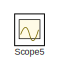
[diagram: root canvas - part 1/3, top left region]
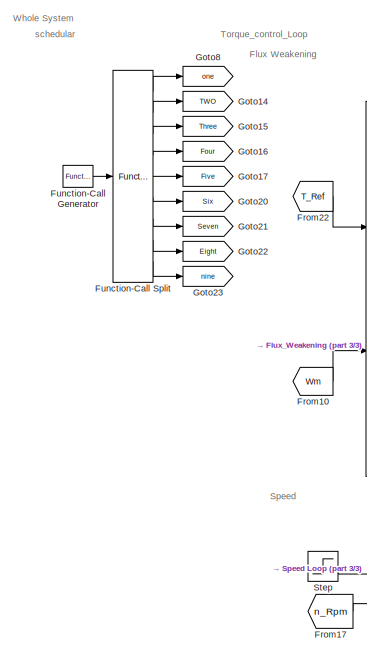
[diagram: root canvas - part 2/3, central region]
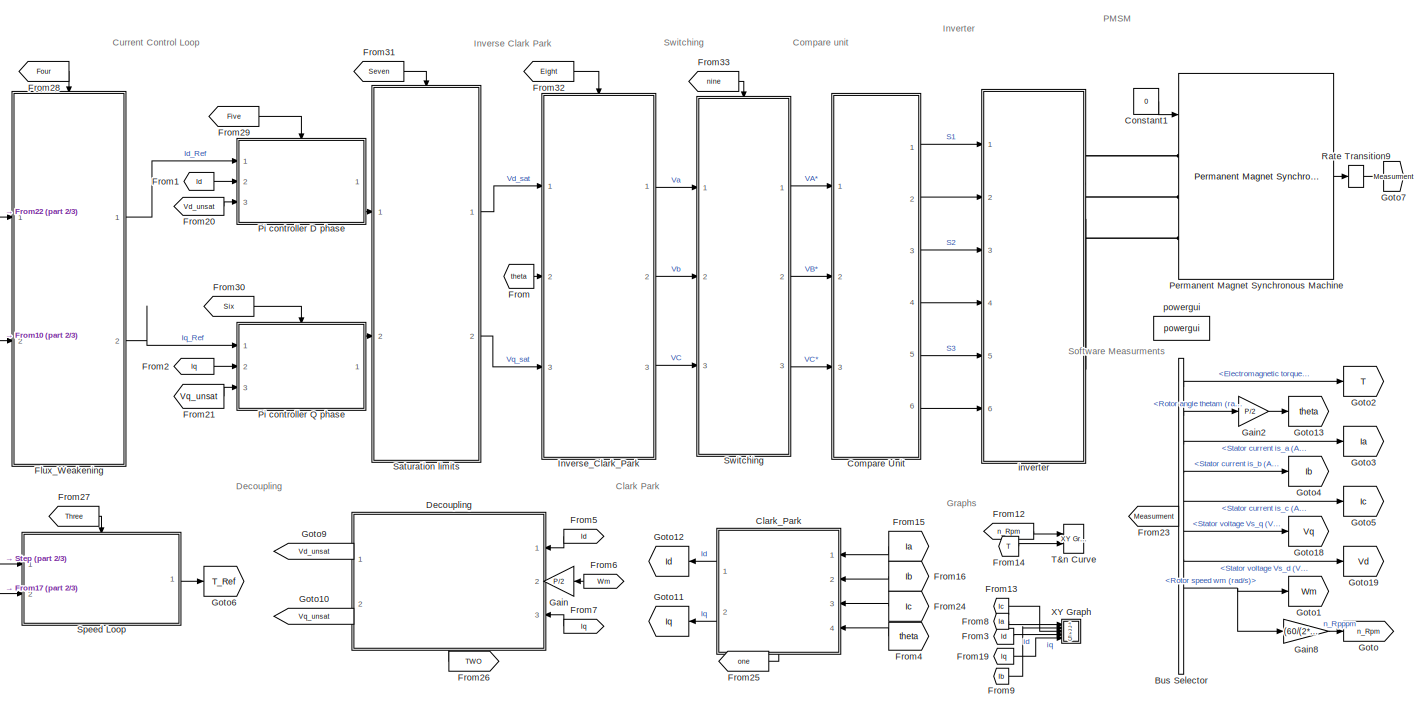
[diagram: root canvas - part 3/3, bottom right region]
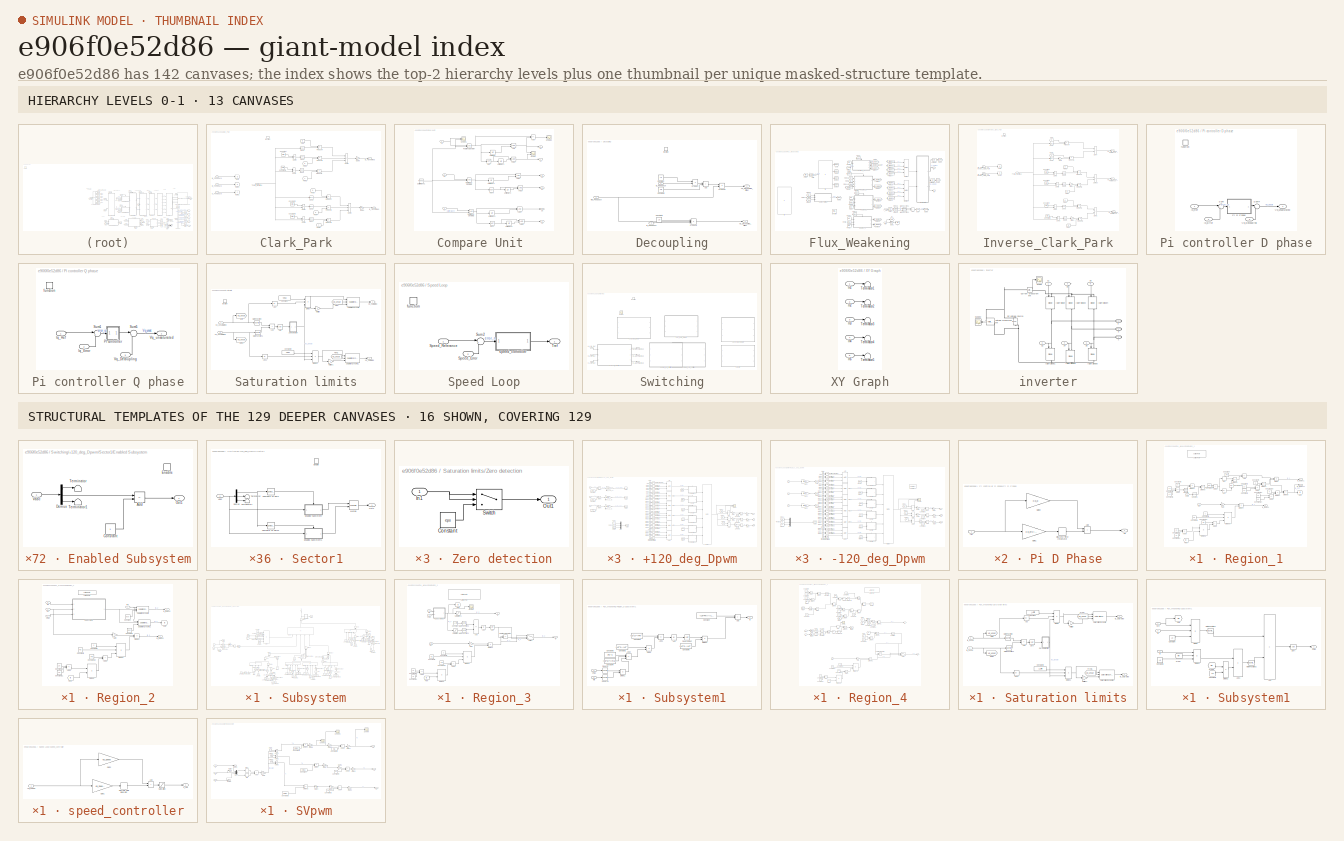
[diagram: thumbnail index - top-2 hierarchy levels (13 canvases) + 16 structural-template representatives of the remaining 129 canvases]
MODEL slx_e906f0e52d86
KIND model
CONFIG AbsTol = auto
CONFIG EnableMultiTasking = off
CONFIG FixedStep = 0.01
CONFIG InitFcn = %% Motor Parameters\nRs=6.9*10^-3;\nLd=220*10^-6;\nLq=265.4*10^-6;\nPm=87.78*10^-3;\nP=4;\nb=0.0019;\nJ=0.13; \nf=50;\nP_Rated=100000;\nN_Rated=6320;\nN_max=30000;\nTfl=P_Rated/(N_Rated*(2*pi/60));\nTl=0;\n\n%% hardware impl\nVdc=340;\nclocking=100;\nfs=10000;\nTs=1/fs;\nIrated=500;\nImax=500;\nId_MAX=-(Pm/Ld);\nI_Limit=Irated;\nI_fw=I_Limit;\nVmax=Vdc/sqrt(3);\nupdate=2;\n\n%% Inverter \nVdc=340;\ndeadtime=1e-6;\n\n\n\n%% Tuning ...<+911ch>
CONFIG MaxStep = 1e-6
CONFIG MinStep = auto
CONFIG PreLoadFcn = %% Motor Parameters\nRs=6.9*10^-3;\nLd=220*10^-6;\nLq=265.4*10^-6;\nPm=87.78*10^-3;\nP=4;\nb=0.0019;\nJ=0.13; \nf=50;\nP_Rated=100000;\nN_Rated=6320;\nN_max=30000;\nTfl=P_Rated/(N_Rated*(2*pi/60));\nTl=0;\n\n%% hardware impl\nVdc=340;\nclocking=100;\nfs=10000;\nTs=1/fs;\nIrated=500;\nImax=500;\nId_MAX=-(Pm/Ld);\nI_Limit=Irated;\nI_fw=I_Limit;\nVmax=Vdc/sqrt(3);\nupdate=2;\n\n\n%% Inverter \nVdc=340;\ndeadtime=1e-6;\n\n\n\n%% Tuning...<+912ch>
CONFIG RelTol = 1e-3
CONFIG SampleTimeConstraint = Unconstrained
CONFIG Solver = VariableStepAuto
CONFIG SolverName = VariableStepAuto
CONFIG StartTime = 0.0
CONFIG StopTime = 1
BLOCK [BusSelector] Bus Selector
  OutputSignals = Electromagnetic torque Te (N*m),Rotor angle thetam (rad),Stator current is_a (A),Stator current is_b (A),Stator current is_c (A),Stator voltage Vs_q (V),Stator voltage Vs_d (V),Rotor speed wm (rad/s),Stator current is_q (A),Stator current is_d (A)
  Ports = [1, 10]
BLOCK [SubSystem] Clark_Park
  Ports = [4, 2, 0, 1]
  RTWSystemCode = Reusable function
  TreatAsAtomicUnit = on
BLOCK [Constant] Clark_Park/Constant
  Value = (2*pi)/3
BLOCK [Constant] Clark_Park/Constant1
  Value = (4*pi)/3
BLOCK [Constant] Clark_Park/Constant2
  Value = (2*pi)/3
BLOCK [Constant] Clark_Park/Constant3
  Value = (4*pi)/3
BLOCK [Trigonometry] Clark_Park/Cos2
  Operator = cos
  Ports = [1, 1]
BLOCK [Trigonometry] Clark_Park/Cos3
  Operator = cos
  Ports = [1, 1]
BLOCK [Trigonometry] Clark_Park/Cos4
  Operator = cos
  Ports = [1, 1]
BLOCK [Trigonometry] Clark_Park/Cos5
  Ports = [1, 1]
BLOCK [Trigonometry] Clark_Park/Cos6
  Ports = [1, 1]
BLOCK [Trigonometry] Clark_Park/Cos7
  Ports = [1, 1]
BLOCK [From] Clark_Park/From
  GotoTag = a
BLOCK [From] Clark_Park/From1
  GotoTag = b
BLOCK [From] Clark_Park/From2
  GotoTag = c
BLOCK [From] Clark_Park/From3
  GotoTag = a
BLOCK [From] Clark_Park/From4
  GotoTag = b
BLOCK [From] Clark_Park/From5
  GotoTag = c
BLOCK [Gain] Clark_Park/Gain8
  Gain = 2/3
BLOCK [Gain] Clark_Park/Gain9
  Gain = -2/3
BLOCK [Goto] Clark_Park/Goto
  GotoTag = a
BLOCK [Goto] Clark_Park/Goto1
  GotoTag = b
BLOCK [Goto] Clark_Park/Goto2
  GotoTag = c
BLOCK [Inport] Clark_Park/Ia_Feedback
BLOCK [Inport] Clark_Park/Ib_Feedback
  Port = 2
BLOCK [Inport] Clark_Park/Ic_Feedback
  Port = 3
BLOCK [Outport] Clark_Park/Id_Transformed
BLOCK [Outport] Clark_Park/Iq_Transformed
  Port = 2
BLOCK [Product] Clark_Park/Product4
  Ports = [2, 1]
BLOCK [Product] Clark_Park/Product5
  Ports = [2, 1]
BLOCK [Product] Clark_Park/Product6
  Ports = [2, 1]
BLOCK [Product] Clark_Park/Product7
  Ports = [2, 1]
BLOCK [Product] Clark_Park/Product8
  Ports = [2, 1]
BLOCK [Product] Clark_Park/Product9
  Ports = [2, 1]
BLOCK [Sum] Clark_Park/Sum4
  IconShape = rectangular
  Inputs = -+
  Ports = [2, 1]
BLOCK [Sum] Clark_Park/Sum5
  IconShape = rectangular
  Inputs = -+
  Ports = [2, 1]
BLOCK [Sum] Clark_Park/Sum6
  IconShape = rectangular
  Inputs = +++
  Ports = [3, 1]
BLOCK [Sum] Clark_Park/Sum7
  IconShape = rectangular
  Inputs = -+
  Ports = [2, 1]
BLOCK [Sum] Clark_Park/Sum8
  IconShape = rectangular
  Inputs = -+
  Ports = [2, 1]
BLOCK [Sum] Clark_Park/Sum9
  IconShape = rectangular
  Inputs = +++
  Ports = [3, 1]
BLOCK [Inport] Clark_Park/Theta_Electrical
  Port = 4
BLOCK [TriggerPort] Clark_Park/function
  Ports = []
  StatesWhenEnabling = held
  TriggerType = function-call
  VariantControl = (inherit)
BLOCK [SubSystem] Compare Unit 
  Ports = [3, 6]
BLOCK [Logic] Compare Unit /AND
  AllPortsSameDT = off
  IconShape = distinctive
  OutDataTypeStr = boolean
  Ports = [2, 1]
BLOCK [Logic] Compare Unit /AND1
  AllPortsSameDT = off
  IconShape = distinctive
  OutDataTypeStr = boolean
  Ports = [2, 1]
BLOCK [Logic] Compare Unit /AND2
  AllPortsSameDT = off
  IconShape = distinctive
  OutDataTypeStr = boolean
  Ports = [2, 1]
BLOCK [Logic] Compare Unit /AND3
  AllPortsSameDT = off
  IconShape = distinctive
  OutDataTypeStr = boolean
  Ports = [2, 1]
BLOCK [Logic] Compare Unit /AND4
  AllPortsSameDT = off
  IconShape = distinctive
  OutDataTypeStr = boolean
  Ports = [2, 1]
BLOCK [Logic] Compare Unit /AND5
  AllPortsSameDT = off
  IconShape = distinctive
  OutDataTypeStr = boolean
  Ports = [2, 1]
BLOCK [Sum] Compare Unit /Add
  IconShape = rectangular
  Inputs = +-
  Ports = [2, 1]
BLOCK [Reference] Compare Unit /Carrier Wave1  REF=simulink/Sources/Repeating
Sequence
  Ports = [0, 1]
  SourceBlock = simulink/Sources/Repeating\nSequence
  SourceType = Repeating table
BLOCK [Logic] Compare Unit /NOT
  AllPortsSameDT = off
  IconShape = distinctive
  Operator = NOT
  OutDataTypeStr = boolean
  Ports = [1, 1]
BLOCK [Logic] Compare Unit /NOT1
  AllPortsSameDT = off
  IconShape = distinctive
  Operator = NOT
  OutDataTypeStr = boolean
  Ports = [1, 1]
BLOCK [Logic] Compare Unit /NOT3
  AllPortsSameDT = off
  IconShape = distinctive
  Operator = NOT
  OutDataTypeStr = boolean
  Ports = [1, 1]
BLOCK [RelationalOperator] Compare Unit /Relational Operator
  InputSameDT = off
  OutDataTypeStr = boolean
  Ports = [2, 1]
  RndMeth = Ceiling
BLOCK [RelationalOperator] Compare Unit /Relational Operator1
  InputSameDT = off
  OutDataTypeStr = boolean
  Ports = [2, 1]
  RndMeth = Ceiling
BLOCK [RelationalOperator] Compare Unit /Relational Operator2
  InputSameDT = off
  OutDataTypeStr = boolean
  Ports = [2, 1]
  RndMeth = Ceiling
BLOCK [Outport] Compare Unit /S1
  VectorParamsAs1DForOutWhenUnconnected = off
BLOCK [Outport] Compare Unit /S2
  Port = 2
  VectorParamsAs1DForOutWhenUnconnected = off
BLOCK [Outport] Compare Unit /S3
  Port = 3
  VectorParamsAs1DForOutWhenUnconnected = off
BLOCK [Outport] Compare Unit /S4
  Port = 4
  VectorParamsAs1DForOutWhenUnconnected = off
BLOCK [Outport] Compare Unit /S5
  Port = 5
  VectorParamsAs1DForOutWhenUnconnected = off
BLOCK [Outport] Compare Unit /S6
  Port = 6
  VectorParamsAs1DForOutWhenUnconnected = off
BLOCK [Scope] Compare Unit /Scope
  Floating = off
  NumInputPorts = 2
  Ports = [2]
  ScopeSpecificationString = Simulink.scopes.TimeScopeBlockCfg('CurrentConfiguration', extmgr.ConfigurationSet(extmgr.Configuration('Core','General UI',true),extmgr.Configuration('Core','Source UI',true),extmgr.Configuration('Sources','WiredSimulink',true,'DataLoggingVariableName','ScopeData2'),extmgr.Configuration('Visuals','Time Domain',true,'SerializedDisplays',{struct('MinYLimReal','-0.125','MaxYLimReal','1.125','YLabelRe...<+1517ch>
BLOCK [Scope] Compare Unit /Scope1
  Floating = off
  NumInputPorts = 2
  Ports = [2]
  ScopeSpecificationString = Simulink.scopes.TimeScopeBlockCfg('CurrentConfiguration', extmgr.ConfigurationSet(extmgr.Configuration('Core','General UI',true),extmgr.Configuration('Core','Source UI',true),extmgr.Configuration('Sources','WiredSimulink',true,'DataLoggingVariableName','ScopeData1'),extmgr.Configuration('Visuals','Time Domain',true,'SerializedDisplays',{struct('MinYLimReal','-12.5','MaxYLimReal','112.5','YLabelRea...<+2360ch>
BLOCK [Scope] Compare Unit /Scope2
  Floating = off
  NumInputPorts = 1
  Ports = [1]
  ScopeSpecificationString = Simulink.scopes.TimeScopeBlockCfg('CurrentConfiguration', extmgr.ConfigurationSet(extmgr.Configuration('Core','General UI',true),extmgr.Configuration('Core','Source UI',true),extmgr.Configuration('Sources','WiredSimulink',true,'DataLoggingVariableName','ScopeData1'),extmgr.Configuration('Visuals','Time Domain',true,'SerializedDisplays',{struct('MinYLimReal','-0.125','MaxYLimReal','1.125','YLabelRe...<+1483ch>
BLOCK [Inport] Compare Unit /Ta
BLOCK [Inport] Compare Unit /Tb
  Port = 2
BLOCK [Inport] Compare Unit /Tc
  Port = 3
BLOCK [UnitDelay] Compare Unit /Unit Delay
  HasFrameUpgradeWarning = on
  SampleTime = deadtime
BLOCK [UnitDelay] Compare Unit /Unit Delay1
  HasFrameUpgradeWarning = on
  SampleTime = deadtime
BLOCK [UnitDelay] Compare Unit /Unit Delay2
  HasFrameUpgradeWarning = on
  SampleTime = deadtime
BLOCK [UnitDelay] Compare Unit /Unit Delay3
  HasFrameUpgradeWarning = on
  SampleTime = deadtime
BLOCK [UnitDelay] Compare Unit /Unit Delay4
  HasFrameUpgradeWarning = on
  SampleTime = deadtime
BLOCK [UnitDelay] Compare Unit /Unit Delay5
  HasFrameUpgradeWarning = on
  SampleTime = deadtime
BLOCK [Constant] Constant1
  Value = 0
BLOCK [SubSystem] Decoupling
  Ports = [3, 2, 0, 1]
  RTWSystemCode = Reusable function
  TreatAsAtomicUnit = on
BLOCK [Sum] Decoupling/Add
  IconShape = rectangular
  Ports = [2, 1]
BLOCK [Constant] Decoupling/Constant
  Value = Ld
BLOCK [Constant] Decoupling/Constant1
  Value = Lq
BLOCK [Constant] Decoupling/Constant2
  Value = Pm
BLOCK [Inport] Decoupling/Id_Feedback
BLOCK [Inport] Decoupling/Iq_Feedback
  Port = 3
BLOCK [Product] Decoupling/Product
  Ports = [2, 1]
BLOCK [Product] Decoupling/Product1
  Ports = [2, 1]
BLOCK [Product] Decoupling/Product2
  Inputs = 3
  Ports = [3, 1]
BLOCK [Outport] Decoupling/Vd_Decoupling_Offset
BLOCK [Outport] Decoupling/Vq_Decoupling_Offset
  Port = 2
BLOCK [Inport] Decoupling/We_Feedback
  Port = 2
BLOCK [TriggerPort] Decoupling/function
  Ports = []
  StatesWhenEnabling = held
  TriggerType = function-call
  VariantControl = (inherit)
BLOCK [SubSystem] Flux_Weakening
  Ports = [2, 2, 0, 1]
  RTWSystemCode = Reusable function
BLOCK [Sum] Flux_Weakening/Add
  IconShape = rectangular
  Ports = [2, 1]
BLOCK [From] Flux_Weakening/From
  GotoTag = We
BLOCK [From] Flux_Weakening/From1
  GotoTag = I_norm
BLOCK [From] Flux_Weakening/From10
  GotoTag = We
BLOCK [From] Flux_Weakening/From11
  GotoTag = Id_feed
BLOCK [From] Flux_Weakening/From12
  GotoTag = Iq_feed
BLOCK [From] Flux_Weakening/From13
  GotoTag = Vmax
BLOCK [From] Flux_Weakening/From14
  GotoTag = Vmax
BLOCK [From] Flux_Weakening/From15
  GotoTag = We
BLOCK [From] Flux_Weakening/From16
  GotoTag = Tref
BLOCK [From] Flux_Weakening/From17
  GotoTag = Tref
BLOCK [From] Flux_Weakening/From18
  GotoTag = Iq_region1
BLOCK [From] Flux_Weakening/From19
  GotoTag = Id_region2
BLOCK [From] Flux_Weakening/From2
  GotoTag = Tref
BLOCK [From] Flux_Weakening/From20
  GotoTag = Iq_region2
BLOCK [From] Flux_Weakening/From21
  GotoTag = region3
BLOCK [From] Flux_Weakening/From22
  GotoTag = Id_region3
BLOCK [From] Flux_Weakening/From23
  GotoTag = Iq_region3
BLOCK [From] Flux_Weakening/From24
  GotoTag = Id_region4
BLOCK [From] Flux_Weakening/From25
  GotoTag = Iq_region4
BLOCK [From] Flux_Weakening/From26
  GotoTag = region4
BLOCK [From] Flux_Weakening/From27
  GotoTag = Id_region11
BLOCK [From] Flux_Weakening/From28
  GotoTag = Id_feed
BLOCK [From] Flux_Weakening/From29
  GotoTag = Iq_feed
BLOCK [From] Flux_Weakening/From3
  GotoTag = region1
BLOCK [From] Flux_Weakening/From4
  GotoTag = Id_region1
BLOCK [From] Flux_Weakening/From5
  GotoTag = We
BLOCK [From] Flux_Weakening/From6
  GotoTag = Vmax
BLOCK [From] Flux_Weakening/From7
  GotoTag = Tref
BLOCK [From] Flux_Weakening/From8
  GotoTag = region2
BLOCK [From] Flux_Weakening/From9
  GotoTag = Wm
BLOCK [Gain] Flux_Weakening/Gain
  Gain = 60/(2*pi)
BLOCK [Gain] Flux_Weakening/Gain1
  Gain = P/2
BLOCK [Goto] Flux_Weakening/Goto
  GotoTag = region1
BLOCK [Goto] Flux_Weakening/Goto1
  GotoTag = Tref
BLOCK [Goto] Flux_Weakening/Goto10
  GotoTag = Iq_region2
BLOCK [Goto] Flux_Weakening/Goto11
  GotoTag = region3
BLOCK [Goto] Flux_Weakening/Goto12
  GotoTag = Iq_region3
BLOCK [Goto] Flux_Weakening/Goto13
  GotoTag = Id_region3
BLOCK [Goto] Flux_Weakening/Goto14
  GotoTag = region4
BLOCK [Goto] Flux_Weakening/Goto15
  GotoTag = Iq_region4
BLOCK [Goto] Flux_Weakening/Goto16
  GotoTag = Id_region4
BLOCK [Goto] Flux_Weakening/Goto17
  GotoTag = Id_region11
BLOCK [Goto] Flux_Weakening/Goto2
  GotoTag = Vmax
BLOCK [Goto] Flux_Weakening/Goto3
  GotoTag = Id_feed
BLOCK [Goto] Flux_Weakening/Goto4
  GotoTag = Iq_feed
BLOCK [Goto] Flux_Weakening/Goto5
  GotoTag = I_norm
BLOCK [Goto] Flux_Weakening/Goto6
  GotoTag = Id_region1
BLOCK [Goto] Flux_Weakening/Goto7
  GotoTag = Iq_region1
BLOCK [Goto] Flux_Weakening/Goto8
  GotoTag = region2
BLOCK [Goto] Flux_Weakening/Goto9
  GotoTag = Id_region2
BLOCK [Outport] Flux_Weakening/Id
BLOCK [If] Flux_Weakening/If1
  Commented = on
  ElseIfExpressions = (u1>N_Rated)&(u2<(Imax)),(u1>N_Rated)&u2>=480,u3>=Id_MAX&(u1>N_Rated)
  IfExpression = (u1 <= N_Rated)
  NumInputs = 3
  Ports = [3, 4]
  ShowElse = off
BLOCK [If] Flux_Weakening/If2
  ElseIfExpressions = (u1>N_Rated)&(u1<8750),(u1>8750)&(u1<15000)
  IfExpression = (u1 <= N_Rated)
  Ports = [1, 4]
BLOCK [Outport] Flux_Weakening/Iq
  Port = 2
BLOCK [Math] Flux_Weakening/Math Function1
  Operator = magnitude^2
  OutputSignalType = real
  Ports = [1, 1]
BLOCK [Math] Flux_Weakening/Math Function2
  Operator = magnitude^2
  OutputSignalType = real
  Ports = [1, 1]
BLOCK [Merge] Flux_Weakening/Merge
  Inputs = 4
  Ports = [4, 1]
BLOCK [Merge] Flux_Weakening/Merge1
  Inputs = 4
  Ports = [4, 1]
BLOCK [SubSystem] Flux_Weakening/Region_1
  Ports = [2, 3, 0, 0, 0, 0, 0, 1]
  TreatAsAtomicUnit = on
BLOCK [Abs] Flux_Weakening/Region_1/Abs
  SaturateOnIntegerOverflow = off
BLOCK [ActionPort] Flux_Weakening/Region_1/Action Port
BLOCK [Sum] Flux_Weakening/Region_1/Add
  IconShape = rectangular
  Inputs = +-
  Ports = [2, 1]
BLOCK [Sum] Flux_Weakening/Region_1/Add1
  IconShape = rectangular
  Ports = [2, 1]
BLOCK [Sum] Flux_Weakening/Region_1/Add2
  IconShape = rectangular
  Inputs = +-
  Ports = [2, 1]
BLOCK [Sum] Flux_Weakening/Region_1/Add3
  IconShape = rectangular
  Ports = [2, 1]
BLOCK [Sum] Flux_Weakening/Region_1/Add4
  IconShape = rectangular
  Inputs = +-
  Ports = [2, 1]
BLOCK [Sum] Flux_Weakening/Region_1/Add5
  IconShape = rectangular
  Inputs = +-
  Ports = [2, 1]
BLOCK [Sum] Flux_Weakening/Region_1/Add6
  IconShape = rectangular
  Inputs = +-
  Ports = [2, 1]
BLOCK [Constant] Flux_Weakening/Region_1/Constant
  Value = Pm
BLOCK [Constant] Flux_Weakening/Region_1/Constant1
  Value = Ld
BLOCK [Constant] Flux_Weakening/Region_1/Constant10
  Value = Pm
BLOCK [Constant] Flux_Weakening/Region_1/Constant11
  Value = Lq
BLOCK [Constant] Flux_Weakening/Region_1/Constant12
  Value = Ld
BLOCK [Constant] Flux_Weakening/Region_1/Constant13
  Value = Ld
BLOCK [Constant] Flux_Weakening/Region_1/Constant14
  Value = Lq
BLOCK [Constant] Flux_Weakening/Region_1/Constant15
  Value = -4
BLOCK [Constant] Flux_Weakening/Region_1/Constant2
  Value = Lq
BLOCK [Constant] Flux_Weakening/Region_1/Constant3
  Value = 8
BLOCK [Constant] Flux_Weakening/Region_1/Constant4
  Value = -4
BLOCK [Constant] Flux_Weakening/Region_1/Constant5
  Value = Lq
BLOCK [Constant] Flux_Weakening/Region_1/Constant6
  Value = Ld
BLOCK [Constant] Flux_Weakening/Region_1/Constant7
  Value = Pm^2
BLOCK [Constant] Flux_Weakening/Region_1/Constant8
  Value = 3
BLOCK [Constant] Flux_Weakening/Region_1/Constant9
  Value = P/2
BLOCK [Product] Flux_Weakening/Region_1/Divide
  Inputs = */
  Ports = [2, 1]
BLOCK [Product] Flux_Weakening/Region_1/Divide1
  Inputs = **
  Ports = [2, 1]
BLOCK [Product] Flux_Weakening/Region_1/Divide2
  Inputs = **
  Ports = [2, 1]
BLOCK [Product] Flux_Weakening/Region_1/Divide3
  Inputs = **
  Ports = [2, 1]
BLOCK [Product] Flux_Weakening/Region_1/Divide4
  Inputs = */
  Ports = [2, 1]
BLOCK [Product] Flux_Weakening/Region_1/Divide5
  Inputs = ***
  Ports = [3, 1]
BLOCK [Product] Flux_Weakening/Region_1/Divide6
  Inputs = **
  Ports = [2, 1]
BLOCK [Product] Flux_Weakening/Region_1/Divide7
  Inputs = **
  Ports = [2, 1]
BLOCK [Product] Flux_Weakening/Region_1/Divide8
  Inputs = */
  Ports = [2, 1]
BLOCK [Product] Flux_Weakening/Region_1/Divide9
  Inputs = **
  Ports = [2, 1]
BLOCK [From] Flux_Weakening/Region_1/From
  GotoTag = Id
BLOCK [Gain] Flux_Weakening/Region_1/Gain
  Gain = 2
BLOCK [Goto] Flux_Weakening/Region_1/Goto
  GotoTag = Id
BLOCK [Outport] Flux_Weakening/Region_1/Id_region1
  InitialOutput = [0]
BLOCK [Outport] Flux_Weakening/Region_1/Id_region11
  InitialOutput = [0]
  Port = 3
BLOCK [Inport] Flux_Weakening/Region_1/Inorm
  Port = 2
BLOCK [Outport] Flux_Weakening/Region_1/Iq_region1
  Port = 2
BLOCK [Signum] Flux_Weakening/Region_1/Sign
BLOCK [Math] Flux_Weakening/Region_1/Square
  Operator = square
  Ports = [1, 1]
BLOCK [Sqrt] Flux_Weakening/Region_1/Square Root
BLOCK [Math] Flux_Weakening/Region_1/Square1
  Operator = square
  Ports = [1, 1]
BLOCK [Inport] Flux_Weakening/Region_1/Tref
BLOCK [SubSystem] Flux_Weakening/Region_2
  Ports = [4, 2, 0, 0, 0, 0, 0, 1]
  TreatAsAtomicUnit = on
BLOCK [ActionPort] Flux_Weakening/Region_2/Action Port
BLOCK [Sum] Flux_Weakening/Region_2/Add3
  IconShape = rectangular
  Ports = [2, 1]
BLOCK [Sum] Flux_Weakening/Region_2/Add5
  IconShape = rectangular
  Inputs = +-
  Ports = [2, 1]
BLOCK [Constant] Flux_Weakening/Region_2/Constant
  Value = -500
BLOCK [Constant] Flux_Weakening/Region_2/Constant1
  Value = -500
BLOCK [Constant] Flux_Weakening/Region_2/Constant10
  Value = Pm
BLOCK [Constant] Flux_Weakening/Region_2/Constant11
  Value = Lq
BLOCK [Constant] Flux_Weakening/Region_2/Constant12
  Value = Ld
BLOCK [Constant] Flux_Weakening/Region_2/Constant8
  Value = 3
BLOCK [Constant] Flux_Weakening/Region_2/Constant9
  Value = P/2
BLOCK [Product] Flux_Weakening/Region_2/Divide4
  Inputs = */
  Ports = [2, 1]
BLOCK [Product] Flux_Weakening/Region_2/Divide5
  Inputs = ***
  Ports = [3, 1]
BLOCK [Product] Flux_Weakening/Region_2/Divide6
  Inputs = **
  Ports = [2, 1]
BLOCK [From] Flux_Weakening/Region_2/From
  GotoTag = Id
BLOCK [Gain] Flux_Weakening/Region_2/Gain
  Gain = 2
BLOCK [Goto] Flux_Weakening/Region_2/Goto
  GotoTag = Id
BLOCK [Outport] Flux_Weakening/Region_2/Id_region2
BLOCK [Inport] Flux_Weakening/Region_2/In4
  Port = 4
BLOCK [Outport] Flux_Weakening/Region_2/Iq_region2
  Port = 2
BLOCK [Reference] Flux_Weakening/Region_2/Saturation Dynamic  REF=simulink/Discontinuities/Saturation
Dynamic
  Ports = [3, 1]
  SourceBlock = simulink/Discontinuities/Saturation\nDynamic
  SourceType = Saturation Dynamic
BLOCK [Reference] Flux_Weakening/Region_2/Saturation Dynamic1  REF=simulink/Discontinuities/Saturation
Dynamic
  Ports = [3, 1]
  SourceBlock = simulink/Discontinuities/Saturation\nDynamic
  SourceType = Saturation Dynamic
BLOCK [SubSystem] Flux_Weakening/Region_2/Subsystem
  Ports = [3, 1]
BLOCK [Sum] Flux_Weakening/Region_2/Subsystem/Add
  IconShape = rectangular
  Inputs = -+
  Ports = [2, 1]
BLOCK [Sum] Flux_Weakening/Region_2/Subsystem/Add1
  IconShape = rectangular
  Inputs = +-
  Ports = [2, 1]
BLOCK [Sum] Flux_Weakening/Region_2/Subsystem/Add10
  IconShape = rectangular
  Inputs = +-
  Ports = [2, 1]
BLOCK [Sum] Flux_Weakening/Region_2/Subsystem/Add11
  IconShape = rectangular
  Inputs = +----
  Ports = [5, 1]
BLOCK [Sum] Flux_Weakening/Region_2/Subsystem/Add2
  IconShape = rectangular
  Inputs = +-
  Ports = [2, 1]
BLOCK [Sum] Flux_Weakening/Region_2/Subsystem/Add3
  IconShape = rectangular
  Inputs = +-
  Ports = [2, 1]
BLOCK [Sum] Flux_Weakening/Region_2/Subsystem/Add4
  IconShape = rectangular
  Ports = [2, 1]
BLOCK [Sum] Flux_Weakening/Region_2/Subsystem/Add5
  IconShape = rectangular
  Inputs = +-
  Ports = [2, 1]
BLOCK [Sum] Flux_Weakening/Region_2/Subsystem/Add6
  IconShape = rectangular
  Ports = [2, 1]
BLOCK [Sum] Flux_Weakening/Region_2/Subsystem/Add7
  IconShape = rectangular
  Inputs = +-
  Ports = [2, 1]
BLOCK [Sum] Flux_Weakening/Region_2/Subsystem/Add8
  IconShape = rectangular
  Inputs = +-
  Ports = [2, 1]
BLOCK [Sum] Flux_Weakening/Region_2/Subsystem/Add9
  IconShape = rectangular
  Inputs = +-
  Ports = [2, 1]
BLOCK [Constant] Flux_Weakening/Region_2/Subsystem/Constant
  Value = 4
BLOCK [Constant] Flux_Weakening/Region_2/Subsystem/Constant1
  Value = Lq
BLOCK [Constant] Flux_Weakening/Region_2/Subsystem/Constant10
  Value = Lq
BLOCK [Constant] Flux_Weakening/Region_2/Subsystem/Constant11
  Value = Pm
BLOCK [Constant] Flux_Weakening/Region_2/Subsystem/Constant13
  Value = Lq
BLOCK [Constant] Flux_Weakening/Region_2/Subsystem/Constant14
  Value = Ld
BLOCK [Constant] Flux_Weakening/Region_2/Subsystem/Constant15
  Value = Pm
BLOCK [Constant] Flux_Weakening/Region_2/Subsystem/Constant16
  Value = Pm
BLOCK [Constant] Flux_Weakening/Region_2/Subsystem/Constant17
  Value = Ld
BLOCK [Constant] Flux_Weakening/Region_2/Subsystem/Constant18
  Value = -2
BLOCK [Constant] Flux_Weakening/Region_2/Subsystem/Constant19
  Value = Pm
BLOCK [Constant] Flux_Weakening/Region_2/Subsystem/Constant2
  Value = 9
BLOCK [Constant] Flux_Weakening/Region_2/Subsystem/Constant20
  Value = Lq
BLOCK [Constant] Flux_Weakening/Region_2/Subsystem/Constant21
  Value = Ld
BLOCK [Constant] Flux_Weakening/Region_2/Subsystem/Constant22
  Value = Ld
BLOCK [Constant] Flux_Weakening/Region_2/Subsystem/Constant23
  Value = 2
BLOCK [Constant] Flux_Weakening/Region_2/Subsystem/Constant24
  Value = Pm
BLOCK [Constant] Flux_Weakening/Region_2/Subsystem/Constant25
  Value = Lq
BLOCK [Constant] Flux_Weakening/Region_2/Subsystem/Constant26
  Value = Ld
BLOCK [Constant] Flux_Weakening/Region_2/Subsystem/Constant27
  Value = Ld
BLOCK [Constant] Flux_Weakening/Region_2/Subsystem/Constant28
  Value = -1
BLOCK [Constant] Flux_Weakening/Region_2/Subsystem/Constant3
  Value = (P/2)^2
BLOCK [Constant] Flux_Weakening/Region_2/Subsystem/Constant30
  Value = Lq
BLOCK [Constant] Flux_Weakening/Region_2/Subsystem/Constant31
  Value = Ld
BLOCK [Constant] Flux_Weakening/Region_2/Subsystem/Constant4
  Value = Ld
BLOCK [Constant] Flux_Weakening/Region_2/Subsystem/Constant5
  Value = Pm
BLOCK [Constant] Flux_Weakening/Region_2/Subsystem/Constant6
  Value = Ld
BLOCK [Constant] Flux_Weakening/Region_2/Subsystem/Constant7
  Value = -2
BLOCK [Constant] Flux_Weakening/Region_2/Subsystem/Constant8
  Value = Pm
BLOCK [Constant] Flux_Weakening/Region_2/Subsystem/Constant9
  Value = Ld
BLOCK [Product] Flux_Weakening/Region_2/Subsystem/Divide
  Inputs = ****//
  Ports = [6, 1]
BLOCK [Product] Flux_Weakening/Region_2/Subsystem/Divide1
  Inputs = */
  Ports = [2, 1]
  RndMeth = Zero
  SaturateOnIntegerOverflow = on
BLOCK [Product] Flux_Weakening/Region_2/Subsystem/Divide10
  Inputs = *****
  Ports = [5, 1]
  RndMeth = Zero
  SaturateOnIntegerOverflow = on
BLOCK [Product] Flux_Weakening/Region_2/Subsystem/Divide11
  Inputs = *****
  Ports = [5, 1]
  RndMeth = Zero
  SaturateOnIntegerOverflow = on
BLOCK [Product] Flux_Weakening/Region_2/Subsystem/Divide12
  Inputs = ***
  Ports = [3, 1]
  RndMeth = Zero
  SaturateOnIntegerOverflow = on
BLOCK [Product] Flux_Weakening/Region_2/Subsystem/Divide13
  Inputs = ****
  Ports = [4, 1]
  RndMeth = Zero
  SaturateOnIntegerOverflow = on
BLOCK [Product] Flux_Weakening/Region_2/Subsystem/Divide14
  Inputs = ***
  Ports = [3, 1]
  RndMeth = Zero
  SaturateOnIntegerOverflow = on
BLOCK [Product] Flux_Weakening/Region_2/Subsystem/Divide2
  Inputs = ***
  Ports = [3, 1]
  RndMeth = Zero
  SaturateOnIntegerOverflow = on
BLOCK [Product] Flux_Weakening/Region_2/Subsystem/Divide3
  Inputs = ****
  Ports = [4, 1]
  RndMeth = Zero
  SaturateOnIntegerOverflow = on
BLOCK [Product] Flux_Weakening/Region_2/Subsystem/Divide4
  Inputs = **
  Ports = [2, 1]
BLOCK [Product] Flux_Weakening/Region_2/Subsystem/Divide5
  Inputs = **
  Ports = [2, 1]
  RndMeth = Zero
  SaturateOnIntegerOverflow = on
BLOCK [Product] Flux_Weakening/Region_2/Subsystem/Divide6
  Inputs = **
  Ports = [2, 1]
  RndMeth = Zero
  SaturateOnIntegerOverflow = on
BLOCK [Product] Flux_Weakening/Region_2/Subsystem/Divide7
  Inputs = **
  Ports = [2, 1]
  RndMeth = Zero
  SaturateOnIntegerOverflow = on
BLOCK [Product] Flux_Weakening/Region_2/Subsystem/Divide8
  Inputs = ***
  Ports = [3, 1]
  RndMeth = Zero
  SaturateOnIntegerOverflow = on
BLOCK [Product] Flux_Weakening/Region_2/Subsystem/Divide9
  Inputs = **
  Ports = [2, 1]
  RndMeth = Zero
  SaturateOnIntegerOverflow = on
BLOCK [From] Flux_Weakening/Region_2/Subsystem/From
  GotoTag = We
BLOCK [From] Flux_Weakening/Region_2/Subsystem/From1
  GotoTag = We
BLOCK [From] Flux_Weakening/Region_2/Subsystem/From10
  GotoTag = We
BLOCK [From] Flux_Weakening/Region_2/Subsystem/From11
  GotoTag = Id
BLOCK [From] Flux_Weakening/Region_2/Subsystem/From12
  GotoTag = Id
BLOCK [From] Flux_Weakening/Region_2/Subsystem/From2
  GotoTag = We
BLOCK [From] Flux_Weakening/Region_2/Subsystem/From3
  GotoTag = Vmax
BLOCK [From] Flux_Weakening/Region_2/Subsystem/From4
  GotoTag = We
BLOCK [From] Flux_Weakening/Region_2/Subsystem/From5
  GotoTag = Vmax
BLOCK [From] Flux_Weakening/Region_2/Subsystem/From6
  GotoTag = We
BLOCK [From] Flux_Weakening/Region_2/Subsystem/From7
  GotoTag = Id
BLOCK [From] Flux_Weakening/Region_2/Subsystem/From8
  GotoTag = We
BLOCK [From] Flux_Weakening/Region_2/Subsystem/From9
  GotoTag = We
BLOCK [Gain] Flux_Weakening/Region_2/Subsystem/Gain
  Gain = Pm^2
BLOCK [Gain] Flux_Weakening/Region_2/Subsystem/Gain1
  Gain = Pm^2
BLOCK [Gain] Flux_Weakening/Region_2/Subsystem/Gain2
  Gain = -1
BLOCK [Gain] Flux_Weakening/Region_2/Subsystem/Gain3
  Gain = 2
BLOCK [Goto] Flux_Weakening/Region_2/Subsystem/Goto
  GotoTag = We
BLOCK [Goto] Flux_Weakening/Region_2/Subsystem/Goto1
  GotoTag = Id
BLOCK [Goto] Flux_Weakening/Region_2/Subsystem/Goto2
  GotoTag = Vmax
BLOCK [Outport] Flux_Weakening/Region_2/Subsystem/Id
BLOCK [Math] Flux_Weakening/Region_2/Subsystem/Math Function1
  Operator = magnitude^2
  OutputSignalType = real
  Ports = [1, 1]
BLOCK [Math] Flux_Weakening/Region_2/Subsystem/Math Function10
  Operator = magnitude^2
  OutputSignalType = real
  Ports = [1, 1]
BLOCK [Math] Flux_Weakening/Region_2/Subsystem/Math Function11
  Operator = magnitude^2
  OutputSignalType = real
  Ports = [1, 1]
BLOCK [Math] Flux_Weakening/Region_2/Subsystem/Math Function12
  Operator = magnitude^2
  OutputSignalType = real
  Ports = [1, 1]
BLOCK [Math] Flux_Weakening/Region_2/Subsystem/Math Function13
  Operator = magnitude^2
  OutputSignalType = real
  Ports = [1, 1]
BLOCK [Math] Flux_Weakening/Region_2/Subsystem/Math Function14
  Operator = magnitude^2
  OutputSignalType = real
  Ports = [1, 1]
BLOCK [Math] Flux_Weakening/Region_2/Subsystem/Math Function15
  Operator = magnitude^2
  OutputSignalType = real
  Ports = [1, 1]
BLOCK [Math] Flux_Weakening/Region_2/Subsystem/Math Function16
  Operator = magnitude^2
  OutputSignalType = real
  Ports = [1, 1]
BLOCK [Math] Flux_Weakening/Region_2/Subsystem/Math Function17
  Operator = magnitude^2
  OutputSignalType = real
  Ports = [1, 1]
BLOCK [Math] Flux_Weakening/Region_2/Subsystem/Math Function18
  Operator = magnitude^2
  OutputSignalType = real
  Ports = [1, 1]
BLOCK [Math] Flux_Weakening/Region_2/Subsystem/Math Function19
  Operator = magnitude^2
  OutputSignalType = real
  Ports = [1, 1]
BLOCK [Math] Flux_Weakening/Region_2/Subsystem/Math Function2
  Operator = magnitude^2
  OutputSignalType = real
  Ports = [1, 1]
BLOCK [Math] Flux_Weakening/Region_2/Subsystem/Math Function20
  Operator = magnitude^2
  OutputSignalType = real
  Ports = [1, 1]
BLOCK [Math] Flux_Weakening/Region_2/Subsystem/Math Function22
  Operator = magnitude^2
  OutputSignalType = real
  Ports = [1, 1]
BLOCK [Math] Flux_Weakening/Region_2/Subsystem/Math Function23
  Operator = magnitude^2
  OutputSignalType = real
  Ports = [1, 1]
BLOCK [Math] Flux_Weakening/Region_2/Subsystem/Math Function24
  Operator = magnitude^2
  OutputSignalType = real
  Ports = [1, 1]
BLOCK [Math] Flux_Weakening/Region_2/Subsystem/Math Function25
  Operator = magnitude^2
  OutputSignalType = real
  Ports = [1, 1]
BLOCK [Math] Flux_Weakening/Region_2/Subsystem/Math Function26
  Operator = magnitude^2
  OutputSignalType = real
  Ports = [1, 1]
BLOCK [Math] Flux_Weakening/Region_2/Subsystem/Math Function27
  Operator = magnitude^2
  OutputSignalType = real
  Ports = [1, 1]
BLOCK [Math] Flux_Weakening/Region_2/Subsystem/Math Function28
  Operator = magnitude^2
  OutputSignalType = real
  Ports = [1, 1]
BLOCK [Math] Flux_Weakening/Region_2/Subsystem/Math Function29
  Operator = magnitude^2
  OutputSignalType = real
  Ports = [1, 1]
BLOCK [Math] Flux_Weakening/Region_2/Subsystem/Math Function3
  Operator = magnitude^2
  OutputSignalType = real
  Ports = [1, 1]
BLOCK [Math] Flux_Weakening/Region_2/Subsystem/Math Function4
  Operator = magnitude^2
  OutputSignalType = real
  Ports = [1, 1]
BLOCK [Math] Flux_Weakening/Region_2/Subsystem/Math Function5
  Operator = magnitude^2
  OutputSignalType = real
  Ports = [1, 1]
BLOCK [Math] Flux_Weakening/Region_2/Subsystem/Math Function6
  Operator = magnitude^2
  OutputSignalType = real
  Ports = [1, 1]
BLOCK [Math] Flux_Weakening/Region_2/Subsystem/Math Function7
  Operator = magnitude^2
  OutputSignalType = real
  Ports = [1, 1]
BLOCK [Math] Flux_Weakening/Region_2/Subsystem/Math Function8
  Operator = magnitude^2
  OutputSignalType = real
  Ports = [1, 1]
BLOCK [Math] Flux_Weakening/Region_2/Subsystem/Math Function9
  Operator = magnitude^2
  OutputSignalType = real
  Ports = [1, 1]
BLOCK [Inport] Flux_Weakening/Region_2/Subsystem/Tref
  Port = 2
BLOCK [Inport] Flux_Weakening/Region_2/Subsystem/Vmax
  Port = 3
BLOCK [SubSystem] Flux_Weakening/Region_2/Subsystem/Zero detection
  Ports = [1, 1]
BLOCK [Constant] Flux_Weakening/Region_2/Subsystem/Zero detection/Constant
  Value = eps
BLOCK [Inport] Flux_Weakening/Region_2/Subsystem/Zero detection/In1
BLOCK [Outport] Flux_Weakening/Region_2/Subsystem/Zero detection/Out1
BLOCK [Switch] Flux_Weakening/Region_2/Subsystem/Zero detection/Switch
  Criteria = u2 > Threshold
  InputSameDT = off
  SaturateOnIntegerOverflow = off
  Threshold = eps
BLOCK [Inport] Flux_Weakening/Region_2/Subsystem/we
BLOCK [Inport] Flux_Weakening/Region_2/Tref
BLOCK [Inport] Flux_Weakening/Region_2/Vmax
  Port = 3
BLOCK [Inport] Flux_Weakening/Region_2/we
  Port = 2
BLOCK [SubSystem] Flux_Weakening/Region_3
  Ports = [3, 2, 0, 0, 0, 0, 0, 1]
  TreatAsAtomicUnit = on
BLOCK [Abs] Flux_Weakening/Region_3/Abs
  SaturateOnIntegerOverflow = off
BLOCK [ActionPort] Flux_Weakening/Region_3/Action Port
BLOCK [Sum] Flux_Weakening/Region_3/Add
  IconShape = rectangular
  Inputs = +-
  Ports = [2, 1]
BLOCK [Sum] Flux_Weakening/Region_3/Add3
  IconShape = rectangular
  Ports = [2, 1]
BLOCK [Sum] Flux_Weakening/Region_3/Add5
  IconShape = rectangular
  Inputs = +-
  Ports = [2, 1]
BLOCK [Constant] Flux_Weakening/Region_3/Constant
  Value = I_Limit
BLOCK [Constant] Flux_Weakening/Region_3/Constant10
  Value = Pm
BLOCK [Constant] Flux_Weakening/Region_3/Constant11
  Value = Lq
BLOCK [Constant] Flux_Weakening/Region_3/Constant12
  Value = Ld
BLOCK [Constant] Flux_Weakening/Region_3/Constant8
  Value = 3
BLOCK [Constant] Flux_Weakening/Region_3/Constant9
  Value = P/2
BLOCK [Product] Flux_Weakening/Region_3/Divide4
  Inputs = */
  Ports = [2, 1]
BLOCK [Product] Flux_Weakening/Region_3/Divide5
  Inputs = ***
  Ports = [3, 1]
BLOCK [Product] Flux_Weakening/Region_3/Divide6
  Inputs = **
  Ports = [2, 1]
BLOCK [From] Flux_Weakening/Region_3/From
  GotoTag = Id
BLOCK [Gain] Flux_Weakening/Region_3/Gain
  Gain = 2
BLOCK [Goto] Flux_Weakening/Region_3/Goto
  GotoTag = Id
BLOCK [Outport] Flux_Weakening/Region_3/Id
BLOCK [Math] Flux_Weakening/Region_3/Math Function1
  Operator = magnitude^2
  OutputSignalType = real
  Ports = [1, 1]
BLOCK [Math] Flux_Weakening/Region_3/Math Function2
  Operator = magnitude^2
  OutputSignalType = real
  Ports = [1, 1]
BLOCK [RelationalOperator] Flux_Weakening/Region_3/Relational Operator
  InputSameDT = off
  Operator = <=
  OutDataTypeStr = boolean
  Ports = [2, 1]
  RndMeth = Simplest
BLOCK [Saturate] Flux_Weakening/Region_3/Saturation
  LowerLimit = -400
  UpperLimit = 400
BLOCK [Saturate] Flux_Weakening/Region_3/Saturation1
  LowerLimit = -400
  UpperLimit = 400
BLOCK [Scope] Flux_Weakening/Region_3/Scope
  Floating = off
  NumInputPorts = 1
  Ports = [1]
  ScopeSpecificationString = Simulink.scopes.TimeScopeBlockCfg('CurrentConfiguration', extmgr.ConfigurationSet(extmgr.Configuration('Core','General UI',true),extmgr.Configuration('Core','Source UI',true),extmgr.Configuration('Sources','WiredSimulink',true,'DataLoggingVariableName','ScopeData1'),extmgr.Configuration('Visuals','Time Domain',true,'SerializedDisplays',{struct('MinYLimReal','-2278.06107','MaxYLimReal','-2104.79195...<+1501ch>
BLOCK [Sqrt] Flux_Weakening/Region_3/Sqrt
  OutputSignalType = real
BLOCK [SubSystem] Flux_Weakening/Region_3/Subsystem1
  Ports = [2, 1]
BLOCK [Abs] Flux_Weakening/Region_3/Subsystem1/Abs
  SaturateOnIntegerOverflow = off
BLOCK [Sum] Flux_Weakening/Region_3/Subsystem1/Add
  IconShape = rectangular
  Ports = [2, 1]
BLOCK [Sum] Flux_Weakening/Region_3/Subsystem1/Add1
  IconShape = rectangular
  Inputs = +-
  Ports = [2, 1]
BLOCK [Sum] Flux_Weakening/Region_3/Subsystem1/Add2
  IconShape = rectangular
  Inputs = ++-
  Ports = [3, 1]
BLOCK [Constant] Flux_Weakening/Region_3/Subsystem1/Constant
  Value = (Ld*Pm)/((Ld^2)-(Lq^2))
BLOCK [Constant] Flux_Weakening/Region_3/Subsystem1/Constant1
  Value = (Ld^2)*(Pm^2)
BLOCK [Constant] Flux_Weakening/Region_3/Subsystem1/Constant2
  Value = (Ld^2)-(Lq^2)
BLOCK [Constant] Flux_Weakening/Region_3/Subsystem1/Constant3
  Value = Pm^2
BLOCK [Constant] Flux_Weakening/Region_3/Subsystem1/Constant4
  Value = (Lq^2)*(Imax^2)
BLOCK [Constant] Flux_Weakening/Region_3/Subsystem1/Constant5
  Value = (Ld^2)-(Lq^2)
BLOCK [Product] Flux_Weakening/Region_3/Subsystem1/Divide
  Inputs = **
  Ports = [2, 1]
BLOCK [Product] Flux_Weakening/Region_3/Subsystem1/Divide1
  Inputs = */
  Ports = [2, 1]
BLOCK [Product] Flux_Weakening/Region_3/Subsystem1/Divide2
  Inputs = */
  Ports = [2, 1]
BLOCK [Outport] Flux_Weakening/Region_3/Subsystem1/Id
BLOCK [Math] Flux_Weakening/Region_3/Subsystem1/Square
  Operator = square
  Ports = [1, 1]
BLOCK [Sqrt] Flux_Weakening/Region_3/Subsystem1/Square Root
BLOCK [Math] Flux_Weakening/Region_3/Subsystem1/Square1
  Operator = square
  Ports = [1, 1]
BLOCK [Inport] Flux_Weakening/Region_3/Subsystem1/Vmax
  Port = 2
BLOCK [Inport] Flux_Weakening/Region_3/Subsystem1/We
BLOCK [Switch] Flux_Weakening/Region_3/Switch
  Criteria = u2 > Threshold
  InputSameDT = off
  SaturateOnIntegerOverflow = off
BLOCK [Inport] Flux_Weakening/Region_3/Tref
  Port = 3
BLOCK [Inport] Flux_Weakening/Region_3/Vmax
  Port = 2
BLOCK [Inport] Flux_Weakening/Region_3/We
BLOCK [Outport] Flux_Weakening/Region_3/iq
  Port = 2
BLOCK [SubSystem] Flux_Weakening/Region_4
  Ports = [3, 2, 0, 0, 0, 0, 0, 1]
  TreatAsAtomicUnit = on
BLOCK [Abs] Flux_Weakening/Region_4/Abs
  SaturateOnIntegerOverflow = off
BLOCK [Abs] Flux_Weakening/Region_4/Abs1
  SaturateOnIntegerOverflow = off
BLOCK [ActionPort] Flux_Weakening/Region_4/Action Port
BLOCK [Sum] Flux_Weakening/Region_4/Add
  IconShape = rectangular
  Ports = [2, 1]
BLOCK [Sum] Flux_Weakening/Region_4/Add1
  IconShape = rectangular
  Inputs = +-
  Ports = [2, 1]
BLOCK [Sum] Flux_Weakening/Region_4/Add2
  IconShape = rectangular
  Inputs = +-
  Ports = [2, 1]
BLOCK [Sum] Flux_Weakening/Region_4/Add3
  IconShape = rectangular
  Inputs = +-
  Ports = [2, 1]
BLOCK [Sum] Flux_Weakening/Region_4/Add4
  IconShape = rectangular
  Inputs = +-
  Ports = [2, 1]
BLOCK [Sum] Flux_Weakening/Region_4/Add5
  IconShape = rectangular
  Inputs = +-
  Ports = [2, 1]
BLOCK [Sum] Flux_Weakening/Region_4/Add6
  IconShape = rectangular
  Ports = [2, 1]
BLOCK [Sum] Flux_Weakening/Region_4/Add7
  IconShape = rectangular
  Inputs = +-
  Ports = [2, 1]
BLOCK [Constant] Flux_Weakening/Region_4/Constant
  Value = Pm^2
BLOCK [Constant] Flux_Weakening/Region_4/Constant1
  Value = 8
BLOCK [Constant] Flux_Weakening/Region_4/Constant10
  Value = Lq
BLOCK [Constant] Flux_Weakening/Region_4/Constant11
  Value = Pm
BLOCK [Constant] Flux_Weakening/Region_4/Constant12
  Value = Ld
BLOCK [Constant] Flux_Weakening/Region_4/Constant13
  Value = Pm
BLOCK [Constant] Flux_Weakening/Region_4/Constant14
  Value = Lq
BLOCK [Constant] Flux_Weakening/Region_4/Constant15
  Value = Ld
BLOCK [Constant] Flux_Weakening/Region_4/Constant16
  Value = 3
BLOCK [Constant] Flux_Weakening/Region_4/Constant17
  Value = P/2
BLOCK [Constant] Flux_Weakening/Region_4/Constant2
  Value = Ld
BLOCK [Constant] Flux_Weakening/Region_4/Constant3
  Value = Lq
BLOCK [Constant] Flux_Weakening/Region_4/Constant4
  Value = Lq
BLOCK [Constant] Flux_Weakening/Region_4/Constant5
  Value = Pm
BLOCK [Constant] Flux_Weakening/Region_4/Constant6
  Value = Ld
BLOCK [Constant] Flux_Weakening/Region_4/Constant7
  Value = Lq
BLOCK [Constant] Flux_Weakening/Region_4/Constant8
  Value = Lq
BLOCK [Constant] Flux_Weakening/Region_4/Constant9
  Value = -4
BLOCK [Product] Flux_Weakening/Region_4/Divide
  Inputs = **
  Ports = [2, 1]
BLOCK [Product] Flux_Weakening/Region_4/Divide1
  Inputs = */
  Ports = [2, 1]
BLOCK [Product] Flux_Weakening/Region_4/Divide10
  Inputs = */
  Ports = [2, 1]
BLOCK [Product] Flux_Weakening/Region_4/Divide11
  Inputs = */
  Ports = [2, 1]
BLOCK [Product] Flux_Weakening/Region_4/Divide12
  Inputs = **
  Ports = [2, 1]
BLOCK [Product] Flux_Weakening/Region_4/Divide13
  Inputs = */
  Ports = [2, 1]
BLOCK [Product] Flux_Weakening/Region_4/Divide14
  Inputs = ***
  Ports = [3, 1]
BLOCK [Product] Flux_Weakening/Region_4/Divide15
  Inputs = **
  Ports = [2, 1]
BLOCK [Product] Flux_Weakening/Region_4/Divide2
  Inputs = **
  Ports = [2, 1]
BLOCK [Product] Flux_Weakening/Region_4/Divide3
  Inputs = **
  Ports = [2, 1]
BLOCK [Product] Flux_Weakening/Region_4/Divide4
  Inputs = */
  Ports = [2, 1]
BLOCK [Product] Flux_Weakening/Region_4/Divide5
  Inputs = */
  Ports = [2, 1]
BLOCK [Product] Flux_Weakening/Region_4/Divide6
  Inputs = **
  Ports = [2, 1]
BLOCK [Product] Flux_Weakening/Region_4/Divide7
  Inputs = **
  Ports = [2, 1]
BLOCK [Product] Flux_Weakening/Region_4/Divide8
  Inputs = */
  Ports = [2, 1]
BLOCK [Product] Flux_Weakening/Region_4/Divide9
  Inputs = **
  Ports = [2, 1]
BLOCK [From] Flux_Weakening/Region_4/From
  GotoTag = Vmax
BLOCK [From] Flux_Weakening/Region_4/From1
  GotoTag = We
BLOCK [From] Flux_Weakening/Region_4/From2
  GotoTag = We
BLOCK [From] Flux_Weakening/Region_4/From3
  GotoTag = Vmax
BLOCK [From] Flux_Weakening/Region_4/From4
  GotoTag = Vq
BLOCK [From] Flux_Weakening/Region_4/From5
  GotoTag = Vd
BLOCK [From] Flux_Weakening/Region_4/From6
  GotoTag = We
BLOCK [From] Flux_Weakening/Region_4/From7
  GotoTag = Vq
BLOCK [From] Flux_Weakening/Region_4/From8
  GotoTag = We
BLOCK [From] Flux_Weakening/Region_4/From9
  GotoTag = Id
BLOCK [Gain] Flux_Weakening/Region_4/Gain
  Gain = 2
BLOCK [Goto] Flux_Weakening/Region_4/Goto
  GotoTag = Vmax
BLOCK [Goto] Flux_Weakening/Region_4/Goto1
  GotoTag = We
BLOCK [Goto] Flux_Weakening/Region_4/Goto2
  GotoTag = Vq
BLOCK [Goto] Flux_Weakening/Region_4/Goto3
  GotoTag = Vd
BLOCK [Outport] Flux_Weakening/Region_4/Id
BLOCK [RelationalOperator] Flux_Weakening/Region_4/Relational Operator
  InputSameDT = off
  Operator = <=
  OutDataTypeStr = boolean
  Ports = [2, 1]
  RndMeth = Simplest
BLOCK [Saturate] Flux_Weakening/Region_4/Saturation
  LowerLimit = 0
  UpperLimit = 500
BLOCK [Scope] Flux_Weakening/Region_4/Scope
  Floating = off
  NumInputPorts = 1
  Ports = [1]
  ScopeSpecificationString = Simulink.scopes.TimeScopeBlockCfg('CurrentConfiguration', extmgr.ConfigurationSet(extmgr.Configuration('Core','General UI',true),extmgr.Configuration('Core','Source UI',true),extmgr.Configuration('Sources','WiredSimulink',true,'DataLoggingVariableName','ScopeData1'),extmgr.Configuration('Visuals','Time Domain',true,'SerializedDisplays',{struct('MinYLimReal','0.9','MaxYLimReal','1.1','YLabelReal','...<+1443ch>
BLOCK [Signum] Flux_Weakening/Region_4/Sign
BLOCK [Math] Flux_Weakening/Region_4/Square
  Operator = square
  Ports = [1, 1]
BLOCK [Sqrt] Flux_Weakening/Region_4/Square Root1
  OutputSignalType = real
BLOCK [Sqrt] Flux_Weakening/Region_4/Square Root2
  OutputSignalType = real
BLOCK [Math] Flux_Weakening/Region_4/Square1
  Operator = square
  Ports = [1, 1]
BLOCK [Math] Flux_Weakening/Region_4/Square2
  Operator = square
  Ports = [1, 1]
BLOCK [Math] Flux_Weakening/Region_4/Square3
  Operator = square
  Ports = [1, 1]
BLOCK [Switch] Flux_Weakening/Region_4/Switch
  Criteria = u2 > Threshold
  InputSameDT = off
  SaturateOnIntegerOverflow = off
BLOCK [Inport] Flux_Weakening/Region_4/Tref
  Port = 3
BLOCK [Inport] Flux_Weakening/Region_4/Vmax
  Port = 2
BLOCK [Inport] Flux_Weakening/Region_4/We
BLOCK [Outport] Flux_Weakening/Region_4/iq
  Port = 2
BLOCK [SubSystem] Flux_Weakening/Saturation limits
  Ports = [2, 2]
  RTWSystemCode = Reusable function
BLOCK [Abs] Flux_Weakening/Saturation limits/Abs
  SaturateOnIntegerOverflow = off
BLOCK [Abs] Flux_Weakening/Saturation limits/Abs1
  SaturateOnIntegerOverflow = off
BLOCK [Sum] Flux_Weakening/Saturation limits/Add
  IconShape = rectangular
  Ports = [2, 1]
BLOCK [Constant] Flux_Weakening/Saturation limits/Constant
  Value = I_Limit
BLOCK [Constant] Flux_Weakening/Saturation limits/Constant2
  Value = I_Limit
BLOCK [Product] Flux_Weakening/Saturation limits/Divide
  Inputs = **/
  Ports = [3, 1]
BLOCK [Product] Flux_Weakening/Saturation limits/Divide1
  Inputs = **/
  Ports = [3, 1]
BLOCK [From] Flux_Weakening/Saturation limits/From
  GotoTag = Vq_unsat
BLOCK [From] Flux_Weakening/Saturation limits/From1
  GotoTag = Vd_unsat
BLOCK [Goto] Flux_Weakening/Saturation limits/Goto
  GotoTag = Vq_unsat
BLOCK [Goto] Flux_Weakening/Saturation limits/Goto1
  GotoTag = Vd_unsat
BLOCK [Outport] Flux_Weakening/Saturation limits/Id_Saturated
BLOCK [Inport] Flux_Weakening/Saturation limits/Id_unsat
BLOCK [Outport] Flux_Weakening/Saturation limits/Iq_Saturated
  Port = 2
BLOCK [Inport] Flux_Weakening/Saturation limits/Iq_unsat
  Port = 2
BLOCK [Math] Flux_Weakening/Saturation limits/Math Function
  Operator = magnitude^2
  Ports = [1, 1]
BLOCK [Math] Flux_Weakening/Saturation limits/Math Function1
  Operator = magnitude^2
  Ports = [1, 1]
BLOCK [Gain] Flux_Weakening/Saturation limits/Multiply
  Gain = -1
BLOCK [Gain] Flux_Weakening/Saturation limits/Multiply1
  Gain = -1
BLOCK [Reference] Flux_Weakening/Saturation limits/Saturation Dynamic  REF=simulink/Discontinuities/Saturation
Dynamic
  Ports = [3, 1]
  SourceBlock = simulink/Discontinuities/Saturation\nDynamic
  SourceType = Saturation Dynamic
BLOCK [Reference] Flux_Weakening/Saturation limits/Saturation Dynamic1  REF=simulink/Discontinuities/Saturation
Dynamic
  Ports = [3, 1]
  SourceBlock = simulink/Discontinuities/Saturation\nDynamic
  SourceType = Saturation Dynamic
BLOCK [Sqrt] Flux_Weakening/Saturation limits/Sqrt
BLOCK [SubSystem] Flux_Weakening/Saturation limits/Zero detection
  Ports = [1, 1]
BLOCK [Constant] Flux_Weakening/Saturation limits/Zero detection/Constant
  Value = eps
BLOCK [Inport] Flux_Weakening/Saturation limits/Zero detection/In1
BLOCK [Outport] Flux_Weakening/Saturation limits/Zero detection/Out1
BLOCK [Switch] Flux_Weakening/Saturation limits/Zero detection/Switch
  Criteria = u2 > Threshold
  InputSameDT = off
  SaturateOnIntegerOverflow = off
  Threshold = eps
BLOCK [Sqrt] Flux_Weakening/Sqrt
  OutputSignalType = real
BLOCK [SubSystem] Flux_Weakening/Subsystem1
  Ports = [3, 1]
BLOCK [Sum] Flux_Weakening/Subsystem1/Add
  IconShape = rectangular
  Ports = [2, 1]
BLOCK [Sum] Flux_Weakening/Subsystem1/Add1
  IconShape = rectangular
  Ports = [2, 1]
BLOCK [Constant] Flux_Weakening/Subsystem1/Constant
  Value = Lq
BLOCK [Constant] Flux_Weakening/Subsystem1/Constant1
  Value = Ld
BLOCK [Constant] Flux_Weakening/Subsystem1/Constant2
  Value = Pm
BLOCK [Product] Flux_Weakening/Subsystem1/Divide
  Inputs = ***
  Ports = [3, 1]
BLOCK [Product] Flux_Weakening/Subsystem1/Divide1
  Inputs = ***
  Ports = [3, 1]
BLOCK [Product] Flux_Weakening/Subsystem1/Divide2
  Inputs = **
  Ports = [2, 1]
BLOCK [From] Flux_Weakening/Subsystem1/From
  GotoTag = We
BLOCK [From] Flux_Weakening/Subsystem1/From1
  GotoTag = We
BLOCK [Goto] Flux_Weakening/Subsystem1/Goto
  GotoTag = We
BLOCK [Inport] Flux_Weakening/Subsystem1/Id
  Port = 2
BLOCK [Inport] Flux_Weakening/Subsystem1/Iq
  Port = 3
BLOCK [Math] Flux_Weakening/Subsystem1/Math Function1
  Operator = magnitude^2
  OutputSignalType = real
  Ports = [1, 1]
BLOCK [Math] Flux_Weakening/Subsystem1/Math Function2
  Operator = magnitude^2
  OutputSignalType = real
  Ports = [1, 1]
BLOCK [Sqrt] Flux_Weakening/Subsystem1/Sqrt
  OutputSignalType = real
BLOCK [Outport] Flux_Weakening/Subsystem1/Vmax
BLOCK [Inport] Flux_Weakening/Subsystem1/We
BLOCK [Inport] Flux_Weakening/T_REF
BLOCK [UnitDelay] Flux_Weakening/Unit Delay
  HasFrameUpgradeWarning = on
  SampleTime = -1
BLOCK [UnitDelay] Flux_Weakening/Unit Delay1
  HasFrameUpgradeWarning = on
  SampleTime = -1
BLOCK [Inport] Flux_Weakening/Wm
  Port = 2
BLOCK [TriggerPort] Flux_Weakening/function
  Ports = []
  StatesWhenEnabling = held
  TriggerType = function-call
  VariantControl = (inherit)
BLOCK [Goto] Flux_Weakening/g
  GotoTag = We
BLOCK [Goto] Flux_Weakening/g1
  GotoTag = Wm
BLOCK [From] From
  GotoTag = theta
BLOCK [From] From1
  GotoTag = Id
BLOCK [From] From10
  GotoTag = Wm
BLOCK [From] From12
  GotoTag = n_Rpm
BLOCK [From] From13
  GotoTag = Ic
BLOCK [From] From14
  GotoTag = T
BLOCK [From] From15
  GotoTag = Ia
BLOCK [From] From16
  GotoTag = Ib
BLOCK [From] From17
  GotoTag = n_Rpm
BLOCK [From] From19
  GotoTag = Iq
BLOCK [From] From2
  GotoTag = Iq
BLOCK [From] From20
  GotoTag = Vd_unsat
BLOCK [From] From21
  GotoTag = Vq_unsat
BLOCK [From] From22
  GotoTag = T_Ref
BLOCK [From] From23
  GotoTag = Measurment
BLOCK [From] From24
  GotoTag = Ic
BLOCK [From] From25
  GotoTag = one
BLOCK [From] From26
  GotoTag = TWO
BLOCK [From] From27
  GotoTag = Three
BLOCK [From] From28
  GotoTag = Four
BLOCK [From] From29
  GotoTag = Five
BLOCK [From] From3
  GotoTag = Id
BLOCK [From] From30
  GotoTag = Six
BLOCK [From] From31
  GotoTag = Seven
BLOCK [From] From32
  GotoTag = Eight
BLOCK [From] From33
  GotoTag = nine
BLOCK [From] From4
  GotoTag = theta
BLOCK [From] From5
  GotoTag = Id
BLOCK [From] From6
  GotoTag = Wm
BLOCK [From] From7
  GotoTag = Iq
BLOCK [From] From8
  GotoTag = Ia
BLOCK [From] From9
  GotoTag = Ib
BLOCK [Reference] Function-Call Generator  REF=simulink/Ports &
Subsystems/Function-Call
Generator
  Ports = [0, 1]
  SourceBlock = simulink/Ports &\nSubsystems/Function-Call\nGenerator
  SourceType = Function-Call Generator
BLOCK [FunctionCallSplit] Function-Call Split
  IconShape = distinctive
  NumOutputPorts = 9
  OutputPortLayout = default
  Ports = [1, 9]
BLOCK [Gain] Gain
  Gain = P/2
BLOCK [Gain] Gain2
  Gain = P/2
BLOCK [Gain] Gain8
  Gain = (60/(2*pi))
BLOCK [Goto] Goto
  GotoTag = n_Rpm
BLOCK [Goto] Goto1
  GotoTag = Wm
BLOCK [Goto] Goto10
  GotoTag = Vq_unsat
BLOCK [Goto] Goto11
  GotoTag = Iq
BLOCK [Goto] Goto12
  GotoTag = Id
BLOCK [Goto] Goto13
  GotoTag = theta
BLOCK [Goto] Goto14
  GotoTag = TWO
BLOCK [Goto] Goto15
  GotoTag = Three
BLOCK [Goto] Goto16
  GotoTag = Four
BLOCK [Goto] Goto17
  GotoTag = Five
BLOCK [Goto] Goto18
  GotoTag = Vq
BLOCK [Goto] Goto19
  GotoTag = Vd
BLOCK [Goto] Goto2
  GotoTag = T
BLOCK [Goto] Goto20
  GotoTag = Six
BLOCK [Goto] Goto21
  GotoTag = Seven
BLOCK [Goto] Goto22
  GotoTag = Eight
BLOCK [Goto] Goto23
  GotoTag = nine
BLOCK [Goto] Goto3
  GotoTag = Ia
BLOCK [Goto] Goto4
  GotoTag = Ib
BLOCK [Goto] Goto5
  GotoTag = Ic
BLOCK [Goto] Goto6
  GotoTag = T_Ref
BLOCK [Goto] Goto7
  GotoTag = Measurment
BLOCK [Goto] Goto8
  GotoTag = one
BLOCK [Goto] Goto9
  GotoTag = Vd_unsat
BLOCK [SubSystem] Inverse_Clark_Park
  Ports = [3, 3, 0, 1]
  RTWSystemCode = Reusable function
  ShowPortLabels = none
BLOCK [Constant] Inverse_Clark_Park/Constant1
  Value = (2*pi)/3
BLOCK [Constant] Inverse_Clark_Park/Constant2
  Value = (2*pi)/3
BLOCK [Constant] Inverse_Clark_Park/Constant3
  Value = (2*pi)/3
BLOCK [Constant] Inverse_Clark_Park/Constant4
  Value = (2*pi)/3
BLOCK [Trigonometry] Inverse_Clark_Park/Cos1
  Operator = cos
  Ports = [1, 1]
BLOCK [Trigonometry] Inverse_Clark_Park/Cos2
  Operator = cos
  Ports = [1, 1]
BLOCK [Trigonometry] Inverse_Clark_Park/Cos3
  Ports = [1, 1]
BLOCK [Trigonometry] Inverse_Clark_Park/Cos4
  Ports = [1, 1]
BLOCK [Trigonometry] Inverse_Clark_Park/Cos5
  Operator = cos
  Ports = [1, 1]
BLOCK [Trigonometry] Inverse_Clark_Park/Cos6
  Ports = [1, 1]
BLOCK [From] Inverse_Clark_Park/From
  GotoTag = d
BLOCK [From] Inverse_Clark_Park/From1
  GotoTag = q
BLOCK [From] Inverse_Clark_Park/From2
  GotoTag = d
BLOCK [From] Inverse_Clark_Park/From3
  GotoTag = d
BLOCK [From] Inverse_Clark_Park/From4
  GotoTag = q
BLOCK [From] Inverse_Clark_Park/From5
  GotoTag = q
BLOCK [Gain] Inverse_Clark_Park/Gain
  Gain = -1
BLOCK [Gain] Inverse_Clark_Park/Gain1
  Gain = -1
BLOCK [Gain] Inverse_Clark_Park/Gain2
  Gain = -1
BLOCK [Goto] Inverse_Clark_Park/Goto
  GotoTag = d
BLOCK [Goto] Inverse_Clark_Park/Goto1
  GotoTag = q
BLOCK [Product] Inverse_Clark_Park/Product1
  Ports = [2, 1]
BLOCK [Product] Inverse_Clark_Park/Product2
  Ports = [2, 1]
BLOCK [Product] Inverse_Clark_Park/Product4
  Ports = [2, 1]
BLOCK [Product] Inverse_Clark_Park/Product5
  Ports = [2, 1]
BLOCK [Product] Inverse_Clark_Park/Product7
  Ports = [2, 1]
BLOCK [Product] Inverse_Clark_Park/Product8
  Ports = [2, 1]
BLOCK [Sum] Inverse_Clark_Park/Sum1
  IconShape = rectangular
  Ports = [2, 1]
BLOCK [Sum] Inverse_Clark_Park/Sum10
  IconShape = rectangular
  Ports = [2, 1]
BLOCK [Sum] Inverse_Clark_Park/Sum2
  IconShape = rectangular
  Ports = [2, 1]
BLOCK [Sum] Inverse_Clark_Park/Sum3
  IconShape = rectangular
  Ports = [2, 1]
BLOCK [Sum] Inverse_Clark_Park/Sum5
  IconShape = rectangular
  Inputs = -+
  Ports = [2, 1]
BLOCK [Sum] Inverse_Clark_Park/Sum7
  IconShape = rectangular
  Ports = [2, 1]
BLOCK [Sum] Inverse_Clark_Park/Sum8
  IconShape = rectangular
  Inputs = -+
  Ports = [2, 1]
BLOCK [Inport] Inverse_Clark_Park/Theta_Electrical
  Port = 2
BLOCK [Outport] Inverse_Clark_Park/Va_Sin_Wave_Reference
BLOCK [Outport] Inverse_Clark_Park/Vb_Sin_Wave_Reference
  Port = 2
BLOCK [Outport] Inverse_Clark_Park/Vc_Sin_Wave_Reference
  Port = 3
BLOCK [Inport] Inverse_Clark_Park/Vd_Refrence_To_Inverse_Clark_Park
BLOCK [Inport] Inverse_Clark_Park/Vq_Refrence_To_Inverse_Clark_Park
  Port = 3
BLOCK [TriggerPort] Inverse_Clark_Park/function
  Ports = []
  StatesWhenEnabling = held
  TriggerType = function-call
  VariantControl = (inherit)
BLOCK [Reference] Permanent Magnet Synchronous Machine  REF=powerlib/Machines/Permanent Magnet Synchronous Machine
  Ports = [1, 1, 0, 0, 0, 3]
  SourceBlock = powerlib/Machines/Permanent Magnet Synchronous Machine
  SourceType = Permanent Magnet Synchronous Machine
BLOCK [SubSystem] Pi controller D phase
  Ports = [3, 1, 0, 1]
BLOCK [Inport] Pi controller D phase/Id_Ref
BLOCK [Inport] Pi controller D phase/Iq_Error
  Port = 2
BLOCK [SubSystem] Pi controller D phase/Pi D Phase
  Ports = [1, 1]
  RTWSystemCode = Reusable function
  TreatAsAtomicUnit = on
BLOCK [Sum] Pi controller D phase/Pi D Phase/Add
  IconShape = rectangular
  Ports = [2, 1]
BLOCK [DiscreteIntegrator] Pi controller D phase/Pi D Phase/Discrete-Time Integrator
  ICPrevOutput = DiscIntNeverNeededParam
  ICPrevScaledInput = DiscIntNeverNeededParam
  InitialConditionSetting = State (most efficient)
  Ports = [1, 1]
  SampleTime = -1
BLOCK [Gain] Pi controller D phase/Pi D Phase/Gain1
  Gain = Kp_d*Ki_d
BLOCK [Gain] Pi controller D phase/Pi D Phase/Gain2
  Gain = Kp_d
BLOCK [Inport] Pi controller D phase/Pi D Phase/Id*
BLOCK [Outport] Pi controller D phase/Pi D Phase/Vd
BLOCK [Sum] Pi controller D phase/Sum
  Inputs = |+-
  Ports = [2, 1]
BLOCK [Sum] Pi controller D phase/Sum4
  Inputs = |+-
  Ports = [2, 1]
BLOCK [Inport] Pi controller D phase/Vd_Decoupling
  Port = 3
BLOCK [Outport] Pi controller D phase/Vd_unsaturated
BLOCK [TriggerPort] Pi controller D phase/function
  Ports = []
  StatesWhenEnabling = held
  TriggerType = function-call
  VariantControl = (inherit)
BLOCK [SubSystem] Pi controller Q phase
  Ports = [3, 1, 0, 1]
BLOCK [Inport] Pi controller Q phase/Iq_Error
  Port = 2
BLOCK [Inport] Pi controller Q phase/Iq_Ref
BLOCK [SubSystem] Pi controller Q phase/PI controller
  Ports = [1, 1]
  RTWSystemCode = Reusable function
  TreatAsAtomicUnit = on
BLOCK [Sum] Pi controller Q phase/PI controller/Add
  IconShape = rectangular
  Ports = [2, 1]
BLOCK [DiscreteIntegrator] Pi controller Q phase/PI controller/Discrete-Time Integrator
  ICPrevOutput = DiscIntNeverNeededParam
  ICPrevScaledInput = DiscIntNeverNeededParam
  InitialConditionSetting = State (most efficient)
  Ports = [1, 1]
  SampleTime = -1
BLOCK [Gain] Pi controller Q phase/PI controller/Gain1
  Gain = Kp_q*Ki_q
BLOCK [Gain] Pi controller Q phase/PI controller/Gain2
  Gain = Kp_q
BLOCK [Inport] Pi controller Q phase/PI controller/Iq*
BLOCK [Outport] Pi controller Q phase/PI controller/Vq
BLOCK [Sum] Pi controller Q phase/Sum1
  Inputs = |+-
  Ports = [2, 1]
BLOCK [Sum] Pi controller Q phase/Sum5
  Inputs = |++
  Ports = [2, 1]
BLOCK [Inport] Pi controller Q phase/Vq_Decoupling
  Port = 3
BLOCK [Outport] Pi controller Q phase/Vq_unsaturated
BLOCK [TriggerPort] Pi controller Q phase/function
  Ports = []
  StatesWhenEnabling = held
  TriggerType = function-call
  VariantControl = (inherit)
BLOCK [RateTransition] Rate Transition9
  OutPortSampleTime = Tc
BLOCK [SubSystem] Saturation limits
  Ports = [2, 2, 0, 1]
  RTWSystemCode = Reusable function
  ShowPortLabels = none
BLOCK [Abs] Saturation limits/Abs
  SaturateOnIntegerOverflow = off
BLOCK [Abs] Saturation limits/Abs1
  SaturateOnIntegerOverflow = off
BLOCK [Sum] Saturation limits/Add
  IconShape = rectangular
  Ports = [2, 1]
BLOCK [Constant] Saturation limits/Constant
  Value = Vmax
BLOCK [Constant] Saturation limits/Constant2
  Value = Vmax
BLOCK [Product] Saturation limits/Divide
  Inputs = **/
  Ports = [3, 1]
BLOCK [Product] Saturation limits/Divide1
  Inputs = **/
  Ports = [3, 1]
BLOCK [From] Saturation limits/From
  GotoTag = Vq_unsat
BLOCK [From] Saturation limits/From1
  GotoTag = Vd_unsat
BLOCK [Goto] Saturation limits/Goto
  GotoTag = Vq_unsat
BLOCK [Goto] Saturation limits/Goto1
  GotoTag = Vd_unsat
BLOCK [Math] Saturation limits/Math Function
  Operator = magnitude^2
  Ports = [1, 1]
BLOCK [Math] Saturation limits/Math Function1
  Operator = magnitude^2
  Ports = [1, 1]
BLOCK [Gain] Saturation limits/Multiply
  Gain = -1
BLOCK [Gain] Saturation limits/Multiply1
  Gain = -1
BLOCK [Reference] Saturation limits/Saturation Dynamic  REF=simulink/Discontinuities/Saturation
Dynamic
  Ports = [3, 1]
  SourceBlock = simulink/Discontinuities/Saturation\nDynamic
  SourceType = Saturation Dynamic
BLOCK [Reference] Saturation limits/Saturation Dynamic1  REF=simulink/Discontinuities/Saturation
Dynamic
  Ports = [3, 1]
  SourceBlock = simulink/Discontinuities/Saturation\nDynamic
  SourceType = Saturation Dynamic
BLOCK [Sqrt] Saturation limits/Sqrt
BLOCK [Outport] Saturation limits/Vd_saturated
BLOCK [Inport] Saturation limits/Vd_unsaturated
BLOCK [Outport] Saturation limits/Vq_saturated
  Port = 2
BLOCK [Inport] Saturation limits/Vq_unsaturated
  Port = 2
BLOCK [SubSystem] Saturation limits/Zero detection
  Ports = [1, 1]
BLOCK [Constant] Saturation limits/Zero detection/Constant
  Value = eps
BLOCK [Inport] Saturation limits/Zero detection/In1
BLOCK [Outport] Saturation limits/Zero detection/Out1
BLOCK [Switch] Saturation limits/Zero detection/Switch
  Criteria = u2 > Threshold
  InputSameDT = off
  SaturateOnIntegerOverflow = off
  Threshold = eps
BLOCK [TriggerPort] Saturation limits/function
  Ports = []
  StatesWhenEnabling = held
  TriggerType = function-call
  VariantControl = (inherit)
BLOCK [Scope] Scope5
  Floating = off
  IOType = viewer
  NumInputPorts = 1
  Ports = []
  ScopeSpecificationString = Simulink.scopes.TimeScopeBlockCfg('CurrentConfiguration', extmgr.ConfigurationSet(extmgr.Configuration('Core','General UI',true),extmgr.Configuration('Core','Source UI',true),extmgr.Configuration('Sources','WiredSimulink',true,'DataLoggingVariableName','ScopeData1'),extmgr.Configuration('Visuals','Time Domain',true,'SerializedDisplays',{struct('MinYLimReal','-23.30176','MaxYLimReal','22.04662','YL...<+1454ch>
BLOCK [SubSystem] Speed Loop
  Ports = [2, 1, 0, 1]
BLOCK [Inport] Speed Loop/Speed_Error
  Port = 2
BLOCK [Inport] Speed Loop/Speed_Referance
BLOCK [Sum] Speed Loop/Sum2
  Inputs = |+-
  Ports = [2, 1]
BLOCK [Outport] Speed Loop/Tref
BLOCK [TriggerPort] Speed Loop/function
  Ports = []
  StatesWhenEnabling = held
  TriggerType = function-call
  VariantControl = (inherit)
BLOCK [SubSystem] Speed Loop/speed_controller
  Ports = [1, 1]
  RTWSystemCode = Reusable function
  TreatAsAtomicUnit = on
BLOCK [Sum] Speed Loop/speed_controller/Add
  IconShape = rectangular
  Ports = [2, 1]
BLOCK [DiscreteIntegrator] Speed Loop/speed_controller/Discrete-Time Integrator
  ICPrevOutput = DiscIntNeverNeededParam
  ICPrevScaledInput = DiscIntNeverNeededParam
  InitialConditionSetting = State (most efficient)
  Ports = [1, 1]
  SampleTime = -1
BLOCK [Gain] Speed Loop/speed_controller/Gain1
  Gain = Kp_Speed*Ki_Speed
BLOCK [Gain] Speed Loop/speed_controller/Gain2
  Gain = Kp_Speed
BLOCK [Saturate] Speed Loop/speed_controller/Saturation
  LowerLimit = -Tfl
  UpperLimit = Tfl
BLOCK [Outport] Speed Loop/speed_controller/T_ref
BLOCK [Inport] Speed Loop/speed_controller/ref_speed
BLOCK [Step] Step
  After = 5000
  SampleTime = 0
  Time = 0.000000001
BLOCK [SubSystem] Switching
  Ports = [3, 3, 0, 1]
  RTWSystemCode = Reusable function
  ShowPortLabels = none
  SystemSampleTime = 1e-4
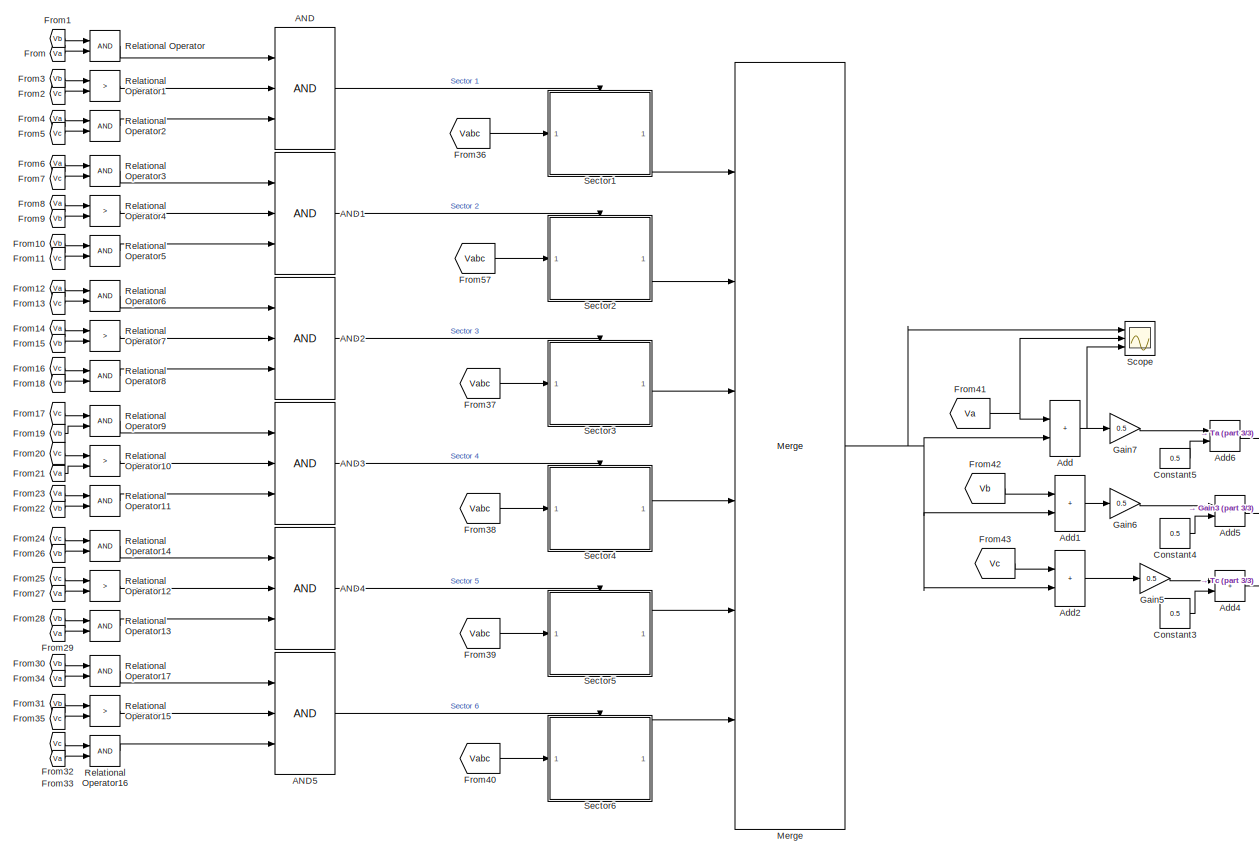
[diagram: Switching/+120_deg_Dpwm - part 1/3, center side, full height]
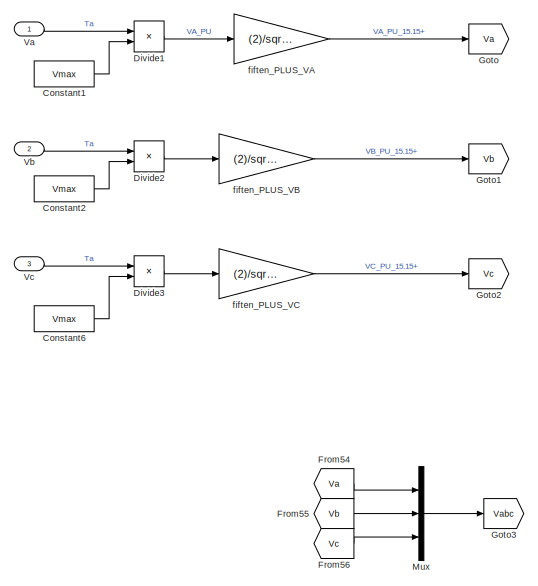
[diagram: Switching/+120_deg_Dpwm - part 2/3, middle left region]
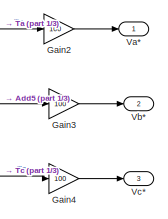
[diagram: Switching/+120_deg_Dpwm - part 3/3, middle right region]
BLOCK [SubSystem] Switching/+120_deg_Dpwm
  Commented = on
  Ports = [3, 3]
BLOCK [Logic] Switching/+120_deg_Dpwm/AND
  AllPortsSameDT = off
  IconShape = distinctive
  Inputs = 3
  OutDataTypeStr = boolean
  Ports = [3, 1]
BLOCK [Logic] Switching/+120_deg_Dpwm/AND1
  AllPortsSameDT = off
  IconShape = distinctive
  Inputs = 3
  OutDataTypeStr = boolean
  Ports = [3, 1]
BLOCK [Logic] Switching/+120_deg_Dpwm/AND2
  AllPortsSameDT = off
  IconShape = distinctive
  Inputs = 3
  OutDataTypeStr = boolean
  Ports = [3, 1]
BLOCK [Logic] Switching/+120_deg_Dpwm/AND3
  AllPortsSameDT = off
  IconShape = distinctive
  Inputs = 3
  OutDataTypeStr = boolean
  Ports = [3, 1]
BLOCK [Logic] Switching/+120_deg_Dpwm/AND4
  AllPortsSameDT = off
  IconShape = distinctive
  Inputs = 3
  OutDataTypeStr = boolean
  Ports = [3, 1]
BLOCK [Logic] Switching/+120_deg_Dpwm/AND5
  AllPortsSameDT = off
  IconShape = distinctive
  Inputs = 3
  OutDataTypeStr = boolean
  Ports = [3, 1]
BLOCK [Sum] Switching/+120_deg_Dpwm/Add
  IconShape = rectangular
  Ports = [2, 1]
BLOCK [Sum] Switching/+120_deg_Dpwm/Add1
  IconShape = rectangular
  Ports = [2, 1]
BLOCK [Sum] Switching/+120_deg_Dpwm/Add2
  IconShape = rectangular
  Ports = [2, 1]
BLOCK [Sum] Switching/+120_deg_Dpwm/Add4
  IconShape = rectangular
  Ports = [2, 1]
BLOCK [Sum] Switching/+120_deg_Dpwm/Add5
  IconShape = rectangular
  Ports = [2, 1]
BLOCK [Sum] Switching/+120_deg_Dpwm/Add6
  IconShape = rectangular
  Ports = [2, 1]
BLOCK [Constant] Switching/+120_deg_Dpwm/Constant1
  Value = Vmax
BLOCK [Constant] Switching/+120_deg_Dpwm/Constant2
  Value = Vmax
BLOCK [Constant] Switching/+120_deg_Dpwm/Constant3
  Value = 0.5
BLOCK [Constant] Switching/+120_deg_Dpwm/Constant4
  Value = 0.5
BLOCK [Constant] Switching/+120_deg_Dpwm/Constant5
  Value = 0.5
BLOCK [Constant] Switching/+120_deg_Dpwm/Constant6
  Value = Vmax
BLOCK [Product] Switching/+120_deg_Dpwm/Divide1
  Inputs = */
  Ports = [2, 1]
BLOCK [Product] Switching/+120_deg_Dpwm/Divide2
  Inputs = */
  Ports = [2, 1]
BLOCK [Product] Switching/+120_deg_Dpwm/Divide3
  Inputs = */
  Ports = [2, 1]
BLOCK [From] Switching/+120_deg_Dpwm/From
  GotoTag = Va
BLOCK [From] Switching/+120_deg_Dpwm/From1
  GotoTag = Vb
BLOCK [From] Switching/+120_deg_Dpwm/From10
  GotoTag = Vb
BLOCK [From] Switching/+120_deg_Dpwm/From11
  GotoTag = Vc
BLOCK [From] Switching/+120_deg_Dpwm/From12
  GotoTag = Va
BLOCK [From] Switching/+120_deg_Dpwm/From13
  GotoTag = Vc
BLOCK [From] Switching/+120_deg_Dpwm/From14
  GotoTag = Va
BLOCK [From] Switching/+120_deg_Dpwm/From15
  GotoTag = Vb
BLOCK [From] Switching/+120_deg_Dpwm/From16
  GotoTag = Vc
BLOCK [From] Switching/+120_deg_Dpwm/From17
  GotoTag = Vc
BLOCK [From] Switching/+120_deg_Dpwm/From18
  GotoTag = Vb
BLOCK [From] Switching/+120_deg_Dpwm/From19
  GotoTag = Vb
BLOCK [From] Switching/+120_deg_Dpwm/From2
  GotoTag = Vc
BLOCK [From] Switching/+120_deg_Dpwm/From20
  GotoTag = Vc
BLOCK [From] Switching/+120_deg_Dpwm/From21
  GotoTag = Va
BLOCK [From] Switching/+120_deg_Dpwm/From22
  GotoTag = Vb
BLOCK [From] Switching/+120_deg_Dpwm/From23
  GotoTag = Va
BLOCK [From] Switching/+120_deg_Dpwm/From24
  GotoTag = Vc
BLOCK [From] Switching/+120_deg_Dpwm/From25
  GotoTag = Vc
BLOCK [From] Switching/+120_deg_Dpwm/From26
  GotoTag = Vb
BLOCK [From] Switching/+120_deg_Dpwm/From27
  GotoTag = Va
BLOCK [From] Switching/+120_deg_Dpwm/From28
  GotoTag = Vb
BLOCK [From] Switching/+120_deg_Dpwm/From29
  GotoTag = Va
BLOCK [From] Switching/+120_deg_Dpwm/From3
  GotoTag = Vb
BLOCK [From] Switching/+120_deg_Dpwm/From30
  GotoTag = Vb
BLOCK [From] Switching/+120_deg_Dpwm/From31
  GotoTag = Vb
BLOCK [From] Switching/+120_deg_Dpwm/From32
  GotoTag = Vc
BLOCK [From] Switching/+120_deg_Dpwm/From33
  GotoTag = Va
BLOCK [From] Switching/+120_deg_Dpwm/From34
  GotoTag = Va
BLOCK [From] Switching/+120_deg_Dpwm/From35
  GotoTag = Vc
BLOCK [From] Switching/+120_deg_Dpwm/From36
  GotoTag = Vabc
BLOCK [From] Switching/+120_deg_Dpwm/From37
  GotoTag = Vabc
BLOCK [From] Switching/+120_deg_Dpwm/From38
  GotoTag = Vabc
BLOCK [From] Switching/+120_deg_Dpwm/From39
  GotoTag = Vabc
BLOCK [From] Switching/+120_deg_Dpwm/From4
  GotoTag = Va
BLOCK [From] Switching/+120_deg_Dpwm/From40
  GotoTag = Vabc
BLOCK [From] Switching/+120_deg_Dpwm/From41
  GotoTag = Va
BLOCK [From] Switching/+120_deg_Dpwm/From42
  GotoTag = Vb
BLOCK [From] Switching/+120_deg_Dpwm/From43
  GotoTag = Vc
BLOCK [From] Switching/+120_deg_Dpwm/From5
  GotoTag = Vc
BLOCK [From] Switching/+120_deg_Dpwm/From54
  GotoTag = Va
BLOCK [From] Switching/+120_deg_Dpwm/From55
  GotoTag = Vb
BLOCK [From] Switching/+120_deg_Dpwm/From56
  GotoTag = Vc
BLOCK [From] Switching/+120_deg_Dpwm/From57
  GotoTag = Vabc
BLOCK [From] Switching/+120_deg_Dpwm/From6
  GotoTag = Va
BLOCK [From] Switching/+120_deg_Dpwm/From7
  GotoTag = Vc
BLOCK [From] Switching/+120_deg_Dpwm/From8
  GotoTag = Va
BLOCK [From] Switching/+120_deg_Dpwm/From9
  GotoTag = Vb
BLOCK [Gain] Switching/+120_deg_Dpwm/Gain2
  Gain = 100
BLOCK [Gain] Switching/+120_deg_Dpwm/Gain3
  Gain = 100
BLOCK [Gain] Switching/+120_deg_Dpwm/Gain4
  Gain = 100
BLOCK [Gain] Switching/+120_deg_Dpwm/Gain5
  Gain = 0.5
BLOCK [Gain] Switching/+120_deg_Dpwm/Gain6
  Gain = 0.5
BLOCK [Gain] Switching/+120_deg_Dpwm/Gain7
  Gain = 0.5
BLOCK [Goto] Switching/+120_deg_Dpwm/Goto
  GotoTag = Va
BLOCK [Goto] Switching/+120_deg_Dpwm/Goto1
  GotoTag = Vb
BLOCK [Goto] Switching/+120_deg_Dpwm/Goto2
  GotoTag = Vc
BLOCK [Goto] Switching/+120_deg_Dpwm/Goto3
  GotoTag = Vabc
BLOCK [Merge] Switching/+120_deg_Dpwm/Merge
  Inputs = 6
  Ports = [6, 1]
BLOCK [Mux] Switching/+120_deg_Dpwm/Mux
  DisplayOption = bar
  Inputs = 3
  Ports = [3, 1]
BLOCK [RelationalOperator] Switching/+120_deg_Dpwm/Relational Operator
  InputSameDT = off
  OutDataTypeStr = boolean
  Ports = [2, 1]
  RndMeth = Simplest
BLOCK [RelationalOperator] Switching/+120_deg_Dpwm/Relational Operator1
  InputSameDT = off
  Operator = >
  OutDataTypeStr = boolean
  Ports = [2, 1]
  RndMeth = Simplest
BLOCK [RelationalOperator] Switching/+120_deg_Dpwm/Relational Operator10
  InputSameDT = off
  Operator = >
  OutDataTypeStr = boolean
  Ports = [2, 1]
  RndMeth = Simplest
BLOCK [RelationalOperator] Switching/+120_deg_Dpwm/Relational Operator11
  InputSameDT = off
  OutDataTypeStr = boolean
  Ports = [2, 1]
  RndMeth = Simplest
BLOCK [RelationalOperator] Switching/+120_deg_Dpwm/Relational Operator12
  InputSameDT = off
  Operator = >
  OutDataTypeStr = boolean
  Ports = [2, 1]
  RndMeth = Simplest
BLOCK [RelationalOperator] Switching/+120_deg_Dpwm/Relational Operator13
  InputSameDT = off
  OutDataTypeStr = boolean
  Ports = [2, 1]
  RndMeth = Simplest
BLOCK [RelationalOperator] Switching/+120_deg_Dpwm/Relational Operator14
  InputSameDT = off
  OutDataTypeStr = boolean
  Ports = [2, 1]
  RndMeth = Simplest
BLOCK [RelationalOperator] Switching/+120_deg_Dpwm/Relational Operator15
  InputSameDT = off
  Operator = >
  OutDataTypeStr = boolean
  Ports = [2, 1]
  RndMeth = Simplest
BLOCK [RelationalOperator] Switching/+120_deg_Dpwm/Relational Operator16
  InputSameDT = off
  OutDataTypeStr = boolean
  Ports = [2, 1]
  RndMeth = Simplest
BLOCK [RelationalOperator] Switching/+120_deg_Dpwm/Relational Operator17
  InputSameDT = off
  OutDataTypeStr = boolean
  Ports = [2, 1]
  RndMeth = Simplest
BLOCK [RelationalOperator] Switching/+120_deg_Dpwm/Relational Operator2
  InputSameDT = off
  OutDataTypeStr = boolean
  Ports = [2, 1]
  RndMeth = Simplest
BLOCK [RelationalOperator] Switching/+120_deg_Dpwm/Relational Operator3
  InputSameDT = off
  OutDataTypeStr = boolean
  Ports = [2, 1]
  RndMeth = Simplest
BLOCK [RelationalOperator] Switching/+120_deg_Dpwm/Relational Operator4
  InputSameDT = off
  Operator = >
  OutDataTypeStr = boolean
  Ports = [2, 1]
  RndMeth = Simplest
BLOCK [RelationalOperator] Switching/+120_deg_Dpwm/Relational Operator5
  InputSameDT = off
  OutDataTypeStr = boolean
  Ports = [2, 1]
  RndMeth = Simplest
BLOCK [RelationalOperator] Switching/+120_deg_Dpwm/Relational Operator6
  InputSameDT = off
  OutDataTypeStr = boolean
  Ports = [2, 1]
  RndMeth = Simplest
BLOCK [RelationalOperator] Switching/+120_deg_Dpwm/Relational Operator7
  InputSameDT = off
  Operator = >
  OutDataTypeStr = boolean
  Ports = [2, 1]
  RndMeth = Simplest
BLOCK [RelationalOperator] Switching/+120_deg_Dpwm/Relational Operator8
  InputSameDT = off
  OutDataTypeStr = boolean
  Ports = [2, 1]
  RndMeth = Simplest
BLOCK [RelationalOperator] Switching/+120_deg_Dpwm/Relational Operator9
  InputSameDT = off
  OutDataTypeStr = boolean
  Ports = [2, 1]
  RndMeth = Simplest
BLOCK [Scope] Switching/+120_deg_Dpwm/Scope
  Floating = off
  NumInputPorts = 3
  Ports = [3]
  ScopeSpecificationString = Simulink.scopes.TimeScopeBlockCfg('CurrentConfiguration', extmgr.ConfigurationSet(extmgr.Configuration('Core','General UI',true),extmgr.Configuration('Core','Source UI',true),extmgr.Configuration('Sources','WiredSimulink',true,'DataLoggingVariableName','ScopeData1'),extmgr.Configuration('Visuals','Time Domain',true,'SerializedDisplays',{struct('MinYLimReal','-0.22805','MaxYLimReal','1.10911','YLab...<+3057ch>
BLOCK [SubSystem] Switching/+120_deg_Dpwm/Sector1
  Ports = [1, 1, 1]
  TreatAsAtomicUnit = on
BLOCK [Reference] Switching/+120_deg_Dpwm/Sector1/Compare To Zero  REF=simulink/Logic and Bit
Operations/Compare
To Zero
  Ports = [1, 1]
  SourceBlock = simulink/Logic and Bit\nOperations/Compare\nTo Zero
  SourceType = Compare To Zero
BLOCK [Reference] Switching/+120_deg_Dpwm/Sector1/Compare To Zero1  REF=simulink/Logic and Bit
Operations/Compare
To Zero
  Ports = [1, 1]
  SourceBlock = simulink/Logic and Bit\nOperations/Compare\nTo Zero
  SourceType = Compare To Zero
BLOCK [Demux] Switching/+120_deg_Dpwm/Sector1/Demux
  Outputs = 3
  Ports = [1, 3]
BLOCK [EnablePort] Switching/+120_deg_Dpwm/Sector1/Enable
  Ports = []
BLOCK [SubSystem] Switching/+120_deg_Dpwm/Sector1/Enabled Subsystem
  Ports = [1, 1, 1]
  TreatAsAtomicUnit = on
BLOCK [Sum] Switching/+120_deg_Dpwm/Sector1/Enabled Subsystem/Add
  IconShape = rectangular
  Inputs = -+
  Ports = [2, 1]
BLOCK [Constant] Switching/+120_deg_Dpwm/Sector1/Enabled Subsystem/Constant
BLOCK [Demux] Switching/+120_deg_Dpwm/Sector1/Enabled Subsystem/Demux
  Outputs = 3
  Ports = [1, 3]
BLOCK [EnablePort] Switching/+120_deg_Dpwm/Sector1/Enabled Subsystem/Enable
  Ports = []
BLOCK [Outport] Switching/+120_deg_Dpwm/Sector1/Enabled Subsystem/Out1
BLOCK [Terminator] Switching/+120_deg_Dpwm/Sector1/Enabled Subsystem/Terminator
BLOCK [Terminator] Switching/+120_deg_Dpwm/Sector1/Enabled Subsystem/Terminator1
BLOCK [Inport] Switching/+120_deg_Dpwm/Sector1/Enabled Subsystem/Vabc
BLOCK [SubSystem] Switching/+120_deg_Dpwm/Sector1/Enabled Subsystem1
  Ports = [1, 1, 1]
  TreatAsAtomicUnit = on
BLOCK [Sum] Switching/+120_deg_Dpwm/Sector1/Enabled Subsystem1/Add
  IconShape = rectangular
  Inputs = -+
  Ports = [2, 1]
BLOCK [Constant] Switching/+120_deg_Dpwm/Sector1/Enabled Subsystem1/Constant
BLOCK [Demux] Switching/+120_deg_Dpwm/Sector1/Enabled Subsystem1/Demux
  Outputs = 3
  Ports = [1, 3]
BLOCK [EnablePort] Switching/+120_deg_Dpwm/Sector1/Enabled Subsystem1/Enable
  Ports = []
BLOCK [Outport] Switching/+120_deg_Dpwm/Sector1/Enabled Subsystem1/Out1
BLOCK [Terminator] Switching/+120_deg_Dpwm/Sector1/Enabled Subsystem1/Terminator
BLOCK [Terminator] Switching/+120_deg_Dpwm/Sector1/Enabled Subsystem1/Terminator1
BLOCK [Inport] Switching/+120_deg_Dpwm/Sector1/Enabled Subsystem1/Vabc
BLOCK [Merge] Switching/+120_deg_Dpwm/Sector1/Merge
  Ports = [2, 1]
BLOCK [Outport] Switching/+120_deg_Dpwm/Sector1/Out1
BLOCK [Terminator] Switching/+120_deg_Dpwm/Sector1/Terminator
BLOCK [Terminator] Switching/+120_deg_Dpwm/Sector1/Terminator1
BLOCK [Inport] Switching/+120_deg_Dpwm/Sector1/Vabc
BLOCK [SubSystem] Switching/+120_deg_Dpwm/Sector2
  Ports = [1, 1, 1]
  TreatAsAtomicUnit = on
BLOCK [Reference] Switching/+120_deg_Dpwm/Sector2/Compare To Zero  REF=simulink/Logic and Bit
Operations/Compare
To Zero
  Ports = [1, 1]
  SourceBlock = simulink/Logic and Bit\nOperations/Compare\nTo Zero
  SourceType = Compare To Zero
BLOCK [Reference] Switching/+120_deg_Dpwm/Sector2/Compare To Zero1  REF=simulink/Logic and Bit
Operations/Compare
To Zero
  Ports = [1, 1]
  SourceBlock = simulink/Logic and Bit\nOperations/Compare\nTo Zero
  SourceType = Compare To Zero
BLOCK [Demux] Switching/+120_deg_Dpwm/Sector2/Demux
  Outputs = 3
  Ports = [1, 3]
BLOCK [EnablePort] Switching/+120_deg_Dpwm/Sector2/Enable
  Ports = []
BLOCK [SubSystem] Switching/+120_deg_Dpwm/Sector2/Enabled Subsystem
  Ports = [1, 1, 1]
  TreatAsAtomicUnit = on
BLOCK [Sum] Switching/+120_deg_Dpwm/Sector2/Enabled Subsystem/Add
  IconShape = rectangular
  Inputs = -+
  Ports = [2, 1]
BLOCK [Constant] Switching/+120_deg_Dpwm/Sector2/Enabled Subsystem/Constant
BLOCK [Demux] Switching/+120_deg_Dpwm/Sector2/Enabled Subsystem/Demux
  Outputs = 3
  Ports = [1, 3]
BLOCK [EnablePort] Switching/+120_deg_Dpwm/Sector2/Enabled Subsystem/Enable
  Ports = []
BLOCK [Outport] Switching/+120_deg_Dpwm/Sector2/Enabled Subsystem/Out1
BLOCK [Terminator] Switching/+120_deg_Dpwm/Sector2/Enabled Subsystem/Terminator
BLOCK [Terminator] Switching/+120_deg_Dpwm/Sector2/Enabled Subsystem/Terminator1
BLOCK [Inport] Switching/+120_deg_Dpwm/Sector2/Enabled Subsystem/Vabc
BLOCK [SubSystem] Switching/+120_deg_Dpwm/Sector2/Enabled Subsystem1
  Ports = [1, 1, 1]
  TreatAsAtomicUnit = on
BLOCK [Sum] Switching/+120_deg_Dpwm/Sector2/Enabled Subsystem1/Add
  IconShape = rectangular
  Inputs = -+
  Ports = [2, 1]
BLOCK [Constant] Switching/+120_deg_Dpwm/Sector2/Enabled Subsystem1/Constant
BLOCK [Demux] Switching/+120_deg_Dpwm/Sector2/Enabled Subsystem1/Demux
  Outputs = 3
  Ports = [1, 3]
BLOCK [EnablePort] Switching/+120_deg_Dpwm/Sector2/Enabled Subsystem1/Enable
  Ports = []
BLOCK [Outport] Switching/+120_deg_Dpwm/Sector2/Enabled Subsystem1/Out1
BLOCK [Terminator] Switching/+120_deg_Dpwm/Sector2/Enabled Subsystem1/Terminator
BLOCK [Terminator] Switching/+120_deg_Dpwm/Sector2/Enabled Subsystem1/Terminator1
BLOCK [Inport] Switching/+120_deg_Dpwm/Sector2/Enabled Subsystem1/Vabc
BLOCK [Merge] Switching/+120_deg_Dpwm/Sector2/Merge
  Ports = [2, 1]
BLOCK [Outport] Switching/+120_deg_Dpwm/Sector2/Out1
BLOCK [Terminator] Switching/+120_deg_Dpwm/Sector2/Terminator
BLOCK [Terminator] Switching/+120_deg_Dpwm/Sector2/Terminator1
BLOCK [Inport] Switching/+120_deg_Dpwm/Sector2/Vabc
BLOCK [SubSystem] Switching/+120_deg_Dpwm/Sector3
  Ports = [1, 1, 1]
  TreatAsAtomicUnit = on
BLOCK [Reference] Switching/+120_deg_Dpwm/Sector3/Compare To Zero  REF=simulink/Logic and Bit
Operations/Compare
To Zero
  Ports = [1, 1]
  SourceBlock = simulink/Logic and Bit\nOperations/Compare\nTo Zero
  SourceType = Compare To Zero
BLOCK [Reference] Switching/+120_deg_Dpwm/Sector3/Compare To Zero1  REF=simulink/Logic and Bit
Operations/Compare
To Zero
  Ports = [1, 1]
  SourceBlock = simulink/Logic and Bit\nOperations/Compare\nTo Zero
  SourceType = Compare To Zero
BLOCK [Demux] Switching/+120_deg_Dpwm/Sector3/Demux
  Outputs = 3
  Ports = [1, 3]
BLOCK [EnablePort] Switching/+120_deg_Dpwm/Sector3/Enable
  Ports = []
BLOCK [SubSystem] Switching/+120_deg_Dpwm/Sector3/Enabled Subsystem
  Ports = [1, 1, 1]
  TreatAsAtomicUnit = on
BLOCK [Sum] Switching/+120_deg_Dpwm/Sector3/Enabled Subsystem/Add
  IconShape = rectangular
  Inputs = -+
  Ports = [2, 1]
BLOCK [Constant] Switching/+120_deg_Dpwm/Sector3/Enabled Subsystem/Constant
BLOCK [Demux] Switching/+120_deg_Dpwm/Sector3/Enabled Subsystem/Demux
  Outputs = 3
  Ports = [1, 3]
BLOCK [EnablePort] Switching/+120_deg_Dpwm/Sector3/Enabled Subsystem/Enable
  Ports = []
BLOCK [Outport] Switching/+120_deg_Dpwm/Sector3/Enabled Subsystem/Out1
BLOCK [Terminator] Switching/+120_deg_Dpwm/Sector3/Enabled Subsystem/Terminator
BLOCK [Terminator] Switching/+120_deg_Dpwm/Sector3/Enabled Subsystem/Terminator1
BLOCK [Inport] Switching/+120_deg_Dpwm/Sector3/Enabled Subsystem/Vabc
BLOCK [SubSystem] Switching/+120_deg_Dpwm/Sector3/Enabled Subsystem1
  Ports = [1, 1, 1]
  TreatAsAtomicUnit = on
BLOCK [Sum] Switching/+120_deg_Dpwm/Sector3/Enabled Subsystem1/Add
  IconShape = rectangular
  Inputs = -+
  Ports = [2, 1]
BLOCK [Constant] Switching/+120_deg_Dpwm/Sector3/Enabled Subsystem1/Constant
BLOCK [Demux] Switching/+120_deg_Dpwm/Sector3/Enabled Subsystem1/Demux
  Outputs = 3
  Ports = [1, 3]
BLOCK [EnablePort] Switching/+120_deg_Dpwm/Sector3/Enabled Subsystem1/Enable
  Ports = []
BLOCK [Outport] Switching/+120_deg_Dpwm/Sector3/Enabled Subsystem1/Out1
BLOCK [Terminator] Switching/+120_deg_Dpwm/Sector3/Enabled Subsystem1/Terminator
BLOCK [Terminator] Switching/+120_deg_Dpwm/Sector3/Enabled Subsystem1/Terminator1
BLOCK [Inport] Switching/+120_deg_Dpwm/Sector3/Enabled Subsystem1/Vabc
BLOCK [Merge] Switching/+120_deg_Dpwm/Sector3/Merge
  Ports = [2, 1]
BLOCK [Outport] Switching/+120_deg_Dpwm/Sector3/Out1
BLOCK [Terminator] Switching/+120_deg_Dpwm/Sector3/Terminator
BLOCK [Terminator] Switching/+120_deg_Dpwm/Sector3/Terminator1
BLOCK [Inport] Switching/+120_deg_Dpwm/Sector3/Vabc
BLOCK [SubSystem] Switching/+120_deg_Dpwm/Sector4
  Ports = [1, 1, 1]
  TreatAsAtomicUnit = on
BLOCK [Reference] Switching/+120_deg_Dpwm/Sector4/Compare To Zero  REF=simulink/Logic and Bit
Operations/Compare
To Zero
  Ports = [1, 1]
  SourceBlock = simulink/Logic and Bit\nOperations/Compare\nTo Zero
  SourceType = Compare To Zero
BLOCK [Reference] Switching/+120_deg_Dpwm/Sector4/Compare To Zero1  REF=simulink/Logic and Bit
Operations/Compare
To Zero
  Ports = [1, 1]
  SourceBlock = simulink/Logic and Bit\nOperations/Compare\nTo Zero
  SourceType = Compare To Zero
BLOCK [Demux] Switching/+120_deg_Dpwm/Sector4/Demux
  Outputs = 3
  Ports = [1, 3]
BLOCK [EnablePort] Switching/+120_deg_Dpwm/Sector4/Enable
  Ports = []
BLOCK [SubSystem] Switching/+120_deg_Dpwm/Sector4/Enabled Subsystem
  Ports = [1, 1, 1]
  TreatAsAtomicUnit = on
BLOCK [Sum] Switching/+120_deg_Dpwm/Sector4/Enabled Subsystem/Add
  IconShape = rectangular
  Inputs = -+
  Ports = [2, 1]
BLOCK [Constant] Switching/+120_deg_Dpwm/Sector4/Enabled Subsystem/Constant
BLOCK [Demux] Switching/+120_deg_Dpwm/Sector4/Enabled Subsystem/Demux
  Outputs = 3
  Ports = [1, 3]
BLOCK [EnablePort] Switching/+120_deg_Dpwm/Sector4/Enabled Subsystem/Enable
  Ports = []
BLOCK [Outport] Switching/+120_deg_Dpwm/Sector4/Enabled Subsystem/Out1
BLOCK [Terminator] Switching/+120_deg_Dpwm/Sector4/Enabled Subsystem/Terminator
BLOCK [Terminator] Switching/+120_deg_Dpwm/Sector4/Enabled Subsystem/Terminator1
BLOCK [Inport] Switching/+120_deg_Dpwm/Sector4/Enabled Subsystem/Vabc
BLOCK [SubSystem] Switching/+120_deg_Dpwm/Sector4/Enabled Subsystem1
  Ports = [1, 1, 1]
  TreatAsAtomicUnit = on
BLOCK [Sum] Switching/+120_deg_Dpwm/Sector4/Enabled Subsystem1/Add
  IconShape = rectangular
  Inputs = -+
  Ports = [2, 1]
BLOCK [Constant] Switching/+120_deg_Dpwm/Sector4/Enabled Subsystem1/Constant
BLOCK [Demux] Switching/+120_deg_Dpwm/Sector4/Enabled Subsystem1/Demux
  Outputs = 3
  Ports = [1, 3]
BLOCK [EnablePort] Switching/+120_deg_Dpwm/Sector4/Enabled Subsystem1/Enable
  Ports = []
BLOCK [Outport] Switching/+120_deg_Dpwm/Sector4/Enabled Subsystem1/Out1
BLOCK [Terminator] Switching/+120_deg_Dpwm/Sector4/Enabled Subsystem1/Terminator
BLOCK [Terminator] Switching/+120_deg_Dpwm/Sector4/Enabled Subsystem1/Terminator1
BLOCK [Inport] Switching/+120_deg_Dpwm/Sector4/Enabled Subsystem1/Vabc
BLOCK [Merge] Switching/+120_deg_Dpwm/Sector4/Merge
  Ports = [2, 1]
BLOCK [Outport] Switching/+120_deg_Dpwm/Sector4/Out1
BLOCK [Terminator] Switching/+120_deg_Dpwm/Sector4/Terminator
BLOCK [Terminator] Switching/+120_deg_Dpwm/Sector4/Terminator1
BLOCK [Inport] Switching/+120_deg_Dpwm/Sector4/Vabc
BLOCK [SubSystem] Switching/+120_deg_Dpwm/Sector5
  Ports = [1, 1, 1]
  TreatAsAtomicUnit = on
BLOCK [Reference] Switching/+120_deg_Dpwm/Sector5/Compare To Zero  REF=simulink/Logic and Bit
Operations/Compare
To Zero
  Ports = [1, 1]
  SourceBlock = simulink/Logic and Bit\nOperations/Compare\nTo Zero
  SourceType = Compare To Zero
BLOCK [Reference] Switching/+120_deg_Dpwm/Sector5/Compare To Zero1  REF=simulink/Logic and Bit
Operations/Compare
To Zero
  Ports = [1, 1]
  SourceBlock = simulink/Logic and Bit\nOperations/Compare\nTo Zero
  SourceType = Compare To Zero
BLOCK [Demux] Switching/+120_deg_Dpwm/Sector5/Demux
  Outputs = 3
  Ports = [1, 3]
BLOCK [EnablePort] Switching/+120_deg_Dpwm/Sector5/Enable
  Ports = []
BLOCK [SubSystem] Switching/+120_deg_Dpwm/Sector5/Enabled Subsystem
  Ports = [1, 1, 1]
  TreatAsAtomicUnit = on
BLOCK [Sum] Switching/+120_deg_Dpwm/Sector5/Enabled Subsystem/Add
  IconShape = rectangular
  Inputs = -+
  Ports = [2, 1]
BLOCK [Constant] Switching/+120_deg_Dpwm/Sector5/Enabled Subsystem/Constant
BLOCK [Demux] Switching/+120_deg_Dpwm/Sector5/Enabled Subsystem/Demux
  Outputs = 3
  Ports = [1, 3]
BLOCK [EnablePort] Switching/+120_deg_Dpwm/Sector5/Enabled Subsystem/Enable
  Ports = []
BLOCK [Outport] Switching/+120_deg_Dpwm/Sector5/Enabled Subsystem/Out1
BLOCK [Terminator] Switching/+120_deg_Dpwm/Sector5/Enabled Subsystem/Terminator
BLOCK [Terminator] Switching/+120_deg_Dpwm/Sector5/Enabled Subsystem/Terminator1
BLOCK [Inport] Switching/+120_deg_Dpwm/Sector5/Enabled Subsystem/Vabc
BLOCK [SubSystem] Switching/+120_deg_Dpwm/Sector5/Enabled Subsystem1
  Ports = [1, 1, 1]
  TreatAsAtomicUnit = on
BLOCK [Sum] Switching/+120_deg_Dpwm/Sector5/Enabled Subsystem1/Add
  IconShape = rectangular
  Inputs = -+
  Ports = [2, 1]
BLOCK [Constant] Switching/+120_deg_Dpwm/Sector5/Enabled Subsystem1/Constant
BLOCK [Demux] Switching/+120_deg_Dpwm/Sector5/Enabled Subsystem1/Demux
  Outputs = 3
  Ports = [1, 3]
BLOCK [EnablePort] Switching/+120_deg_Dpwm/Sector5/Enabled Subsystem1/Enable
  Ports = []
BLOCK [Outport] Switching/+120_deg_Dpwm/Sector5/Enabled Subsystem1/Out1
BLOCK [Terminator] Switching/+120_deg_Dpwm/Sector5/Enabled Subsystem1/Terminator
BLOCK [Terminator] Switching/+120_deg_Dpwm/Sector5/Enabled Subsystem1/Terminator1
BLOCK [Inport] Switching/+120_deg_Dpwm/Sector5/Enabled Subsystem1/Vabc
BLOCK [Merge] Switching/+120_deg_Dpwm/Sector5/Merge
  Ports = [2, 1]
BLOCK [Outport] Switching/+120_deg_Dpwm/Sector5/Out1
BLOCK [Terminator] Switching/+120_deg_Dpwm/Sector5/Terminator
BLOCK [Terminator] Switching/+120_deg_Dpwm/Sector5/Terminator1
BLOCK [Inport] Switching/+120_deg_Dpwm/Sector5/Vabc
BLOCK [SubSystem] Switching/+120_deg_Dpwm/Sector6
  Ports = [1, 1, 1]
  TreatAsAtomicUnit = on
BLOCK [Reference] Switching/+120_deg_Dpwm/Sector6/Compare To Zero  REF=simulink/Logic and Bit
Operations/Compare
To Zero
  Ports = [1, 1]
  SourceBlock = simulink/Logic and Bit\nOperations/Compare\nTo Zero
  SourceType = Compare To Zero
BLOCK [Reference] Switching/+120_deg_Dpwm/Sector6/Compare To Zero1  REF=simulink/Logic and Bit
Operations/Compare
To Zero
  Ports = [1, 1]
  SourceBlock = simulink/Logic and Bit\nOperations/Compare\nTo Zero
  SourceType = Compare To Zero
BLOCK [Demux] Switching/+120_deg_Dpwm/Sector6/Demux
  Outputs = 3
  Ports = [1, 3]
BLOCK [EnablePort] Switching/+120_deg_Dpwm/Sector6/Enable
  Ports = []
BLOCK [SubSystem] Switching/+120_deg_Dpwm/Sector6/Enabled Subsystem
  Ports = [1, 1, 1]
  TreatAsAtomicUnit = on
BLOCK [Sum] Switching/+120_deg_Dpwm/Sector6/Enabled Subsystem/Add
  IconShape = rectangular
  Inputs = -+
  Ports = [2, 1]
BLOCK [Constant] Switching/+120_deg_Dpwm/Sector6/Enabled Subsystem/Constant
BLOCK [Demux] Switching/+120_deg_Dpwm/Sector6/Enabled Subsystem/Demux
  Outputs = 3
  Ports = [1, 3]
BLOCK [EnablePort] Switching/+120_deg_Dpwm/Sector6/Enabled Subsystem/Enable
  Ports = []
BLOCK [Outport] Switching/+120_deg_Dpwm/Sector6/Enabled Subsystem/Out1
BLOCK [Terminator] Switching/+120_deg_Dpwm/Sector6/Enabled Subsystem/Terminator
BLOCK [Terminator] Switching/+120_deg_Dpwm/Sector6/Enabled Subsystem/Terminator1
BLOCK [Inport] Switching/+120_deg_Dpwm/Sector6/Enabled Subsystem/Vabc
BLOCK [SubSystem] Switching/+120_deg_Dpwm/Sector6/Enabled Subsystem1
  Ports = [1, 1, 1]
  TreatAsAtomicUnit = on
BLOCK [Sum] Switching/+120_deg_Dpwm/Sector6/Enabled Subsystem1/Add
  IconShape = rectangular
  Inputs = -+
  Ports = [2, 1]
BLOCK [Constant] Switching/+120_deg_Dpwm/Sector6/Enabled Subsystem1/Constant
BLOCK [Demux] Switching/+120_deg_Dpwm/Sector6/Enabled Subsystem1/Demux
  Outputs = 3
  Ports = [1, 3]
BLOCK [EnablePort] Switching/+120_deg_Dpwm/Sector6/Enabled Subsystem1/Enable
  Ports = []
BLOCK [Outport] Switching/+120_deg_Dpwm/Sector6/Enabled Subsystem1/Out1
BLOCK [Terminator] Switching/+120_deg_Dpwm/Sector6/Enabled Subsystem1/Terminator
BLOCK [Terminator] Switching/+120_deg_Dpwm/Sector6/Enabled Subsystem1/Terminator1
BLOCK [Inport] Switching/+120_deg_Dpwm/Sector6/Enabled Subsystem1/Vabc
BLOCK [Merge] Switching/+120_deg_Dpwm/Sector6/Merge
  Ports = [2, 1]
BLOCK [Outport] Switching/+120_deg_Dpwm/Sector6/Out1
BLOCK [Terminator] Switching/+120_deg_Dpwm/Sector6/Terminator
BLOCK [Terminator] Switching/+120_deg_Dpwm/Sector6/Terminator1
BLOCK [Inport] Switching/+120_deg_Dpwm/Sector6/Vabc
BLOCK [Inport] Switching/+120_deg_Dpwm/Va
BLOCK [Outport] Switching/+120_deg_Dpwm/Va*
BLOCK [Inport] Switching/+120_deg_Dpwm/Vb
  Port = 2
BLOCK [Outport] Switching/+120_deg_Dpwm/Vb*
  Port = 2
BLOCK [Inport] Switching/+120_deg_Dpwm/Vc
  Port = 3
BLOCK [Outport] Switching/+120_deg_Dpwm/Vc*
  Port = 3
BLOCK [Gain] Switching/+120_deg_Dpwm/fiften_PLUS_VA
  Gain = (2)/sqrt(3)
  OutDataTypeStr = Inherit: Same as input
  ParamDataTypeStr = Inherit: Same as input
  RndMeth = Simplest
BLOCK [Gain] Switching/+120_deg_Dpwm/fiften_PLUS_VB
  Gain = (2)/sqrt(3)
  OutDataTypeStr = Inherit: Same as input
  ParamDataTypeStr = Inherit: Same as input
  RndMeth = Simplest
BLOCK [Gain] Switching/+120_deg_Dpwm/fiften_PLUS_VC
  Gain = (2)/sqrt(3)
  OutDataTypeStr = Inherit: Same as input
  ParamDataTypeStr = Inherit: Same as input
  RndMeth = Simplest
BLOCK [SubSystem] Switching/-120_deg_Dpwm
  Commented = on
  Ports = [3, 3]
BLOCK [Logic] Switching/-120_deg_Dpwm/AND
  AllPortsSameDT = off
  IconShape = distinctive
  Inputs = 3
  OutDataTypeStr = boolean
  Ports = [3, 1]
BLOCK [Logic] Switching/-120_deg_Dpwm/AND1
  AllPortsSameDT = off
  IconShape = distinctive
  Inputs = 3
  OutDataTypeStr = boolean
  Ports = [3, 1]
BLOCK [Logic] Switching/-120_deg_Dpwm/AND2
  AllPortsSameDT = off
  IconShape = distinctive
  Inputs = 3
  OutDataTypeStr = boolean
  Ports = [3, 1]
BLOCK [Logic] Switching/-120_deg_Dpwm/AND3
  AllPortsSameDT = off
  IconShape = distinctive
  Inputs = 3
  OutDataTypeStr = boolean
  Ports = [3, 1]
BLOCK [Logic] Switching/-120_deg_Dpwm/AND4
  AllPortsSameDT = off
  IconShape = distinctive
  Inputs = 3
  OutDataTypeStr = boolean
  Ports = [3, 1]
BLOCK [Logic] Switching/-120_deg_Dpwm/AND5
  AllPortsSameDT = off
  IconShape = distinctive
  Inputs = 3
  OutDataTypeStr = boolean
  Ports = [3, 1]
BLOCK [Sum] Switching/-120_deg_Dpwm/Add
  IconShape = rectangular
  Ports = [2, 1]
BLOCK [Sum] Switching/-120_deg_Dpwm/Add1
  IconShape = rectangular
  Ports = [2, 1]
BLOCK [Sum] Switching/-120_deg_Dpwm/Add2
  IconShape = rectangular
  Ports = [2, 1]
BLOCK [Sum] Switching/-120_deg_Dpwm/Add4
  IconShape = rectangular
  Ports = [2, 1]
BLOCK [Sum] Switching/-120_deg_Dpwm/Add5
  IconShape = rectangular
  Ports = [2, 1]
BLOCK [Sum] Switching/-120_deg_Dpwm/Add6
  IconShape = rectangular
  Ports = [2, 1]
BLOCK [Constant] Switching/-120_deg_Dpwm/Constant3
  Value = 0.5
BLOCK [Constant] Switching/-120_deg_Dpwm/Constant4
  Value = 0.5
BLOCK [Constant] Switching/-120_deg_Dpwm/Constant5
  Value = 0.5
BLOCK [From] Switching/-120_deg_Dpwm/From
  GotoTag = Va
BLOCK [From] Switching/-120_deg_Dpwm/From1
  GotoTag = Vb
BLOCK [From] Switching/-120_deg_Dpwm/From10
  GotoTag = Vb
BLOCK [From] Switching/-120_deg_Dpwm/From11
  GotoTag = Vc
BLOCK [From] Switching/-120_deg_Dpwm/From12
  GotoTag = Va
BLOCK [From] Switching/-120_deg_Dpwm/From13
  GotoTag = Vc
BLOCK [From] Switching/-120_deg_Dpwm/From14
  GotoTag = Va
BLOCK [From] Switching/-120_deg_Dpwm/From15
  GotoTag = Vb
BLOCK [From] Switching/-120_deg_Dpwm/From16
  GotoTag = Vc
BLOCK [From] Switching/-120_deg_Dpwm/From17
  GotoTag = Vc
BLOCK [From] Switching/-120_deg_Dpwm/From18
  GotoTag = Vb
BLOCK [From] Switching/-120_deg_Dpwm/From19
  GotoTag = Vb
BLOCK [From] Switching/-120_deg_Dpwm/From2
  GotoTag = Vc
BLOCK [From] Switching/-120_deg_Dpwm/From20
  GotoTag = Vc
BLOCK [From] Switching/-120_deg_Dpwm/From21
  GotoTag = Va
BLOCK [From] Switching/-120_deg_Dpwm/From22
  GotoTag = Vb
BLOCK [From] Switching/-120_deg_Dpwm/From23
  GotoTag = Va
BLOCK [From] Switching/-120_deg_Dpwm/From24
  GotoTag = Vc
BLOCK [From] Switching/-120_deg_Dpwm/From25
  GotoTag = Vc
BLOCK [From] Switching/-120_deg_Dpwm/From26
  GotoTag = Vb
BLOCK [From] Switching/-120_deg_Dpwm/From27
  GotoTag = Va
BLOCK [From] Switching/-120_deg_Dpwm/From28
  GotoTag = Vb
BLOCK [From] Switching/-120_deg_Dpwm/From29
  GotoTag = Va
BLOCK [From] Switching/-120_deg_Dpwm/From3
  GotoTag = Vb
BLOCK [From] Switching/-120_deg_Dpwm/From30
  GotoTag = Vb
BLOCK [From] Switching/-120_deg_Dpwm/From31
  GotoTag = Vb
BLOCK [From] Switching/-120_deg_Dpwm/From32
  GotoTag = Vc
BLOCK [From] Switching/-120_deg_Dpwm/From33
  GotoTag = Va
BLOCK [From] Switching/-120_deg_Dpwm/From34
  GotoTag = Va
BLOCK [From] Switching/-120_deg_Dpwm/From35
  GotoTag = Vc
BLOCK [From] Switching/-120_deg_Dpwm/From36
  GotoTag = Vabc
BLOCK [From] Switching/-120_deg_Dpwm/From37
  GotoTag = Vabc
BLOCK [From] Switching/-120_deg_Dpwm/From38
  GotoTag = Vabc
BLOCK [From] Switching/-120_deg_Dpwm/From39
  GotoTag = Vabc
BLOCK [From] Switching/-120_deg_Dpwm/From4
  GotoTag = Va
BLOCK [From] Switching/-120_deg_Dpwm/From40
  GotoTag = Vabc
BLOCK [From] Switching/-120_deg_Dpwm/From41
  GotoTag = Va
BLOCK [From] Switching/-120_deg_Dpwm/From42
  GotoTag = Vb
BLOCK [From] Switching/-120_deg_Dpwm/From43
  GotoTag = Vc
BLOCK [From] Switching/-120_deg_Dpwm/From5
  GotoTag = Vc
BLOCK [From] Switching/-120_deg_Dpwm/From54
  GotoTag = Va
BLOCK [From] Switching/-120_deg_Dpwm/From55
  GotoTag = Vb
BLOCK [From] Switching/-120_deg_Dpwm/From56
  GotoTag = Vc
BLOCK [From] Switching/-120_deg_Dpwm/From57
  GotoTag = Vabc
BLOCK [From] Switching/-120_deg_Dpwm/From6
  GotoTag = Va
BLOCK [From] Switching/-120_deg_Dpwm/From7
  GotoTag = Vc
BLOCK [From] Switching/-120_deg_Dpwm/From8
  GotoTag = Va
BLOCK [From] Switching/-120_deg_Dpwm/From9
  GotoTag = Vb
BLOCK [Gain] Switching/-120_deg_Dpwm/Gain1
  Gain = (2)/sqrt(3)
  OutDataTypeStr = Inherit: Same as input
  ParamDataTypeStr = Inherit: Same as input
  RndMeth = Simplest
BLOCK [Gain] Switching/-120_deg_Dpwm/Gain2
  Gain = 100
BLOCK [Gain] Switching/-120_deg_Dpwm/Gain3
  Gain = 100
BLOCK [Gain] Switching/-120_deg_Dpwm/Gain4
  Gain = 100
BLOCK [Gain] Switching/-120_deg_Dpwm/Gain5
  Gain = 0.5
BLOCK [Gain] Switching/-120_deg_Dpwm/Gain6
  Gain = 0.5
BLOCK [Gain] Switching/-120_deg_Dpwm/Gain7
  Gain = 0.5
BLOCK [Gain] Switching/-120_deg_Dpwm/Gain8
  Gain = (2)/sqrt(3)
  OutDataTypeStr = Inherit: Same as input
  ParamDataTypeStr = Inherit: Same as input
  RndMeth = Simplest
BLOCK [Gain] Switching/-120_deg_Dpwm/Gain9
  Gain = (2)/sqrt(3)
  OutDataTypeStr = Inherit: Same as input
  ParamDataTypeStr = Inherit: Same as input
  RndMeth = Simplest
BLOCK [Goto] Switching/-120_deg_Dpwm/Goto
  GotoTag = Va
BLOCK [Goto] Switching/-120_deg_Dpwm/Goto1
  GotoTag = Vb
BLOCK [Goto] Switching/-120_deg_Dpwm/Goto2
  GotoTag = Vc
BLOCK [Goto] Switching/-120_deg_Dpwm/Goto3
  GotoTag = Vabc
BLOCK [Merge] Switching/-120_deg_Dpwm/Merge
  Inputs = 6
  Ports = [6, 1]
BLOCK [Mux] Switching/-120_deg_Dpwm/Mux
  DisplayOption = bar
  Inputs = 3
  Ports = [3, 1]
BLOCK [RelationalOperator] Switching/-120_deg_Dpwm/Relational Operator
  InputSameDT = off
  OutDataTypeStr = boolean
  Ports = [2, 1]
  RndMeth = Simplest
BLOCK [RelationalOperator] Switching/-120_deg_Dpwm/Relational Operator1
  InputSameDT = off
  OutDataTypeStr = boolean
  Ports = [2, 1]
  RndMeth = Simplest
BLOCK [RelationalOperator] Switching/-120_deg_Dpwm/Relational Operator10
  InputSameDT = off
  OutDataTypeStr = boolean
  Ports = [2, 1]
  RndMeth = Simplest
BLOCK [RelationalOperator] Switching/-120_deg_Dpwm/Relational Operator11
  InputSameDT = off
  OutDataTypeStr = boolean
  Ports = [2, 1]
  RndMeth = Simplest
BLOCK [RelationalOperator] Switching/-120_deg_Dpwm/Relational Operator12
  InputSameDT = off
  OutDataTypeStr = boolean
  Ports = [2, 1]
  RndMeth = Simplest
BLOCK [RelationalOperator] Switching/-120_deg_Dpwm/Relational Operator13
  InputSameDT = off
  OutDataTypeStr = boolean
  Ports = [2, 1]
  RndMeth = Simplest
BLOCK [RelationalOperator] Switching/-120_deg_Dpwm/Relational Operator14
  InputSameDT = off
  OutDataTypeStr = boolean
  Ports = [2, 1]
  RndMeth = Simplest
BLOCK [RelationalOperator] Switching/-120_deg_Dpwm/Relational Operator15
  InputSameDT = off
  OutDataTypeStr = boolean
  Ports = [2, 1]
  RndMeth = Simplest
BLOCK [RelationalOperator] Switching/-120_deg_Dpwm/Relational Operator16
  InputSameDT = off
  OutDataTypeStr = boolean
  Ports = [2, 1]
  RndMeth = Simplest
BLOCK [RelationalOperator] Switching/-120_deg_Dpwm/Relational Operator17
  InputSameDT = off
  OutDataTypeStr = boolean
  Ports = [2, 1]
  RndMeth = Simplest
BLOCK [RelationalOperator] Switching/-120_deg_Dpwm/Relational Operator2
  InputSameDT = off
  OutDataTypeStr = boolean
  Ports = [2, 1]
  RndMeth = Simplest
BLOCK [RelationalOperator] Switching/-120_deg_Dpwm/Relational Operator3
  InputSameDT = off
  OutDataTypeStr = boolean
  Ports = [2, 1]
  RndMeth = Simplest
BLOCK [RelationalOperator] Switching/-120_deg_Dpwm/Relational Operator4
  InputSameDT = off
  OutDataTypeStr = boolean
  Ports = [2, 1]
  RndMeth = Simplest
BLOCK [RelationalOperator] Switching/-120_deg_Dpwm/Relational Operator5
  InputSameDT = off
  OutDataTypeStr = boolean
  Ports = [2, 1]
  RndMeth = Simplest
BLOCK [RelationalOperator] Switching/-120_deg_Dpwm/Relational Operator6
  InputSameDT = off
  OutDataTypeStr = boolean
  Ports = [2, 1]
  RndMeth = Simplest
BLOCK [RelationalOperator] Switching/-120_deg_Dpwm/Relational Operator7
  InputSameDT = off
  OutDataTypeStr = boolean
  Ports = [2, 1]
  RndMeth = Simplest
BLOCK [RelationalOperator] Switching/-120_deg_Dpwm/Relational Operator8
  InputSameDT = off
  OutDataTypeStr = boolean
  Ports = [2, 1]
  RndMeth = Simplest
BLOCK [RelationalOperator] Switching/-120_deg_Dpwm/Relational Operator9
  InputSameDT = off
  OutDataTypeStr = boolean
  Ports = [2, 1]
  RndMeth = Simplest
BLOCK [Scope] Switching/-120_deg_Dpwm/Scope
  Floating = off
  NumInputPorts = 3
  Ports = [3]
  ScopeSpecificationString = Simulink.scopes.TimeScopeBlockCfg('CurrentConfiguration', extmgr.ConfigurationSet(extmgr.Configuration('Core','General UI',true),extmgr.Configuration('Core','Source UI',true),extmgr.Configuration('Sources','WiredSimulink',true,'DataLoggingVariableName','ScopeData1'),extmgr.Configuration('Visuals','Time Domain',true,'SerializedDisplays',{struct('MinYLimReal','-0.49482','MaxYLimReal','0.22687','YLab...<+3042ch>
BLOCK [SubSystem] Switching/-120_deg_Dpwm/Sector1
  Ports = [1, 1, 1]
  TreatAsAtomicUnit = on
BLOCK [Reference] Switching/-120_deg_Dpwm/Sector1/Compare To Zero  REF=simulink/Logic and Bit
Operations/Compare
To Zero
  Ports = [1, 1]
  SourceBlock = simulink/Logic and Bit\nOperations/Compare\nTo Zero
  SourceType = Compare To Zero
BLOCK [Reference] Switching/-120_deg_Dpwm/Sector1/Compare To Zero1  REF=simulink/Logic and Bit
Operations/Compare
To Zero
  Ports = [1, 1]
  SourceBlock = simulink/Logic and Bit\nOperations/Compare\nTo Zero
  SourceType = Compare To Zero
BLOCK [Demux] Switching/-120_deg_Dpwm/Sector1/Demux
  Outputs = 3
  Ports = [1, 3]
BLOCK [EnablePort] Switching/-120_deg_Dpwm/Sector1/Enable
  Ports = []
BLOCK [SubSystem] Switching/-120_deg_Dpwm/Sector1/Enabled Subsystem
  Ports = [1, 1, 1]
  TreatAsAtomicUnit = on
BLOCK [Sum] Switching/-120_deg_Dpwm/Sector1/Enabled Subsystem/Add
  IconShape = rectangular
  Inputs = -+
  Ports = [2, 1]
BLOCK [Constant] Switching/-120_deg_Dpwm/Sector1/Enabled Subsystem/Constant
  Value = -1
BLOCK [Demux] Switching/-120_deg_Dpwm/Sector1/Enabled Subsystem/Demux
  Outputs = 3
  Ports = [1, 3]
BLOCK [EnablePort] Switching/-120_deg_Dpwm/Sector1/Enabled Subsystem/Enable
  Ports = []
BLOCK [Outport] Switching/-120_deg_Dpwm/Sector1/Enabled Subsystem/Out1
BLOCK [Terminator] Switching/-120_deg_Dpwm/Sector1/Enabled Subsystem/Terminator
BLOCK [Terminator] Switching/-120_deg_Dpwm/Sector1/Enabled Subsystem/Terminator1
BLOCK [Inport] Switching/-120_deg_Dpwm/Sector1/Enabled Subsystem/Vabc
BLOCK [SubSystem] Switching/-120_deg_Dpwm/Sector1/Enabled Subsystem1
  Ports = [1, 1, 1]
  TreatAsAtomicUnit = on
BLOCK [Sum] Switching/-120_deg_Dpwm/Sector1/Enabled Subsystem1/Add
  IconShape = rectangular
  Inputs = -+
  Ports = [2, 1]
BLOCK [Constant] Switching/-120_deg_Dpwm/Sector1/Enabled Subsystem1/Constant
  Value = -1
BLOCK [Demux] Switching/-120_deg_Dpwm/Sector1/Enabled Subsystem1/Demux
  Outputs = 3
  Ports = [1, 3]
BLOCK [EnablePort] Switching/-120_deg_Dpwm/Sector1/Enabled Subsystem1/Enable
  Ports = []
BLOCK [Outport] Switching/-120_deg_Dpwm/Sector1/Enabled Subsystem1/Out1
BLOCK [Terminator] Switching/-120_deg_Dpwm/Sector1/Enabled Subsystem1/Terminator
BLOCK [Terminator] Switching/-120_deg_Dpwm/Sector1/Enabled Subsystem1/Terminator1
BLOCK [Inport] Switching/-120_deg_Dpwm/Sector1/Enabled Subsystem1/Vabc
BLOCK [Merge] Switching/-120_deg_Dpwm/Sector1/Merge
  Ports = [2, 1]
BLOCK [Outport] Switching/-120_deg_Dpwm/Sector1/Out1
BLOCK [Terminator] Switching/-120_deg_Dpwm/Sector1/Terminator
BLOCK [Terminator] Switching/-120_deg_Dpwm/Sector1/Terminator1
BLOCK [Inport] Switching/-120_deg_Dpwm/Sector1/Vabc
BLOCK [SubSystem] Switching/-120_deg_Dpwm/Sector2
  Ports = [1, 1, 1]
  TreatAsAtomicUnit = on
BLOCK [Reference] Switching/-120_deg_Dpwm/Sector2/Compare To Zero  REF=simulink/Logic and Bit
Operations/Compare
To Zero
  Ports = [1, 1]
  SourceBlock = simulink/Logic and Bit\nOperations/Compare\nTo Zero
  SourceType = Compare To Zero
BLOCK [Reference] Switching/-120_deg_Dpwm/Sector2/Compare To Zero1  REF=simulink/Logic and Bit
Operations/Compare
To Zero
  Ports = [1, 1]
  SourceBlock = simulink/Logic and Bit\nOperations/Compare\nTo Zero
  SourceType = Compare To Zero
BLOCK [Demux] Switching/-120_deg_Dpwm/Sector2/Demux
  Outputs = 3
  Ports = [1, 3]
BLOCK [EnablePort] Switching/-120_deg_Dpwm/Sector2/Enable
  Ports = []
BLOCK [SubSystem] Switching/-120_deg_Dpwm/Sector2/Enabled Subsystem
  Ports = [1, 1, 1]
  TreatAsAtomicUnit = on
BLOCK [Sum] Switching/-120_deg_Dpwm/Sector2/Enabled Subsystem/Add
  IconShape = rectangular
  Inputs = -+
  Ports = [2, 1]
BLOCK [Constant] Switching/-120_deg_Dpwm/Sector2/Enabled Subsystem/Constant
  Value = -1
BLOCK [Demux] Switching/-120_deg_Dpwm/Sector2/Enabled Subsystem/Demux
  Outputs = 3
  Ports = [1, 3]
BLOCK [EnablePort] Switching/-120_deg_Dpwm/Sector2/Enabled Subsystem/Enable
  Ports = []
BLOCK [Outport] Switching/-120_deg_Dpwm/Sector2/Enabled Subsystem/Out1
BLOCK [Terminator] Switching/-120_deg_Dpwm/Sector2/Enabled Subsystem/Terminator
BLOCK [Terminator] Switching/-120_deg_Dpwm/Sector2/Enabled Subsystem/Terminator1
BLOCK [Inport] Switching/-120_deg_Dpwm/Sector2/Enabled Subsystem/Vabc
BLOCK [SubSystem] Switching/-120_deg_Dpwm/Sector2/Enabled Subsystem1
  Ports = [1, 1, 1]
  TreatAsAtomicUnit = on
BLOCK [Sum] Switching/-120_deg_Dpwm/Sector2/Enabled Subsystem1/Add
  IconShape = rectangular
  Inputs = -+
  Ports = [2, 1]
BLOCK [Constant] Switching/-120_deg_Dpwm/Sector2/Enabled Subsystem1/Constant
  Value = -1
BLOCK [Demux] Switching/-120_deg_Dpwm/Sector2/Enabled Subsystem1/Demux
  Outputs = 3
  Ports = [1, 3]
BLOCK [EnablePort] Switching/-120_deg_Dpwm/Sector2/Enabled Subsystem1/Enable
  Ports = []
BLOCK [Outport] Switching/-120_deg_Dpwm/Sector2/Enabled Subsystem1/Out1
BLOCK [Terminator] Switching/-120_deg_Dpwm/Sector2/Enabled Subsystem1/Terminator
BLOCK [Terminator] Switching/-120_deg_Dpwm/Sector2/Enabled Subsystem1/Terminator1
BLOCK [Inport] Switching/-120_deg_Dpwm/Sector2/Enabled Subsystem1/Vabc
BLOCK [Merge] Switching/-120_deg_Dpwm/Sector2/Merge
  Ports = [2, 1]
BLOCK [Outport] Switching/-120_deg_Dpwm/Sector2/Out1
BLOCK [Terminator] Switching/-120_deg_Dpwm/Sector2/Terminator
BLOCK [Terminator] Switching/-120_deg_Dpwm/Sector2/Terminator1
BLOCK [Inport] Switching/-120_deg_Dpwm/Sector2/Vabc
BLOCK [SubSystem] Switching/-120_deg_Dpwm/Sector3
  Ports = [1, 1, 1]
  TreatAsAtomicUnit = on
BLOCK [Reference] Switching/-120_deg_Dpwm/Sector3/Compare To Zero  REF=simulink/Logic and Bit
Operations/Compare
To Zero
  Ports = [1, 1]
  SourceBlock = simulink/Logic and Bit\nOperations/Compare\nTo Zero
  SourceType = Compare To Zero
BLOCK [Reference] Switching/-120_deg_Dpwm/Sector3/Compare To Zero1  REF=simulink/Logic and Bit
Operations/Compare
To Zero
  Ports = [1, 1]
  SourceBlock = simulink/Logic and Bit\nOperations/Compare\nTo Zero
  SourceType = Compare To Zero
BLOCK [Demux] Switching/-120_deg_Dpwm/Sector3/Demux
  Outputs = 3
  Ports = [1, 3]
BLOCK [EnablePort] Switching/-120_deg_Dpwm/Sector3/Enable
  Ports = []
BLOCK [SubSystem] Switching/-120_deg_Dpwm/Sector3/Enabled Subsystem
  Ports = [1, 1, 1]
  TreatAsAtomicUnit = on
BLOCK [Sum] Switching/-120_deg_Dpwm/Sector3/Enabled Subsystem/Add
  IconShape = rectangular
  Inputs = -+
  Ports = [2, 1]
BLOCK [Constant] Switching/-120_deg_Dpwm/Sector3/Enabled Subsystem/Constant
  Value = -1
BLOCK [Demux] Switching/-120_deg_Dpwm/Sector3/Enabled Subsystem/Demux
  Outputs = 3
  Ports = [1, 3]
BLOCK [EnablePort] Switching/-120_deg_Dpwm/Sector3/Enabled Subsystem/Enable
  Ports = []
BLOCK [Outport] Switching/-120_deg_Dpwm/Sector3/Enabled Subsystem/Out1
BLOCK [Terminator] Switching/-120_deg_Dpwm/Sector3/Enabled Subsystem/Terminator
BLOCK [Terminator] Switching/-120_deg_Dpwm/Sector3/Enabled Subsystem/Terminator1
BLOCK [Inport] Switching/-120_deg_Dpwm/Sector3/Enabled Subsystem/Vabc
BLOCK [SubSystem] Switching/-120_deg_Dpwm/Sector3/Enabled Subsystem1
  Ports = [1, 1, 1]
  TreatAsAtomicUnit = on
BLOCK [Sum] Switching/-120_deg_Dpwm/Sector3/Enabled Subsystem1/Add
  IconShape = rectangular
  Inputs = -+
  Ports = [2, 1]
BLOCK [Constant] Switching/-120_deg_Dpwm/Sector3/Enabled Subsystem1/Constant
  Value = -1
BLOCK [Demux] Switching/-120_deg_Dpwm/Sector3/Enabled Subsystem1/Demux
  Outputs = 3
  Ports = [1, 3]
BLOCK [EnablePort] Switching/-120_deg_Dpwm/Sector3/Enabled Subsystem1/Enable
  Ports = []
BLOCK [Outport] Switching/-120_deg_Dpwm/Sector3/Enabled Subsystem1/Out1
BLOCK [Terminator] Switching/-120_deg_Dpwm/Sector3/Enabled Subsystem1/Terminator
BLOCK [Terminator] Switching/-120_deg_Dpwm/Sector3/Enabled Subsystem1/Terminator1
BLOCK [Inport] Switching/-120_deg_Dpwm/Sector3/Enabled Subsystem1/Vabc
BLOCK [Merge] Switching/-120_deg_Dpwm/Sector3/Merge
  Ports = [2, 1]
BLOCK [Outport] Switching/-120_deg_Dpwm/Sector3/Out1
BLOCK [Terminator] Switching/-120_deg_Dpwm/Sector3/Terminator
BLOCK [Terminator] Switching/-120_deg_Dpwm/Sector3/Terminator1
BLOCK [Inport] Switching/-120_deg_Dpwm/Sector3/Vabc
BLOCK [SubSystem] Switching/-120_deg_Dpwm/Sector4
  Ports = [1, 1, 1]
  TreatAsAtomicUnit = on
BLOCK [Reference] Switching/-120_deg_Dpwm/Sector4/Compare To Zero  REF=simulink/Logic and Bit
Operations/Compare
To Zero
  Ports = [1, 1]
  SourceBlock = simulink/Logic and Bit\nOperations/Compare\nTo Zero
  SourceType = Compare To Zero
BLOCK [Reference] Switching/-120_deg_Dpwm/Sector4/Compare To Zero1  REF=simulink/Logic and Bit
Operations/Compare
To Zero
  Ports = [1, 1]
  SourceBlock = simulink/Logic and Bit\nOperations/Compare\nTo Zero
  SourceType = Compare To Zero
BLOCK [Demux] Switching/-120_deg_Dpwm/Sector4/Demux
  Outputs = 3
  Ports = [1, 3]
BLOCK [EnablePort] Switching/-120_deg_Dpwm/Sector4/Enable
  Ports = []
BLOCK [SubSystem] Switching/-120_deg_Dpwm/Sector4/Enabled Subsystem
  Ports = [1, 1, 1]
  TreatAsAtomicUnit = on
BLOCK [Sum] Switching/-120_deg_Dpwm/Sector4/Enabled Subsystem/Add
  IconShape = rectangular
  Inputs = -+
  Ports = [2, 1]
BLOCK [Constant] Switching/-120_deg_Dpwm/Sector4/Enabled Subsystem/Constant
  Value = -1
BLOCK [Demux] Switching/-120_deg_Dpwm/Sector4/Enabled Subsystem/Demux
  Outputs = 3
  Ports = [1, 3]
BLOCK [EnablePort] Switching/-120_deg_Dpwm/Sector4/Enabled Subsystem/Enable
  Ports = []
BLOCK [Outport] Switching/-120_deg_Dpwm/Sector4/Enabled Subsystem/Out1
BLOCK [Terminator] Switching/-120_deg_Dpwm/Sector4/Enabled Subsystem/Terminator
BLOCK [Terminator] Switching/-120_deg_Dpwm/Sector4/Enabled Subsystem/Terminator1
BLOCK [Inport] Switching/-120_deg_Dpwm/Sector4/Enabled Subsystem/Vabc
BLOCK [SubSystem] Switching/-120_deg_Dpwm/Sector4/Enabled Subsystem1
  Ports = [1, 1, 1]
  TreatAsAtomicUnit = on
BLOCK [Sum] Switching/-120_deg_Dpwm/Sector4/Enabled Subsystem1/Add
  IconShape = rectangular
  Inputs = -+
  Ports = [2, 1]
BLOCK [Constant] Switching/-120_deg_Dpwm/Sector4/Enabled Subsystem1/Constant
  Value = -1
BLOCK [Demux] Switching/-120_deg_Dpwm/Sector4/Enabled Subsystem1/Demux
  Outputs = 3
  Ports = [1, 3]
BLOCK [EnablePort] Switching/-120_deg_Dpwm/Sector4/Enabled Subsystem1/Enable
  Ports = []
BLOCK [Outport] Switching/-120_deg_Dpwm/Sector4/Enabled Subsystem1/Out1
BLOCK [Terminator] Switching/-120_deg_Dpwm/Sector4/Enabled Subsystem1/Terminator
BLOCK [Terminator] Switching/-120_deg_Dpwm/Sector4/Enabled Subsystem1/Terminator1
BLOCK [Inport] Switching/-120_deg_Dpwm/Sector4/Enabled Subsystem1/Vabc
BLOCK [Merge] Switching/-120_deg_Dpwm/Sector4/Merge
  Ports = [2, 1]
BLOCK [Outport] Switching/-120_deg_Dpwm/Sector4/Out1
BLOCK [Terminator] Switching/-120_deg_Dpwm/Sector4/Terminator
BLOCK [Terminator] Switching/-120_deg_Dpwm/Sector4/Terminator1
BLOCK [Inport] Switching/-120_deg_Dpwm/Sector4/Vabc
BLOCK [SubSystem] Switching/-120_deg_Dpwm/Sector5
  Ports = [1, 1, 1]
  TreatAsAtomicUnit = on
BLOCK [Reference] Switching/-120_deg_Dpwm/Sector5/Compare To Zero  REF=simulink/Logic and Bit
Operations/Compare
To Zero
  Ports = [1, 1]
  SourceBlock = simulink/Logic and Bit\nOperations/Compare\nTo Zero
  SourceType = Compare To Zero
BLOCK [Reference] Switching/-120_deg_Dpwm/Sector5/Compare To Zero1  REF=simulink/Logic and Bit
Operations/Compare
To Zero
  Ports = [1, 1]
  SourceBlock = simulink/Logic and Bit\nOperations/Compare\nTo Zero
  SourceType = Compare To Zero
BLOCK [Demux] Switching/-120_deg_Dpwm/Sector5/Demux
  Outputs = 3
  Ports = [1, 3]
BLOCK [EnablePort] Switching/-120_deg_Dpwm/Sector5/Enable
  Ports = []
BLOCK [SubSystem] Switching/-120_deg_Dpwm/Sector5/Enabled Subsystem
  Ports = [1, 1, 1]
  TreatAsAtomicUnit = on
BLOCK [Sum] Switching/-120_deg_Dpwm/Sector5/Enabled Subsystem/Add
  IconShape = rectangular
  Inputs = -+
  Ports = [2, 1]
BLOCK [Constant] Switching/-120_deg_Dpwm/Sector5/Enabled Subsystem/Constant
  Value = -1
BLOCK [Demux] Switching/-120_deg_Dpwm/Sector5/Enabled Subsystem/Demux
  Outputs = 3
  Ports = [1, 3]
BLOCK [EnablePort] Switching/-120_deg_Dpwm/Sector5/Enabled Subsystem/Enable
  Ports = []
BLOCK [Outport] Switching/-120_deg_Dpwm/Sector5/Enabled Subsystem/Out1
BLOCK [Terminator] Switching/-120_deg_Dpwm/Sector5/Enabled Subsystem/Terminator
BLOCK [Terminator] Switching/-120_deg_Dpwm/Sector5/Enabled Subsystem/Terminator1
BLOCK [Inport] Switching/-120_deg_Dpwm/Sector5/Enabled Subsystem/Vabc
BLOCK [SubSystem] Switching/-120_deg_Dpwm/Sector5/Enabled Subsystem1
  Ports = [1, 1, 1]
  TreatAsAtomicUnit = on
BLOCK [Sum] Switching/-120_deg_Dpwm/Sector5/Enabled Subsystem1/Add
  IconShape = rectangular
  Inputs = -+
  Ports = [2, 1]
BLOCK [Constant] Switching/-120_deg_Dpwm/Sector5/Enabled Subsystem1/Constant
  Value = -1
BLOCK [Demux] Switching/-120_deg_Dpwm/Sector5/Enabled Subsystem1/Demux
  Outputs = 3
  Ports = [1, 3]
BLOCK [EnablePort] Switching/-120_deg_Dpwm/Sector5/Enabled Subsystem1/Enable
  Ports = []
BLOCK [Outport] Switching/-120_deg_Dpwm/Sector5/Enabled Subsystem1/Out1
BLOCK [Terminator] Switching/-120_deg_Dpwm/Sector5/Enabled Subsystem1/Terminator
BLOCK [Terminator] Switching/-120_deg_Dpwm/Sector5/Enabled Subsystem1/Terminator1
BLOCK [Inport] Switching/-120_deg_Dpwm/Sector5/Enabled Subsystem1/Vabc
BLOCK [Merge] Switching/-120_deg_Dpwm/Sector5/Merge
  Ports = [2, 1]
BLOCK [Outport] Switching/-120_deg_Dpwm/Sector5/Out1
BLOCK [Terminator] Switching/-120_deg_Dpwm/Sector5/Terminator
BLOCK [Terminator] Switching/-120_deg_Dpwm/Sector5/Terminator1
BLOCK [Inport] Switching/-120_deg_Dpwm/Sector5/Vabc
BLOCK [SubSystem] Switching/-120_deg_Dpwm/Sector6
  Ports = [1, 1, 1]
  TreatAsAtomicUnit = on
BLOCK [Reference] Switching/-120_deg_Dpwm/Sector6/Compare To Zero  REF=simulink/Logic and Bit
Operations/Compare
To Zero
  Ports = [1, 1]
  SourceBlock = simulink/Logic and Bit\nOperations/Compare\nTo Zero
  SourceType = Compare To Zero
BLOCK [Reference] Switching/-120_deg_Dpwm/Sector6/Compare To Zero1  REF=simulink/Logic and Bit
Operations/Compare
To Zero
  Ports = [1, 1]
  SourceBlock = simulink/Logic and Bit\nOperations/Compare\nTo Zero
  SourceType = Compare To Zero
BLOCK [Demux] Switching/-120_deg_Dpwm/Sector6/Demux
  Outputs = 3
  Ports = [1, 3]
BLOCK [EnablePort] Switching/-120_deg_Dpwm/Sector6/Enable
  Ports = []
BLOCK [SubSystem] Switching/-120_deg_Dpwm/Sector6/Enabled Subsystem
  Ports = [1, 1, 1]
  TreatAsAtomicUnit = on
BLOCK [Sum] Switching/-120_deg_Dpwm/Sector6/Enabled Subsystem/Add
  IconShape = rectangular
  Inputs = -+
  Ports = [2, 1]
BLOCK [Constant] Switching/-120_deg_Dpwm/Sector6/Enabled Subsystem/Constant
  Value = -1
BLOCK [Demux] Switching/-120_deg_Dpwm/Sector6/Enabled Subsystem/Demux
  Outputs = 3
  Ports = [1, 3]
BLOCK [EnablePort] Switching/-120_deg_Dpwm/Sector6/Enabled Subsystem/Enable
  Ports = []
BLOCK [Outport] Switching/-120_deg_Dpwm/Sector6/Enabled Subsystem/Out1
BLOCK [Terminator] Switching/-120_deg_Dpwm/Sector6/Enabled Subsystem/Terminator
BLOCK [Terminator] Switching/-120_deg_Dpwm/Sector6/Enabled Subsystem/Terminator1
BLOCK [Inport] Switching/-120_deg_Dpwm/Sector6/Enabled Subsystem/Vabc
BLOCK [SubSystem] Switching/-120_deg_Dpwm/Sector6/Enabled Subsystem1
  Ports = [1, 1, 1]
  TreatAsAtomicUnit = on
BLOCK [Sum] Switching/-120_deg_Dpwm/Sector6/Enabled Subsystem1/Add
  IconShape = rectangular
  Inputs = -+
  Ports = [2, 1]
BLOCK [Constant] Switching/-120_deg_Dpwm/Sector6/Enabled Subsystem1/Constant
  Value = -1
BLOCK [Demux] Switching/-120_deg_Dpwm/Sector6/Enabled Subsystem1/Demux
  Outputs = 3
  Ports = [1, 3]
BLOCK [EnablePort] Switching/-120_deg_Dpwm/Sector6/Enabled Subsystem1/Enable
  Ports = []
BLOCK [Outport] Switching/-120_deg_Dpwm/Sector6/Enabled Subsystem1/Out1
BLOCK [Terminator] Switching/-120_deg_Dpwm/Sector6/Enabled Subsystem1/Terminator
BLOCK [Terminator] Switching/-120_deg_Dpwm/Sector6/Enabled Subsystem1/Terminator1
BLOCK [Inport] Switching/-120_deg_Dpwm/Sector6/Enabled Subsystem1/Vabc
BLOCK [Merge] Switching/-120_deg_Dpwm/Sector6/Merge
  Ports = [2, 1]
BLOCK [Outport] Switching/-120_deg_Dpwm/Sector6/Out1
BLOCK [Terminator] Switching/-120_deg_Dpwm/Sector6/Terminator
BLOCK [Terminator] Switching/-120_deg_Dpwm/Sector6/Terminator1
BLOCK [Inport] Switching/-120_deg_Dpwm/Sector6/Vabc
BLOCK [Inport] Switching/-120_deg_Dpwm/Va
BLOCK [Outport] Switching/-120_deg_Dpwm/Va*
BLOCK [Inport] Switching/-120_deg_Dpwm/Vb
  Port = 2
BLOCK [Outport] Switching/-120_deg_Dpwm/Vb*
  Port = 2
BLOCK [Inport] Switching/-120_deg_Dpwm/Vc
  Port = 3
BLOCK [Outport] Switching/-120_deg_Dpwm/Vc*
  Port = 3
BLOCK [Reference] Switching/-120_deg_Dpwm/powergui  REF=powerlib/powergui
  Ports = []
  Priority = 1
  SourceBlock = powerlib/powergui
  SourceType = PSB option menu block
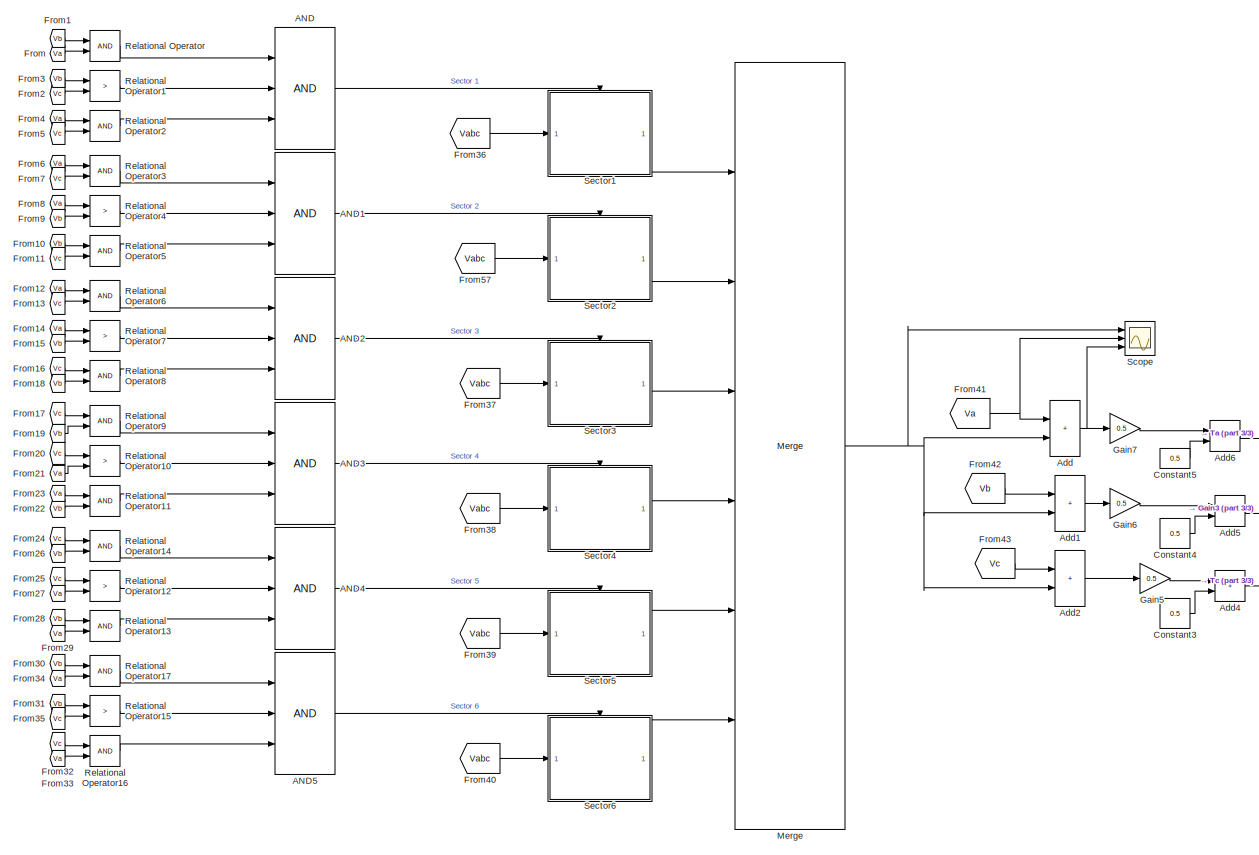
[diagram: Switching/30_deg_Dpwm - part 1/3, center side, full height]
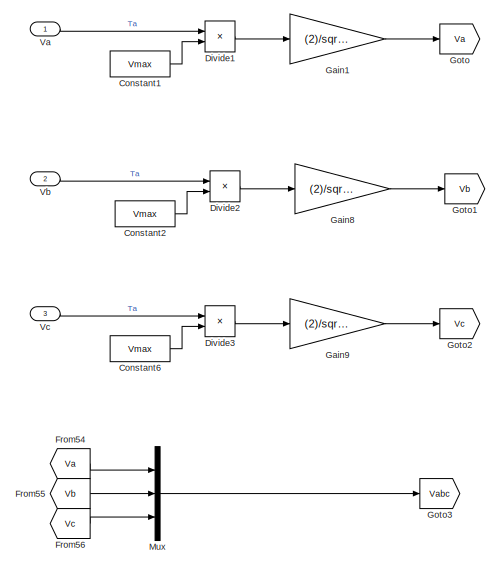
[diagram: Switching/30_deg_Dpwm - part 2/3, middle left region]
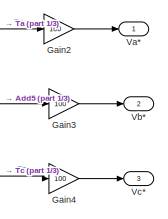
[diagram: Switching/30_deg_Dpwm - part 3/3, middle right region]
BLOCK [SubSystem] Switching/30_deg_Dpwm
  Commented = on
  Ports = [3, 3]
BLOCK [Logic] Switching/30_deg_Dpwm/AND
  AllPortsSameDT = off
  IconShape = distinctive
  Inputs = 3
  OutDataTypeStr = boolean
  Ports = [3, 1]
BLOCK [Logic] Switching/30_deg_Dpwm/AND1
  AllPortsSameDT = off
  IconShape = distinctive
  Inputs = 3
  OutDataTypeStr = boolean
  Ports = [3, 1]
BLOCK [Logic] Switching/30_deg_Dpwm/AND2
  AllPortsSameDT = off
  IconShape = distinctive
  Inputs = 3
  OutDataTypeStr = boolean
  Ports = [3, 1]
BLOCK [Logic] Switching/30_deg_Dpwm/AND3
  AllPortsSameDT = off
  IconShape = distinctive
  Inputs = 3
  OutDataTypeStr = boolean
  Ports = [3, 1]
BLOCK [Logic] Switching/30_deg_Dpwm/AND4
  AllPortsSameDT = off
  IconShape = distinctive
  Inputs = 3
  OutDataTypeStr = boolean
  Ports = [3, 1]
BLOCK [Logic] Switching/30_deg_Dpwm/AND5
  AllPortsSameDT = off
  IconShape = distinctive
  Inputs = 3
  OutDataTypeStr = boolean
  Ports = [3, 1]
BLOCK [Sum] Switching/30_deg_Dpwm/Add
  IconShape = rectangular
  Ports = [2, 1]
BLOCK [Sum] Switching/30_deg_Dpwm/Add1
  IconShape = rectangular
  Ports = [2, 1]
BLOCK [Sum] Switching/30_deg_Dpwm/Add2
  IconShape = rectangular
  Ports = [2, 1]
BLOCK [Sum] Switching/30_deg_Dpwm/Add4
  IconShape = rectangular
  Ports = [2, 1]
BLOCK [Sum] Switching/30_deg_Dpwm/Add5
  IconShape = rectangular
  Ports = [2, 1]
BLOCK [Sum] Switching/30_deg_Dpwm/Add6
  IconShape = rectangular
  Ports = [2, 1]
BLOCK [Constant] Switching/30_deg_Dpwm/Constant1
  Value = Vmax
BLOCK [Constant] Switching/30_deg_Dpwm/Constant2
  Value = Vmax
BLOCK [Constant] Switching/30_deg_Dpwm/Constant3
  Value = 0.5
BLOCK [Constant] Switching/30_deg_Dpwm/Constant4
  Value = 0.5
BLOCK [Constant] Switching/30_deg_Dpwm/Constant5
  Value = 0.5
BLOCK [Constant] Switching/30_deg_Dpwm/Constant6
  Value = Vmax
BLOCK [Product] Switching/30_deg_Dpwm/Divide1
  Inputs = */
  Ports = [2, 1]
BLOCK [Product] Switching/30_deg_Dpwm/Divide2
  Inputs = */
  Ports = [2, 1]
BLOCK [Product] Switching/30_deg_Dpwm/Divide3
  Inputs = */
  Ports = [2, 1]
BLOCK [From] Switching/30_deg_Dpwm/From
  GotoTag = Va
BLOCK [From] Switching/30_deg_Dpwm/From1
  GotoTag = Vb
BLOCK [From] Switching/30_deg_Dpwm/From10
  GotoTag = Vb
BLOCK [From] Switching/30_deg_Dpwm/From11
  GotoTag = Vc
BLOCK [From] Switching/30_deg_Dpwm/From12
  GotoTag = Va
BLOCK [From] Switching/30_deg_Dpwm/From13
  GotoTag = Vc
BLOCK [From] Switching/30_deg_Dpwm/From14
  GotoTag = Va
BLOCK [From] Switching/30_deg_Dpwm/From15
  GotoTag = Vb
BLOCK [From] Switching/30_deg_Dpwm/From16
  GotoTag = Vc
BLOCK [From] Switching/30_deg_Dpwm/From17
  GotoTag = Vc
BLOCK [From] Switching/30_deg_Dpwm/From18
  GotoTag = Vb
BLOCK [From] Switching/30_deg_Dpwm/From19
  GotoTag = Vb
BLOCK [From] Switching/30_deg_Dpwm/From2
  GotoTag = Vc
BLOCK [From] Switching/30_deg_Dpwm/From20
  GotoTag = Vc
BLOCK [From] Switching/30_deg_Dpwm/From21
  GotoTag = Va
BLOCK [From] Switching/30_deg_Dpwm/From22
  GotoTag = Vb
BLOCK [From] Switching/30_deg_Dpwm/From23
  GotoTag = Va
BLOCK [From] Switching/30_deg_Dpwm/From24
  GotoTag = Vc
BLOCK [From] Switching/30_deg_Dpwm/From25
  GotoTag = Vc
BLOCK [From] Switching/30_deg_Dpwm/From26
  GotoTag = Vb
BLOCK [From] Switching/30_deg_Dpwm/From27
  GotoTag = Va
BLOCK [From] Switching/30_deg_Dpwm/From28
  GotoTag = Vb
BLOCK [From] Switching/30_deg_Dpwm/From29
  GotoTag = Va
BLOCK [From] Switching/30_deg_Dpwm/From3
  GotoTag = Vb
BLOCK [From] Switching/30_deg_Dpwm/From30
  GotoTag = Vb
BLOCK [From] Switching/30_deg_Dpwm/From31
  GotoTag = Vb
BLOCK [From] Switching/30_deg_Dpwm/From32
  GotoTag = Vc
BLOCK [From] Switching/30_deg_Dpwm/From33
  GotoTag = Va
BLOCK [From] Switching/30_deg_Dpwm/From34
  GotoTag = Va
BLOCK [From] Switching/30_deg_Dpwm/From35
  GotoTag = Vc
BLOCK [From] Switching/30_deg_Dpwm/From36
  GotoTag = Vabc
BLOCK [From] Switching/30_deg_Dpwm/From37
  GotoTag = Vabc
BLOCK [From] Switching/30_deg_Dpwm/From38
  GotoTag = Vabc
BLOCK [From] Switching/30_deg_Dpwm/From39
  GotoTag = Vabc
BLOCK [From] Switching/30_deg_Dpwm/From4
  GotoTag = Va
BLOCK [From] Switching/30_deg_Dpwm/From40
  GotoTag = Vabc
BLOCK [From] Switching/30_deg_Dpwm/From41
  GotoTag = Va
BLOCK [From] Switching/30_deg_Dpwm/From42
  GotoTag = Vb
BLOCK [From] Switching/30_deg_Dpwm/From43
  GotoTag = Vc
BLOCK [From] Switching/30_deg_Dpwm/From5
  GotoTag = Vc
BLOCK [From] Switching/30_deg_Dpwm/From54
  GotoTag = Va
BLOCK [From] Switching/30_deg_Dpwm/From55
  GotoTag = Vb
BLOCK [From] Switching/30_deg_Dpwm/From56
  GotoTag = Vc
BLOCK [From] Switching/30_deg_Dpwm/From57
  GotoTag = Vabc
BLOCK [From] Switching/30_deg_Dpwm/From6
  GotoTag = Va
BLOCK [From] Switching/30_deg_Dpwm/From7
  GotoTag = Vc
BLOCK [From] Switching/30_deg_Dpwm/From8
  GotoTag = Va
BLOCK [From] Switching/30_deg_Dpwm/From9
  GotoTag = Vb
BLOCK [Gain] Switching/30_deg_Dpwm/Gain1
  Gain = (2)/sqrt(3)
  OutDataTypeStr = Inherit: Same as input
  ParamDataTypeStr = Inherit: Same as input
  RndMeth = Simplest
BLOCK [Gain] Switching/30_deg_Dpwm/Gain2
  Gain = 100
BLOCK [Gain] Switching/30_deg_Dpwm/Gain3
  Gain = 100
BLOCK [Gain] Switching/30_deg_Dpwm/Gain4
  Gain = 100
BLOCK [Gain] Switching/30_deg_Dpwm/Gain5
  Gain = 0.5
BLOCK [Gain] Switching/30_deg_Dpwm/Gain6
  Gain = 0.5
BLOCK [Gain] Switching/30_deg_Dpwm/Gain7
  Gain = 0.5
BLOCK [Gain] Switching/30_deg_Dpwm/Gain8
  Gain = (2)/sqrt(3)
  OutDataTypeStr = Inherit: Same as input
  ParamDataTypeStr = Inherit: Same as input
  RndMeth = Simplest
BLOCK [Gain] Switching/30_deg_Dpwm/Gain9
  Gain = (2)/sqrt(3)
  OutDataTypeStr = Inherit: Same as input
  ParamDataTypeStr = Inherit: Same as input
  RndMeth = Simplest
BLOCK [Goto] Switching/30_deg_Dpwm/Goto
  GotoTag = Va
BLOCK [Goto] Switching/30_deg_Dpwm/Goto1
  GotoTag = Vb
BLOCK [Goto] Switching/30_deg_Dpwm/Goto2
  GotoTag = Vc
BLOCK [Goto] Switching/30_deg_Dpwm/Goto3
  GotoTag = Vabc
BLOCK [Merge] Switching/30_deg_Dpwm/Merge
  Inputs = 6
  Ports = [6, 1]
BLOCK [Mux] Switching/30_deg_Dpwm/Mux
  DisplayOption = bar
  Inputs = 3
  Ports = [3, 1]
BLOCK [RelationalOperator] Switching/30_deg_Dpwm/Relational Operator
  InputSameDT = off
  OutDataTypeStr = boolean
  Ports = [2, 1]
  RndMeth = Simplest
BLOCK [RelationalOperator] Switching/30_deg_Dpwm/Relational Operator1
  InputSameDT = off
  Operator = >
  OutDataTypeStr = boolean
  Ports = [2, 1]
  RndMeth = Simplest
BLOCK [RelationalOperator] Switching/30_deg_Dpwm/Relational Operator10
  InputSameDT = off
  Operator = >
  OutDataTypeStr = boolean
  Ports = [2, 1]
  RndMeth = Simplest
BLOCK [RelationalOperator] Switching/30_deg_Dpwm/Relational Operator11
  InputSameDT = off
  OutDataTypeStr = boolean
  Ports = [2, 1]
  RndMeth = Simplest
BLOCK [RelationalOperator] Switching/30_deg_Dpwm/Relational Operator12
  InputSameDT = off
  Operator = >
  OutDataTypeStr = boolean
  Ports = [2, 1]
  RndMeth = Simplest
BLOCK [RelationalOperator] Switching/30_deg_Dpwm/Relational Operator13
  InputSameDT = off
  OutDataTypeStr = boolean
  Ports = [2, 1]
  RndMeth = Simplest
BLOCK [RelationalOperator] Switching/30_deg_Dpwm/Relational Operator14
  InputSameDT = off
  OutDataTypeStr = boolean
  Ports = [2, 1]
  RndMeth = Simplest
BLOCK [RelationalOperator] Switching/30_deg_Dpwm/Relational Operator15
  InputSameDT = off
  Operator = >
  OutDataTypeStr = boolean
  Ports = [2, 1]
  RndMeth = Simplest
BLOCK [RelationalOperator] Switching/30_deg_Dpwm/Relational Operator16
  InputSameDT = off
  OutDataTypeStr = boolean
  Ports = [2, 1]
  RndMeth = Simplest
BLOCK [RelationalOperator] Switching/30_deg_Dpwm/Relational Operator17
  InputSameDT = off
  OutDataTypeStr = boolean
  Ports = [2, 1]
  RndMeth = Simplest
BLOCK [RelationalOperator] Switching/30_deg_Dpwm/Relational Operator2
  InputSameDT = off
  OutDataTypeStr = boolean
  Ports = [2, 1]
  RndMeth = Simplest
BLOCK [RelationalOperator] Switching/30_deg_Dpwm/Relational Operator3
  InputSameDT = off
  OutDataTypeStr = boolean
  Ports = [2, 1]
  RndMeth = Simplest
BLOCK [RelationalOperator] Switching/30_deg_Dpwm/Relational Operator4
  InputSameDT = off
  Operator = >
  OutDataTypeStr = boolean
  Ports = [2, 1]
  RndMeth = Simplest
BLOCK [RelationalOperator] Switching/30_deg_Dpwm/Relational Operator5
  InputSameDT = off
  OutDataTypeStr = boolean
  Ports = [2, 1]
  RndMeth = Simplest
BLOCK [RelationalOperator] Switching/30_deg_Dpwm/Relational Operator6
  InputSameDT = off
  OutDataTypeStr = boolean
  Ports = [2, 1]
  RndMeth = Simplest
BLOCK [RelationalOperator] Switching/30_deg_Dpwm/Relational Operator7
  InputSameDT = off
  Operator = >
  OutDataTypeStr = boolean
  Ports = [2, 1]
  RndMeth = Simplest
BLOCK [RelationalOperator] Switching/30_deg_Dpwm/Relational Operator8
  InputSameDT = off
  OutDataTypeStr = boolean
  Ports = [2, 1]
  RndMeth = Simplest
BLOCK [RelationalOperator] Switching/30_deg_Dpwm/Relational Operator9
  InputSameDT = off
  OutDataTypeStr = boolean
  Ports = [2, 1]
  RndMeth = Simplest
BLOCK [Scope] Switching/30_deg_Dpwm/Scope
  Floating = off
  NumInputPorts = 3
  Ports = [3]
  ScopeSpecificationString = Simulink.scopes.TimeScopeBlockCfg('CurrentConfiguration', extmgr.ConfigurationSet(extmgr.Configuration('Core','General UI',true),extmgr.Configuration('Core','Source UI',true),extmgr.Configuration('Sources','WiredSimulink',true,'DataLoggingVariableName','ScopeData1'),extmgr.Configuration('Visuals','Time Domain',true,'SerializedDisplays',{struct('MinYLimReal','-1.21107','MaxYLimReal','1.20268','YLab...<+3042ch>
BLOCK [SubSystem] Switching/30_deg_Dpwm/Sector1
  Ports = [1, 1, 1]
  TreatAsAtomicUnit = on
BLOCK [Reference] Switching/30_deg_Dpwm/Sector1/Compare To Zero  REF=simulink/Logic and Bit
Operations/Compare
To Zero
  Ports = [1, 1]
  SourceBlock = simulink/Logic and Bit\nOperations/Compare\nTo Zero
  SourceType = Compare To Zero
BLOCK [Reference] Switching/30_deg_Dpwm/Sector1/Compare To Zero1  REF=simulink/Logic and Bit
Operations/Compare
To Zero
  Ports = [1, 1]
  SourceBlock = simulink/Logic and Bit\nOperations/Compare\nTo Zero
  SourceType = Compare To Zero
BLOCK [Demux] Switching/30_deg_Dpwm/Sector1/Demux
  Outputs = 3
  Ports = [1, 3]
BLOCK [EnablePort] Switching/30_deg_Dpwm/Sector1/Enable
  Ports = []
BLOCK [SubSystem] Switching/30_deg_Dpwm/Sector1/Enabled Subsystem
  Ports = [1, 1, 1]
  TreatAsAtomicUnit = on
BLOCK [Sum] Switching/30_deg_Dpwm/Sector1/Enabled Subsystem/Add
  IconShape = rectangular
  Inputs = -+
  Ports = [2, 1]
BLOCK [Constant] Switching/30_deg_Dpwm/Sector1/Enabled Subsystem/Constant
  Value = -1
BLOCK [Demux] Switching/30_deg_Dpwm/Sector1/Enabled Subsystem/Demux
  Outputs = 3
  Ports = [1, 3]
BLOCK [EnablePort] Switching/30_deg_Dpwm/Sector1/Enabled Subsystem/Enable
  Ports = []
BLOCK [Outport] Switching/30_deg_Dpwm/Sector1/Enabled Subsystem/Out1
BLOCK [Terminator] Switching/30_deg_Dpwm/Sector1/Enabled Subsystem/Terminator
BLOCK [Terminator] Switching/30_deg_Dpwm/Sector1/Enabled Subsystem/Terminator1
BLOCK [Inport] Switching/30_deg_Dpwm/Sector1/Enabled Subsystem/Vabc
BLOCK [SubSystem] Switching/30_deg_Dpwm/Sector1/Enabled Subsystem1
  Ports = [1, 1, 1]
  TreatAsAtomicUnit = on
BLOCK [Sum] Switching/30_deg_Dpwm/Sector1/Enabled Subsystem1/Add
  IconShape = rectangular
  Inputs = -+
  Ports = [2, 1]
BLOCK [Constant] Switching/30_deg_Dpwm/Sector1/Enabled Subsystem1/Constant
BLOCK [Demux] Switching/30_deg_Dpwm/Sector1/Enabled Subsystem1/Demux
  Outputs = 3
  Ports = [1, 3]
BLOCK [EnablePort] Switching/30_deg_Dpwm/Sector1/Enabled Subsystem1/Enable
  Ports = []
BLOCK [Outport] Switching/30_deg_Dpwm/Sector1/Enabled Subsystem1/Out1
BLOCK [Terminator] Switching/30_deg_Dpwm/Sector1/Enabled Subsystem1/Terminator
BLOCK [Terminator] Switching/30_deg_Dpwm/Sector1/Enabled Subsystem1/Terminator1
BLOCK [Inport] Switching/30_deg_Dpwm/Sector1/Enabled Subsystem1/Vabc
BLOCK [Merge] Switching/30_deg_Dpwm/Sector1/Merge
  Ports = [2, 1]
BLOCK [Outport] Switching/30_deg_Dpwm/Sector1/Out1
BLOCK [Terminator] Switching/30_deg_Dpwm/Sector1/Terminator
BLOCK [Terminator] Switching/30_deg_Dpwm/Sector1/Terminator1
BLOCK [Inport] Switching/30_deg_Dpwm/Sector1/Vabc
BLOCK [SubSystem] Switching/30_deg_Dpwm/Sector2
  Ports = [1, 1, 1]
  TreatAsAtomicUnit = on
BLOCK [Reference] Switching/30_deg_Dpwm/Sector2/Compare To Zero  REF=simulink/Logic and Bit
Operations/Compare
To Zero
  Ports = [1, 1]
  SourceBlock = simulink/Logic and Bit\nOperations/Compare\nTo Zero
  SourceType = Compare To Zero
BLOCK [Reference] Switching/30_deg_Dpwm/Sector2/Compare To Zero1  REF=simulink/Logic and Bit
Operations/Compare
To Zero
  Ports = [1, 1]
  SourceBlock = simulink/Logic and Bit\nOperations/Compare\nTo Zero
  SourceType = Compare To Zero
BLOCK [Demux] Switching/30_deg_Dpwm/Sector2/Demux
  Outputs = 3
  Ports = [1, 3]
BLOCK [EnablePort] Switching/30_deg_Dpwm/Sector2/Enable
  Ports = []
BLOCK [SubSystem] Switching/30_deg_Dpwm/Sector2/Enabled Subsystem
  Ports = [1, 1, 1]
  TreatAsAtomicUnit = on
BLOCK [Sum] Switching/30_deg_Dpwm/Sector2/Enabled Subsystem/Add
  IconShape = rectangular
  Inputs = -+
  Ports = [2, 1]
BLOCK [Constant] Switching/30_deg_Dpwm/Sector2/Enabled Subsystem/Constant
  Value = -1
BLOCK [Demux] Switching/30_deg_Dpwm/Sector2/Enabled Subsystem/Demux
  Outputs = 3
  Ports = [1, 3]
BLOCK [EnablePort] Switching/30_deg_Dpwm/Sector2/Enabled Subsystem/Enable
  Ports = []
BLOCK [Outport] Switching/30_deg_Dpwm/Sector2/Enabled Subsystem/Out1
BLOCK [Terminator] Switching/30_deg_Dpwm/Sector2/Enabled Subsystem/Terminator
BLOCK [Terminator] Switching/30_deg_Dpwm/Sector2/Enabled Subsystem/Terminator1
BLOCK [Inport] Switching/30_deg_Dpwm/Sector2/Enabled Subsystem/Vabc
BLOCK [SubSystem] Switching/30_deg_Dpwm/Sector2/Enabled Subsystem1
  Ports = [1, 1, 1]
  TreatAsAtomicUnit = on
BLOCK [Sum] Switching/30_deg_Dpwm/Sector2/Enabled Subsystem1/Add
  IconShape = rectangular
  Inputs = -+
  Ports = [2, 1]
BLOCK [Constant] Switching/30_deg_Dpwm/Sector2/Enabled Subsystem1/Constant
BLOCK [Demux] Switching/30_deg_Dpwm/Sector2/Enabled Subsystem1/Demux
  Outputs = 3
  Ports = [1, 3]
BLOCK [EnablePort] Switching/30_deg_Dpwm/Sector2/Enabled Subsystem1/Enable
  Ports = []
BLOCK [Outport] Switching/30_deg_Dpwm/Sector2/Enabled Subsystem1/Out1
BLOCK [Terminator] Switching/30_deg_Dpwm/Sector2/Enabled Subsystem1/Terminator
BLOCK [Terminator] Switching/30_deg_Dpwm/Sector2/Enabled Subsystem1/Terminator1
BLOCK [Inport] Switching/30_deg_Dpwm/Sector2/Enabled Subsystem1/Vabc
BLOCK [Merge] Switching/30_deg_Dpwm/Sector2/Merge
  Ports = [2, 1]
BLOCK [Outport] Switching/30_deg_Dpwm/Sector2/Out1
BLOCK [Terminator] Switching/30_deg_Dpwm/Sector2/Terminator
BLOCK [Terminator] Switching/30_deg_Dpwm/Sector2/Terminator1
BLOCK [Inport] Switching/30_deg_Dpwm/Sector2/Vabc
BLOCK [SubSystem] Switching/30_deg_Dpwm/Sector3
  Ports = [1, 1, 1]
  TreatAsAtomicUnit = on
BLOCK [Reference] Switching/30_deg_Dpwm/Sector3/Compare To Zero  REF=simulink/Logic and Bit
Operations/Compare
To Zero
  Ports = [1, 1]
  SourceBlock = simulink/Logic and Bit\nOperations/Compare\nTo Zero
  SourceType = Compare To Zero
BLOCK [Reference] Switching/30_deg_Dpwm/Sector3/Compare To Zero1  REF=simulink/Logic and Bit
Operations/Compare
To Zero
  Ports = [1, 1]
  SourceBlock = simulink/Logic and Bit\nOperations/Compare\nTo Zero
  SourceType = Compare To Zero
BLOCK [Demux] Switching/30_deg_Dpwm/Sector3/Demux
  Outputs = 3
  Ports = [1, 3]
BLOCK [EnablePort] Switching/30_deg_Dpwm/Sector3/Enable
  Ports = []
BLOCK [SubSystem] Switching/30_deg_Dpwm/Sector3/Enabled Subsystem
  Ports = [1, 1, 1]
  TreatAsAtomicUnit = on
BLOCK [Sum] Switching/30_deg_Dpwm/Sector3/Enabled Subsystem/Add
  IconShape = rectangular
  Inputs = -+
  Ports = [2, 1]
BLOCK [Constant] Switching/30_deg_Dpwm/Sector3/Enabled Subsystem/Constant
  Value = -1
BLOCK [Demux] Switching/30_deg_Dpwm/Sector3/Enabled Subsystem/Demux
  Outputs = 3
  Ports = [1, 3]
BLOCK [EnablePort] Switching/30_deg_Dpwm/Sector3/Enabled Subsystem/Enable
  Ports = []
BLOCK [Outport] Switching/30_deg_Dpwm/Sector3/Enabled Subsystem/Out1
BLOCK [Terminator] Switching/30_deg_Dpwm/Sector3/Enabled Subsystem/Terminator
BLOCK [Terminator] Switching/30_deg_Dpwm/Sector3/Enabled Subsystem/Terminator1
BLOCK [Inport] Switching/30_deg_Dpwm/Sector3/Enabled Subsystem/Vabc
BLOCK [SubSystem] Switching/30_deg_Dpwm/Sector3/Enabled Subsystem1
  Ports = [1, 1, 1]
  TreatAsAtomicUnit = on
BLOCK [Sum] Switching/30_deg_Dpwm/Sector3/Enabled Subsystem1/Add
  IconShape = rectangular
  Inputs = -+
  Ports = [2, 1]
BLOCK [Constant] Switching/30_deg_Dpwm/Sector3/Enabled Subsystem1/Constant
BLOCK [Demux] Switching/30_deg_Dpwm/Sector3/Enabled Subsystem1/Demux
  Outputs = 3
  Ports = [1, 3]
BLOCK [EnablePort] Switching/30_deg_Dpwm/Sector3/Enabled Subsystem1/Enable
  Ports = []
BLOCK [Outport] Switching/30_deg_Dpwm/Sector3/Enabled Subsystem1/Out1
BLOCK [Terminator] Switching/30_deg_Dpwm/Sector3/Enabled Subsystem1/Terminator
BLOCK [Terminator] Switching/30_deg_Dpwm/Sector3/Enabled Subsystem1/Terminator1
BLOCK [Inport] Switching/30_deg_Dpwm/Sector3/Enabled Subsystem1/Vabc
BLOCK [Merge] Switching/30_deg_Dpwm/Sector3/Merge
  Ports = [2, 1]
BLOCK [Outport] Switching/30_deg_Dpwm/Sector3/Out1
BLOCK [Terminator] Switching/30_deg_Dpwm/Sector3/Terminator
BLOCK [Terminator] Switching/30_deg_Dpwm/Sector3/Terminator1
BLOCK [Inport] Switching/30_deg_Dpwm/Sector3/Vabc
BLOCK [SubSystem] Switching/30_deg_Dpwm/Sector4
  Ports = [1, 1, 1]
  TreatAsAtomicUnit = on
BLOCK [Reference] Switching/30_deg_Dpwm/Sector4/Compare To Zero  REF=simulink/Logic and Bit
Operations/Compare
To Zero
  Ports = [1, 1]
  SourceBlock = simulink/Logic and Bit\nOperations/Compare\nTo Zero
  SourceType = Compare To Zero
BLOCK [Reference] Switching/30_deg_Dpwm/Sector4/Compare To Zero1  REF=simulink/Logic and Bit
Operations/Compare
To Zero
  Ports = [1, 1]
  SourceBlock = simulink/Logic and Bit\nOperations/Compare\nTo Zero
  SourceType = Compare To Zero
BLOCK [Demux] Switching/30_deg_Dpwm/Sector4/Demux
  Outputs = 3
  Ports = [1, 3]
BLOCK [EnablePort] Switching/30_deg_Dpwm/Sector4/Enable
  Ports = []
BLOCK [SubSystem] Switching/30_deg_Dpwm/Sector4/Enabled Subsystem
  Ports = [1, 1, 1]
  TreatAsAtomicUnit = on
BLOCK [Sum] Switching/30_deg_Dpwm/Sector4/Enabled Subsystem/Add
  IconShape = rectangular
  Inputs = -+
  Ports = [2, 1]
BLOCK [Constant] Switching/30_deg_Dpwm/Sector4/Enabled Subsystem/Constant
  Value = -1
BLOCK [Demux] Switching/30_deg_Dpwm/Sector4/Enabled Subsystem/Demux
  Outputs = 3
  Ports = [1, 3]
BLOCK [EnablePort] Switching/30_deg_Dpwm/Sector4/Enabled Subsystem/Enable
  Ports = []
BLOCK [Outport] Switching/30_deg_Dpwm/Sector4/Enabled Subsystem/Out1
BLOCK [Terminator] Switching/30_deg_Dpwm/Sector4/Enabled Subsystem/Terminator
BLOCK [Terminator] Switching/30_deg_Dpwm/Sector4/Enabled Subsystem/Terminator1
BLOCK [Inport] Switching/30_deg_Dpwm/Sector4/Enabled Subsystem/Vabc
BLOCK [SubSystem] Switching/30_deg_Dpwm/Sector4/Enabled Subsystem1
  Ports = [1, 1, 1]
  TreatAsAtomicUnit = on
BLOCK [Sum] Switching/30_deg_Dpwm/Sector4/Enabled Subsystem1/Add
  IconShape = rectangular
  Inputs = -+
  Ports = [2, 1]
BLOCK [Constant] Switching/30_deg_Dpwm/Sector4/Enabled Subsystem1/Constant
BLOCK [Demux] Switching/30_deg_Dpwm/Sector4/Enabled Subsystem1/Demux
  Outputs = 3
  Ports = [1, 3]
BLOCK [EnablePort] Switching/30_deg_Dpwm/Sector4/Enabled Subsystem1/Enable
  Ports = []
BLOCK [Outport] Switching/30_deg_Dpwm/Sector4/Enabled Subsystem1/Out1
BLOCK [Terminator] Switching/30_deg_Dpwm/Sector4/Enabled Subsystem1/Terminator
BLOCK [Terminator] Switching/30_deg_Dpwm/Sector4/Enabled Subsystem1/Terminator1
BLOCK [Inport] Switching/30_deg_Dpwm/Sector4/Enabled Subsystem1/Vabc
BLOCK [Merge] Switching/30_deg_Dpwm/Sector4/Merge
  Ports = [2, 1]
BLOCK [Outport] Switching/30_deg_Dpwm/Sector4/Out1
BLOCK [Terminator] Switching/30_deg_Dpwm/Sector4/Terminator
BLOCK [Terminator] Switching/30_deg_Dpwm/Sector4/Terminator1
BLOCK [Inport] Switching/30_deg_Dpwm/Sector4/Vabc
BLOCK [SubSystem] Switching/30_deg_Dpwm/Sector5
  Ports = [1, 1, 1]
  TreatAsAtomicUnit = on
BLOCK [Reference] Switching/30_deg_Dpwm/Sector5/Compare To Zero  REF=simulink/Logic and Bit
Operations/Compare
To Zero
  Ports = [1, 1]
  SourceBlock = simulink/Logic and Bit\nOperations/Compare\nTo Zero
  SourceType = Compare To Zero
BLOCK [Reference] Switching/30_deg_Dpwm/Sector5/Compare To Zero1  REF=simulink/Logic and Bit
Operations/Compare
To Zero
  Ports = [1, 1]
  SourceBlock = simulink/Logic and Bit\nOperations/Compare\nTo Zero
  SourceType = Compare To Zero
BLOCK [Demux] Switching/30_deg_Dpwm/Sector5/Demux
  Outputs = 3
  Ports = [1, 3]
BLOCK [EnablePort] Switching/30_deg_Dpwm/Sector5/Enable
  Ports = []
BLOCK [SubSystem] Switching/30_deg_Dpwm/Sector5/Enabled Subsystem
  Ports = [1, 1, 1]
  TreatAsAtomicUnit = on
BLOCK [Sum] Switching/30_deg_Dpwm/Sector5/Enabled Subsystem/Add
  IconShape = rectangular
  Inputs = -+
  Ports = [2, 1]
BLOCK [Constant] Switching/30_deg_Dpwm/Sector5/Enabled Subsystem/Constant
  Value = -1
BLOCK [Demux] Switching/30_deg_Dpwm/Sector5/Enabled Subsystem/Demux
  Outputs = 3
  Ports = [1, 3]
BLOCK [EnablePort] Switching/30_deg_Dpwm/Sector5/Enabled Subsystem/Enable
  Ports = []
BLOCK [Outport] Switching/30_deg_Dpwm/Sector5/Enabled Subsystem/Out1
BLOCK [Terminator] Switching/30_deg_Dpwm/Sector5/Enabled Subsystem/Terminator
BLOCK [Terminator] Switching/30_deg_Dpwm/Sector5/Enabled Subsystem/Terminator1
BLOCK [Inport] Switching/30_deg_Dpwm/Sector5/Enabled Subsystem/Vabc
BLOCK [SubSystem] Switching/30_deg_Dpwm/Sector5/Enabled Subsystem1
  Ports = [1, 1, 1]
  TreatAsAtomicUnit = on
BLOCK [Sum] Switching/30_deg_Dpwm/Sector5/Enabled Subsystem1/Add
  IconShape = rectangular
  Inputs = -+
  Ports = [2, 1]
BLOCK [Constant] Switching/30_deg_Dpwm/Sector5/Enabled Subsystem1/Constant
BLOCK [Demux] Switching/30_deg_Dpwm/Sector5/Enabled Subsystem1/Demux
  Outputs = 3
  Ports = [1, 3]
BLOCK [EnablePort] Switching/30_deg_Dpwm/Sector5/Enabled Subsystem1/Enable
  Ports = []
BLOCK [Outport] Switching/30_deg_Dpwm/Sector5/Enabled Subsystem1/Out1
BLOCK [Terminator] Switching/30_deg_Dpwm/Sector5/Enabled Subsystem1/Terminator
BLOCK [Terminator] Switching/30_deg_Dpwm/Sector5/Enabled Subsystem1/Terminator1
BLOCK [Inport] Switching/30_deg_Dpwm/Sector5/Enabled Subsystem1/Vabc
BLOCK [Merge] Switching/30_deg_Dpwm/Sector5/Merge
  Ports = [2, 1]
BLOCK [Outport] Switching/30_deg_Dpwm/Sector5/Out1
BLOCK [Terminator] Switching/30_deg_Dpwm/Sector5/Terminator
BLOCK [Terminator] Switching/30_deg_Dpwm/Sector5/Terminator1
BLOCK [Inport] Switching/30_deg_Dpwm/Sector5/Vabc
BLOCK [SubSystem] Switching/30_deg_Dpwm/Sector6
  Ports = [1, 1, 1]
  TreatAsAtomicUnit = on
BLOCK [Reference] Switching/30_deg_Dpwm/Sector6/Compare To Zero  REF=simulink/Logic and Bit
Operations/Compare
To Zero
  Ports = [1, 1]
  SourceBlock = simulink/Logic and Bit\nOperations/Compare\nTo Zero
  SourceType = Compare To Zero
BLOCK [Reference] Switching/30_deg_Dpwm/Sector6/Compare To Zero1  REF=simulink/Logic and Bit
Operations/Compare
To Zero
  Ports = [1, 1]
  SourceBlock = simulink/Logic and Bit\nOperations/Compare\nTo Zero
  SourceType = Compare To Zero
BLOCK [Demux] Switching/30_deg_Dpwm/Sector6/Demux
  Outputs = 3
  Ports = [1, 3]
BLOCK [EnablePort] Switching/30_deg_Dpwm/Sector6/Enable
  Ports = []
BLOCK [SubSystem] Switching/30_deg_Dpwm/Sector6/Enabled Subsystem
  Ports = [1, 1, 1]
  TreatAsAtomicUnit = on
BLOCK [Sum] Switching/30_deg_Dpwm/Sector6/Enabled Subsystem/Add
  IconShape = rectangular
  Inputs = -+
  Ports = [2, 1]
BLOCK [Constant] Switching/30_deg_Dpwm/Sector6/Enabled Subsystem/Constant
  Value = -1
BLOCK [Demux] Switching/30_deg_Dpwm/Sector6/Enabled Subsystem/Demux
  Outputs = 3
  Ports = [1, 3]
BLOCK [EnablePort] Switching/30_deg_Dpwm/Sector6/Enabled Subsystem/Enable
  Ports = []
BLOCK [Outport] Switching/30_deg_Dpwm/Sector6/Enabled Subsystem/Out1
BLOCK [Terminator] Switching/30_deg_Dpwm/Sector6/Enabled Subsystem/Terminator
BLOCK [Terminator] Switching/30_deg_Dpwm/Sector6/Enabled Subsystem/Terminator1
BLOCK [Inport] Switching/30_deg_Dpwm/Sector6/Enabled Subsystem/Vabc
BLOCK [SubSystem] Switching/30_deg_Dpwm/Sector6/Enabled Subsystem1
  Ports = [1, 1, 1]
  TreatAsAtomicUnit = on
BLOCK [Sum] Switching/30_deg_Dpwm/Sector6/Enabled Subsystem1/Add
  IconShape = rectangular
  Inputs = -+
  Ports = [2, 1]
BLOCK [Constant] Switching/30_deg_Dpwm/Sector6/Enabled Subsystem1/Constant
BLOCK [Demux] Switching/30_deg_Dpwm/Sector6/Enabled Subsystem1/Demux
  Outputs = 3
  Ports = [1, 3]
BLOCK [EnablePort] Switching/30_deg_Dpwm/Sector6/Enabled Subsystem1/Enable
  Ports = []
BLOCK [Outport] Switching/30_deg_Dpwm/Sector6/Enabled Subsystem1/Out1
BLOCK [Terminator] Switching/30_deg_Dpwm/Sector6/Enabled Subsystem1/Terminator
BLOCK [Terminator] Switching/30_deg_Dpwm/Sector6/Enabled Subsystem1/Terminator1
BLOCK [Inport] Switching/30_deg_Dpwm/Sector6/Enabled Subsystem1/Vabc
BLOCK [Merge] Switching/30_deg_Dpwm/Sector6/Merge
  Ports = [2, 1]
BLOCK [Outport] Switching/30_deg_Dpwm/Sector6/Out1
BLOCK [Terminator] Switching/30_deg_Dpwm/Sector6/Terminator
BLOCK [Terminator] Switching/30_deg_Dpwm/Sector6/Terminator1
BLOCK [Inport] Switching/30_deg_Dpwm/Sector6/Vabc
BLOCK [Inport] Switching/30_deg_Dpwm/Va
BLOCK [Outport] Switching/30_deg_Dpwm/Va*
BLOCK [Inport] Switching/30_deg_Dpwm/Vb
  Port = 2
BLOCK [Outport] Switching/30_deg_Dpwm/Vb*
  Port = 2
BLOCK [Inport] Switching/30_deg_Dpwm/Vc
  Port = 3
BLOCK [Outport] Switching/30_deg_Dpwm/Vc*
  Port = 3
BLOCK [SubSystem] Switching/60deg_+30_shifted
  Commented = on
  Ports = [3, 3]
BLOCK [Logic] Switching/60deg_+30_shifted/AND
  AllPortsSameDT = off
  IconShape = distinctive
  Inputs = 3
  OutDataTypeStr = boolean
  Ports = [3, 1]
BLOCK [Logic] Switching/60deg_+30_shifted/AND1
  AllPortsSameDT = off
  IconShape = distinctive
  Inputs = 3
  OutDataTypeStr = boolean
  Ports = [3, 1]
BLOCK [Logic] Switching/60deg_+30_shifted/AND2
  AllPortsSameDT = off
  IconShape = distinctive
  Inputs = 3
  OutDataTypeStr = boolean
  Ports = [3, 1]
BLOCK [Logic] Switching/60deg_+30_shifted/AND3
  AllPortsSameDT = off
  IconShape = distinctive
  Inputs = 3
  OutDataTypeStr = boolean
  Ports = [3, 1]
BLOCK [Logic] Switching/60deg_+30_shifted/AND4
  AllPortsSameDT = off
  IconShape = distinctive
  Inputs = 3
  OutDataTypeStr = boolean
  Ports = [3, 1]
BLOCK [Logic] Switching/60deg_+30_shifted/AND5
  AllPortsSameDT = off
  IconShape = distinctive
  Inputs = 3
  OutDataTypeStr = boolean
  Ports = [3, 1]
BLOCK [Sum] Switching/60deg_+30_shifted/Add
  IconShape = rectangular
  Ports = [2, 1]
BLOCK [Sum] Switching/60deg_+30_shifted/Add1
  IconShape = rectangular
  Ports = [2, 1]
BLOCK [Sum] Switching/60deg_+30_shifted/Add2
  IconShape = rectangular
  Ports = [2, 1]
BLOCK [Sum] Switching/60deg_+30_shifted/Add4
  IconShape = rectangular
  Ports = [2, 1]
BLOCK [Sum] Switching/60deg_+30_shifted/Add5
  IconShape = rectangular
  Ports = [2, 1]
BLOCK [Sum] Switching/60deg_+30_shifted/Add6
  IconShape = rectangular
  Ports = [2, 1]
BLOCK [Constant] Switching/60deg_+30_shifted/Constant3
  Value = 0.5
BLOCK [Constant] Switching/60deg_+30_shifted/Constant4
  Value = 0.5
BLOCK [Constant] Switching/60deg_+30_shifted/Constant5
  Value = 0.5
BLOCK [From] Switching/60deg_+30_shifted/From
  GotoTag = Va
BLOCK [From] Switching/60deg_+30_shifted/From1
  GotoTag = Vb
BLOCK [From] Switching/60deg_+30_shifted/From10
  GotoTag = Vb
BLOCK [From] Switching/60deg_+30_shifted/From11
  GotoTag = Vc
BLOCK [From] Switching/60deg_+30_shifted/From12
  GotoTag = Va
BLOCK [From] Switching/60deg_+30_shifted/From13
  GotoTag = Vc
BLOCK [From] Switching/60deg_+30_shifted/From14
  GotoTag = Va
BLOCK [From] Switching/60deg_+30_shifted/From15
  GotoTag = Vb
BLOCK [From] Switching/60deg_+30_shifted/From16
  GotoTag = Vc
BLOCK [From] Switching/60deg_+30_shifted/From17
  GotoTag = Vc
BLOCK [From] Switching/60deg_+30_shifted/From18
  GotoTag = Vb
BLOCK [From] Switching/60deg_+30_shifted/From19
  GotoTag = Vb
BLOCK [From] Switching/60deg_+30_shifted/From2
  GotoTag = Vc
BLOCK [From] Switching/60deg_+30_shifted/From20
  GotoTag = Vc
BLOCK [From] Switching/60deg_+30_shifted/From21
  GotoTag = Va
BLOCK [From] Switching/60deg_+30_shifted/From22
  GotoTag = Vb
BLOCK [From] Switching/60deg_+30_shifted/From23
  GotoTag = Va
BLOCK [From] Switching/60deg_+30_shifted/From24
  GotoTag = Vc
BLOCK [From] Switching/60deg_+30_shifted/From25
  GotoTag = Vc
BLOCK [From] Switching/60deg_+30_shifted/From26
  GotoTag = Vb
BLOCK [From] Switching/60deg_+30_shifted/From27
  GotoTag = Va
BLOCK [From] Switching/60deg_+30_shifted/From28
  GotoTag = Vb
BLOCK [From] Switching/60deg_+30_shifted/From29
  GotoTag = Va
BLOCK [From] Switching/60deg_+30_shifted/From3
  GotoTag = Vb
BLOCK [From] Switching/60deg_+30_shifted/From30
  GotoTag = Vb
BLOCK [From] Switching/60deg_+30_shifted/From31
  GotoTag = Vb
BLOCK [From] Switching/60deg_+30_shifted/From32
  GotoTag = Vc
BLOCK [From] Switching/60deg_+30_shifted/From33
  GotoTag = Va
BLOCK [From] Switching/60deg_+30_shifted/From34
  GotoTag = Va
BLOCK [From] Switching/60deg_+30_shifted/From35
  GotoTag = Vc
BLOCK [From] Switching/60deg_+30_shifted/From36
  GotoTag = Vabc
BLOCK [From] Switching/60deg_+30_shifted/From37
  GotoTag = Vabc
BLOCK [From] Switching/60deg_+30_shifted/From38
  GotoTag = Vabc
BLOCK [From] Switching/60deg_+30_shifted/From39
  GotoTag = Vabc
BLOCK [From] Switching/60deg_+30_shifted/From4
  GotoTag = Va
BLOCK [From] Switching/60deg_+30_shifted/From40
  GotoTag = Vabc
BLOCK [From] Switching/60deg_+30_shifted/From41
  GotoTag = Va
BLOCK [From] Switching/60deg_+30_shifted/From42
  GotoTag = Vb
BLOCK [From] Switching/60deg_+30_shifted/From43
  GotoTag = Vc
BLOCK [From] Switching/60deg_+30_shifted/From5
  GotoTag = Vc
BLOCK [From] Switching/60deg_+30_shifted/From54
  GotoTag = Va
BLOCK [From] Switching/60deg_+30_shifted/From55
  GotoTag = Vb
BLOCK [From] Switching/60deg_+30_shifted/From56
  GotoTag = Vc
BLOCK [From] Switching/60deg_+30_shifted/From57
  GotoTag = Vabc
BLOCK [From] Switching/60deg_+30_shifted/From6
  GotoTag = Va
BLOCK [From] Switching/60deg_+30_shifted/From7
  GotoTag = Vc
BLOCK [From] Switching/60deg_+30_shifted/From8
  GotoTag = Va
BLOCK [From] Switching/60deg_+30_shifted/From9
  GotoTag = Vb
BLOCK [Gain] Switching/60deg_+30_shifted/Gain1
  Gain = (2)/sqrt(3)
  OutDataTypeStr = Inherit: Same as input
  ParamDataTypeStr = Inherit: Same as input
  RndMeth = Simplest
BLOCK [Gain] Switching/60deg_+30_shifted/Gain2
  Gain = 100
BLOCK [Gain] Switching/60deg_+30_shifted/Gain3
  Gain = 100
BLOCK [Gain] Switching/60deg_+30_shifted/Gain4
  Gain = 100
BLOCK [Gain] Switching/60deg_+30_shifted/Gain5
  Gain = 0.5
BLOCK [Gain] Switching/60deg_+30_shifted/Gain6
  Gain = 0.5
BLOCK [Gain] Switching/60deg_+30_shifted/Gain7
  Gain = 0.5
BLOCK [Gain] Switching/60deg_+30_shifted/Gain8
  Gain = (2)/sqrt(3)
  OutDataTypeStr = Inherit: Same as input
  ParamDataTypeStr = Inherit: Same as input
  RndMeth = Simplest
BLOCK [Gain] Switching/60deg_+30_shifted/Gain9
  Gain = (2)/sqrt(3)
  OutDataTypeStr = Inherit: Same as input
  ParamDataTypeStr = Inherit: Same as input
  RndMeth = Simplest
BLOCK [Goto] Switching/60deg_+30_shifted/Goto
  GotoTag = Va
BLOCK [Goto] Switching/60deg_+30_shifted/Goto1
  GotoTag = Vb
BLOCK [Goto] Switching/60deg_+30_shifted/Goto2
  GotoTag = Vc
BLOCK [Goto] Switching/60deg_+30_shifted/Goto3
  GotoTag = Vabc
BLOCK [Merge] Switching/60deg_+30_shifted/Merge
  Inputs = 6
  Ports = [6, 1]
BLOCK [Mux] Switching/60deg_+30_shifted/Mux
  DisplayOption = bar
  Inputs = 3
  Ports = [3, 1]
BLOCK [RelationalOperator] Switching/60deg_+30_shifted/Relational Operator
  InputSameDT = off
  OutDataTypeStr = boolean
  Ports = [2, 1]
  RndMeth = Simplest
BLOCK [RelationalOperator] Switching/60deg_+30_shifted/Relational Operator1
  InputSameDT = off
  OutDataTypeStr = boolean
  Ports = [2, 1]
  RndMeth = Simplest
BLOCK [RelationalOperator] Switching/60deg_+30_shifted/Relational Operator10
  InputSameDT = off
  OutDataTypeStr = boolean
  Ports = [2, 1]
  RndMeth = Simplest
BLOCK [RelationalOperator] Switching/60deg_+30_shifted/Relational Operator11
  InputSameDT = off
  OutDataTypeStr = boolean
  Ports = [2, 1]
  RndMeth = Simplest
BLOCK [RelationalOperator] Switching/60deg_+30_shifted/Relational Operator12
  InputSameDT = off
  OutDataTypeStr = boolean
  Ports = [2, 1]
  RndMeth = Simplest
BLOCK [RelationalOperator] Switching/60deg_+30_shifted/Relational Operator13
  InputSameDT = off
  OutDataTypeStr = boolean
  Ports = [2, 1]
  RndMeth = Simplest
BLOCK [RelationalOperator] Switching/60deg_+30_shifted/Relational Operator14
  InputSameDT = off
  OutDataTypeStr = boolean
  Ports = [2, 1]
  RndMeth = Simplest
BLOCK [RelationalOperator] Switching/60deg_+30_shifted/Relational Operator15
  InputSameDT = off
  OutDataTypeStr = boolean
  Ports = [2, 1]
  RndMeth = Simplest
BLOCK [RelationalOperator] Switching/60deg_+30_shifted/Relational Operator16
  InputSameDT = off
  OutDataTypeStr = boolean
  Ports = [2, 1]
  RndMeth = Simplest
BLOCK [RelationalOperator] Switching/60deg_+30_shifted/Relational Operator17
  InputSameDT = off
  OutDataTypeStr = boolean
  Ports = [2, 1]
  RndMeth = Simplest
BLOCK [RelationalOperator] Switching/60deg_+30_shifted/Relational Operator2
  InputSameDT = off
  OutDataTypeStr = boolean
  Ports = [2, 1]
  RndMeth = Simplest
BLOCK [RelationalOperator] Switching/60deg_+30_shifted/Relational Operator3
  InputSameDT = off
  OutDataTypeStr = boolean
  Ports = [2, 1]
  RndMeth = Simplest
BLOCK [RelationalOperator] Switching/60deg_+30_shifted/Relational Operator4
  InputSameDT = off
  OutDataTypeStr = boolean
  Ports = [2, 1]
  RndMeth = Simplest
BLOCK [RelationalOperator] Switching/60deg_+30_shifted/Relational Operator5
  InputSameDT = off
  OutDataTypeStr = boolean
  Ports = [2, 1]
  RndMeth = Simplest
BLOCK [RelationalOperator] Switching/60deg_+30_shifted/Relational Operator6
  InputSameDT = off
  OutDataTypeStr = boolean
  Ports = [2, 1]
  RndMeth = Simplest
BLOCK [RelationalOperator] Switching/60deg_+30_shifted/Relational Operator7
  InputSameDT = off
  OutDataTypeStr = boolean
  Ports = [2, 1]
  RndMeth = Simplest
BLOCK [RelationalOperator] Switching/60deg_+30_shifted/Relational Operator8
  InputSameDT = off
  OutDataTypeStr = boolean
  Ports = [2, 1]
  RndMeth = Simplest
BLOCK [RelationalOperator] Switching/60deg_+30_shifted/Relational Operator9
  InputSameDT = off
  OutDataTypeStr = boolean
  Ports = [2, 1]
  RndMeth = Simplest
BLOCK [Scope] Switching/60deg_+30_shifted/Scope
  Floating = off
  NumInputPorts = 3
  Ports = [3]
  ScopeSpecificationString = Simulink.scopes.TimeScopeBlockCfg('CurrentConfiguration', extmgr.ConfigurationSet(extmgr.Configuration('Core','General UI',true),extmgr.Configuration('Core','Source UI',true),extmgr.Configuration('Sources','WiredSimulink',true,'DataLoggingVariableName','ScopeData1'),extmgr.Configuration('Visuals','Time Domain',true,'SerializedDisplays',{struct('MinYLimReal','-0.41667','MaxYLimReal','0.41667','YLab...<+3048ch>
BLOCK [SubSystem] Switching/60deg_+30_shifted/Sector1
  Ports = [1, 1, 1]
  TreatAsAtomicUnit = on
BLOCK [Reference] Switching/60deg_+30_shifted/Sector1/Compare To Zero  REF=simulink/Logic and Bit
Operations/Compare
To Zero
  Ports = [1, 1]
  SourceBlock = simulink/Logic and Bit\nOperations/Compare\nTo Zero
  SourceType = Compare To Zero
BLOCK [Reference] Switching/60deg_+30_shifted/Sector1/Compare To Zero1  REF=simulink/Logic and Bit
Operations/Compare
To Zero
  Ports = [1, 1]
  SourceBlock = simulink/Logic and Bit\nOperations/Compare\nTo Zero
  SourceType = Compare To Zero
BLOCK [Demux] Switching/60deg_+30_shifted/Sector1/Demux
  Outputs = 3
  Ports = [1, 3]
BLOCK [EnablePort] Switching/60deg_+30_shifted/Sector1/Enable
  Ports = []
BLOCK [SubSystem] Switching/60deg_+30_shifted/Sector1/Enabled Subsystem
  Ports = [1, 1, 1]
  TreatAsAtomicUnit = on
BLOCK [Sum] Switching/60deg_+30_shifted/Sector1/Enabled Subsystem/Add
  IconShape = rectangular
  Inputs = -+
  Ports = [2, 1]
BLOCK [Constant] Switching/60deg_+30_shifted/Sector1/Enabled Subsystem/Constant
BLOCK [Demux] Switching/60deg_+30_shifted/Sector1/Enabled Subsystem/Demux
  Outputs = 3
  Ports = [1, 3]
BLOCK [EnablePort] Switching/60deg_+30_shifted/Sector1/Enabled Subsystem/Enable
  Ports = []
BLOCK [Outport] Switching/60deg_+30_shifted/Sector1/Enabled Subsystem/Out1
BLOCK [Terminator] Switching/60deg_+30_shifted/Sector1/Enabled Subsystem/Terminator
BLOCK [Terminator] Switching/60deg_+30_shifted/Sector1/Enabled Subsystem/Terminator1
BLOCK [Inport] Switching/60deg_+30_shifted/Sector1/Enabled Subsystem/Vabc
BLOCK [SubSystem] Switching/60deg_+30_shifted/Sector1/Enabled Subsystem1
  Ports = [1, 1, 1]
  TreatAsAtomicUnit = on
BLOCK [Sum] Switching/60deg_+30_shifted/Sector1/Enabled Subsystem1/Add
  IconShape = rectangular
  Inputs = -+
  Ports = [2, 1]
BLOCK [Constant] Switching/60deg_+30_shifted/Sector1/Enabled Subsystem1/Constant
BLOCK [Demux] Switching/60deg_+30_shifted/Sector1/Enabled Subsystem1/Demux
  Outputs = 3
  Ports = [1, 3]
BLOCK [EnablePort] Switching/60deg_+30_shifted/Sector1/Enabled Subsystem1/Enable
  Ports = []
BLOCK [Outport] Switching/60deg_+30_shifted/Sector1/Enabled Subsystem1/Out1
BLOCK [Terminator] Switching/60deg_+30_shifted/Sector1/Enabled Subsystem1/Terminator
BLOCK [Terminator] Switching/60deg_+30_shifted/Sector1/Enabled Subsystem1/Terminator1
BLOCK [Inport] Switching/60deg_+30_shifted/Sector1/Enabled Subsystem1/Vabc
BLOCK [Merge] Switching/60deg_+30_shifted/Sector1/Merge
  Ports = [2, 1]
BLOCK [Outport] Switching/60deg_+30_shifted/Sector1/Out1
BLOCK [Terminator] Switching/60deg_+30_shifted/Sector1/Terminator
BLOCK [Terminator] Switching/60deg_+30_shifted/Sector1/Terminator1
BLOCK [Inport] Switching/60deg_+30_shifted/Sector1/Vabc
BLOCK [SubSystem] Switching/60deg_+30_shifted/Sector2
  Ports = [1, 1, 1]
  TreatAsAtomicUnit = on
BLOCK [Reference] Switching/60deg_+30_shifted/Sector2/Compare To Zero  REF=simulink/Logic and Bit
Operations/Compare
To Zero
  Ports = [1, 1]
  SourceBlock = simulink/Logic and Bit\nOperations/Compare\nTo Zero
  SourceType = Compare To Zero
BLOCK [Reference] Switching/60deg_+30_shifted/Sector2/Compare To Zero1  REF=simulink/Logic and Bit
Operations/Compare
To Zero
  Ports = [1, 1]
  SourceBlock = simulink/Logic and Bit\nOperations/Compare\nTo Zero
  SourceType = Compare To Zero
BLOCK [Demux] Switching/60deg_+30_shifted/Sector2/Demux
  Outputs = 3
  Ports = [1, 3]
BLOCK [EnablePort] Switching/60deg_+30_shifted/Sector2/Enable
  Ports = []
BLOCK [SubSystem] Switching/60deg_+30_shifted/Sector2/Enabled Subsystem
  Ports = [1, 1, 1]
  TreatAsAtomicUnit = on
BLOCK [Sum] Switching/60deg_+30_shifted/Sector2/Enabled Subsystem/Add
  IconShape = rectangular
  Inputs = -+
  Ports = [2, 1]
BLOCK [Constant] Switching/60deg_+30_shifted/Sector2/Enabled Subsystem/Constant
  Value = -1
BLOCK [Demux] Switching/60deg_+30_shifted/Sector2/Enabled Subsystem/Demux
  Outputs = 3
  Ports = [1, 3]
BLOCK [EnablePort] Switching/60deg_+30_shifted/Sector2/Enabled Subsystem/Enable
  Ports = []
BLOCK [Outport] Switching/60deg_+30_shifted/Sector2/Enabled Subsystem/Out1
BLOCK [Terminator] Switching/60deg_+30_shifted/Sector2/Enabled Subsystem/Terminator
BLOCK [Terminator] Switching/60deg_+30_shifted/Sector2/Enabled Subsystem/Terminator1
BLOCK [Inport] Switching/60deg_+30_shifted/Sector2/Enabled Subsystem/Vabc
BLOCK [SubSystem] Switching/60deg_+30_shifted/Sector2/Enabled Subsystem1
  Ports = [1, 1, 1]
  TreatAsAtomicUnit = on
BLOCK [Sum] Switching/60deg_+30_shifted/Sector2/Enabled Subsystem1/Add
  IconShape = rectangular
  Inputs = -+
  Ports = [2, 1]
BLOCK [Constant] Switching/60deg_+30_shifted/Sector2/Enabled Subsystem1/Constant
  Value = -1
BLOCK [Demux] Switching/60deg_+30_shifted/Sector2/Enabled Subsystem1/Demux
  Outputs = 3
  Ports = [1, 3]
BLOCK [EnablePort] Switching/60deg_+30_shifted/Sector2/Enabled Subsystem1/Enable
  Ports = []
BLOCK [Outport] Switching/60deg_+30_shifted/Sector2/Enabled Subsystem1/Out1
BLOCK [Terminator] Switching/60deg_+30_shifted/Sector2/Enabled Subsystem1/Terminator
BLOCK [Terminator] Switching/60deg_+30_shifted/Sector2/Enabled Subsystem1/Terminator1
BLOCK [Inport] Switching/60deg_+30_shifted/Sector2/Enabled Subsystem1/Vabc
BLOCK [Merge] Switching/60deg_+30_shifted/Sector2/Merge
  Ports = [2, 1]
BLOCK [Outport] Switching/60deg_+30_shifted/Sector2/Out1
BLOCK [Terminator] Switching/60deg_+30_shifted/Sector2/Terminator
BLOCK [Terminator] Switching/60deg_+30_shifted/Sector2/Terminator1
BLOCK [Inport] Switching/60deg_+30_shifted/Sector2/Vabc
BLOCK [SubSystem] Switching/60deg_+30_shifted/Sector3
  Ports = [1, 1, 1]
  TreatAsAtomicUnit = on
BLOCK [Reference] Switching/60deg_+30_shifted/Sector3/Compare To Zero  REF=simulink/Logic and Bit
Operations/Compare
To Zero
  Ports = [1, 1]
  SourceBlock = simulink/Logic and Bit\nOperations/Compare\nTo Zero
  SourceType = Compare To Zero
BLOCK [Reference] Switching/60deg_+30_shifted/Sector3/Compare To Zero1  REF=simulink/Logic and Bit
Operations/Compare
To Zero
  Ports = [1, 1]
  SourceBlock = simulink/Logic and Bit\nOperations/Compare\nTo Zero
  SourceType = Compare To Zero
BLOCK [Demux] Switching/60deg_+30_shifted/Sector3/Demux
  Outputs = 3
  Ports = [1, 3]
BLOCK [EnablePort] Switching/60deg_+30_shifted/Sector3/Enable
  Ports = []
BLOCK [SubSystem] Switching/60deg_+30_shifted/Sector3/Enabled Subsystem
  Ports = [1, 1, 1]
  TreatAsAtomicUnit = on
BLOCK [Sum] Switching/60deg_+30_shifted/Sector3/Enabled Subsystem/Add
  IconShape = rectangular
  Inputs = -+
  Ports = [2, 1]
BLOCK [Constant] Switching/60deg_+30_shifted/Sector3/Enabled Subsystem/Constant
BLOCK [Demux] Switching/60deg_+30_shifted/Sector3/Enabled Subsystem/Demux
  Outputs = 3
  Ports = [1, 3]
BLOCK [EnablePort] Switching/60deg_+30_shifted/Sector3/Enabled Subsystem/Enable
  Ports = []
BLOCK [Outport] Switching/60deg_+30_shifted/Sector3/Enabled Subsystem/Out1
BLOCK [Terminator] Switching/60deg_+30_shifted/Sector3/Enabled Subsystem/Terminator
BLOCK [Terminator] Switching/60deg_+30_shifted/Sector3/Enabled Subsystem/Terminator1
BLOCK [Inport] Switching/60deg_+30_shifted/Sector3/Enabled Subsystem/Vabc
BLOCK [SubSystem] Switching/60deg_+30_shifted/Sector3/Enabled Subsystem1
  Ports = [1, 1, 1]
  TreatAsAtomicUnit = on
BLOCK [Sum] Switching/60deg_+30_shifted/Sector3/Enabled Subsystem1/Add
  IconShape = rectangular
  Inputs = -+
  Ports = [2, 1]
BLOCK [Constant] Switching/60deg_+30_shifted/Sector3/Enabled Subsystem1/Constant
BLOCK [Demux] Switching/60deg_+30_shifted/Sector3/Enabled Subsystem1/Demux
  Outputs = 3
  Ports = [1, 3]
BLOCK [EnablePort] Switching/60deg_+30_shifted/Sector3/Enabled Subsystem1/Enable
  Ports = []
BLOCK [Outport] Switching/60deg_+30_shifted/Sector3/Enabled Subsystem1/Out1
BLOCK [Terminator] Switching/60deg_+30_shifted/Sector3/Enabled Subsystem1/Terminator
BLOCK [Terminator] Switching/60deg_+30_shifted/Sector3/Enabled Subsystem1/Terminator1
BLOCK [Inport] Switching/60deg_+30_shifted/Sector3/Enabled Subsystem1/Vabc
BLOCK [Merge] Switching/60deg_+30_shifted/Sector3/Merge
  Ports = [2, 1]
BLOCK [Outport] Switching/60deg_+30_shifted/Sector3/Out1
BLOCK [Terminator] Switching/60deg_+30_shifted/Sector3/Terminator
BLOCK [Terminator] Switching/60deg_+30_shifted/Sector3/Terminator1
BLOCK [Inport] Switching/60deg_+30_shifted/Sector3/Vabc
BLOCK [SubSystem] Switching/60deg_+30_shifted/Sector4
  Ports = [1, 1, 1]
  TreatAsAtomicUnit = on
BLOCK [Reference] Switching/60deg_+30_shifted/Sector4/Compare To Zero  REF=simulink/Logic and Bit
Operations/Compare
To Zero
  Ports = [1, 1]
  SourceBlock = simulink/Logic and Bit\nOperations/Compare\nTo Zero
  SourceType = Compare To Zero
BLOCK [Reference] Switching/60deg_+30_shifted/Sector4/Compare To Zero1  REF=simulink/Logic and Bit
Operations/Compare
To Zero
  Ports = [1, 1]
  SourceBlock = simulink/Logic and Bit\nOperations/Compare\nTo Zero
  SourceType = Compare To Zero
BLOCK [Demux] Switching/60deg_+30_shifted/Sector4/Demux
  Outputs = 3
  Ports = [1, 3]
BLOCK [EnablePort] Switching/60deg_+30_shifted/Sector4/Enable
  Ports = []
BLOCK [SubSystem] Switching/60deg_+30_shifted/Sector4/Enabled Subsystem
  Ports = [1, 1, 1]
  TreatAsAtomicUnit = on
BLOCK [Sum] Switching/60deg_+30_shifted/Sector4/Enabled Subsystem/Add
  IconShape = rectangular
  Inputs = -+
  Ports = [2, 1]
BLOCK [Constant] Switching/60deg_+30_shifted/Sector4/Enabled Subsystem/Constant
  Value = -1
BLOCK [Demux] Switching/60deg_+30_shifted/Sector4/Enabled Subsystem/Demux
  Outputs = 3
  Ports = [1, 3]
BLOCK [EnablePort] Switching/60deg_+30_shifted/Sector4/Enabled Subsystem/Enable
  Ports = []
BLOCK [Outport] Switching/60deg_+30_shifted/Sector4/Enabled Subsystem/Out1
BLOCK [Terminator] Switching/60deg_+30_shifted/Sector4/Enabled Subsystem/Terminator
BLOCK [Terminator] Switching/60deg_+30_shifted/Sector4/Enabled Subsystem/Terminator1
BLOCK [Inport] Switching/60deg_+30_shifted/Sector4/Enabled Subsystem/Vabc
BLOCK [SubSystem] Switching/60deg_+30_shifted/Sector4/Enabled Subsystem1
  Ports = [1, 1, 1]
  TreatAsAtomicUnit = on
BLOCK [Sum] Switching/60deg_+30_shifted/Sector4/Enabled Subsystem1/Add
  IconShape = rectangular
  Inputs = -+
  Ports = [2, 1]
BLOCK [Constant] Switching/60deg_+30_shifted/Sector4/Enabled Subsystem1/Constant
  Value = -1
BLOCK [Demux] Switching/60deg_+30_shifted/Sector4/Enabled Subsystem1/Demux
  Outputs = 3
  Ports = [1, 3]
BLOCK [EnablePort] Switching/60deg_+30_shifted/Sector4/Enabled Subsystem1/Enable
  Ports = []
BLOCK [Outport] Switching/60deg_+30_shifted/Sector4/Enabled Subsystem1/Out1
BLOCK [Terminator] Switching/60deg_+30_shifted/Sector4/Enabled Subsystem1/Terminator
BLOCK [Terminator] Switching/60deg_+30_shifted/Sector4/Enabled Subsystem1/Terminator1
BLOCK [Inport] Switching/60deg_+30_shifted/Sector4/Enabled Subsystem1/Vabc
BLOCK [Merge] Switching/60deg_+30_shifted/Sector4/Merge
  Ports = [2, 1]
BLOCK [Outport] Switching/60deg_+30_shifted/Sector4/Out1
BLOCK [Terminator] Switching/60deg_+30_shifted/Sector4/Terminator
BLOCK [Terminator] Switching/60deg_+30_shifted/Sector4/Terminator1
BLOCK [Inport] Switching/60deg_+30_shifted/Sector4/Vabc
BLOCK [SubSystem] Switching/60deg_+30_shifted/Sector5
  Ports = [1, 1, 1]
  TreatAsAtomicUnit = on
BLOCK [Reference] Switching/60deg_+30_shifted/Sector5/Compare To Zero  REF=simulink/Logic and Bit
Operations/Compare
To Zero
  Ports = [1, 1]
  SourceBlock = simulink/Logic and Bit\nOperations/Compare\nTo Zero
  SourceType = Compare To Zero
BLOCK [Reference] Switching/60deg_+30_shifted/Sector5/Compare To Zero1  REF=simulink/Logic and Bit
Operations/Compare
To Zero
  Ports = [1, 1]
  SourceBlock = simulink/Logic and Bit\nOperations/Compare\nTo Zero
  SourceType = Compare To Zero
BLOCK [Demux] Switching/60deg_+30_shifted/Sector5/Demux
  Outputs = 3
  Ports = [1, 3]
BLOCK [EnablePort] Switching/60deg_+30_shifted/Sector5/Enable
  Ports = []
BLOCK [SubSystem] Switching/60deg_+30_shifted/Sector5/Enabled Subsystem
  Ports = [1, 1, 1]
  TreatAsAtomicUnit = on
BLOCK [Sum] Switching/60deg_+30_shifted/Sector5/Enabled Subsystem/Add
  IconShape = rectangular
  Inputs = -+
  Ports = [2, 1]
BLOCK [Constant] Switching/60deg_+30_shifted/Sector5/Enabled Subsystem/Constant
BLOCK [Demux] Switching/60deg_+30_shifted/Sector5/Enabled Subsystem/Demux
  Outputs = 3
  Ports = [1, 3]
BLOCK [EnablePort] Switching/60deg_+30_shifted/Sector5/Enabled Subsystem/Enable
  Ports = []
BLOCK [Outport] Switching/60deg_+30_shifted/Sector5/Enabled Subsystem/Out1
BLOCK [Terminator] Switching/60deg_+30_shifted/Sector5/Enabled Subsystem/Terminator
BLOCK [Terminator] Switching/60deg_+30_shifted/Sector5/Enabled Subsystem/Terminator1
BLOCK [Inport] Switching/60deg_+30_shifted/Sector5/Enabled Subsystem/Vabc
BLOCK [SubSystem] Switching/60deg_+30_shifted/Sector5/Enabled Subsystem1
  Ports = [1, 1, 1]
  TreatAsAtomicUnit = on
BLOCK [Sum] Switching/60deg_+30_shifted/Sector5/Enabled Subsystem1/Add
  IconShape = rectangular
  Inputs = -+
  Ports = [2, 1]
BLOCK [Constant] Switching/60deg_+30_shifted/Sector5/Enabled Subsystem1/Constant
BLOCK [Demux] Switching/60deg_+30_shifted/Sector5/Enabled Subsystem1/Demux
  Outputs = 3
  Ports = [1, 3]
BLOCK [EnablePort] Switching/60deg_+30_shifted/Sector5/Enabled Subsystem1/Enable
  Ports = []
BLOCK [Outport] Switching/60deg_+30_shifted/Sector5/Enabled Subsystem1/Out1
BLOCK [Terminator] Switching/60deg_+30_shifted/Sector5/Enabled Subsystem1/Terminator
BLOCK [Terminator] Switching/60deg_+30_shifted/Sector5/Enabled Subsystem1/Terminator1
BLOCK [Inport] Switching/60deg_+30_shifted/Sector5/Enabled Subsystem1/Vabc
BLOCK [Merge] Switching/60deg_+30_shifted/Sector5/Merge
  Ports = [2, 1]
BLOCK [Outport] Switching/60deg_+30_shifted/Sector5/Out1
BLOCK [Terminator] Switching/60deg_+30_shifted/Sector5/Terminator
BLOCK [Terminator] Switching/60deg_+30_shifted/Sector5/Terminator1
BLOCK [Inport] Switching/60deg_+30_shifted/Sector5/Vabc
BLOCK [SubSystem] Switching/60deg_+30_shifted/Sector6
  Ports = [1, 1, 1]
  TreatAsAtomicUnit = on
BLOCK [Reference] Switching/60deg_+30_shifted/Sector6/Compare To Zero  REF=simulink/Logic and Bit
Operations/Compare
To Zero
  Ports = [1, 1]
  SourceBlock = simulink/Logic and Bit\nOperations/Compare\nTo Zero
  SourceType = Compare To Zero
BLOCK [Reference] Switching/60deg_+30_shifted/Sector6/Compare To Zero1  REF=simulink/Logic and Bit
Operations/Compare
To Zero
  Ports = [1, 1]
  SourceBlock = simulink/Logic and Bit\nOperations/Compare\nTo Zero
  SourceType = Compare To Zero
BLOCK [Demux] Switching/60deg_+30_shifted/Sector6/Demux
  Outputs = 3
  Ports = [1, 3]
BLOCK [EnablePort] Switching/60deg_+30_shifted/Sector6/Enable
  Ports = []
BLOCK [SubSystem] Switching/60deg_+30_shifted/Sector6/Enabled Subsystem
  Ports = [1, 1, 1]
  TreatAsAtomicUnit = on
BLOCK [Sum] Switching/60deg_+30_shifted/Sector6/Enabled Subsystem/Add
  IconShape = rectangular
  Inputs = -+
  Ports = [2, 1]
BLOCK [Constant] Switching/60deg_+30_shifted/Sector6/Enabled Subsystem/Constant
  Value = -1
BLOCK [Demux] Switching/60deg_+30_shifted/Sector6/Enabled Subsystem/Demux
  Outputs = 3
  Ports = [1, 3]
BLOCK [EnablePort] Switching/60deg_+30_shifted/Sector6/Enabled Subsystem/Enable
  Ports = []
BLOCK [Outport] Switching/60deg_+30_shifted/Sector6/Enabled Subsystem/Out1
BLOCK [Terminator] Switching/60deg_+30_shifted/Sector6/Enabled Subsystem/Terminator
BLOCK [Terminator] Switching/60deg_+30_shifted/Sector6/Enabled Subsystem/Terminator1
BLOCK [Inport] Switching/60deg_+30_shifted/Sector6/Enabled Subsystem/Vabc
BLOCK [SubSystem] Switching/60deg_+30_shifted/Sector6/Enabled Subsystem1
  Ports = [1, 1, 1]
  TreatAsAtomicUnit = on
BLOCK [Sum] Switching/60deg_+30_shifted/Sector6/Enabled Subsystem1/Add
  IconShape = rectangular
  Inputs = -+
  Ports = [2, 1]
BLOCK [Constant] Switching/60deg_+30_shifted/Sector6/Enabled Subsystem1/Constant
  Value = -1
BLOCK [Demux] Switching/60deg_+30_shifted/Sector6/Enabled Subsystem1/Demux
  Outputs = 3
  Ports = [1, 3]
BLOCK [EnablePort] Switching/60deg_+30_shifted/Sector6/Enabled Subsystem1/Enable
  Ports = []
BLOCK [Outport] Switching/60deg_+30_shifted/Sector6/Enabled Subsystem1/Out1
BLOCK [Terminator] Switching/60deg_+30_shifted/Sector6/Enabled Subsystem1/Terminator
BLOCK [Terminator] Switching/60deg_+30_shifted/Sector6/Enabled Subsystem1/Terminator1
BLOCK [Inport] Switching/60deg_+30_shifted/Sector6/Enabled Subsystem1/Vabc
BLOCK [Merge] Switching/60deg_+30_shifted/Sector6/Merge
  Ports = [2, 1]
BLOCK [Outport] Switching/60deg_+30_shifted/Sector6/Out1
BLOCK [Terminator] Switching/60deg_+30_shifted/Sector6/Terminator
BLOCK [Terminator] Switching/60deg_+30_shifted/Sector6/Terminator1
BLOCK [Inport] Switching/60deg_+30_shifted/Sector6/Vabc
BLOCK [Inport] Switching/60deg_+30_shifted/Va
BLOCK [Outport] Switching/60deg_+30_shifted/Va*
BLOCK [Inport] Switching/60deg_+30_shifted/Vb
  Port = 2
BLOCK [Outport] Switching/60deg_+30_shifted/Vb*
  Port = 2
BLOCK [Inport] Switching/60deg_+30_shifted/Vc
  Port = 3
BLOCK [Outport] Switching/60deg_+30_shifted/Vc*
  Port = 3
BLOCK [Reference] Switching/60deg_+30_shifted/powergui  REF=powerlib/powergui
  Ports = []
  Priority = 1
  SourceBlock = powerlib/powergui
  SourceType = PSB option menu block
BLOCK [SubSystem] Switching/60deg_-30_shifted
  Commented = on
  Ports = [3, 3]
BLOCK [Logic] Switching/60deg_-30_shifted/AND
  AllPortsSameDT = off
  IconShape = distinctive
  Inputs = 3
  OutDataTypeStr = boolean
  Ports = [3, 1]
BLOCK [Logic] Switching/60deg_-30_shifted/AND1
  AllPortsSameDT = off
  IconShape = distinctive
  Inputs = 3
  OutDataTypeStr = boolean
  Ports = [3, 1]
BLOCK [Logic] Switching/60deg_-30_shifted/AND2
  AllPortsSameDT = off
  IconShape = distinctive
  Inputs = 3
  OutDataTypeStr = boolean
  Ports = [3, 1]
BLOCK [Logic] Switching/60deg_-30_shifted/AND3
  AllPortsSameDT = off
  IconShape = distinctive
  Inputs = 3
  OutDataTypeStr = boolean
  Ports = [3, 1]
BLOCK [Logic] Switching/60deg_-30_shifted/AND4
  AllPortsSameDT = off
  IconShape = distinctive
  Inputs = 3
  OutDataTypeStr = boolean
  Ports = [3, 1]
BLOCK [Logic] Switching/60deg_-30_shifted/AND5
  AllPortsSameDT = off
  IconShape = distinctive
  Inputs = 3
  OutDataTypeStr = boolean
  Ports = [3, 1]
BLOCK [Sum] Switching/60deg_-30_shifted/Add
  IconShape = rectangular
  Ports = [2, 1]
BLOCK [Sum] Switching/60deg_-30_shifted/Add1
  IconShape = rectangular
  Ports = [2, 1]
BLOCK [Sum] Switching/60deg_-30_shifted/Add2
  IconShape = rectangular
  Ports = [2, 1]
BLOCK [Sum] Switching/60deg_-30_shifted/Add4
  IconShape = rectangular
  Ports = [2, 1]
BLOCK [Sum] Switching/60deg_-30_shifted/Add5
  IconShape = rectangular
  Ports = [2, 1]
BLOCK [Sum] Switching/60deg_-30_shifted/Add6
  IconShape = rectangular
  Ports = [2, 1]
BLOCK [Constant] Switching/60deg_-30_shifted/Constant3
  Value = 0.5
BLOCK [Constant] Switching/60deg_-30_shifted/Constant4
  Value = 0.5
BLOCK [Constant] Switching/60deg_-30_shifted/Constant5
  Value = 0.5
BLOCK [From] Switching/60deg_-30_shifted/From
  GotoTag = Va
BLOCK [From] Switching/60deg_-30_shifted/From1
  GotoTag = Vb
BLOCK [From] Switching/60deg_-30_shifted/From10
  GotoTag = Vb
BLOCK [From] Switching/60deg_-30_shifted/From11
  GotoTag = Vc
BLOCK [From] Switching/60deg_-30_shifted/From12
  GotoTag = Va
BLOCK [From] Switching/60deg_-30_shifted/From13
  GotoTag = Vc
BLOCK [From] Switching/60deg_-30_shifted/From14
  GotoTag = Va
BLOCK [From] Switching/60deg_-30_shifted/From15
  GotoTag = Vb
BLOCK [From] Switching/60deg_-30_shifted/From16
  GotoTag = Vc
BLOCK [From] Switching/60deg_-30_shifted/From17
  GotoTag = Vc
BLOCK [From] Switching/60deg_-30_shifted/From18
  GotoTag = Vb
BLOCK [From] Switching/60deg_-30_shifted/From19
  GotoTag = Vb
BLOCK [From] Switching/60deg_-30_shifted/From2
  GotoTag = Vc
BLOCK [From] Switching/60deg_-30_shifted/From20
  GotoTag = Vc
BLOCK [From] Switching/60deg_-30_shifted/From21
  GotoTag = Va
BLOCK [From] Switching/60deg_-30_shifted/From22
  GotoTag = Vb
BLOCK [From] Switching/60deg_-30_shifted/From23
  GotoTag = Va
BLOCK [From] Switching/60deg_-30_shifted/From24
  GotoTag = Vc
BLOCK [From] Switching/60deg_-30_shifted/From25
  GotoTag = Vc
BLOCK [From] Switching/60deg_-30_shifted/From26
  GotoTag = Vb
BLOCK [From] Switching/60deg_-30_shifted/From27
  GotoTag = Va
BLOCK [From] Switching/60deg_-30_shifted/From28
  GotoTag = Vb
BLOCK [From] Switching/60deg_-30_shifted/From29
  GotoTag = Va
BLOCK [From] Switching/60deg_-30_shifted/From3
  GotoTag = Vb
BLOCK [From] Switching/60deg_-30_shifted/From30
  GotoTag = Vb
BLOCK [From] Switching/60deg_-30_shifted/From31
  GotoTag = Vb
BLOCK [From] Switching/60deg_-30_shifted/From32
  GotoTag = Vc
BLOCK [From] Switching/60deg_-30_shifted/From33
  GotoTag = Va
BLOCK [From] Switching/60deg_-30_shifted/From34
  GotoTag = Va
BLOCK [From] Switching/60deg_-30_shifted/From35
  GotoTag = Vc
BLOCK [From] Switching/60deg_-30_shifted/From36
  GotoTag = Vabc
BLOCK [From] Switching/60deg_-30_shifted/From37
  GotoTag = Vabc
BLOCK [From] Switching/60deg_-30_shifted/From38
  GotoTag = Vabc
BLOCK [From] Switching/60deg_-30_shifted/From39
  GotoTag = Vabc
BLOCK [From] Switching/60deg_-30_shifted/From4
  GotoTag = Va
BLOCK [From] Switching/60deg_-30_shifted/From40
  GotoTag = Vabc
BLOCK [From] Switching/60deg_-30_shifted/From41
  GotoTag = Va
BLOCK [From] Switching/60deg_-30_shifted/From42
  GotoTag = Vb
BLOCK [From] Switching/60deg_-30_shifted/From43
  GotoTag = Vc
BLOCK [From] Switching/60deg_-30_shifted/From5
  GotoTag = Vc
BLOCK [From] Switching/60deg_-30_shifted/From54
  GotoTag = Va
BLOCK [From] Switching/60deg_-30_shifted/From55
  GotoTag = Vb
BLOCK [From] Switching/60deg_-30_shifted/From56
  GotoTag = Vc
BLOCK [From] Switching/60deg_-30_shifted/From57
  GotoTag = Vabc
BLOCK [From] Switching/60deg_-30_shifted/From6
  GotoTag = Va
BLOCK [From] Switching/60deg_-30_shifted/From7
  GotoTag = Vc
BLOCK [From] Switching/60deg_-30_shifted/From8
  GotoTag = Va
BLOCK [From] Switching/60deg_-30_shifted/From9
  GotoTag = Vb
BLOCK [Gain] Switching/60deg_-30_shifted/Gain1
  Gain = (2)/sqrt(3)
  OutDataTypeStr = Inherit: Same as input
  ParamDataTypeStr = Inherit: Same as input
  RndMeth = Simplest
BLOCK [Gain] Switching/60deg_-30_shifted/Gain2
  Gain = 100
BLOCK [Gain] Switching/60deg_-30_shifted/Gain3
  Gain = 100
BLOCK [Gain] Switching/60deg_-30_shifted/Gain4
  Gain = 100
BLOCK [Gain] Switching/60deg_-30_shifted/Gain5
  Gain = 0.5
BLOCK [Gain] Switching/60deg_-30_shifted/Gain6
  Gain = 0.5
BLOCK [Gain] Switching/60deg_-30_shifted/Gain7
  Gain = 0.5
BLOCK [Gain] Switching/60deg_-30_shifted/Gain8
  Gain = (2)/sqrt(3)
  OutDataTypeStr = Inherit: Same as input
  ParamDataTypeStr = Inherit: Same as input
  RndMeth = Simplest
BLOCK [Gain] Switching/60deg_-30_shifted/Gain9
  Gain = (2)/sqrt(3)
  OutDataTypeStr = Inherit: Same as input
  ParamDataTypeStr = Inherit: Same as input
  RndMeth = Simplest
BLOCK [Goto] Switching/60deg_-30_shifted/Goto
  GotoTag = Va
BLOCK [Goto] Switching/60deg_-30_shifted/Goto1
  GotoTag = Vb
BLOCK [Goto] Switching/60deg_-30_shifted/Goto2
  GotoTag = Vc
BLOCK [Goto] Switching/60deg_-30_shifted/Goto3
  GotoTag = Vabc
BLOCK [Merge] Switching/60deg_-30_shifted/Merge
  Inputs = 6
  Ports = [6, 1]
BLOCK [Mux] Switching/60deg_-30_shifted/Mux
  DisplayOption = bar
  Inputs = 3
  Ports = [3, 1]
BLOCK [RelationalOperator] Switching/60deg_-30_shifted/Relational Operator
  InputSameDT = off
  OutDataTypeStr = boolean
  Ports = [2, 1]
  RndMeth = Simplest
BLOCK [RelationalOperator] Switching/60deg_-30_shifted/Relational Operator1
  InputSameDT = off
  OutDataTypeStr = boolean
  Ports = [2, 1]
  RndMeth = Simplest
BLOCK [RelationalOperator] Switching/60deg_-30_shifted/Relational Operator10
  InputSameDT = off
  OutDataTypeStr = boolean
  Ports = [2, 1]
  RndMeth = Simplest
BLOCK [RelationalOperator] Switching/60deg_-30_shifted/Relational Operator11
  InputSameDT = off
  OutDataTypeStr = boolean
  Ports = [2, 1]
  RndMeth = Simplest
BLOCK [RelationalOperator] Switching/60deg_-30_shifted/Relational Operator12
  InputSameDT = off
  OutDataTypeStr = boolean
  Ports = [2, 1]
  RndMeth = Simplest
BLOCK [RelationalOperator] Switching/60deg_-30_shifted/Relational Operator13
  InputSameDT = off
  OutDataTypeStr = boolean
  Ports = [2, 1]
  RndMeth = Simplest
BLOCK [RelationalOperator] Switching/60deg_-30_shifted/Relational Operator14
  InputSameDT = off
  OutDataTypeStr = boolean
  Ports = [2, 1]
  RndMeth = Simplest
BLOCK [RelationalOperator] Switching/60deg_-30_shifted/Relational Operator15
  InputSameDT = off
  OutDataTypeStr = boolean
  Ports = [2, 1]
  RndMeth = Simplest
BLOCK [RelationalOperator] Switching/60deg_-30_shifted/Relational Operator16
  InputSameDT = off
  OutDataTypeStr = boolean
  Ports = [2, 1]
  RndMeth = Simplest
BLOCK [RelationalOperator] Switching/60deg_-30_shifted/Relational Operator17
  InputSameDT = off
  OutDataTypeStr = boolean
  Ports = [2, 1]
  RndMeth = Simplest
BLOCK [RelationalOperator] Switching/60deg_-30_shifted/Relational Operator2
  InputSameDT = off
  OutDataTypeStr = boolean
  Ports = [2, 1]
  RndMeth = Simplest
BLOCK [RelationalOperator] Switching/60deg_-30_shifted/Relational Operator3
  InputSameDT = off
  OutDataTypeStr = boolean
  Ports = [2, 1]
  RndMeth = Simplest
BLOCK [RelationalOperator] Switching/60deg_-30_shifted/Relational Operator4
  InputSameDT = off
  OutDataTypeStr = boolean
  Ports = [2, 1]
  RndMeth = Simplest
BLOCK [RelationalOperator] Switching/60deg_-30_shifted/Relational Operator5
  InputSameDT = off
  OutDataTypeStr = boolean
  Ports = [2, 1]
  RndMeth = Simplest
BLOCK [RelationalOperator] Switching/60deg_-30_shifted/Relational Operator6
  InputSameDT = off
  OutDataTypeStr = boolean
  Ports = [2, 1]
  RndMeth = Simplest
BLOCK [RelationalOperator] Switching/60deg_-30_shifted/Relational Operator7
  InputSameDT = off
  OutDataTypeStr = boolean
  Ports = [2, 1]
  RndMeth = Simplest
BLOCK [RelationalOperator] Switching/60deg_-30_shifted/Relational Operator8
  InputSameDT = off
  OutDataTypeStr = boolean
  Ports = [2, 1]
  RndMeth = Simplest
BLOCK [RelationalOperator] Switching/60deg_-30_shifted/Relational Operator9
  InputSameDT = off
  OutDataTypeStr = boolean
  Ports = [2, 1]
  RndMeth = Simplest
BLOCK [Scope] Switching/60deg_-30_shifted/Scope
  Floating = off
  NumInputPorts = 3
  Ports = [3]
  ScopeSpecificationString = Simulink.scopes.TimeScopeBlockCfg('CurrentConfiguration', extmgr.ConfigurationSet(extmgr.Configuration('Core','General UI',true),extmgr.Configuration('Core','Source UI',true),extmgr.Configuration('Sources','WiredSimulink',true,'DataLoggingVariableName','ScopeData1'),extmgr.Configuration('Visuals','Time Domain',true,'SerializedDisplays',{struct('MinYLimReal','-0.83333','MaxYLimReal','0.83333','YLab...<+3042ch>
BLOCK [SubSystem] Switching/60deg_-30_shifted/Sector1
  Ports = [1, 1, 1]
  TreatAsAtomicUnit = on
BLOCK [Reference] Switching/60deg_-30_shifted/Sector1/Compare To Zero  REF=simulink/Logic and Bit
Operations/Compare
To Zero
  Ports = [1, 1]
  SourceBlock = simulink/Logic and Bit\nOperations/Compare\nTo Zero
  SourceType = Compare To Zero
BLOCK [Reference] Switching/60deg_-30_shifted/Sector1/Compare To Zero1  REF=simulink/Logic and Bit
Operations/Compare
To Zero
  Ports = [1, 1]
  SourceBlock = simulink/Logic and Bit\nOperations/Compare\nTo Zero
  SourceType = Compare To Zero
BLOCK [Demux] Switching/60deg_-30_shifted/Sector1/Demux
  Outputs = 3
  Ports = [1, 3]
BLOCK [EnablePort] Switching/60deg_-30_shifted/Sector1/Enable
  Ports = []
BLOCK [SubSystem] Switching/60deg_-30_shifted/Sector1/Enabled Subsystem
  Ports = [1, 1, 1]
  TreatAsAtomicUnit = on
BLOCK [Sum] Switching/60deg_-30_shifted/Sector1/Enabled Subsystem/Add
  IconShape = rectangular
  Inputs = -+
  Ports = [2, 1]
BLOCK [Constant] Switching/60deg_-30_shifted/Sector1/Enabled Subsystem/Constant
BLOCK [Demux] Switching/60deg_-30_shifted/Sector1/Enabled Subsystem/Demux
  Outputs = 3
  Ports = [1, 3]
BLOCK [EnablePort] Switching/60deg_-30_shifted/Sector1/Enabled Subsystem/Enable
  Ports = []
BLOCK [Outport] Switching/60deg_-30_shifted/Sector1/Enabled Subsystem/Out1
BLOCK [Terminator] Switching/60deg_-30_shifted/Sector1/Enabled Subsystem/Terminator
BLOCK [Terminator] Switching/60deg_-30_shifted/Sector1/Enabled Subsystem/Terminator1
BLOCK [Inport] Switching/60deg_-30_shifted/Sector1/Enabled Subsystem/Vabc
BLOCK [SubSystem] Switching/60deg_-30_shifted/Sector1/Enabled Subsystem1
  Ports = [1, 1, 1]
  TreatAsAtomicUnit = on
BLOCK [Sum] Switching/60deg_-30_shifted/Sector1/Enabled Subsystem1/Add
  IconShape = rectangular
  Inputs = -+
  Ports = [2, 1]
BLOCK [Constant] Switching/60deg_-30_shifted/Sector1/Enabled Subsystem1/Constant
BLOCK [Demux] Switching/60deg_-30_shifted/Sector1/Enabled Subsystem1/Demux
  Outputs = 3
  Ports = [1, 3]
BLOCK [EnablePort] Switching/60deg_-30_shifted/Sector1/Enabled Subsystem1/Enable
  Ports = []
BLOCK [Outport] Switching/60deg_-30_shifted/Sector1/Enabled Subsystem1/Out1
BLOCK [Terminator] Switching/60deg_-30_shifted/Sector1/Enabled Subsystem1/Terminator
BLOCK [Terminator] Switching/60deg_-30_shifted/Sector1/Enabled Subsystem1/Terminator1
BLOCK [Inport] Switching/60deg_-30_shifted/Sector1/Enabled Subsystem1/Vabc
BLOCK [Merge] Switching/60deg_-30_shifted/Sector1/Merge
  Ports = [2, 1]
BLOCK [Outport] Switching/60deg_-30_shifted/Sector1/Out1
BLOCK [Terminator] Switching/60deg_-30_shifted/Sector1/Terminator
BLOCK [Terminator] Switching/60deg_-30_shifted/Sector1/Terminator1
BLOCK [Inport] Switching/60deg_-30_shifted/Sector1/Vabc
BLOCK [SubSystem] Switching/60deg_-30_shifted/Sector2
  Ports = [1, 1, 1]
  TreatAsAtomicUnit = on
BLOCK [Reference] Switching/60deg_-30_shifted/Sector2/Compare To Zero  REF=simulink/Logic and Bit
Operations/Compare
To Zero
  Ports = [1, 1]
  SourceBlock = simulink/Logic and Bit\nOperations/Compare\nTo Zero
  SourceType = Compare To Zero
BLOCK [Reference] Switching/60deg_-30_shifted/Sector2/Compare To Zero1  REF=simulink/Logic and Bit
Operations/Compare
To Zero
  Ports = [1, 1]
  SourceBlock = simulink/Logic and Bit\nOperations/Compare\nTo Zero
  SourceType = Compare To Zero
BLOCK [Demux] Switching/60deg_-30_shifted/Sector2/Demux
  Outputs = 3
  Ports = [1, 3]
BLOCK [EnablePort] Switching/60deg_-30_shifted/Sector2/Enable
  Ports = []
BLOCK [SubSystem] Switching/60deg_-30_shifted/Sector2/Enabled Subsystem
  Ports = [1, 1, 1]
  TreatAsAtomicUnit = on
BLOCK [Sum] Switching/60deg_-30_shifted/Sector2/Enabled Subsystem/Add
  IconShape = rectangular
  Inputs = -+
  Ports = [2, 1]
BLOCK [Constant] Switching/60deg_-30_shifted/Sector2/Enabled Subsystem/Constant
  Value = -1
BLOCK [Demux] Switching/60deg_-30_shifted/Sector2/Enabled Subsystem/Demux
  Outputs = 3
  Ports = [1, 3]
BLOCK [EnablePort] Switching/60deg_-30_shifted/Sector2/Enabled Subsystem/Enable
  Ports = []
BLOCK [Outport] Switching/60deg_-30_shifted/Sector2/Enabled Subsystem/Out1
BLOCK [Terminator] Switching/60deg_-30_shifted/Sector2/Enabled Subsystem/Terminator
BLOCK [Terminator] Switching/60deg_-30_shifted/Sector2/Enabled Subsystem/Terminator1
BLOCK [Inport] Switching/60deg_-30_shifted/Sector2/Enabled Subsystem/Vabc
BLOCK [SubSystem] Switching/60deg_-30_shifted/Sector2/Enabled Subsystem1
  Ports = [1, 1, 1]
  TreatAsAtomicUnit = on
BLOCK [Sum] Switching/60deg_-30_shifted/Sector2/Enabled Subsystem1/Add
  IconShape = rectangular
  Inputs = -+
  Ports = [2, 1]
BLOCK [Constant] Switching/60deg_-30_shifted/Sector2/Enabled Subsystem1/Constant
  Value = -1
BLOCK [Demux] Switching/60deg_-30_shifted/Sector2/Enabled Subsystem1/Demux
  Outputs = 3
  Ports = [1, 3]
BLOCK [EnablePort] Switching/60deg_-30_shifted/Sector2/Enabled Subsystem1/Enable
  Ports = []
BLOCK [Outport] Switching/60deg_-30_shifted/Sector2/Enabled Subsystem1/Out1
BLOCK [Terminator] Switching/60deg_-30_shifted/Sector2/Enabled Subsystem1/Terminator
BLOCK [Terminator] Switching/60deg_-30_shifted/Sector2/Enabled Subsystem1/Terminator1
BLOCK [Inport] Switching/60deg_-30_shifted/Sector2/Enabled Subsystem1/Vabc
BLOCK [Merge] Switching/60deg_-30_shifted/Sector2/Merge
  Ports = [2, 1]
BLOCK [Outport] Switching/60deg_-30_shifted/Sector2/Out1
BLOCK [Terminator] Switching/60deg_-30_shifted/Sector2/Terminator
BLOCK [Terminator] Switching/60deg_-30_shifted/Sector2/Terminator1
BLOCK [Inport] Switching/60deg_-30_shifted/Sector2/Vabc
BLOCK [SubSystem] Switching/60deg_-30_shifted/Sector3
  Ports = [1, 1, 1]
  TreatAsAtomicUnit = on
BLOCK [Reference] Switching/60deg_-30_shifted/Sector3/Compare To Zero  REF=simulink/Logic and Bit
Operations/Compare
To Zero
  Ports = [1, 1]
  SourceBlock = simulink/Logic and Bit\nOperations/Compare\nTo Zero
  SourceType = Compare To Zero
BLOCK [Reference] Switching/60deg_-30_shifted/Sector3/Compare To Zero1  REF=simulink/Logic and Bit
Operations/Compare
To Zero
  Ports = [1, 1]
  SourceBlock = simulink/Logic and Bit\nOperations/Compare\nTo Zero
  SourceType = Compare To Zero
BLOCK [Demux] Switching/60deg_-30_shifted/Sector3/Demux
  Outputs = 3
  Ports = [1, 3]
BLOCK [EnablePort] Switching/60deg_-30_shifted/Sector3/Enable
  Ports = []
BLOCK [SubSystem] Switching/60deg_-30_shifted/Sector3/Enabled Subsystem
  Ports = [1, 1, 1]
  TreatAsAtomicUnit = on
BLOCK [Sum] Switching/60deg_-30_shifted/Sector3/Enabled Subsystem/Add
  IconShape = rectangular
  Inputs = -+
  Ports = [2, 1]
BLOCK [Constant] Switching/60deg_-30_shifted/Sector3/Enabled Subsystem/Constant
BLOCK [Demux] Switching/60deg_-30_shifted/Sector3/Enabled Subsystem/Demux
  Outputs = 3
  Ports = [1, 3]
BLOCK [EnablePort] Switching/60deg_-30_shifted/Sector3/Enabled Subsystem/Enable
  Ports = []
BLOCK [Outport] Switching/60deg_-30_shifted/Sector3/Enabled Subsystem/Out1
BLOCK [Terminator] Switching/60deg_-30_shifted/Sector3/Enabled Subsystem/Terminator
BLOCK [Terminator] Switching/60deg_-30_shifted/Sector3/Enabled Subsystem/Terminator1
BLOCK [Inport] Switching/60deg_-30_shifted/Sector3/Enabled Subsystem/Vabc
BLOCK [SubSystem] Switching/60deg_-30_shifted/Sector3/Enabled Subsystem1
  Ports = [1, 1, 1]
  TreatAsAtomicUnit = on
BLOCK [Sum] Switching/60deg_-30_shifted/Sector3/Enabled Subsystem1/Add
  IconShape = rectangular
  Inputs = -+
  Ports = [2, 1]
BLOCK [Constant] Switching/60deg_-30_shifted/Sector3/Enabled Subsystem1/Constant
BLOCK [Demux] Switching/60deg_-30_shifted/Sector3/Enabled Subsystem1/Demux
  Outputs = 3
  Ports = [1, 3]
BLOCK [EnablePort] Switching/60deg_-30_shifted/Sector3/Enabled Subsystem1/Enable
  Ports = []
BLOCK [Outport] Switching/60deg_-30_shifted/Sector3/Enabled Subsystem1/Out1
BLOCK [Terminator] Switching/60deg_-30_shifted/Sector3/Enabled Subsystem1/Terminator
BLOCK [Terminator] Switching/60deg_-30_shifted/Sector3/Enabled Subsystem1/Terminator1
BLOCK [Inport] Switching/60deg_-30_shifted/Sector3/Enabled Subsystem1/Vabc
BLOCK [Merge] Switching/60deg_-30_shifted/Sector3/Merge
  Ports = [2, 1]
BLOCK [Outport] Switching/60deg_-30_shifted/Sector3/Out1
BLOCK [Terminator] Switching/60deg_-30_shifted/Sector3/Terminator
BLOCK [Terminator] Switching/60deg_-30_shifted/Sector3/Terminator1
BLOCK [Inport] Switching/60deg_-30_shifted/Sector3/Vabc
BLOCK [SubSystem] Switching/60deg_-30_shifted/Sector4
  Ports = [1, 1, 1]
  TreatAsAtomicUnit = on
BLOCK [Reference] Switching/60deg_-30_shifted/Sector4/Compare To Zero  REF=simulink/Logic and Bit
Operations/Compare
To Zero
  Ports = [1, 1]
  SourceBlock = simulink/Logic and Bit\nOperations/Compare\nTo Zero
  SourceType = Compare To Zero
BLOCK [Reference] Switching/60deg_-30_shifted/Sector4/Compare To Zero1  REF=simulink/Logic and Bit
Operations/Compare
To Zero
  Ports = [1, 1]
  SourceBlock = simulink/Logic and Bit\nOperations/Compare\nTo Zero
  SourceType = Compare To Zero
BLOCK [Demux] Switching/60deg_-30_shifted/Sector4/Demux
  Outputs = 3
  Ports = [1, 3]
BLOCK [EnablePort] Switching/60deg_-30_shifted/Sector4/Enable
  Ports = []
BLOCK [SubSystem] Switching/60deg_-30_shifted/Sector4/Enabled Subsystem
  Ports = [1, 1, 1]
  TreatAsAtomicUnit = on
BLOCK [Sum] Switching/60deg_-30_shifted/Sector4/Enabled Subsystem/Add
  IconShape = rectangular
  Inputs = -+
  Ports = [2, 1]
BLOCK [Constant] Switching/60deg_-30_shifted/Sector4/Enabled Subsystem/Constant
  Value = -1
BLOCK [Demux] Switching/60deg_-30_shifted/Sector4/Enabled Subsystem/Demux
  Outputs = 3
  Ports = [1, 3]
BLOCK [EnablePort] Switching/60deg_-30_shifted/Sector4/Enabled Subsystem/Enable
  Ports = []
BLOCK [Outport] Switching/60deg_-30_shifted/Sector4/Enabled Subsystem/Out1
BLOCK [Terminator] Switching/60deg_-30_shifted/Sector4/Enabled Subsystem/Terminator
BLOCK [Terminator] Switching/60deg_-30_shifted/Sector4/Enabled Subsystem/Terminator1
BLOCK [Inport] Switching/60deg_-30_shifted/Sector4/Enabled Subsystem/Vabc
BLOCK [SubSystem] Switching/60deg_-30_shifted/Sector4/Enabled Subsystem1
  Ports = [1, 1, 1]
  TreatAsAtomicUnit = on
BLOCK [Sum] Switching/60deg_-30_shifted/Sector4/Enabled Subsystem1/Add
  IconShape = rectangular
  Inputs = -+
  Ports = [2, 1]
BLOCK [Constant] Switching/60deg_-30_shifted/Sector4/Enabled Subsystem1/Constant
  Value = -1
BLOCK [Demux] Switching/60deg_-30_shifted/Sector4/Enabled Subsystem1/Demux
  Outputs = 3
  Ports = [1, 3]
BLOCK [EnablePort] Switching/60deg_-30_shifted/Sector4/Enabled Subsystem1/Enable
  Ports = []
BLOCK [Outport] Switching/60deg_-30_shifted/Sector4/Enabled Subsystem1/Out1
BLOCK [Terminator] Switching/60deg_-30_shifted/Sector4/Enabled Subsystem1/Terminator
BLOCK [Terminator] Switching/60deg_-30_shifted/Sector4/Enabled Subsystem1/Terminator1
BLOCK [Inport] Switching/60deg_-30_shifted/Sector4/Enabled Subsystem1/Vabc
BLOCK [Merge] Switching/60deg_-30_shifted/Sector4/Merge
  Ports = [2, 1]
BLOCK [Outport] Switching/60deg_-30_shifted/Sector4/Out1
BLOCK [Terminator] Switching/60deg_-30_shifted/Sector4/Terminator
BLOCK [Terminator] Switching/60deg_-30_shifted/Sector4/Terminator1
BLOCK [Inport] Switching/60deg_-30_shifted/Sector4/Vabc
BLOCK [SubSystem] Switching/60deg_-30_shifted/Sector5
  Ports = [1, 1, 1]
  TreatAsAtomicUnit = on
BLOCK [Reference] Switching/60deg_-30_shifted/Sector5/Compare To Zero  REF=simulink/Logic and Bit
Operations/Compare
To Zero
  Ports = [1, 1]
  SourceBlock = simulink/Logic and Bit\nOperations/Compare\nTo Zero
  SourceType = Compare To Zero
BLOCK [Reference] Switching/60deg_-30_shifted/Sector5/Compare To Zero1  REF=simulink/Logic and Bit
Operations/Compare
To Zero
  Ports = [1, 1]
  SourceBlock = simulink/Logic and Bit\nOperations/Compare\nTo Zero
  SourceType = Compare To Zero
BLOCK [Demux] Switching/60deg_-30_shifted/Sector5/Demux
  Outputs = 3
  Ports = [1, 3]
BLOCK [EnablePort] Switching/60deg_-30_shifted/Sector5/Enable
  Ports = []
BLOCK [SubSystem] Switching/60deg_-30_shifted/Sector5/Enabled Subsystem
  Ports = [1, 1, 1]
  TreatAsAtomicUnit = on
BLOCK [Sum] Switching/60deg_-30_shifted/Sector5/Enabled Subsystem/Add
  IconShape = rectangular
  Inputs = -+
  Ports = [2, 1]
BLOCK [Constant] Switching/60deg_-30_shifted/Sector5/Enabled Subsystem/Constant
BLOCK [Demux] Switching/60deg_-30_shifted/Sector5/Enabled Subsystem/Demux
  Outputs = 3
  Ports = [1, 3]
BLOCK [EnablePort] Switching/60deg_-30_shifted/Sector5/Enabled Subsystem/Enable
  Ports = []
BLOCK [Outport] Switching/60deg_-30_shifted/Sector5/Enabled Subsystem/Out1
BLOCK [Terminator] Switching/60deg_-30_shifted/Sector5/Enabled Subsystem/Terminator
BLOCK [Terminator] Switching/60deg_-30_shifted/Sector5/Enabled Subsystem/Terminator1
BLOCK [Inport] Switching/60deg_-30_shifted/Sector5/Enabled Subsystem/Vabc
BLOCK [SubSystem] Switching/60deg_-30_shifted/Sector5/Enabled Subsystem1
  Ports = [1, 1, 1]
  TreatAsAtomicUnit = on
BLOCK [Sum] Switching/60deg_-30_shifted/Sector5/Enabled Subsystem1/Add
  IconShape = rectangular
  Inputs = -+
  Ports = [2, 1]
BLOCK [Constant] Switching/60deg_-30_shifted/Sector5/Enabled Subsystem1/Constant
BLOCK [Demux] Switching/60deg_-30_shifted/Sector5/Enabled Subsystem1/Demux
  Outputs = 3
  Ports = [1, 3]
BLOCK [EnablePort] Switching/60deg_-30_shifted/Sector5/Enabled Subsystem1/Enable
  Ports = []
BLOCK [Outport] Switching/60deg_-30_shifted/Sector5/Enabled Subsystem1/Out1
BLOCK [Terminator] Switching/60deg_-30_shifted/Sector5/Enabled Subsystem1/Terminator
BLOCK [Terminator] Switching/60deg_-30_shifted/Sector5/Enabled Subsystem1/Terminator1
BLOCK [Inport] Switching/60deg_-30_shifted/Sector5/Enabled Subsystem1/Vabc
BLOCK [Merge] Switching/60deg_-30_shifted/Sector5/Merge
  Ports = [2, 1]
BLOCK [Outport] Switching/60deg_-30_shifted/Sector5/Out1
BLOCK [Terminator] Switching/60deg_-30_shifted/Sector5/Terminator
BLOCK [Terminator] Switching/60deg_-30_shifted/Sector5/Terminator1
BLOCK [Inport] Switching/60deg_-30_shifted/Sector5/Vabc
BLOCK [SubSystem] Switching/60deg_-30_shifted/Sector6
  Ports = [1, 1, 1]
  TreatAsAtomicUnit = on
BLOCK [Reference] Switching/60deg_-30_shifted/Sector6/Compare To Zero  REF=simulink/Logic and Bit
Operations/Compare
To Zero
  Ports = [1, 1]
  SourceBlock = simulink/Logic and Bit\nOperations/Compare\nTo Zero
  SourceType = Compare To Zero
BLOCK [Reference] Switching/60deg_-30_shifted/Sector6/Compare To Zero1  REF=simulink/Logic and Bit
Operations/Compare
To Zero
  Ports = [1, 1]
  SourceBlock = simulink/Logic and Bit\nOperations/Compare\nTo Zero
  SourceType = Compare To Zero
BLOCK [Demux] Switching/60deg_-30_shifted/Sector6/Demux
  Outputs = 3
  Ports = [1, 3]
BLOCK [EnablePort] Switching/60deg_-30_shifted/Sector6/Enable
  Ports = []
BLOCK [SubSystem] Switching/60deg_-30_shifted/Sector6/Enabled Subsystem
  Ports = [1, 1, 1]
  TreatAsAtomicUnit = on
BLOCK [Sum] Switching/60deg_-30_shifted/Sector6/Enabled Subsystem/Add
  IconShape = rectangular
  Inputs = -+
  Ports = [2, 1]
BLOCK [Constant] Switching/60deg_-30_shifted/Sector6/Enabled Subsystem/Constant
  Value = -1
BLOCK [Demux] Switching/60deg_-30_shifted/Sector6/Enabled Subsystem/Demux
  Outputs = 3
  Ports = [1, 3]
BLOCK [EnablePort] Switching/60deg_-30_shifted/Sector6/Enabled Subsystem/Enable
  Ports = []
BLOCK [Outport] Switching/60deg_-30_shifted/Sector6/Enabled Subsystem/Out1
BLOCK [Terminator] Switching/60deg_-30_shifted/Sector6/Enabled Subsystem/Terminator
BLOCK [Terminator] Switching/60deg_-30_shifted/Sector6/Enabled Subsystem/Terminator1
BLOCK [Inport] Switching/60deg_-30_shifted/Sector6/Enabled Subsystem/Vabc
BLOCK [SubSystem] Switching/60deg_-30_shifted/Sector6/Enabled Subsystem1
  Ports = [1, 1, 1]
  TreatAsAtomicUnit = on
BLOCK [Sum] Switching/60deg_-30_shifted/Sector6/Enabled Subsystem1/Add
  IconShape = rectangular
  Inputs = -+
  Ports = [2, 1]
BLOCK [Constant] Switching/60deg_-30_shifted/Sector6/Enabled Subsystem1/Constant
  Value = -1
BLOCK [Demux] Switching/60deg_-30_shifted/Sector6/Enabled Subsystem1/Demux
  Outputs = 3
  Ports = [1, 3]
BLOCK [EnablePort] Switching/60deg_-30_shifted/Sector6/Enabled Subsystem1/Enable
  Ports = []
BLOCK [Outport] Switching/60deg_-30_shifted/Sector6/Enabled Subsystem1/Out1
BLOCK [Terminator] Switching/60deg_-30_shifted/Sector6/Enabled Subsystem1/Terminator
BLOCK [Terminator] Switching/60deg_-30_shifted/Sector6/Enabled Subsystem1/Terminator1
BLOCK [Inport] Switching/60deg_-30_shifted/Sector6/Enabled Subsystem1/Vabc
BLOCK [Merge] Switching/60deg_-30_shifted/Sector6/Merge
  Ports = [2, 1]
BLOCK [Outport] Switching/60deg_-30_shifted/Sector6/Out1
BLOCK [Terminator] Switching/60deg_-30_shifted/Sector6/Terminator
BLOCK [Terminator] Switching/60deg_-30_shifted/Sector6/Terminator1
BLOCK [Inport] Switching/60deg_-30_shifted/Sector6/Vabc
BLOCK [Inport] Switching/60deg_-30_shifted/Va
BLOCK [Outport] Switching/60deg_-30_shifted/Va*
BLOCK [Inport] Switching/60deg_-30_shifted/Vb
  Port = 2
BLOCK [Outport] Switching/60deg_-30_shifted/Vb*
  Port = 2
BLOCK [Inport] Switching/60deg_-30_shifted/Vc
  Port = 3
BLOCK [Outport] Switching/60deg_-30_shifted/Vc*
  Port = 3
BLOCK [Reference] Switching/60deg_-30_shifted/powergui  REF=powerlib/powergui
  Ports = []
  Priority = 1
  SourceBlock = powerlib/powergui
  SourceType = PSB option menu block
BLOCK [SubSystem] Switching/60deg_DPWM
  Ports = [3, 3]
BLOCK [Logic] Switching/60deg_DPWM/AND
  AllPortsSameDT = off
  IconShape = distinctive
  Inputs = 3
  OutDataTypeStr = boolean
  Ports = [3, 1]
BLOCK [Logic] Switching/60deg_DPWM/AND1
  AllPortsSameDT = off
  IconShape = distinctive
  Inputs = 3
  OutDataTypeStr = boolean
  Ports = [3, 1]
BLOCK [Logic] Switching/60deg_DPWM/AND2
  AllPortsSameDT = off
  IconShape = distinctive
  Inputs = 3
  OutDataTypeStr = boolean
  Ports = [3, 1]
BLOCK [Logic] Switching/60deg_DPWM/AND3
  AllPortsSameDT = off
  IconShape = distinctive
  Inputs = 3
  OutDataTypeStr = boolean
  Ports = [3, 1]
BLOCK [Logic] Switching/60deg_DPWM/AND4
  AllPortsSameDT = off
  IconShape = distinctive
  Inputs = 3
  OutDataTypeStr = boolean
  Ports = [3, 1]
BLOCK [Logic] Switching/60deg_DPWM/AND5
  AllPortsSameDT = off
  IconShape = distinctive
  Inputs = 3
  OutDataTypeStr = boolean
  Ports = [3, 1]
BLOCK [Sum] Switching/60deg_DPWM/Add
  IconShape = rectangular
  Ports = [2, 1]
BLOCK [Sum] Switching/60deg_DPWM/Add1
  IconShape = rectangular
  Ports = [2, 1]
BLOCK [Sum] Switching/60deg_DPWM/Add2
  IconShape = rectangular
  Ports = [2, 1]
BLOCK [Sum] Switching/60deg_DPWM/Add4
  IconShape = rectangular
  Ports = [2, 1]
BLOCK [Sum] Switching/60deg_DPWM/Add5
  IconShape = rectangular
  Ports = [2, 1]
BLOCK [Sum] Switching/60deg_DPWM/Add6
  IconShape = rectangular
  Ports = [2, 1]
BLOCK [Constant] Switching/60deg_DPWM/Constant1
  Value = Vmax
BLOCK [Constant] Switching/60deg_DPWM/Constant2
  Value = Vmax
BLOCK [Constant] Switching/60deg_DPWM/Constant3
  Value = 0.5
BLOCK [Constant] Switching/60deg_DPWM/Constant4
  Value = 0.5
BLOCK [Constant] Switching/60deg_DPWM/Constant5
  Value = 0.5
BLOCK [Constant] Switching/60deg_DPWM/Constant6
  Value = Vmax
BLOCK [Product] Switching/60deg_DPWM/Divide1
  Inputs = */
  Ports = [2, 1]
BLOCK [Product] Switching/60deg_DPWM/Divide2
  Inputs = */
  Ports = [2, 1]
BLOCK [Product] Switching/60deg_DPWM/Divide3
  Inputs = */
  Ports = [2, 1]
BLOCK [From] Switching/60deg_DPWM/From
  GotoTag = Va
BLOCK [From] Switching/60deg_DPWM/From1
  GotoTag = Vb
BLOCK [From] Switching/60deg_DPWM/From10
  GotoTag = Vb
BLOCK [From] Switching/60deg_DPWM/From11
  GotoTag = Vc
BLOCK [From] Switching/60deg_DPWM/From12
  GotoTag = Va
BLOCK [From] Switching/60deg_DPWM/From13
  GotoTag = Vc
BLOCK [From] Switching/60deg_DPWM/From14
  GotoTag = Va
BLOCK [From] Switching/60deg_DPWM/From15
  GotoTag = Vb
BLOCK [From] Switching/60deg_DPWM/From16
  GotoTag = Vc
BLOCK [From] Switching/60deg_DPWM/From17
  GotoTag = Vc
BLOCK [From] Switching/60deg_DPWM/From18
  GotoTag = Vb
BLOCK [From] Switching/60deg_DPWM/From19
  GotoTag = Vb
BLOCK [From] Switching/60deg_DPWM/From2
  GotoTag = Vc
BLOCK [From] Switching/60deg_DPWM/From20
  GotoTag = Vc
BLOCK [From] Switching/60deg_DPWM/From21
  GotoTag = Va
BLOCK [From] Switching/60deg_DPWM/From22
  GotoTag = Vb
BLOCK [From] Switching/60deg_DPWM/From23
  GotoTag = Va
BLOCK [From] Switching/60deg_DPWM/From24
  GotoTag = Vc
BLOCK [From] Switching/60deg_DPWM/From25
  GotoTag = Vc
BLOCK [From] Switching/60deg_DPWM/From26
  GotoTag = Vb
BLOCK [From] Switching/60deg_DPWM/From27
  GotoTag = Va
BLOCK [From] Switching/60deg_DPWM/From28
  GotoTag = Vb
BLOCK [From] Switching/60deg_DPWM/From29
  GotoTag = Va
BLOCK [From] Switching/60deg_DPWM/From3
  GotoTag = Vb
BLOCK [From] Switching/60deg_DPWM/From30
  GotoTag = Vb
BLOCK [From] Switching/60deg_DPWM/From31
  GotoTag = Vb
BLOCK [From] Switching/60deg_DPWM/From32
  GotoTag = Vc
BLOCK [From] Switching/60deg_DPWM/From33
  GotoTag = Va
BLOCK [From] Switching/60deg_DPWM/From34
  GotoTag = Va
BLOCK [From] Switching/60deg_DPWM/From35
  GotoTag = Vc
BLOCK [From] Switching/60deg_DPWM/From36
  GotoTag = Vabc
BLOCK [From] Switching/60deg_DPWM/From37
  GotoTag = Vabc
BLOCK [From] Switching/60deg_DPWM/From38
  GotoTag = Vabc
BLOCK [From] Switching/60deg_DPWM/From39
  GotoTag = Vabc
BLOCK [From] Switching/60deg_DPWM/From4
  GotoTag = Va
BLOCK [From] Switching/60deg_DPWM/From40
  GotoTag = Vabc
BLOCK [From] Switching/60deg_DPWM/From41
  GotoTag = Va
BLOCK [From] Switching/60deg_DPWM/From42
  GotoTag = Vb
BLOCK [From] Switching/60deg_DPWM/From43
  GotoTag = Vc
BLOCK [From] Switching/60deg_DPWM/From5
  GotoTag = Vc
BLOCK [From] Switching/60deg_DPWM/From54
  GotoTag = Va
BLOCK [From] Switching/60deg_DPWM/From55
  GotoTag = Vb
BLOCK [From] Switching/60deg_DPWM/From56
  GotoTag = Vc
BLOCK [From] Switching/60deg_DPWM/From57
  GotoTag = Vabc
BLOCK [From] Switching/60deg_DPWM/From6
  GotoTag = Va
BLOCK [From] Switching/60deg_DPWM/From7
  GotoTag = Vc
BLOCK [From] Switching/60deg_DPWM/From8
  GotoTag = Va
BLOCK [From] Switching/60deg_DPWM/From9
  GotoTag = Vb
BLOCK [Gain] Switching/60deg_DPWM/Gain2
  Gain = 100
BLOCK [Gain] Switching/60deg_DPWM/Gain3
  Gain = 100
BLOCK [Gain] Switching/60deg_DPWM/Gain4
  Gain = 100
BLOCK [Gain] Switching/60deg_DPWM/Gain5
  Gain = 0.5
BLOCK [Gain] Switching/60deg_DPWM/Gain6
  Gain = 0.5
BLOCK [Gain] Switching/60deg_DPWM/Gain7
  Gain = 0.5
BLOCK [Goto] Switching/60deg_DPWM/Goto
  GotoTag = Va
BLOCK [Goto] Switching/60deg_DPWM/Goto1
  GotoTag = Vb
BLOCK [Goto] Switching/60deg_DPWM/Goto2
  GotoTag = Vc
BLOCK [Goto] Switching/60deg_DPWM/Goto3
  GotoTag = Vabc
BLOCK [Merge] Switching/60deg_DPWM/Merge
  Inputs = 6
  Ports = [6, 1]
BLOCK [Mux] Switching/60deg_DPWM/Mux
  DisplayOption = bar
  Inputs = 3
  Ports = [3, 1]
BLOCK [RelationalOperator] Switching/60deg_DPWM/Relational Operator
  InputSameDT = off
  OutDataTypeStr = boolean
  Ports = [2, 1]
  RndMeth = Simplest
BLOCK [RelationalOperator] Switching/60deg_DPWM/Relational Operator1
  InputSameDT = off
  Operator = >
  OutDataTypeStr = boolean
  Ports = [2, 1]
  RndMeth = Simplest
BLOCK [RelationalOperator] Switching/60deg_DPWM/Relational Operator10
  InputSameDT = off
  Operator = >
  OutDataTypeStr = boolean
  Ports = [2, 1]
  RndMeth = Simplest
BLOCK [RelationalOperator] Switching/60deg_DPWM/Relational Operator11
  InputSameDT = off
  OutDataTypeStr = boolean
  Ports = [2, 1]
  RndMeth = Simplest
BLOCK [RelationalOperator] Switching/60deg_DPWM/Relational Operator12
  InputSameDT = off
  Operator = >
  OutDataTypeStr = boolean
  Ports = [2, 1]
  RndMeth = Simplest
BLOCK [RelationalOperator] Switching/60deg_DPWM/Relational Operator13
  InputSameDT = off
  OutDataTypeStr = boolean
  Ports = [2, 1]
  RndMeth = Simplest
BLOCK [RelationalOperator] Switching/60deg_DPWM/Relational Operator14
  InputSameDT = off
  OutDataTypeStr = boolean
  Ports = [2, 1]
  RndMeth = Simplest
BLOCK [RelationalOperator] Switching/60deg_DPWM/Relational Operator15
  InputSameDT = off
  Operator = >
  OutDataTypeStr = boolean
  Ports = [2, 1]
  RndMeth = Simplest
BLOCK [RelationalOperator] Switching/60deg_DPWM/Relational Operator16
  InputSameDT = off
  OutDataTypeStr = boolean
  Ports = [2, 1]
  RndMeth = Simplest
BLOCK [RelationalOperator] Switching/60deg_DPWM/Relational Operator17
  InputSameDT = off
  OutDataTypeStr = boolean
  Ports = [2, 1]
  RndMeth = Simplest
BLOCK [RelationalOperator] Switching/60deg_DPWM/Relational Operator2
  InputSameDT = off
  OutDataTypeStr = boolean
  Ports = [2, 1]
  RndMeth = Simplest
BLOCK [RelationalOperator] Switching/60deg_DPWM/Relational Operator3
  InputSameDT = off
  OutDataTypeStr = boolean
  Ports = [2, 1]
  RndMeth = Simplest
BLOCK [RelationalOperator] Switching/60deg_DPWM/Relational Operator4
  InputSameDT = off
  Operator = >
  OutDataTypeStr = boolean
  Ports = [2, 1]
  RndMeth = Simplest
BLOCK [RelationalOperator] Switching/60deg_DPWM/Relational Operator5
  InputSameDT = off
  OutDataTypeStr = boolean
  Ports = [2, 1]
  RndMeth = Simplest
BLOCK [RelationalOperator] Switching/60deg_DPWM/Relational Operator6
  InputSameDT = off
  OutDataTypeStr = boolean
  Ports = [2, 1]
  RndMeth = Simplest
BLOCK [RelationalOperator] Switching/60deg_DPWM/Relational Operator7
  InputSameDT = off
  OutDataTypeStr = boolean
  Ports = [2, 1]
  RndMeth = Simplest
BLOCK [RelationalOperator] Switching/60deg_DPWM/Relational Operator8
  InputSameDT = off
  Operator = >
  OutDataTypeStr = boolean
  Ports = [2, 1]
  RndMeth = Simplest
BLOCK [RelationalOperator] Switching/60deg_DPWM/Relational Operator9
  InputSameDT = off
  OutDataTypeStr = boolean
  Ports = [2, 1]
  RndMeth = Simplest
BLOCK [Scope] Switching/60deg_DPWM/Scope
  Floating = off
  NumInputPorts = 3
  Ports = [3]
  ScopeSpecificationString = Simulink.scopes.TimeScopeBlockCfg('CurrentConfiguration', extmgr.ConfigurationSet(extmgr.Configuration('Core','General UI',true),extmgr.Configuration('Core','Source UI',true),extmgr.Configuration('Sources','WiredSimulink',true,'DataLoggingVariableName','ScopeData1'),extmgr.Configuration('Visuals','Time Domain',true,'SerializedDisplays',{struct('MinYLimReal','-1.20376','MaxYLimReal','1.2196','YLabe...<+3054ch>
BLOCK [SubSystem] Switching/60deg_DPWM/Sector1
  Ports = [1, 1, 1]
  TreatAsAtomicUnit = on
BLOCK [Reference] Switching/60deg_DPWM/Sector1/Compare To Zero  REF=simulink/Logic and Bit
Operations/Compare
To Zero
  Ports = [1, 1]
  SourceBlock = simulink/Logic and Bit\nOperations/Compare\nTo Zero
  SourceType = Compare To Zero
BLOCK [Reference] Switching/60deg_DPWM/Sector1/Compare To Zero1  REF=simulink/Logic and Bit
Operations/Compare
To Zero
  Ports = [1, 1]
  SourceBlock = simulink/Logic and Bit\nOperations/Compare\nTo Zero
  SourceType = Compare To Zero
BLOCK [Demux] Switching/60deg_DPWM/Sector1/Demux
  Outputs = 3
  Ports = [1, 3]
BLOCK [EnablePort] Switching/60deg_DPWM/Sector1/Enable
  Ports = []
BLOCK [SubSystem] Switching/60deg_DPWM/Sector1/Enabled Subsystem
  Ports = [1, 1, 1]
  TreatAsAtomicUnit = on
BLOCK [Sum] Switching/60deg_DPWM/Sector1/Enabled Subsystem/Add
  IconShape = rectangular
  Inputs = -+
  Ports = [2, 1]
BLOCK [Constant] Switching/60deg_DPWM/Sector1/Enabled Subsystem/Constant
BLOCK [Demux] Switching/60deg_DPWM/Sector1/Enabled Subsystem/Demux
  Outputs = 3
  Ports = [1, 3]
BLOCK [EnablePort] Switching/60deg_DPWM/Sector1/Enabled Subsystem/Enable
  Ports = []
BLOCK [Outport] Switching/60deg_DPWM/Sector1/Enabled Subsystem/Out1
BLOCK [Terminator] Switching/60deg_DPWM/Sector1/Enabled Subsystem/Terminator
BLOCK [Terminator] Switching/60deg_DPWM/Sector1/Enabled Subsystem/Terminator1
BLOCK [Inport] Switching/60deg_DPWM/Sector1/Enabled Subsystem/Vabc
BLOCK [SubSystem] Switching/60deg_DPWM/Sector1/Enabled Subsystem1
  Ports = [1, 1, 1]
  TreatAsAtomicUnit = on
BLOCK [Sum] Switching/60deg_DPWM/Sector1/Enabled Subsystem1/Add
  IconShape = rectangular
  Inputs = -+
  Ports = [2, 1]
BLOCK [Constant] Switching/60deg_DPWM/Sector1/Enabled Subsystem1/Constant
  Value = -1
BLOCK [Demux] Switching/60deg_DPWM/Sector1/Enabled Subsystem1/Demux
  Outputs = 3
  Ports = [1, 3]
BLOCK [EnablePort] Switching/60deg_DPWM/Sector1/Enabled Subsystem1/Enable
  Ports = []
BLOCK [Outport] Switching/60deg_DPWM/Sector1/Enabled Subsystem1/Out1
BLOCK [Terminator] Switching/60deg_DPWM/Sector1/Enabled Subsystem1/Terminator
BLOCK [Terminator] Switching/60deg_DPWM/Sector1/Enabled Subsystem1/Terminator1
BLOCK [Inport] Switching/60deg_DPWM/Sector1/Enabled Subsystem1/Vabc
BLOCK [Merge] Switching/60deg_DPWM/Sector1/Merge
  Ports = [2, 1]
BLOCK [Outport] Switching/60deg_DPWM/Sector1/Out1
BLOCK [Terminator] Switching/60deg_DPWM/Sector1/Terminator
BLOCK [Terminator] Switching/60deg_DPWM/Sector1/Terminator1
BLOCK [Inport] Switching/60deg_DPWM/Sector1/Vabc
BLOCK [SubSystem] Switching/60deg_DPWM/Sector2
  Ports = [1, 1, 1]
  TreatAsAtomicUnit = on
BLOCK [Reference] Switching/60deg_DPWM/Sector2/Compare To Zero  REF=simulink/Logic and Bit
Operations/Compare
To Zero
  Ports = [1, 1]
  SourceBlock = simulink/Logic and Bit\nOperations/Compare\nTo Zero
  SourceType = Compare To Zero
BLOCK [Reference] Switching/60deg_DPWM/Sector2/Compare To Zero1  REF=simulink/Logic and Bit
Operations/Compare
To Zero
  Ports = [1, 1]
  SourceBlock = simulink/Logic and Bit\nOperations/Compare\nTo Zero
  SourceType = Compare To Zero
BLOCK [Demux] Switching/60deg_DPWM/Sector2/Demux
  Outputs = 3
  Ports = [1, 3]
BLOCK [EnablePort] Switching/60deg_DPWM/Sector2/Enable
  Ports = []
BLOCK [SubSystem] Switching/60deg_DPWM/Sector2/Enabled Subsystem
  Ports = [1, 1, 1]
  TreatAsAtomicUnit = on
BLOCK [Sum] Switching/60deg_DPWM/Sector2/Enabled Subsystem/Add
  IconShape = rectangular
  Inputs = -+
  Ports = [2, 1]
BLOCK [Constant] Switching/60deg_DPWM/Sector2/Enabled Subsystem/Constant
BLOCK [Demux] Switching/60deg_DPWM/Sector2/Enabled Subsystem/Demux
  Outputs = 3
  Ports = [1, 3]
BLOCK [EnablePort] Switching/60deg_DPWM/Sector2/Enabled Subsystem/Enable
  Ports = []
BLOCK [Outport] Switching/60deg_DPWM/Sector2/Enabled Subsystem/Out1
BLOCK [Terminator] Switching/60deg_DPWM/Sector2/Enabled Subsystem/Terminator
BLOCK [Terminator] Switching/60deg_DPWM/Sector2/Enabled Subsystem/Terminator1
BLOCK [Inport] Switching/60deg_DPWM/Sector2/Enabled Subsystem/Vabc
BLOCK [SubSystem] Switching/60deg_DPWM/Sector2/Enabled Subsystem1
  Ports = [1, 1, 1]
  TreatAsAtomicUnit = on
BLOCK [Sum] Switching/60deg_DPWM/Sector2/Enabled Subsystem1/Add
  IconShape = rectangular
  Inputs = -+
  Ports = [2, 1]
BLOCK [Constant] Switching/60deg_DPWM/Sector2/Enabled Subsystem1/Constant
  Value = -1
BLOCK [Demux] Switching/60deg_DPWM/Sector2/Enabled Subsystem1/Demux
  Outputs = 3
  Ports = [1, 3]
BLOCK [EnablePort] Switching/60deg_DPWM/Sector2/Enabled Subsystem1/Enable
  Ports = []
BLOCK [Outport] Switching/60deg_DPWM/Sector2/Enabled Subsystem1/Out1
BLOCK [Terminator] Switching/60deg_DPWM/Sector2/Enabled Subsystem1/Terminator
BLOCK [Terminator] Switching/60deg_DPWM/Sector2/Enabled Subsystem1/Terminator1
BLOCK [Inport] Switching/60deg_DPWM/Sector2/Enabled Subsystem1/Vabc
BLOCK [Merge] Switching/60deg_DPWM/Sector2/Merge
  Ports = [2, 1]
BLOCK [Outport] Switching/60deg_DPWM/Sector2/Out1
BLOCK [Terminator] Switching/60deg_DPWM/Sector2/Terminator
BLOCK [Terminator] Switching/60deg_DPWM/Sector2/Terminator1
BLOCK [Inport] Switching/60deg_DPWM/Sector2/Vabc
BLOCK [SubSystem] Switching/60deg_DPWM/Sector3
  Ports = [1, 1, 1]
  TreatAsAtomicUnit = on
BLOCK [Reference] Switching/60deg_DPWM/Sector3/Compare To Zero  REF=simulink/Logic and Bit
Operations/Compare
To Zero
  Ports = [1, 1]
  SourceBlock = simulink/Logic and Bit\nOperations/Compare\nTo Zero
  SourceType = Compare To Zero
BLOCK [Reference] Switching/60deg_DPWM/Sector3/Compare To Zero1  REF=simulink/Logic and Bit
Operations/Compare
To Zero
  Ports = [1, 1]
  SourceBlock = simulink/Logic and Bit\nOperations/Compare\nTo Zero
  SourceType = Compare To Zero
BLOCK [Demux] Switching/60deg_DPWM/Sector3/Demux
  Outputs = 3
  Ports = [1, 3]
BLOCK [EnablePort] Switching/60deg_DPWM/Sector3/Enable
  Ports = []
BLOCK [SubSystem] Switching/60deg_DPWM/Sector3/Enabled Subsystem
  Ports = [1, 1, 1]
  TreatAsAtomicUnit = on
BLOCK [Sum] Switching/60deg_DPWM/Sector3/Enabled Subsystem/Add
  IconShape = rectangular
  Inputs = -+
  Ports = [2, 1]
BLOCK [Constant] Switching/60deg_DPWM/Sector3/Enabled Subsystem/Constant
BLOCK [Demux] Switching/60deg_DPWM/Sector3/Enabled Subsystem/Demux
  Outputs = 3
  Ports = [1, 3]
BLOCK [EnablePort] Switching/60deg_DPWM/Sector3/Enabled Subsystem/Enable
  Ports = []
BLOCK [Outport] Switching/60deg_DPWM/Sector3/Enabled Subsystem/Out1
BLOCK [Terminator] Switching/60deg_DPWM/Sector3/Enabled Subsystem/Terminator
BLOCK [Terminator] Switching/60deg_DPWM/Sector3/Enabled Subsystem/Terminator1
BLOCK [Inport] Switching/60deg_DPWM/Sector3/Enabled Subsystem/Vabc
BLOCK [SubSystem] Switching/60deg_DPWM/Sector3/Enabled Subsystem1
  Ports = [1, 1, 1]
  TreatAsAtomicUnit = on
BLOCK [Sum] Switching/60deg_DPWM/Sector3/Enabled Subsystem1/Add
  IconShape = rectangular
  Inputs = -+
  Ports = [2, 1]
BLOCK [Constant] Switching/60deg_DPWM/Sector3/Enabled Subsystem1/Constant
  Value = -1
BLOCK [Demux] Switching/60deg_DPWM/Sector3/Enabled Subsystem1/Demux
  Outputs = 3
  Ports = [1, 3]
BLOCK [EnablePort] Switching/60deg_DPWM/Sector3/Enabled Subsystem1/Enable
  Ports = []
BLOCK [Outport] Switching/60deg_DPWM/Sector3/Enabled Subsystem1/Out1
BLOCK [Terminator] Switching/60deg_DPWM/Sector3/Enabled Subsystem1/Terminator
BLOCK [Terminator] Switching/60deg_DPWM/Sector3/Enabled Subsystem1/Terminator1
BLOCK [Inport] Switching/60deg_DPWM/Sector3/Enabled Subsystem1/Vabc
BLOCK [Merge] Switching/60deg_DPWM/Sector3/Merge
  Ports = [2, 1]
BLOCK [Outport] Switching/60deg_DPWM/Sector3/Out1
BLOCK [Terminator] Switching/60deg_DPWM/Sector3/Terminator
BLOCK [Terminator] Switching/60deg_DPWM/Sector3/Terminator1
BLOCK [Inport] Switching/60deg_DPWM/Sector3/Vabc
BLOCK [SubSystem] Switching/60deg_DPWM/Sector4
  Ports = [1, 1, 1]
  TreatAsAtomicUnit = on
BLOCK [Reference] Switching/60deg_DPWM/Sector4/Compare To Zero  REF=simulink/Logic and Bit
Operations/Compare
To Zero
  Ports = [1, 1]
  SourceBlock = simulink/Logic and Bit\nOperations/Compare\nTo Zero
  SourceType = Compare To Zero
BLOCK [Reference] Switching/60deg_DPWM/Sector4/Compare To Zero1  REF=simulink/Logic and Bit
Operations/Compare
To Zero
  Ports = [1, 1]
  SourceBlock = simulink/Logic and Bit\nOperations/Compare\nTo Zero
  SourceType = Compare To Zero
BLOCK [Demux] Switching/60deg_DPWM/Sector4/Demux
  Outputs = 3
  Ports = [1, 3]
BLOCK [EnablePort] Switching/60deg_DPWM/Sector4/Enable
  Ports = []
BLOCK [SubSystem] Switching/60deg_DPWM/Sector4/Enabled Subsystem
  Ports = [1, 1, 1]
  TreatAsAtomicUnit = on
BLOCK [Sum] Switching/60deg_DPWM/Sector4/Enabled Subsystem/Add
  IconShape = rectangular
  Inputs = -+
  Ports = [2, 1]
BLOCK [Constant] Switching/60deg_DPWM/Sector4/Enabled Subsystem/Constant
BLOCK [Demux] Switching/60deg_DPWM/Sector4/Enabled Subsystem/Demux
  Outputs = 3
  Ports = [1, 3]
BLOCK [EnablePort] Switching/60deg_DPWM/Sector4/Enabled Subsystem/Enable
  Ports = []
BLOCK [Outport] Switching/60deg_DPWM/Sector4/Enabled Subsystem/Out1
BLOCK [Terminator] Switching/60deg_DPWM/Sector4/Enabled Subsystem/Terminator
BLOCK [Terminator] Switching/60deg_DPWM/Sector4/Enabled Subsystem/Terminator1
BLOCK [Inport] Switching/60deg_DPWM/Sector4/Enabled Subsystem/Vabc
BLOCK [SubSystem] Switching/60deg_DPWM/Sector4/Enabled Subsystem1
  Ports = [1, 1, 1]
  TreatAsAtomicUnit = on
BLOCK [Sum] Switching/60deg_DPWM/Sector4/Enabled Subsystem1/Add
  IconShape = rectangular
  Inputs = -+
  Ports = [2, 1]
BLOCK [Constant] Switching/60deg_DPWM/Sector4/Enabled Subsystem1/Constant
  Value = -1
BLOCK [Demux] Switching/60deg_DPWM/Sector4/Enabled Subsystem1/Demux
  Outputs = 3
  Ports = [1, 3]
BLOCK [EnablePort] Switching/60deg_DPWM/Sector4/Enabled Subsystem1/Enable
  Ports = []
BLOCK [Outport] Switching/60deg_DPWM/Sector4/Enabled Subsystem1/Out1
BLOCK [Terminator] Switching/60deg_DPWM/Sector4/Enabled Subsystem1/Terminator
BLOCK [Terminator] Switching/60deg_DPWM/Sector4/Enabled Subsystem1/Terminator1
BLOCK [Inport] Switching/60deg_DPWM/Sector4/Enabled Subsystem1/Vabc
BLOCK [Merge] Switching/60deg_DPWM/Sector4/Merge
  Ports = [2, 1]
BLOCK [Outport] Switching/60deg_DPWM/Sector4/Out1
BLOCK [Terminator] Switching/60deg_DPWM/Sector4/Terminator
BLOCK [Terminator] Switching/60deg_DPWM/Sector4/Terminator1
BLOCK [Inport] Switching/60deg_DPWM/Sector4/Vabc
BLOCK [SubSystem] Switching/60deg_DPWM/Sector5
  Ports = [1, 1, 1]
  TreatAsAtomicUnit = on
BLOCK [Reference] Switching/60deg_DPWM/Sector5/Compare To Zero  REF=simulink/Logic and Bit
Operations/Compare
To Zero
  Ports = [1, 1]
  SourceBlock = simulink/Logic and Bit\nOperations/Compare\nTo Zero
  SourceType = Compare To Zero
BLOCK [Reference] Switching/60deg_DPWM/Sector5/Compare To Zero1  REF=simulink/Logic and Bit
Operations/Compare
To Zero
  Ports = [1, 1]
  SourceBlock = simulink/Logic and Bit\nOperations/Compare\nTo Zero
  SourceType = Compare To Zero
BLOCK [Demux] Switching/60deg_DPWM/Sector5/Demux
  Outputs = 3
  Ports = [1, 3]
BLOCK [EnablePort] Switching/60deg_DPWM/Sector5/Enable
  Ports = []
BLOCK [SubSystem] Switching/60deg_DPWM/Sector5/Enabled Subsystem
  Ports = [1, 1, 1]
  TreatAsAtomicUnit = on
BLOCK [Sum] Switching/60deg_DPWM/Sector5/Enabled Subsystem/Add
  IconShape = rectangular
  Inputs = -+
  Ports = [2, 1]
BLOCK [Constant] Switching/60deg_DPWM/Sector5/Enabled Subsystem/Constant
BLOCK [Demux] Switching/60deg_DPWM/Sector5/Enabled Subsystem/Demux
  Outputs = 3
  Ports = [1, 3]
BLOCK [EnablePort] Switching/60deg_DPWM/Sector5/Enabled Subsystem/Enable
  Ports = []
BLOCK [Outport] Switching/60deg_DPWM/Sector5/Enabled Subsystem/Out1
BLOCK [Terminator] Switching/60deg_DPWM/Sector5/Enabled Subsystem/Terminator
BLOCK [Terminator] Switching/60deg_DPWM/Sector5/Enabled Subsystem/Terminator1
BLOCK [Inport] Switching/60deg_DPWM/Sector5/Enabled Subsystem/Vabc
BLOCK [SubSystem] Switching/60deg_DPWM/Sector5/Enabled Subsystem1
  Ports = [1, 1, 1]
  TreatAsAtomicUnit = on
BLOCK [Sum] Switching/60deg_DPWM/Sector5/Enabled Subsystem1/Add
  IconShape = rectangular
  Inputs = -+
  Ports = [2, 1]
BLOCK [Constant] Switching/60deg_DPWM/Sector5/Enabled Subsystem1/Constant
  Value = -1
BLOCK [Demux] Switching/60deg_DPWM/Sector5/Enabled Subsystem1/Demux
  Outputs = 3
  Ports = [1, 3]
BLOCK [EnablePort] Switching/60deg_DPWM/Sector5/Enabled Subsystem1/Enable
  Ports = []
BLOCK [Outport] Switching/60deg_DPWM/Sector5/Enabled Subsystem1/Out1
BLOCK [Terminator] Switching/60deg_DPWM/Sector5/Enabled Subsystem1/Terminator
BLOCK [Terminator] Switching/60deg_DPWM/Sector5/Enabled Subsystem1/Terminator1
BLOCK [Inport] Switching/60deg_DPWM/Sector5/Enabled Subsystem1/Vabc
BLOCK [Merge] Switching/60deg_DPWM/Sector5/Merge
  Ports = [2, 1]
BLOCK [Outport] Switching/60deg_DPWM/Sector5/Out1
BLOCK [Terminator] Switching/60deg_DPWM/Sector5/Terminator
BLOCK [Terminator] Switching/60deg_DPWM/Sector5/Terminator1
BLOCK [Inport] Switching/60deg_DPWM/Sector5/Vabc
BLOCK [SubSystem] Switching/60deg_DPWM/Sector6
  Ports = [1, 1, 1]
  TreatAsAtomicUnit = on
BLOCK [Reference] Switching/60deg_DPWM/Sector6/Compare To Zero  REF=simulink/Logic and Bit
Operations/Compare
To Zero
  Ports = [1, 1]
  SourceBlock = simulink/Logic and Bit\nOperations/Compare\nTo Zero
  SourceType = Compare To Zero
BLOCK [Reference] Switching/60deg_DPWM/Sector6/Compare To Zero1  REF=simulink/Logic and Bit
Operations/Compare
To Zero
  Ports = [1, 1]
  SourceBlock = simulink/Logic and Bit\nOperations/Compare\nTo Zero
  SourceType = Compare To Zero
BLOCK [Demux] Switching/60deg_DPWM/Sector6/Demux
  Outputs = 3
  Ports = [1, 3]
BLOCK [EnablePort] Switching/60deg_DPWM/Sector6/Enable
  Ports = []
BLOCK [SubSystem] Switching/60deg_DPWM/Sector6/Enabled Subsystem
  Ports = [1, 1, 1]
  TreatAsAtomicUnit = on
BLOCK [Sum] Switching/60deg_DPWM/Sector6/Enabled Subsystem/Add
  IconShape = rectangular
  Inputs = -+
  Ports = [2, 1]
BLOCK [Constant] Switching/60deg_DPWM/Sector6/Enabled Subsystem/Constant
BLOCK [Demux] Switching/60deg_DPWM/Sector6/Enabled Subsystem/Demux
  Outputs = 3
  Ports = [1, 3]
BLOCK [EnablePort] Switching/60deg_DPWM/Sector6/Enabled Subsystem/Enable
  Ports = []
BLOCK [Outport] Switching/60deg_DPWM/Sector6/Enabled Subsystem/Out1
BLOCK [Terminator] Switching/60deg_DPWM/Sector6/Enabled Subsystem/Terminator
BLOCK [Terminator] Switching/60deg_DPWM/Sector6/Enabled Subsystem/Terminator1
BLOCK [Inport] Switching/60deg_DPWM/Sector6/Enabled Subsystem/Vabc
BLOCK [SubSystem] Switching/60deg_DPWM/Sector6/Enabled Subsystem1
  Ports = [1, 1, 1]
  TreatAsAtomicUnit = on
BLOCK [Sum] Switching/60deg_DPWM/Sector6/Enabled Subsystem1/Add
  IconShape = rectangular
  Inputs = -+
  Ports = [2, 1]
BLOCK [Constant] Switching/60deg_DPWM/Sector6/Enabled Subsystem1/Constant
  Value = -1
BLOCK [Demux] Switching/60deg_DPWM/Sector6/Enabled Subsystem1/Demux
  Outputs = 3
  Ports = [1, 3]
BLOCK [EnablePort] Switching/60deg_DPWM/Sector6/Enabled Subsystem1/Enable
  Ports = []
BLOCK [Outport] Switching/60deg_DPWM/Sector6/Enabled Subsystem1/Out1
BLOCK [Terminator] Switching/60deg_DPWM/Sector6/Enabled Subsystem1/Terminator
BLOCK [Terminator] Switching/60deg_DPWM/Sector6/Enabled Subsystem1/Terminator1
BLOCK [Inport] Switching/60deg_DPWM/Sector6/Enabled Subsystem1/Vabc
BLOCK [Merge] Switching/60deg_DPWM/Sector6/Merge
  Ports = [2, 1]
BLOCK [Outport] Switching/60deg_DPWM/Sector6/Out1
BLOCK [Terminator] Switching/60deg_DPWM/Sector6/Terminator
BLOCK [Terminator] Switching/60deg_DPWM/Sector6/Terminator1
BLOCK [Inport] Switching/60deg_DPWM/Sector6/Vabc
BLOCK [Inport] Switching/60deg_DPWM/Va
BLOCK [Outport] Switching/60deg_DPWM/Va_Bus_Clamped
BLOCK [Inport] Switching/60deg_DPWM/Vb
  Port = 2
BLOCK [Outport] Switching/60deg_DPWM/Vb_Bus_Clamped
  Port = 2
BLOCK [Inport] Switching/60deg_DPWM/Vc
  Port = 3
BLOCK [Outport] Switching/60deg_DPWM/Vc_Bus_Clamped
  Port = 3
BLOCK [Gain] Switching/60deg_DPWM/fiften_PLUS_VA
  Gain = (2)/sqrt(3)
  OutDataTypeStr = Inherit: Same as input
  ParamDataTypeStr = Inherit: Same as input
  RndMeth = Simplest
BLOCK [Gain] Switching/60deg_DPWM/fiften_PLUS_VB
  Gain = (2)/sqrt(3)
  OutDataTypeStr = Inherit: Same as input
  ParamDataTypeStr = Inherit: Same as input
  RndMeth = Simplest
BLOCK [Gain] Switching/60deg_DPWM/fiften_PLUS_VC
  Gain = (2)/sqrt(3)
  OutDataTypeStr = Inherit: Same as input
  ParamDataTypeStr = Inherit: Same as input
  RndMeth = Simplest
BLOCK [SubSystem] Switching/SVpwm
  Commented = on
  Ports = [3, 3]
BLOCK [Sum] Switching/SVpwm/Add
  IconShape = rectangular
  Ports = [2, 1]
BLOCK [Sum] Switching/SVpwm/Add1
  IconShape = rectangular
  Inputs = +-
  Ports = [2, 1]
BLOCK [Sum] Switching/SVpwm/Add2
  IconShape = rectangular
  Inputs = +-
  Ports = [2, 1]
BLOCK [Sum] Switching/SVpwm/Add3
  IconShape = rectangular
  Inputs = +-
  Ports = [2, 1]
BLOCK [Sum] Switching/SVpwm/Add4
  IconShape = rectangular
  Ports = [2, 1]
BLOCK [Sum] Switching/SVpwm/Add5
  IconShape = rectangular
  Ports = [2, 1]
BLOCK [Sum] Switching/SVpwm/Add6
  IconShape = rectangular
  Ports = [2, 1]
BLOCK [Constant] Switching/SVpwm/Constant
  Value = Vmax
BLOCK [Constant] Switching/SVpwm/Constant1
  Value = Vmax
BLOCK [Constant] Switching/SVpwm/Constant2
  Value = Vmax
BLOCK [Constant] Switching/SVpwm/Constant3
  Value = 0.5
BLOCK [Constant] Switching/SVpwm/Constant4
  Value = 0.5
BLOCK [Constant] Switching/SVpwm/Constant5
  Value = 0.5
BLOCK [Product] Switching/SVpwm/Divide
  Inputs = */
  Ports = [2, 1]
BLOCK [Product] Switching/SVpwm/Divide1
  Inputs = */
  Ports = [2, 1]
BLOCK [Product] Switching/SVpwm/Divide2
  Inputs = */
  Ports = [2, 1]
BLOCK [From] Switching/SVpwm/From
BLOCK [From] Switching/SVpwm/From1
  GotoTag = B
BLOCK [From] Switching/SVpwm/From2
  GotoTag = C
BLOCK [Gain] Switching/SVpwm/Gain
  Gain = 1/2
BLOCK [Gain] Switching/SVpwm/Gain1
  Gain = 100
BLOCK [Gain] Switching/SVpwm/Gain2
  Gain = 100
BLOCK [Gain] Switching/SVpwm/Gain3
  Gain = 100
BLOCK [Gain] Switching/SVpwm/Gain4
  Gain = 0.5
BLOCK [Gain] Switching/SVpwm/Gain5
  Gain = 0.5
BLOCK [Gain] Switching/SVpwm/Gain6
  Gain = 0.5
BLOCK [Gain] Switching/SVpwm/Gain7
  Gain = 2/sqrt(3)
BLOCK [Gain] Switching/SVpwm/Gain8
  Gain = 2/sqrt(3)
BLOCK [Gain] Switching/SVpwm/Gain9
  Gain = 2/sqrt(3)
BLOCK [Goto] Switching/SVpwm/Goto6
BLOCK [Goto] Switching/SVpwm/Goto7
  GotoTag = B
BLOCK [Goto] Switching/SVpwm/Goto8
  GotoTag = C
BLOCK [MinMax] Switching/SVpwm/Max
  Function = max
  Ports = [1, 1]
BLOCK [MinMax] Switching/SVpwm/Min
  Ports = [1, 1]
BLOCK [Mux] Switching/SVpwm/Mux
  DisplayOption = bar
  Inputs = 3
  Ports = [3, 1]
BLOCK [Scope] Switching/SVpwm/Scope
  Floating = off
  NumInputPorts = 1
  Ports = [1]
  ScopeSpecificationString = Simulink.scopes.TimeScopeBlockCfg('CurrentConfiguration', extmgr.ConfigurationSet(extmgr.Configuration('Core','General UI',true),extmgr.Configuration('Core','Source UI',true),extmgr.Configuration('Sources','WiredSimulink',true,'DataLoggingVariableName','ScopeData4'),extmgr.Configuration('Visuals','Time Domain',true,'SerializedDisplays',{struct('MinYLimReal','-4.12137','MaxYLimReal','104.12597','YL...<+1475ch>
BLOCK [Scope] Switching/SVpwm/Scope1
  Floating = off
  NumInputPorts = 1
  Ports = [1]
  ScopeSpecificationString = Simulink.scopes.TimeScopeBlockCfg('CurrentConfiguration', extmgr.ConfigurationSet(extmgr.Configuration('Core','General UI',true),extmgr.Configuration('Core','Source UI',true),extmgr.Configuration('Sources','WiredSimulink',true,'DataLoggingVariableName','ScopeData1'),extmgr.Configuration('Visuals','Time Domain',true,'SerializedDisplays',{struct('MinYLimReal','-1.08253','MaxYLimReal','1.08253','YLab...<+1438ch>
BLOCK [Scope] Switching/SVpwm/Scope2
  Floating = off
  NumInputPorts = 1
  Ports = [1]
  ScopeSpecificationString = Simulink.scopes.TimeScopeBlockCfg('CurrentConfiguration', extmgr.ConfigurationSet(extmgr.Configuration('Core','General UI',true),extmgr.Configuration('Core','Source UI',true),extmgr.Configuration('Sources','WiredSimulink',true,'DataLoggingVariableName','ScopeData5'),extmgr.Configuration('Visuals','Time Domain',true,'SerializedDisplays',{struct('MinYLimReal','-0.35197','MaxYLimReal','0.33277','YLab...<+1472ch>
BLOCK [Outport] Switching/SVpwm/Ta
BLOCK [Outport] Switching/SVpwm/Tb
  Port = 2
BLOCK [Outport] Switching/SVpwm/Tc
  Port = 3
BLOCK [Inport] Switching/SVpwm/a
BLOCK [Inport] Switching/SVpwm/b
  Port = 2
BLOCK [Inport] Switching/SVpwm/c
  Port = 3
BLOCK [Scope] Switching/Scope
  Commented = on
  Floating = off
  NumInputPorts = 3
  Ports = [3]
  ScopeSpecificationString = Simulink.scopes.TimeScopeBlockCfg('CurrentConfiguration', extmgr.ConfigurationSet(extmgr.Configuration('Core','General UI',true),extmgr.Configuration('Core','Source UI',true),extmgr.Configuration('Sources','WiredSimulink',true,'DataLoggingVariableName','ScopeData1'),extmgr.Configuration('Visuals','Time Domain',true,'SerializedDisplays',{struct('MinYLimReal','-243.81343','MaxYLimReal','232.88235','...<+1933ch>
BLOCK [Outport] Switching/Va_Bus_Clamped
BLOCK [Inport] Switching/Va_Sin_Ref
BLOCK [Outport] Switching/Vb_Bus_Clamped
  Port = 2
BLOCK [Inport] Switching/Vb_Sin_Ref
  Port = 2
BLOCK [Outport] Switching/Vc_Bus_Clamped
  Port = 3
BLOCK [Inport] Switching/Vc_Sin_Ref
  Port = 3
BLOCK [TriggerPort] Switching/function
  Ports = []
  StatesWhenEnabling = held
  TriggerType = function-call
  VariantControl = (inherit)
BLOCK [Reference] T&n Curve  REF=simulink/Sinks/XY Graph
  Ports = [2]
  SourceBlock = simulink/Sinks/XY Graph
  SourceType = XY scope.
BLOCK [SubSystem] XY Graph
  Description = Replaced Block
  Ports = [5]
BLOCK [Inport] XY Graph/In1
BLOCK [Inport] XY Graph/In2
  Port = 2
BLOCK [Inport] XY Graph/In3
  Port = 3
BLOCK [Inport] XY Graph/In4
  Port = 4
BLOCK [Inport] XY Graph/In5
  Port = 5
BLOCK [Terminator] XY Graph/Terminator1
BLOCK [Terminator] XY Graph/Terminator2
BLOCK [Terminator] XY Graph/Terminator3
BLOCK [Terminator] XY Graph/Terminator4
BLOCK [Terminator] XY Graph/Terminator5
BLOCK [SubSystem] inverter
  Ports = [6, 0, 0, 0, 0, 0, 3]
BLOCK [Reference] inverter/Current Measurement  REF=powerlib/Measurements/Current Measurement
  Ports = [0, 1, 0, 0, 0, 1, 1]
  SourceBlock = powerlib/Measurements/Current Measurement
  SourceType = Current Measurement
  UserDataPersistent = on
BLOCK [Reference] inverter/DC Voltage Source  REF=powerlib/Electrical Sources/DC Voltage Source
  Ports = [0, 0, 0, 0, 0, 1, 1]
  SourceBlock = powerlib/Electrical Sources/DC Voltage Source
  SourceType = DC Voltage Source
BLOCK [Reference] inverter/IGBT//Diode  REF=powerlib/Power Electronics/IGBT//Diode
  Ports = [1, 1, 0, 0, 0, 1, 1]
  SourceBlock = powerlib/Power Electronics/IGBT//Diode
  SourceType = IGBT/Diode
BLOCK [Reference] inverter/IGBT//Diode1  REF=powerlib/Power Electronics/IGBT//Diode
  Ports = [1, 1, 0, 0, 0, 1, 1]
  SourceBlock = powerlib/Power Electronics/IGBT//Diode
  SourceType = IGBT/Diode
BLOCK [Reference] inverter/IGBT//Diode2  REF=powerlib/Power Electronics/IGBT//Diode
  Ports = [1, 1, 0, 0, 0, 1, 1]
  SourceBlock = powerlib/Power Electronics/IGBT//Diode
  SourceType = IGBT/Diode
BLOCK [Reference] inverter/IGBT//Diode3  REF=powerlib/Power Electronics/IGBT//Diode
  Ports = [1, 1, 0, 0, 0, 1, 1]
  SourceBlock = powerlib/Power Electronics/IGBT//Diode
  SourceType = IGBT/Diode
BLOCK [Reference] inverter/IGBT//Diode4  REF=powerlib/Power Electronics/IGBT//Diode
  Ports = [1, 1, 0, 0, 0, 1, 1]
  SourceBlock = powerlib/Power Electronics/IGBT//Diode
  SourceType = IGBT/Diode
BLOCK [Reference] inverter/IGBT//Diode5  REF=powerlib/Power Electronics/IGBT//Diode
  Ports = [1, 1, 0, 0, 0, 1, 1]
  SourceBlock = powerlib/Power Electronics/IGBT//Diode
  SourceType = IGBT/Diode
BLOCK [Inport] inverter/S1
BLOCK [Inport] inverter/S2
  Port = 2
BLOCK [Inport] inverter/S3
  Port = 3
BLOCK [Inport] inverter/S4
  Port = 4
BLOCK [Inport] inverter/S5
  Port = 5
BLOCK [Inport] inverter/S6
  Port = 6
BLOCK [Scope] inverter/Scope
  Floating = off
  NumInputPorts = 1
  Ports = [1]
  ScopeSpecificationString = Simulink.scopes.TimeScopeBlockCfg('CurrentConfiguration', extmgr.ConfigurationSet(extmgr.Configuration('Core','General UI',true),extmgr.Configuration('Core','Source UI',true),extmgr.Configuration('Sources','WiredSimulink',true,'DataLoggingVariableName','ScopeData2'),extmgr.Configuration('Visuals','Time Domain',true,'SerializedDisplays',{struct('MinYLimReal','-833.73616','MaxYLimReal','925.57179','...<+1525ch>
BLOCK [Scope] inverter/Scope2
  Floating = off
  NumInputPorts = 1
  Ports = [1]
  ScopeSpecificationString = Simulink.scopes.TimeScopeBlockCfg('CurrentConfiguration', extmgr.ConfigurationSet(extmgr.Configuration('Core','General UI',true),extmgr.Configuration('Core','Source UI',true),extmgr.Configuration('Sources','WiredSimulink',true,'DataLoggingVariableName','ScopeData1'),extmgr.Configuration('Visuals','Time Domain',true,'SerializedDisplays',{struct('MinYLimReal','240.00000','MaxYLimReal','440.00000','Y...<+1525ch>
BLOCK [Reference] inverter/Voltage Measurement  REF=powerlib/Measurements/Voltage Measurement
  Ports = [0, 1, 0, 0, 0, 2]
  SourceBlock = powerlib/Measurements/Voltage Measurement
  SourceType = Voltage Measurement
  UserDataPersistent = on
BLOCK [PMIOPort] inverter/a
  Side = Right
BLOCK [PMIOPort] inverter/b
  Port = 2
  Side = Right
BLOCK [PMIOPort] inverter/c
  Port = 3
  Side = Right
BLOCK [Reference] powergui  REF=powerlib/powergui
  Ports = []
  Priority = 1
  SourceBlock = powerlib/powergui
  SourceType = PSB option menu block
ANNOTATION (root): Clark Park
ANNOTATION (root): Compare unit
ANNOTATION (root): Current Control Loop
ANNOTATION (root): Decoupling
ANNOTATION (root): Flux Weakening
ANNOTATION (root): Graphs
ANNOTATION (root): Inverse Clark Park
ANNOTATION (root): Inverter
ANNOTATION (root): PMSM
ANNOTATION (root): Software Measurments
ANNOTATION (root): Speed
ANNOTATION (root): Switching
ANNOTATION (root): Torque_control_Loop
ANNOTATION (root): Whole System
ANNOTATION (root): schedular
LINE Bus Selector:1 -> Goto2:1
LINE Bus Selector:2 -> Gain2:1
LINE Bus Selector:3 -> Goto3:1
LINE Bus Selector:4 -> Goto4:1
LINE Bus Selector:5 -> Goto5:1
LINE Bus Selector:6 -> Goto18:1
LINE Bus Selector:7 -> Goto19:1
NET Bus Selector:8 -> Gain8:1, Goto1:1
LINE Clark_Park/Constant1:1 -> Clark_Park/Sum5:1
LINE Clark_Park/Constant2:1 -> Clark_Park/Sum7:1
LINE Clark_Park/Constant3:1 -> Clark_Park/Sum8:1
LINE Clark_Park/Constant:1 -> Clark_Park/Sum4:1
LINE Clark_Park/Cos2:1 -> Clark_Park/Product4:2
LINE Clark_Park/Cos3:1 -> Clark_Park/Product5:1
LINE Clark_Park/Cos4:1 -> Clark_Park/Product6:1
LINE Clark_Park/Cos5:1 -> Clark_Park/Product7:2
LINE Clark_Park/Cos6:1 -> Clark_Park/Product8:1
LINE Clark_Park/Cos7:1 -> Clark_Park/Product9:1
LINE Clark_Park/From1:1 -> Clark_Park/Product5:2
LINE Clark_Park/From2:1 -> Clark_Park/Product6:2
LINE Clark_Park/From3:1 -> Clark_Park/Product7:1
LINE Clark_Park/From4:1 -> Clark_Park/Product8:2
LINE Clark_Park/From5:1 -> Clark_Park/Product9:2
LINE Clark_Park/From:1 -> Clark_Park/Product4:1
LINE Clark_Park/Gain8:1 -> Clark_Park/Id_Transformed:1
LINE Clark_Park/Gain9:1 -> Clark_Park/Iq_Transformed:1
LINE Clark_Park/Ia_Feedback:1 -> Clark_Park/Goto:1
LINE Clark_Park/Ib_Feedback:1 -> Clark_Park/Goto1:1
LINE Clark_Park/Ic_Feedback:1 -> Clark_Park/Goto2:1
LINE Clark_Park/Product4:1 -> Clark_Park/Sum6:1
LINE Clark_Park/Product5:1 -> Clark_Park/Sum6:2
LINE Clark_Park/Product6:1 -> Clark_Park/Sum6:3
LINE Clark_Park/Product7:1 -> Clark_Park/Sum9:1
LINE Clark_Park/Product8:1 -> Clark_Park/Sum9:2
LINE Clark_Park/Product9:1 -> Clark_Park/Sum9:3
LINE Clark_Park/Sum4:1 -> Clark_Park/Cos3:1
LINE Clark_Park/Sum5:1 -> Clark_Park/Cos4:1
LINE Clark_Park/Sum6:1 -> Clark_Park/Gain8:1
LINE Clark_Park/Sum7:1 -> Clark_Park/Cos6:1
LINE Clark_Park/Sum8:1 -> Clark_Park/Cos7:1
LINE Clark_Park/Sum9:1 -> Clark_Park/Gain9:1
NET Clark_Park/Theta_Electrical:1 -> Clark_Park/Cos2:1, Clark_Park/Cos5:1, Clark_Park/Sum4:2, Clark_Park/Sum5:2, Clark_Park/Sum7:2, Clark_Park/Sum8:2
LINE Clark_Park:1 -> Goto12:1
LINE Clark_Park:2 -> Goto11:1
NET Compare Unit /AND1:1 -> Compare Unit /S2:1, Compare Unit /Scope:2
LINE Compare Unit /AND2:1 -> Compare Unit /S3:1
LINE Compare Unit /AND3:1 -> Compare Unit /S4:1
LINE Compare Unit /AND4:1 -> Compare Unit /S5:1
LINE Compare Unit /AND5:1 -> Compare Unit /S6:1
NET Compare Unit /AND:1 -> Compare Unit /Add:2, Compare Unit /S1:1, Compare Unit /Scope:1
LINE Compare Unit /Add:1 -> Compare Unit /Scope2:1
NET Compare Unit /Carrier Wave1:1 -> Compare Unit /Relational Operator1:2, Compare Unit /Relational Operator2:2, Compare Unit /Relational Operator:2, Compare Unit /Scope1:2
NET Compare Unit /NOT1:1 -> Compare Unit /AND5:1, Compare Unit /Unit Delay5:1
NET Compare Unit /NOT3:1 -> Compare Unit /AND3:1, Compare Unit /Unit Delay3:1
NET Compare Unit /NOT:1 -> Compare Unit /AND1:1, Compare Unit /Unit Delay1:1
NET Compare Unit /Relational Operator1:1 -> Compare Unit /AND2:1, Compare Unit /NOT3:1, Compare Unit /Unit Delay2:1
NET Compare Unit /Relational Operator2:1 -> Compare Unit /AND4:1, Compare Unit /NOT1:1, Compare Unit /Unit Delay4:1
NET Compare Unit /Relational Operator:1 -> Compare Unit /AND:1, Compare Unit /Add:1, Compare Unit /NOT:1, Compare Unit /Unit Delay:1
NET Compare Unit /Ta:1 -> Compare Unit /Relational Operator:1, Compare Unit /Scope1:1
LINE Compare Unit /Tb:1 -> Compare Unit /Relational Operator1:1
LINE Compare Unit /Tc:1 -> Compare Unit /Relational Operator2:1
LINE Compare Unit /Unit Delay1:1 -> Compare Unit /AND1:2
LINE Compare Unit /Unit Delay2:1 -> Compare Unit /AND2:2
LINE Compare Unit /Unit Delay3:1 -> Compare Unit /AND3:2
LINE Compare Unit /Unit Delay4:1 -> Compare Unit /AND4:2
LINE Compare Unit /Unit Delay5:1 -> Compare Unit /AND5:2
LINE Compare Unit /Unit Delay:1 -> Compare Unit /AND:2
LINE Compare Unit :1 -> inverter:1
LINE Compare Unit :2 -> inverter:2
LINE Compare Unit :3 -> inverter:3
LINE Compare Unit :4 -> inverter:4
LINE Compare Unit :5 -> inverter:5
LINE Compare Unit :6 -> inverter:6
LINE Constant1:1 -> Permanent Magnet Synchronous Machine:1
LINE Decoupling/Add:1 -> Decoupling/Product1:1
LINE Decoupling/Constant1:1 -> Decoupling/Product2:1
LINE Decoupling/Constant2:1 -> Decoupling/Add:2
LINE Decoupling/Constant:1 -> Decoupling/Product:1
LINE Decoupling/Id_Feedback:1 -> Decoupling/Product:2
LINE Decoupling/Iq_Feedback:1 -> Decoupling/Product2:3
LINE Decoupling/Product1:1 -> Decoupling/Vq_Decoupling_Offset:1
LINE Decoupling/Product2:1 -> Decoupling/Vd_Decoupling_Offset:1
LINE Decoupling/Product:1 -> Decoupling/Add:1
NET Decoupling/We_Feedback:1 -> Decoupling/Product1:2, Decoupling/Product2:2
LINE Decoupling:1 -> Goto9:1
LINE Decoupling:2 -> Goto10:1
LINE Flux_Weakening/Add:1 -> Flux_Weakening/Sqrt:1
LINE Flux_Weakening/From10:1 -> Flux_Weakening/Region_4:1
LINE Flux_Weakening/From11:1 -> Flux_Weakening/Subsystem1:2
LINE Flux_Weakening/From12:1 -> Flux_Weakening/Subsystem1:3
LINE Flux_Weakening/From13:1 -> Flux_Weakening/Region_3:2
LINE Flux_Weakening/From14:1 -> Flux_Weakening/Region_2:3
LINE Flux_Weakening/From15:1 -> Flux_Weakening/Subsystem1:1
LINE Flux_Weakening/From16:1 -> Flux_Weakening/Region_1:1
LINE Flux_Weakening/From17:1 -> Flux_Weakening/Region_4:3
LINE Flux_Weakening/From18:1 -> Flux_Weakening/Merge1:1
LINE Flux_Weakening/From19:1 -> Flux_Weakening/Merge:2
LINE Flux_Weakening/From1:1 -> Flux_Weakening/Region_1:2
LINE Flux_Weakening/From20:1 -> Flux_Weakening/Merge1:2
LINE Flux_Weakening/From21:1 -> Flux_Weakening/Region_3:ifaction
LINE Flux_Weakening/From22:1 -> Flux_Weakening/Merge:3
LINE Flux_Weakening/From23:1 -> Flux_Weakening/Merge1:3
LINE Flux_Weakening/From24:1 -> Flux_Weakening/Merge:4
LINE Flux_Weakening/From25:1 -> Flux_Weakening/Merge1:4
LINE Flux_Weakening/From26:1 -> Flux_Weakening/Region_4:ifaction
LINE Flux_Weakening/From27:1 -> Flux_Weakening/Region_2:4
LINE Flux_Weakening/From28:1 -> Flux_Weakening/Math Function1:1
LINE Flux_Weakening/From29:1 -> Flux_Weakening/Math Function2:1
LINE Flux_Weakening/From2:1 -> Flux_Weakening/Region_2:1
LINE Flux_Weakening/From3:1 -> Flux_Weakening/Region_1:ifaction
LINE Flux_Weakening/From4:1 -> Flux_Weakening/Merge:1
LINE Flux_Weakening/From5:1 -> Flux_Weakening/Region_3:1
LINE Flux_Weakening/From6:1 -> Flux_Weakening/Region_4:2
LINE Flux_Weakening/From7:1 -> Flux_Weakening/Region_3:3
LINE Flux_Weakening/From8:1 -> Flux_Weakening/Region_2:ifaction
LINE Flux_Weakening/From9:1 -> Flux_Weakening/Gain:1
LINE Flux_Weakening/From:1 -> Flux_Weakening/Region_2:2
LINE Flux_Weakening/Gain1:1 -> Flux_Weakening/g:1
LINE Flux_Weakening/Gain:1 -> Flux_Weakening/If2:1
LINE Flux_Weakening/If2:1 -> Flux_Weakening/Goto:1
LINE Flux_Weakening/If2:2 -> Flux_Weakening/Goto8:1
LINE Flux_Weakening/If2:3 -> Flux_Weakening/Goto11:1
LINE Flux_Weakening/If2:4 -> Flux_Weakening/Goto14:1
LINE Flux_Weakening/Math Function1:1 -> Flux_Weakening/Add:1
LINE Flux_Weakening/Math Function2:1 -> Flux_Weakening/Add:2
LINE Flux_Weakening/Merge1:1 -> Flux_Weakening/Saturation limits:2
LINE Flux_Weakening/Merge:1 -> Flux_Weakening/Saturation limits:1
LINE Flux_Weakening/Region_1/Abs:1 -> Flux_Weakening/Region_1/Square Root:1
NET Flux_Weakening/Region_1/Add1:1 -> Flux_Weakening/Region_1/Abs:1, Flux_Weakening/Region_1/Sign:1
LINE Flux_Weakening/Region_1/Add2:1 -> Flux_Weakening/Region_1/Square:1
LINE Flux_Weakening/Region_1/Add3:1 -> Flux_Weakening/Region_1/Divide5:3
LINE Flux_Weakening/Region_1/Add4:1 -> Flux_Weakening/Region_1/Divide1:2
LINE Flux_Weakening/Region_1/Add5:1 -> Flux_Weakening/Region_1/Divide6:1
LINE Flux_Weakening/Region_1/Add6:1 -> Flux_Weakening/Region_1/Divide7:2
NET Flux_Weakening/Region_1/Add:1 -> Flux_Weakening/Region_1/Divide8:1, Flux_Weakening/Region_1/Divide:1
LINE Flux_Weakening/Region_1/Constant10:1 -> Flux_Weakening/Region_1/Add3:1
LINE Flux_Weakening/Region_1/Constant11:1 -> Flux_Weakening/Region_1/Add5:2
LINE Flux_Weakening/Region_1/Constant12:1 -> Flux_Weakening/Region_1/Add5:1
LINE Flux_Weakening/Region_1/Constant13:1 -> Flux_Weakening/Region_1/Add6:1
LINE Flux_Weakening/Region_1/Constant14:1 -> Flux_Weakening/Region_1/Add6:2
LINE Flux_Weakening/Region_1/Constant15:1 -> Flux_Weakening/Region_1/Divide7:1
LINE Flux_Weakening/Region_1/Constant1:1 -> Flux_Weakening/Region_1/Add4:1
LINE Flux_Weakening/Region_1/Constant2:1 -> Flux_Weakening/Region_1/Add4:2
LINE Flux_Weakening/Region_1/Constant3:1 -> Flux_Weakening/Region_1/Divide2:1
LINE Flux_Weakening/Region_1/Constant4:1 -> Flux_Weakening/Region_1/Divide1:1
LINE Flux_Weakening/Region_1/Constant5:1 -> Flux_Weakening/Region_1/Add2:2
LINE Flux_Weakening/Region_1/Constant6:1 -> Flux_Weakening/Region_1/Add2:1
LINE Flux_Weakening/Region_1/Constant7:1 -> Flux_Weakening/Region_1/Add1:1
LINE Flux_Weakening/Region_1/Constant8:1 -> Flux_Weakening/Region_1/Divide5:1
LINE Flux_Weakening/Region_1/Constant9:1 -> Flux_Weakening/Region_1/Divide5:2
LINE Flux_Weakening/Region_1/Constant:1 -> Flux_Weakening/Region_1/Add:1
LINE Flux_Weakening/Region_1/Divide1:1 -> Flux_Weakening/Region_1/Divide:2
LINE Flux_Weakening/Region_1/Divide2:1 -> Flux_Weakening/Region_1/Divide3:1
LINE Flux_Weakening/Region_1/Divide3:1 -> Flux_Weakening/Region_1/Add1:2
LINE Flux_Weakening/Region_1/Divide4:1 -> Flux_Weakening/Region_1/Iq_region1:1
LINE Flux_Weakening/Region_1/Divide5:1 -> Flux_Weakening/Region_1/Divide4:2
LINE Flux_Weakening/Region_1/Divide6:1 -> Flux_Weakening/Region_1/Add3:2
LINE Flux_Weakening/Region_1/Divide7:1 -> Flux_Weakening/Region_1/Divide8:2
NET Flux_Weakening/Region_1/Divide8:1 -> Flux_Weakening/Region_1/Goto:1, Flux_Weakening/Region_1/Id_region11:1
LINE Flux_Weakening/Region_1/Divide9:1 -> Flux_Weakening/Region_1/Add:2
LINE Flux_Weakening/Region_1/Divide:1 -> Flux_Weakening/Region_1/Id_region1:1
LINE Flux_Weakening/Region_1/From:1 -> Flux_Weakening/Region_1/Divide6:2
LINE Flux_Weakening/Region_1/Gain:1 -> Flux_Weakening/Region_1/Divide4:1
LINE Flux_Weakening/Region_1/Inorm:1 -> Flux_Weakening/Region_1/Square1:1
LINE Flux_Weakening/Region_1/Sign:1 -> Flux_Weakening/Region_1/Divide9:1
LINE Flux_Weakening/Region_1/Square Root:1 -> Flux_Weakening/Region_1/Divide9:2
LINE Flux_Weakening/Region_1/Square1:1 -> Flux_Weakening/Region_1/Divide3:2
LINE Flux_Weakening/Region_1/Square:1 -> Flux_Weakening/Region_1/Divide2:2
LINE Flux_Weakening/Region_1/Tref:1 -> Flux_Weakening/Region_1/Gain:1
LINE Flux_Weakening/Region_1:1 -> Flux_Weakening/Goto6:1
LINE Flux_Weakening/Region_1:2 -> Flux_Weakening/Goto7:1
LINE Flux_Weakening/Region_1:3 -> Flux_Weakening/Goto17:1
LINE Flux_Weakening/Region_2/Add3:1 -> Flux_Weakening/Region_2/Divide5:3
LINE Flux_Weakening/Region_2/Add5:1 -> Flux_Weakening/Region_2/Divide6:1
LINE Flux_Weakening/Region_2/Constant10:1 -> Flux_Weakening/Region_2/Add3:1
LINE Flux_Weakening/Region_2/Constant11:1 -> Flux_Weakening/Region_2/Add5:2
LINE Flux_Weakening/Region_2/Constant12:1 -> Flux_Weakening/Region_2/Add5:1
LINE Flux_Weakening/Region_2/Constant1:1 -> Flux_Weakening/Region_2/Saturation Dynamic1:3
LINE Flux_Weakening/Region_2/Constant8:1 -> Flux_Weakening/Region_2/Divide5:1
LINE Flux_Weakening/Region_2/Constant9:1 -> Flux_Weakening/Region_2/Divide5:2
LINE Flux_Weakening/Region_2/Constant:1 -> Flux_Weakening/Region_2/Saturation Dynamic:3
LINE Flux_Weakening/Region_2/Divide4:1 -> Flux_Weakening/Region_2/Iq_region2:1
LINE Flux_Weakening/Region_2/Divide5:1 -> Flux_Weakening/Region_2/Divide4:2
LINE Flux_Weakening/Region_2/Divide6:1 -> Flux_Weakening/Region_2/Add3:2
LINE Flux_Weakening/Region_2/From:1 -> Flux_Weakening/Region_2/Divide6:2
LINE Flux_Weakening/Region_2/Gain:1 -> Flux_Weakening/Region_2/Divide4:1
NET Flux_Weakening/Region_2/In4:1 -> Flux_Weakening/Region_2/Saturation Dynamic1:1, Flux_Weakening/Region_2/Saturation Dynamic:1
LINE Flux_Weakening/Region_2/Saturation Dynamic1:1 -> Flux_Weakening/Region_2/Goto:1
LINE Flux_Weakening/Region_2/Saturation Dynamic:1 -> Flux_Weakening/Region_2/Id_region2:1
LINE Flux_Weakening/Region_2/Subsystem/Add10:1 -> Flux_Weakening/Region_2/Subsystem/Math Function27:1
LINE Flux_Weakening/Region_2/Subsystem/Add11:1 -> Flux_Weakening/Region_2/Subsystem/Divide1:1
LINE Flux_Weakening/Region_2/Subsystem/Add1:1 -> Flux_Weakening/Region_2/Subsystem/Divide8:1
LINE Flux_Weakening/Region_2/Subsystem/Add2:1 -> Flux_Weakening/Region_2/Subsystem/Math Function12:1
LINE Flux_Weakening/Region_2/Subsystem/Add3:1 -> Flux_Weakening/Region_2/Subsystem/Divide6:2
LINE Flux_Weakening/Region_2/Subsystem/Add4:1 -> Flux_Weakening/Region_2/Subsystem/Divide7:1
LINE Flux_Weakening/Region_2/Subsystem/Add5:1 -> Flux_Weakening/Region_2/Subsystem/Divide8:3
LINE Flux_Weakening/Region_2/Subsystem/Add6:1 -> Flux_Weakening/Region_2/Subsystem/Divide1:2
LINE Flux_Weakening/Region_2/Subsystem/Add7:1 -> Flux_Weakening/Region_2/Subsystem/Divide10:5
LINE Flux_Weakening/Region_2/Subsystem/Add8:1 -> Flux_Weakening/Region_2/Subsystem/Divide12:3
LINE Flux_Weakening/Region_2/Subsystem/Add9:1 -> Flux_Weakening/Region_2/Subsystem/Math Function23:1
LINE Flux_Weakening/Region_2/Subsystem/Add:1 -> Flux_Weakening/Region_2/Subsystem/Gain1:1
LINE Flux_Weakening/Region_2/Subsystem/Constant10:1 -> Flux_Weakening/Region_2/Subsystem/Add2:2
LINE Flux_Weakening/Region_2/Subsystem/Constant11:1 -> Flux_Weakening/Region_2/Subsystem/Math Function15:1
LINE Flux_Weakening/Region_2/Subsystem/Constant13:1 -> Flux_Weakening/Region_2/Subsystem/Add1:2
LINE Flux_Weakening/Region_2/Subsystem/Constant14:1 -> Flux_Weakening/Region_2/Subsystem/Add1:1
LINE Flux_Weakening/Region_2/Subsystem/Constant15:1 -> Flux_Weakening/Region_2/Subsystem/Math Function18:1
LINE Flux_Weakening/Region_2/Subsystem/Constant16:1 -> Flux_Weakening/Region_2/Subsystem/Gain3:1
LINE Flux_Weakening/Region_2/Subsystem/Constant17:1 -> Flux_Weakening/Region_2/Subsystem/Math Function20:1
LINE Flux_Weakening/Region_2/Subsystem/Constant18:1 -> Flux_Weakening/Region_2/Subsystem/Divide10:1
LINE Flux_Weakening/Region_2/Subsystem/Constant19:1 -> Flux_Weakening/Region_2/Subsystem/Divide10:4
LINE Flux_Weakening/Region_2/Subsystem/Constant1:1 -> Flux_Weakening/Region_2/Subsystem/Math Function10:1
LINE Flux_Weakening/Region_2/Subsystem/Constant20:1 -> Flux_Weakening/Region_2/Subsystem/Add7:2
LINE Flux_Weakening/Region_2/Subsystem/Constant21:1 -> Flux_Weakening/Region_2/Subsystem/Add7:1
LINE Flux_Weakening/Region_2/Subsystem/Constant22:1 -> Flux_Weakening/Region_2/Subsystem/Math Function22:1
LINE Flux_Weakening/Region_2/Subsystem/Constant23:1 -> Flux_Weakening/Region_2/Subsystem/Divide11:1
LINE Flux_Weakening/Region_2/Subsystem/Constant24:1 -> Flux_Weakening/Region_2/Subsystem/Divide11:4
LINE Flux_Weakening/Region_2/Subsystem/Constant25:1 -> Flux_Weakening/Region_2/Subsystem/Add9:2
LINE Flux_Weakening/Region_2/Subsystem/Constant26:1 -> Flux_Weakening/Region_2/Subsystem/Add9:1
LINE Flux_Weakening/Region_2/Subsystem/Constant27:1 -> Flux_Weakening/Region_2/Subsystem/Math Function26:1
LINE Flux_Weakening/Region_2/Subsystem/Constant28:1 -> Flux_Weakening/Region_2/Subsystem/Divide13:1
LINE Flux_Weakening/Region_2/Subsystem/Constant2:1 -> Flux_Weakening/Region_2/Subsystem/Divide:5
LINE Flux_Weakening/Region_2/Subsystem/Constant30:1 -> Flux_Weakening/Region_2/Subsystem/Add10:2
LINE Flux_Weakening/Region_2/Subsystem/Constant31:1 -> Flux_Weakening/Region_2/Subsystem/Add10:1
LINE Flux_Weakening/Region_2/Subsystem/Constant3:1 -> Flux_Weakening/Region_2/Subsystem/Divide:6
LINE Flux_Weakening/Region_2/Subsystem/Constant4:1 -> Flux_Weakening/Region_2/Subsystem/Math Function5:1
LINE Flux_Weakening/Region_2/Subsystem/Constant5:1 -> Flux_Weakening/Region_2/Subsystem/Math Function9:1
LINE Flux_Weakening/Region_2/Subsystem/Constant6:1 -> Flux_Weakening/Region_2/Subsystem/Divide3:2
LINE Flux_Weakening/Region_2/Subsystem/Constant7:1 -> Flux_Weakening/Region_2/Subsystem/Divide3:1
NET Flux_Weakening/Region_2/Subsystem/Constant8:1 -> Flux_Weakening/Region_2/Subsystem/Divide4:2, Flux_Weakening/Region_2/Subsystem/Math Function7:1
LINE Flux_Weakening/Region_2/Subsystem/Constant9:1 -> Flux_Weakening/Region_2/Subsystem/Add2:1
LINE Flux_Weakening/Region_2/Subsystem/Constant:1 -> Flux_Weakening/Region_2/Subsystem/Divide:1
LINE Flux_Weakening/Region_2/Subsystem/Divide10:1 -> Flux_Weakening/Region_2/Subsystem/Add8:1
LINE Flux_Weakening/Region_2/Subsystem/Divide11:1 -> Flux_Weakening/Region_2/Subsystem/Add8:2
LINE Flux_Weakening/Region_2/Subsystem/Divide12:1 -> Flux_Weakening/Region_2/Subsystem/Add11:4
LINE Flux_Weakening/Region_2/Subsystem/Divide13:1 -> Flux_Weakening/Region_2/Subsystem/Divide14:3
LINE Flux_Weakening/Region_2/Subsystem/Divide14:1 -> Flux_Weakening/Region_2/Subsystem/Add11:5
NET Flux_Weakening/Region_2/Subsystem/Divide1:1 -> Flux_Weakening/Region_2/Subsystem/Id:1, Flux_Weakening/Region_2/Subsystem/Zero detection:1
LINE Flux_Weakening/Region_2/Subsystem/Divide2:1 -> Flux_Weakening/Region_2/Subsystem/Add4:1
LINE Flux_Weakening/Region_2/Subsystem/Divide3:1 -> Flux_Weakening/Region_2/Subsystem/Add6:1
LINE Flux_Weakening/Region_2/Subsystem/Divide4:1 -> Flux_Weakening/Region_2/Subsystem/Divide3:4
LINE Flux_Weakening/Region_2/Subsystem/Divide5:1 -> Flux_Weakening/Region_2/Subsystem/Add3:2
LINE Flux_Weakening/Region_2/Subsystem/Divide6:1 -> Flux_Weakening/Region_2/Subsystem/Add4:2
LINE Flux_Weakening/Region_2/Subsystem/Divide7:1 -> Flux_Weakening/Region_2/Subsystem/Add11:3
LINE Flux_Weakening/Region_2/Subsystem/Divide8:1 -> Flux_Weakening/Region_2/Subsystem/Add6:2
LINE Flux_Weakening/Region_2/Subsystem/Divide9:1 -> Flux_Weakening/Region_2/Subsystem/Add5:2
LINE Flux_Weakening/Region_2/Subsystem/Divide:1 -> Flux_Weakening/Region_2/Subsystem/Add11:1
LINE Flux_Weakening/Region_2/Subsystem/From10:1 -> Flux_Weakening/Region_2/Subsystem/Math Function25:1
NET Flux_Weakening/Region_2/Subsystem/From11:1 -> Flux_Weakening/Region_2/Subsystem/Math Function28:1, Flux_Weakening/Region_2/Subsystem/Math Function29:1
LINE Flux_Weakening/Region_2/Subsystem/From12:1 -> Flux_Weakening/Region_2/Subsystem/Math Function11:1
LINE Flux_Weakening/Region_2/Subsystem/From1:1 -> Flux_Weakening/Region_2/Subsystem/Math Function8:1
LINE Flux_Weakening/Region_2/Subsystem/From2:1 -> Flux_Weakening/Region_2/Subsystem/Math Function6:1
LINE Flux_Weakening/Region_2/Subsystem/From3:1 -> Flux_Weakening/Region_2/Subsystem/Math Function13:1
LINE Flux_Weakening/Region_2/Subsystem/From4:1 -> Flux_Weakening/Region_2/Subsystem/Math Function14:1
LINE Flux_Weakening/Region_2/Subsystem/From5:1 -> Flux_Weakening/Region_2/Subsystem/Math Function16:1
LINE Flux_Weakening/Region_2/Subsystem/From6:1 -> Flux_Weakening/Region_2/Subsystem/Math Function17:1
NET Flux_Weakening/Region_2/Subsystem/From7:1 -> Flux_Weakening/Region_2/Subsystem/Divide12:1, Flux_Weakening/Region_2/Subsystem/Math Function24:1
LINE Flux_Weakening/Region_2/Subsystem/From8:1 -> Flux_Weakening/Region_2/Subsystem/Math Function19:1
LINE Flux_Weakening/Region_2/Subsystem/From9:1 -> Flux_Weakening/Region_2/Subsystem/Divide11:3
LINE Flux_Weakening/Region_2/Subsystem/From:1 -> Flux_Weakening/Region_2/Subsystem/Math Function4:1
LINE Flux_Weakening/Region_2/Subsystem/Gain1:1 -> Flux_Weakening/Region_2/Subsystem/Add11:2
LINE Flux_Weakening/Region_2/Subsystem/Gain2:1 -> Flux_Weakening/Region_2/Subsystem/Divide2:1
LINE Flux_Weakening/Region_2/Subsystem/Gain3:1 -> Flux_Weakening/Region_2/Subsystem/Divide8:2
LINE Flux_Weakening/Region_2/Subsystem/Gain:1 -> Flux_Weakening/Region_2/Subsystem/Add:1
LINE Flux_Weakening/Region_2/Subsystem/Math Function10:1 -> Flux_Weakening/Region_2/Subsystem/Divide:2
LINE Flux_Weakening/Region_2/Subsystem/Math Function11:1 -> Flux_Weakening/Region_2/Subsystem/Divide7:2
LINE Flux_Weakening/Region_2/Subsystem/Math Function12:1 -> Flux_Weakening/Region_2/Subsystem/Divide6:1
LINE Flux_Weakening/Region_2/Subsystem/Math Function13:1 -> Flux_Weakening/Region_2/Subsystem/Add3:1
LINE Flux_Weakening/Region_2/Subsystem/Math Function14:1 -> Flux_Weakening/Region_2/Subsystem/Divide5:1
LINE Flux_Weakening/Region_2/Subsystem/Math Function15:1 -> Flux_Weakening/Region_2/Subsystem/Divide5:2
LINE Flux_Weakening/Region_2/Subsystem/Math Function16:1 -> Flux_Weakening/Region_2/Subsystem/Add5:1
LINE Flux_Weakening/Region_2/Subsystem/Math Function17:1 -> Flux_Weakening/Region_2/Subsystem/Divide9:1
LINE Flux_Weakening/Region_2/Subsystem/Math Function18:1 -> Flux_Weakening/Region_2/Subsystem/Divide9:2
LINE Flux_Weakening/Region_2/Subsystem/Math Function19:1 -> Flux_Weakening/Region_2/Subsystem/Divide10:3
LINE Flux_Weakening/Region_2/Subsystem/Math Function1:1 -> Flux_Weakening/Region_2/Subsystem/Add:2
LINE Flux_Weakening/Region_2/Subsystem/Math Function20:1 -> Flux_Weakening/Region_2/Subsystem/Divide10:2
LINE Flux_Weakening/Region_2/Subsystem/Math Function22:1 -> Flux_Weakening/Region_2/Subsystem/Divide11:2
LINE Flux_Weakening/Region_2/Subsystem/Math Function23:1 -> Flux_Weakening/Region_2/Subsystem/Divide11:5
LINE Flux_Weakening/Region_2/Subsystem/Math Function24:1 -> Flux_Weakening/Region_2/Subsystem/Divide12:2
LINE Flux_Weakening/Region_2/Subsystem/Math Function25:1 -> Flux_Weakening/Region_2/Subsystem/Divide13:3
LINE Flux_Weakening/Region_2/Subsystem/Math Function26:1 -> Flux_Weakening/Region_2/Subsystem/Divide13:2
LINE Flux_Weakening/Region_2/Subsystem/Math Function27:1 -> Flux_Weakening/Region_2/Subsystem/Divide13:4
LINE Flux_Weakening/Region_2/Subsystem/Math Function28:1 -> Flux_Weakening/Region_2/Subsystem/Divide14:2
LINE Flux_Weakening/Region_2/Subsystem/Math Function29:1 -> Flux_Weakening/Region_2/Subsystem/Divide14:1
LINE Flux_Weakening/Region_2/Subsystem/Math Function2:1 -> Flux_Weakening/Region_2/Subsystem/Gain:1
LINE Flux_Weakening/Region_2/Subsystem/Math Function3:1 -> Flux_Weakening/Region_2/Subsystem/Divide:4
LINE Flux_Weakening/Region_2/Subsystem/Math Function4:1 -> Flux_Weakening/Region_2/Subsystem/Divide:3
LINE Flux_Weakening/Region_2/Subsystem/Math Function5:1 -> Flux_Weakening/Region_2/Subsystem/Gain2:1
LINE Flux_Weakening/Region_2/Subsystem/Math Function6:1 -> Flux_Weakening/Region_2/Subsystem/Divide3:3
LINE Flux_Weakening/Region_2/Subsystem/Math Function7:1 -> Flux_Weakening/Region_2/Subsystem/Divide4:1
LINE Flux_Weakening/Region_2/Subsystem/Math Function8:1 -> Flux_Weakening/Region_2/Subsystem/Divide2:2
LINE Flux_Weakening/Region_2/Subsystem/Math Function9:1 -> Flux_Weakening/Region_2/Subsystem/Divide2:3
LINE Flux_Weakening/Region_2/Subsystem/Tref:1 -> Flux_Weakening/Region_2/Subsystem/Math Function3:1
NET Flux_Weakening/Region_2/Subsystem/Vmax:1 -> Flux_Weakening/Region_2/Subsystem/Goto2:1, Flux_Weakening/Region_2/Subsystem/Math Function1:1
LINE Flux_Weakening/Region_2/Subsystem/Zero detection/Constant:1 -> Flux_Weakening/Region_2/Subsystem/Zero detection/Switch:3
NET Flux_Weakening/Region_2/Subsystem/Zero detection/In1:1 -> Flux_Weakening/Region_2/Subsystem/Zero detection/Switch:1, Flux_Weakening/Region_2/Subsystem/Zero detection/Switch:2
LINE Flux_Weakening/Region_2/Subsystem/Zero detection/Switch:1 -> Flux_Weakening/Region_2/Subsystem/Zero detection/Out1:1
LINE Flux_Weakening/Region_2/Subsystem/Zero detection:1 -> Flux_Weakening/Region_2/Subsystem/Goto1:1
NET Flux_Weakening/Region_2/Subsystem/we:1 -> Flux_Weakening/Region_2/Subsystem/Goto:1, Flux_Weakening/Region_2/Subsystem/Math Function2:1
NET Flux_Weakening/Region_2/Subsystem:1 -> Flux_Weakening/Region_2/Saturation Dynamic1:2, Flux_Weakening/Region_2/Saturation Dynamic:2
NET Flux_Weakening/Region_2/Tref:1 -> Flux_Weakening/Region_2/Gain:1, Flux_Weakening/Region_2/Subsystem:2
LINE Flux_Weakening/Region_2/Vmax:1 -> Flux_Weakening/Region_2/Subsystem:3
LINE Flux_Weakening/Region_2/we:1 -> Flux_Weakening/Region_2/Subsystem:1
LINE Flux_Weakening/Region_2:1 -> Flux_Weakening/Goto9:1
LINE Flux_Weakening/Region_2:2 -> Flux_Weakening/Goto10:1
LINE Flux_Weakening/Region_3/Abs:1 -> Flux_Weakening/Region_3/Sqrt:1
LINE Flux_Weakening/Region_3/Add3:1 -> Flux_Weakening/Region_3/Divide5:3
LINE Flux_Weakening/Region_3/Add5:1 -> Flux_Weakening/Region_3/Divide6:1
LINE Flux_Weakening/Region_3/Add:1 -> Flux_Weakening/Region_3/Abs:1
LINE Flux_Weakening/Region_3/Constant10:1 -> Flux_Weakening/Region_3/Add3:1
LINE Flux_Weakening/Region_3/Constant11:1 -> Flux_Weakening/Region_3/Add5:2
LINE Flux_Weakening/Region_3/Constant12:1 -> Flux_Weakening/Region_3/Add5:1
LINE Flux_Weakening/Region_3/Constant8:1 -> Flux_Weakening/Region_3/Divide5:1
LINE Flux_Weakening/Region_3/Constant9:1 -> Flux_Weakening/Region_3/Divide5:2
LINE Flux_Weakening/Region_3/Constant:1 -> Flux_Weakening/Region_3/Math Function2:1
NET Flux_Weakening/Region_3/Divide4:1 -> Flux_Weakening/Region_3/Relational Operator:1, Flux_Weakening/Region_3/Switch:1
LINE Flux_Weakening/Region_3/Divide5:1 -> Flux_Weakening/Region_3/Divide4:2
LINE Flux_Weakening/Region_3/Divide6:1 -> Flux_Weakening/Region_3/Add3:2
LINE Flux_Weakening/Region_3/From:1 -> Flux_Weakening/Region_3/Divide6:2
LINE Flux_Weakening/Region_3/Gain:1 -> Flux_Weakening/Region_3/Divide4:1
LINE Flux_Weakening/Region_3/Math Function1:1 -> Flux_Weakening/Region_3/Add:2
LINE Flux_Weakening/Region_3/Math Function2:1 -> Flux_Weakening/Region_3/Add:1
LINE Flux_Weakening/Region_3/Relational Operator:1 -> Flux_Weakening/Region_3/Switch:2
LINE Flux_Weakening/Region_3/Saturation1:1 -> Flux_Weakening/Region_3/Id:1
LINE Flux_Weakening/Region_3/Saturation:1 -> Flux_Weakening/Region_3/Math Function1:1
NET Flux_Weakening/Region_3/Sqrt:1 -> Flux_Weakening/Region_3/Relational Operator:2, Flux_Weakening/Region_3/Switch:3
LINE Flux_Weakening/Region_3/Subsystem1/Abs:1 -> Flux_Weakening/Region_3/Subsystem1/Square Root:1
LINE Flux_Weakening/Region_3/Subsystem1/Add1:1 -> Flux_Weakening/Region_3/Subsystem1/Abs:1
LINE Flux_Weakening/Region_3/Subsystem1/Add2:1 -> Flux_Weakening/Region_3/Subsystem1/Divide:2
LINE Flux_Weakening/Region_3/Subsystem1/Add:1 -> Flux_Weakening/Region_3/Subsystem1/Id:1
LINE Flux_Weakening/Region_3/Subsystem1/Constant1:1 -> Flux_Weakening/Region_3/Subsystem1/Add1:1
LINE Flux_Weakening/Region_3/Subsystem1/Constant2:1 -> Flux_Weakening/Region_3/Subsystem1/Divide:1
LINE Flux_Weakening/Region_3/Subsystem1/Constant3:1 -> Flux_Weakening/Region_3/Subsystem1/Add2:1
LINE Flux_Weakening/Region_3/Subsystem1/Constant4:1 -> Flux_Weakening/Region_3/Subsystem1/Add2:2
LINE Flux_Weakening/Region_3/Subsystem1/Constant5:1 -> Flux_Weakening/Region_3/Subsystem1/Divide2:2
LINE Flux_Weakening/Region_3/Subsystem1/Constant:1 -> Flux_Weakening/Region_3/Subsystem1/Add:1
LINE Flux_Weakening/Region_3/Subsystem1/Divide1:1 -> Flux_Weakening/Region_3/Subsystem1/Add2:3
LINE Flux_Weakening/Region_3/Subsystem1/Divide2:1 -> Flux_Weakening/Region_3/Subsystem1/Add:2
LINE Flux_Weakening/Region_3/Subsystem1/Divide:1 -> Flux_Weakening/Region_3/Subsystem1/Add1:2
LINE Flux_Weakening/Region_3/Subsystem1/Square Root:1 -> Flux_Weakening/Region_3/Subsystem1/Divide2:1
LINE Flux_Weakening/Region_3/Subsystem1/Square1:1 -> Flux_Weakening/Region_3/Subsystem1/Divide1:2
LINE Flux_Weakening/Region_3/Subsystem1/Square:1 -> Flux_Weakening/Region_3/Subsystem1/Divide1:1
LINE Flux_Weakening/Region_3/Subsystem1/Vmax:1 -> Flux_Weakening/Region_3/Subsystem1/Square:1
LINE Flux_Weakening/Region_3/Subsystem1/We:1 -> Flux_Weakening/Region_3/Subsystem1/Square1:1
NET Flux_Weakening/Region_3/Subsystem1:1 -> Flux_Weakening/Region_3/Goto:1, Flux_Weakening/Region_3/Saturation1:1, Flux_Weakening/Region_3/Saturation:1, Flux_Weakening/Region_3/Scope:1
LINE Flux_Weakening/Region_3/Switch:1 -> Flux_Weakening/Region_3/iq:1
LINE Flux_Weakening/Region_3/Tref:1 -> Flux_Weakening/Region_3/Gain:1
LINE Flux_Weakening/Region_3/Vmax:1 -> Flux_Weakening/Region_3/Subsystem1:2
LINE Flux_Weakening/Region_3/We:1 -> Flux_Weakening/Region_3/Subsystem1:1
LINE Flux_Weakening/Region_3:1 -> Flux_Weakening/Goto13:1
LINE Flux_Weakening/Region_3:2 -> Flux_Weakening/Goto12:1
LINE Flux_Weakening/Region_4/Abs1:1 -> Flux_Weakening/Region_4/Square Root1:1
LINE Flux_Weakening/Region_4/Abs:1 -> Flux_Weakening/Region_4/Square Root2:1
LINE Flux_Weakening/Region_4/Add1:1 -> Flux_Weakening/Region_4/Divide1:1
LINE Flux_Weakening/Region_4/Add2:1 -> Flux_Weakening/Region_4/Divide4:1
LINE Flux_Weakening/Region_4/Add3:1 -> Flux_Weakening/Region_4/Divide5:1
NET Flux_Weakening/Region_4/Add4:1 -> Flux_Weakening/Region_4/Abs:1, Flux_Weakening/Region_4/Sign:1
LINE Flux_Weakening/Region_4/Add5:1 -> Flux_Weakening/Region_4/Divide11:1
LINE Flux_Weakening/Region_4/Add6:1 -> Flux_Weakening/Region_4/Divide14:3
LINE Flux_Weakening/Region_4/Add7:1 -> Flux_Weakening/Region_4/Divide15:1
LINE Flux_Weakening/Region_4/Add:1 -> Flux_Weakening/Region_4/Abs1:1
LINE Flux_Weakening/Region_4/Constant10:1 -> Flux_Weakening/Region_4/Divide9:2
LINE Flux_Weakening/Region_4/Constant11:1 -> Flux_Weakening/Region_4/Add5:2
LINE Flux_Weakening/Region_4/Constant12:1 -> Flux_Weakening/Region_4/Divide11:2
LINE Flux_Weakening/Region_4/Constant13:1 -> Flux_Weakening/Region_4/Add6:1
LINE Flux_Weakening/Region_4/Constant14:1 -> Flux_Weakening/Region_4/Add7:2
LINE Flux_Weakening/Region_4/Constant15:1 -> Flux_Weakening/Region_4/Add7:1
LINE Flux_Weakening/Region_4/Constant16:1 -> Flux_Weakening/Region_4/Divide14:1
LINE Flux_Weakening/Region_4/Constant17:1 -> Flux_Weakening/Region_4/Divide14:2
LINE Flux_Weakening/Region_4/Constant1:1 -> Flux_Weakening/Region_4/Divide:2
LINE Flux_Weakening/Region_4/Constant2:1 -> Flux_Weakening/Region_4/Add1:1
LINE Flux_Weakening/Region_4/Constant3:1 -> Flux_Weakening/Region_4/Add1:2
LINE Flux_Weakening/Region_4/Constant4:1 -> Flux_Weakening/Region_4/Divide2:1
LINE Flux_Weakening/Region_4/Constant5:1 -> Flux_Weakening/Region_4/Add2:1
LINE Flux_Weakening/Region_4/Constant6:1 -> Flux_Weakening/Region_4/Add3:1
LINE Flux_Weakening/Region_4/Constant7:1 -> Flux_Weakening/Region_4/Add3:2
LINE Flux_Weakening/Region_4/Constant8:1 -> Flux_Weakening/Region_4/Divide6:1
LINE Flux_Weakening/Region_4/Constant9:1 -> Flux_Weakening/Region_4/Divide7:2
LINE Flux_Weakening/Region_4/Constant:1 -> Flux_Weakening/Region_4/Add:1
LINE Flux_Weakening/Region_4/Divide10:1 -> Flux_Weakening/Region_4/Add5:1
LINE Flux_Weakening/Region_4/Divide11:1 -> Flux_Weakening/Region_4/Id:1
LINE Flux_Weakening/Region_4/Divide12:1 -> Flux_Weakening/Region_4/Goto3:1
NET Flux_Weakening/Region_4/Divide13:1 -> Flux_Weakening/Region_4/Relational Operator:1, Flux_Weakening/Region_4/Switch:1
LINE Flux_Weakening/Region_4/Divide14:1 -> Flux_Weakening/Region_4/Divide13:2
LINE Flux_Weakening/Region_4/Divide15:1 -> Flux_Weakening/Region_4/Add6:2
LINE Flux_Weakening/Region_4/Divide1:1 -> Flux_Weakening/Region_4/Square3:1
LINE Flux_Weakening/Region_4/Divide2:1 -> Flux_Weakening/Region_4/Divide1:2
LINE Flux_Weakening/Region_4/Divide3:1 -> Flux_Weakening/Region_4/Add:2
LINE Flux_Weakening/Region_4/Divide4:1 -> Flux_Weakening/Region_4/Goto2:1
LINE Flux_Weakening/Region_4/Divide5:1 -> Flux_Weakening/Region_4/Divide7:1
LINE Flux_Weakening/Region_4/Divide6:1 -> Flux_Weakening/Region_4/Divide5:2
LINE Flux_Weakening/Region_4/Divide7:1 -> Flux_Weakening/Region_4/Divide4:2
LINE Flux_Weakening/Region_4/Divide8:1 -> Flux_Weakening/Region_4/Saturation:1
LINE Flux_Weakening/Region_4/Divide9:1 -> Flux_Weakening/Region_4/Divide8:2
LINE Flux_Weakening/Region_4/Divide:1 -> Flux_Weakening/Region_4/Divide3:2
LINE Flux_Weakening/Region_4/From1:1 -> Flux_Weakening/Region_4/Divide2:2
LINE Flux_Weakening/Region_4/From2:1 -> Flux_Weakening/Region_4/Divide6:2
LINE Flux_Weakening/Region_4/From3:1 -> Flux_Weakening/Region_4/Square1:1
LINE Flux_Weakening/Region_4/From4:1 -> Flux_Weakening/Region_4/Square2:1
LINE Flux_Weakening/Region_4/From5:1 -> Flux_Weakening/Region_4/Divide8:1
LINE Flux_Weakening/Region_4/From6:1 -> Flux_Weakening/Region_4/Divide9:1
LINE Flux_Weakening/Region_4/From7:1 -> Flux_Weakening/Region_4/Divide10:1
LINE Flux_Weakening/Region_4/From8:1 -> Flux_Weakening/Region_4/Divide10:2
LINE Flux_Weakening/Region_4/From9:1 -> Flux_Weakening/Region_4/Divide15:2
LINE Flux_Weakening/Region_4/From:1 -> Flux_Weakening/Region_4/Square:1
LINE Flux_Weakening/Region_4/Gain:1 -> Flux_Weakening/Region_4/Divide13:1
LINE Flux_Weakening/Region_4/Relational Operator:1 -> Flux_Weakening/Region_4/Switch:2
NET Flux_Weakening/Region_4/Saturation:1 -> Flux_Weakening/Region_4/Relational Operator:2, Flux_Weakening/Region_4/Switch:3
NET Flux_Weakening/Region_4/Sign:1 -> Flux_Weakening/Region_4/Divide12:1, Flux_Weakening/Region_4/Scope:1
LINE Flux_Weakening/Region_4/Square Root1:1 -> Flux_Weakening/Region_4/Add2:2
LINE Flux_Weakening/Region_4/Square Root2:1 -> Flux_Weakening/Region_4/Divide12:2
LINE Flux_Weakening/Region_4/Square1:1 -> Flux_Weakening/Region_4/Add4:1
LINE Flux_Weakening/Region_4/Square2:1 -> Flux_Weakening/Region_4/Add4:2
LINE Flux_Weakening/Region_4/Square3:1 -> Flux_Weakening/Region_4/Divide3:1
LINE Flux_Weakening/Region_4/Square:1 -> Flux_Weakening/Region_4/Divide:1
LINE Flux_Weakening/Region_4/Switch:1 -> Flux_Weakening/Region_4/iq:1
LINE Flux_Weakening/Region_4/Tref:1 -> Flux_Weakening/Region_4/Gain:1
LINE Flux_Weakening/Region_4/Vmax:1 -> Flux_Weakening/Region_4/Goto:1
LINE Flux_Weakening/Region_4/We:1 -> Flux_Weakening/Region_4/Goto1:1
LINE Flux_Weakening/Region_4:1 -> Flux_Weakening/Goto16:1
LINE Flux_Weakening/Region_4:2 -> Flux_Weakening/Goto15:1
LINE Flux_Weakening/Saturation limits/Abs1:1 -> Flux_Weakening/Saturation limits/Divide1:2
LINE Flux_Weakening/Saturation limits/Abs:1 -> Flux_Weakening/Saturation limits/Divide:2
LINE Flux_Weakening/Saturation limits/Add:1 -> Flux_Weakening/Saturation limits/Sqrt:1
LINE Flux_Weakening/Saturation limits/Constant2:1 -> Flux_Weakening/Saturation limits/Divide1:1
LINE Flux_Weakening/Saturation limits/Constant:1 -> Flux_Weakening/Saturation limits/Divide:1
NET Flux_Weakening/Saturation limits/Divide1:1 -> Flux_Weakening/Saturation limits/Multiply1:1, Flux_Weakening/Saturation limits/Saturation Dynamic1:1
NET Flux_Weakening/Saturation limits/Divide:1 -> Flux_Weakening/Saturation limits/Multiply:1, Flux_Weakening/Saturation limits/Saturation Dynamic:1
LINE Flux_Weakening/Saturation limits/From1:1 -> Flux_Weakening/Saturation limits/Saturation Dynamic1:2
LINE Flux_Weakening/Saturation limits/From:1 -> Flux_Weakening/Saturation limits/Saturation Dynamic:2
NET Flux_Weakening/Saturation limits/Id_unsat:1 -> Flux_Weakening/Saturation limits/Abs1:1, Flux_Weakening/Saturation limits/Goto1:1, Flux_Weakening/Saturation limits/Math Function1:1
NET Flux_Weakening/Saturation limits/Iq_unsat:1 -> Flux_Weakening/Saturation limits/Abs:1, Flux_Weakening/Saturation limits/Goto:1, Flux_Weakening/Saturation limits/Math Function:1
LINE Flux_Weakening/Saturation limits/Math Function1:1 -> Flux_Weakening/Saturation limits/Add:2
LINE Flux_Weakening/Saturation limits/Math Function:1 -> Flux_Weakening/Saturation limits/Add:1
LINE Flux_Weakening/Saturation limits/Multiply1:1 -> Flux_Weakening/Saturation limits/Saturation Dynamic1:3
LINE Flux_Weakening/Saturation limits/Multiply:1 -> Flux_Weakening/Saturation limits/Saturation Dynamic:3
LINE Flux_Weakening/Saturation limits/Saturation Dynamic1:1 -> Flux_Weakening/Saturation limits/Id_Saturated:1
LINE Flux_Weakening/Saturation limits/Saturation Dynamic:1 -> Flux_Weakening/Saturation limits/Iq_Saturated:1
LINE Flux_Weakening/Saturation limits/Sqrt:1 -> Flux_Weakening/Saturation limits/Zero detection:1
LINE Flux_Weakening/Saturation limits/Zero detection/Constant:1 -> Flux_Weakening/Saturation limits/Zero detection/Switch:3
NET Flux_Weakening/Saturation limits/Zero detection/In1:1 -> Flux_Weakening/Saturation limits/Zero detection/Switch:1, Flux_Weakening/Saturation limits/Zero detection/Switch:2
LINE Flux_Weakening/Saturation limits/Zero detection/Switch:1 -> Flux_Weakening/Saturation limits/Zero detection/Out1:1
NET Flux_Weakening/Saturation limits/Zero detection:1 -> Flux_Weakening/Saturation limits/Divide1:3, Flux_Weakening/Saturation limits/Divide:3
NET Flux_Weakening/Saturation limits:1 -> Flux_Weakening/Id:1, Flux_Weakening/Unit Delay:1
NET Flux_Weakening/Saturation limits:2 -> Flux_Weakening/Iq:1, Flux_Weakening/Unit Delay1:1
LINE Flux_Weakening/Sqrt:1 -> Flux_Weakening/Goto5:1
LINE Flux_Weakening/Subsystem1/Add1:1 -> Flux_Weakening/Subsystem1/Math Function2:1
LINE Flux_Weakening/Subsystem1/Add:1 -> Flux_Weakening/Subsystem1/Sqrt:1
LINE Flux_Weakening/Subsystem1/Constant1:1 -> Flux_Weakening/Subsystem1/Divide1:3
LINE Flux_Weakening/Subsystem1/Constant2:1 -> Flux_Weakening/Subsystem1/Divide2:2
LINE Flux_Weakening/Subsystem1/Constant:1 -> Flux_Weakening/Subsystem1/Divide:3
LINE Flux_Weakening/Subsystem1/Divide1:1 -> Flux_Weakening/Subsystem1/Add1:1
LINE Flux_Weakening/Subsystem1/Divide2:1 -> Flux_Weakening/Subsystem1/Add1:2
LINE Flux_Weakening/Subsystem1/Divide:1 -> Flux_Weakening/Subsystem1/Math Function1:1
LINE Flux_Weakening/Subsystem1/From1:1 -> Flux_Weakening/Subsystem1/Divide2:1
LINE Flux_Weakening/Subsystem1/From:1 -> Flux_Weakening/Subsystem1/Divide1:2
LINE Flux_Weakening/Subsystem1/Id:1 -> Flux_Weakening/Subsystem1/Divide1:1
LINE Flux_Weakening/Subsystem1/Iq:1 -> Flux_Weakening/Subsystem1/Divide:2
LINE Flux_Weakening/Subsystem1/Math Function1:1 -> Flux_Weakening/Subsystem1/Add:1
LINE Flux_Weakening/Subsystem1/Math Function2:1 -> Flux_Weakening/Subsystem1/Add:2
LINE Flux_Weakening/Subsystem1/Sqrt:1 -> Flux_Weakening/Subsystem1/Vmax:1
NET Flux_Weakening/Subsystem1/We:1 -> Flux_Weakening/Subsystem1/Divide:1, Flux_Weakening/Subsystem1/Goto:1
LINE Flux_Weakening/Subsystem1:1 -> Flux_Weakening/Goto2:1
LINE Flux_Weakening/T_REF:1 -> Flux_Weakening/Goto1:1
LINE Flux_Weakening/Unit Delay1:1 -> Flux_Weakening/Goto4:1
LINE Flux_Weakening/Unit Delay:1 -> Flux_Weakening/Goto3:1
NET Flux_Weakening/Wm:1 -> Flux_Weakening/Gain1:1, Flux_Weakening/g1:1
LINE Flux_Weakening:1 -> Pi controller D phase:1
LINE Flux_Weakening:2 -> Pi controller Q phase:1
LINE From10:1 -> Flux_Weakening:2
LINE From12:1 -> T&n Curve:1
LINE From13:1 -> XY Graph:3
LINE From14:1 -> T&n Curve:2
LINE From15:1 -> Clark_Park:1
LINE From16:1 -> Clark_Park:2
LINE From17:1 -> Speed Loop:2
LINE From19:1 -> XY Graph:5
LINE From1:1 -> Pi controller D phase:2
LINE From20:1 -> Pi controller D phase:3
LINE From21:1 -> Pi controller Q phase:3
LINE From22:1 -> Flux_Weakening:1
LINE From23:1 -> Bus Selector:1
LINE From24:1 -> Clark_Park:3
LINE From25:1 -> Clark_Park:trigger
LINE From26:1 -> Decoupling:trigger
LINE From27:1 -> Speed Loop:trigger
LINE From28:1 -> Flux_Weakening:trigger
LINE From29:1 -> Pi controller D phase:trigger
LINE From2:1 -> Pi controller Q phase:2
LINE From30:1 -> Pi controller Q phase:trigger
LINE From31:1 -> Saturation limits:trigger
LINE From32:1 -> Inverse_Clark_Park:trigger
LINE From33:1 -> Switching:trigger
LINE From3:1 -> XY Graph:4
LINE From4:1 -> Clark_Park:4
LINE From5:1 -> Decoupling:1
LINE From6:1 -> Gain:1
LINE From7:1 -> Decoupling:3
LINE From8:1 -> XY Graph:1
LINE From9:1 -> XY Graph:2
LINE From:1 -> Inverse_Clark_Park:2
LINE Function-Call Generator:1 -> Function-Call Split:1
LINE Function-Call Split:1 -> Goto8:1
LINE Function-Call Split:2 -> Goto14:1
LINE Function-Call Split:3 -> Goto15:1
LINE Function-Call Split:4 -> Goto16:1
LINE Function-Call Split:5 -> Goto17:1
LINE Function-Call Split:6 -> Goto20:1
LINE Function-Call Split:7 -> Goto21:1
LINE Function-Call Split:8 -> Goto22:1
LINE Function-Call Split:9 -> Goto23:1
LINE Gain2:1 -> Goto13:1
LINE Gain8:1 -> Goto:1
LINE Gain:1 -> Decoupling:2
LINE Inverse_Clark_Park/Constant1:1 -> Inverse_Clark_Park/Sum5:1
LINE Inverse_Clark_Park/Constant2:1 -> Inverse_Clark_Park/Sum8:1
LINE Inverse_Clark_Park/Constant3:1 -> Inverse_Clark_Park/Sum3:1
LINE Inverse_Clark_Park/Constant4:1 -> Inverse_Clark_Park/Sum2:1
LINE Inverse_Clark_Park/Cos1:1 -> Inverse_Clark_Park/Product1:2
LINE Inverse_Clark_Park/Cos2:1 -> Inverse_Clark_Park/Product4:2
LINE Inverse_Clark_Park/Cos3:1 -> Inverse_Clark_Park/Gain:1
LINE Inverse_Clark_Park/Cos4:1 -> Inverse_Clark_Park/Gain2:1
LINE Inverse_Clark_Park/Cos5:1 -> Inverse_Clark_Park/Product7:2
LINE Inverse_Clark_Park/Cos6:1 -> Inverse_Clark_Park/Gain1:1
LINE Inverse_Clark_Park/From1:1 -> Inverse_Clark_Park/Product5:1
LINE Inverse_Clark_Park/From2:1 -> Inverse_Clark_Park/Product1:1
LINE Inverse_Clark_Park/From3:1 -> Inverse_Clark_Park/Product7:1
LINE Inverse_Clark_Park/From4:1 -> Inverse_Clark_Park/Product8:2
LINE Inverse_Clark_Park/From5:1 -> Inverse_Clark_Park/Product2:2
LINE Inverse_Clark_Park/From:1 -> Inverse_Clark_Park/Product4:1
LINE Inverse_Clark_Park/Gain1:1 -> Inverse_Clark_Park/Product8:1
LINE Inverse_Clark_Park/Gain2:1 -> Inverse_Clark_Park/Product2:1
LINE Inverse_Clark_Park/Gain:1 -> Inverse_Clark_Park/Product5:2
LINE Inverse_Clark_Park/Product1:1 -> Inverse_Clark_Park/Sum1:1
LINE Inverse_Clark_Park/Product2:1 -> Inverse_Clark_Park/Sum1:2
LINE Inverse_Clark_Park/Product4:1 -> Inverse_Clark_Park/Sum7:1
LINE Inverse_Clark_Park/Product5:1 -> Inverse_Clark_Park/Sum7:2
LINE Inverse_Clark_Park/Product7:1 -> Inverse_Clark_Park/Sum10:1
LINE Inverse_Clark_Park/Product8:1 -> Inverse_Clark_Park/Sum10:2
LINE Inverse_Clark_Park/Sum10:1 -> Inverse_Clark_Park/Vb_Sin_Wave_Reference:1
LINE Inverse_Clark_Park/Sum1:1 -> Inverse_Clark_Park/Vc_Sin_Wave_Reference:1
LINE Inverse_Clark_Park/Sum2:1 -> Inverse_Clark_Park/Cos1:1
LINE Inverse_Clark_Park/Sum3:1 -> Inverse_Clark_Park/Cos4:1
LINE Inverse_Clark_Park/Sum5:1 -> Inverse_Clark_Park/Cos5:1
LINE Inverse_Clark_Park/Sum7:1 -> Inverse_Clark_Park/Va_Sin_Wave_Reference:1
LINE Inverse_Clark_Park/Sum8:1 -> Inverse_Clark_Park/Cos6:1
NET Inverse_Clark_Park/Theta_Electrical:1 -> Inverse_Clark_Park/Cos2:1, Inverse_Clark_Park/Cos3:1, Inverse_Clark_Park/Sum2:2, Inverse_Clark_Park/Sum3:2, Inverse_Clark_Park/Sum5:2, Inverse_Clark_Park/Sum8:2
LINE Inverse_Clark_Park/Vd_Refrence_To_Inverse_Clark_Park:1 -> Inverse_Clark_Park/Goto:1
LINE Inverse_Clark_Park/Vq_Refrence_To_Inverse_Clark_Park:1 -> Inverse_Clark_Park/Goto1:1
LINE Inverse_Clark_Park:1 -> Switching:1
LINE Inverse_Clark_Park:2 -> Switching:2
LINE Inverse_Clark_Park:3 -> Switching:3
LINE Permanent Magnet Synchronous Machine:1 -> Rate Transition9:1
LINE Pi controller D phase/Id_Ref:1 -> Pi controller D phase/Sum:1
LINE Pi controller D phase/Iq_Error:1 -> Pi controller D phase/Sum:2
LINE Pi controller D phase/Pi D Phase/Add:1 -> Pi controller D phase/Pi D Phase/Vd:1
LINE Pi controller D phase/Pi D Phase/Discrete-Time Integrator:1 -> Pi controller D phase/Pi D Phase/Add:2
LINE Pi controller D phase/Pi D Phase/Gain1:1 -> Pi controller D phase/Pi D Phase/Discrete-Time Integrator:1
LINE Pi controller D phase/Pi D Phase/Gain2:1 -> Pi controller D phase/Pi D Phase/Add:1
NET Pi controller D phase/Pi D Phase/Id*:1 -> Pi controller D phase/Pi D Phase/Gain1:1, Pi controller D phase/Pi D Phase/Gain2:1
LINE Pi controller D phase/Pi D Phase:1 -> Pi controller D phase/Sum4:1
LINE Pi controller D phase/Sum4:1 -> Pi controller D phase/Vd_unsaturated:1
LINE Pi controller D phase/Sum:1 -> Pi controller D phase/Pi D Phase:1
LINE Pi controller D phase/Vd_Decoupling:1 -> Pi controller D phase/Sum4:2
LINE Pi controller D phase:1 -> Saturation limits:1
LINE Pi controller Q phase/Iq_Error:1 -> Pi controller Q phase/Sum1:2
LINE Pi controller Q phase/Iq_Ref:1 -> Pi controller Q phase/Sum1:1
LINE Pi controller Q phase/PI controller/Add:1 -> Pi controller Q phase/PI controller/Vq:1
LINE Pi controller Q phase/PI controller/Discrete-Time Integrator:1 -> Pi controller Q phase/PI controller/Add:2
LINE Pi controller Q phase/PI controller/Gain1:1 -> Pi controller Q phase/PI controller/Discrete-Time Integrator:1
LINE Pi controller Q phase/PI controller/Gain2:1 -> Pi controller Q phase/PI controller/Add:1
NET Pi controller Q phase/PI controller/Iq*:1 -> Pi controller Q phase/PI controller/Gain1:1, Pi controller Q phase/PI controller/Gain2:1
LINE Pi controller Q phase/PI controller:1 -> Pi controller Q phase/Sum5:1
LINE Pi controller Q phase/Sum1:1 -> Pi controller Q phase/PI controller:1
LINE Pi controller Q phase/Sum5:1 -> Pi controller Q phase/Vq_unsaturated:1
LINE Pi controller Q phase/Vq_Decoupling:1 -> Pi controller Q phase/Sum5:2
LINE Pi controller Q phase:1 -> Saturation limits:2
LINE Rate Transition9:1 -> Goto7:1
LINE Saturation limits/Abs1:1 -> Saturation limits/Divide1:2
LINE Saturation limits/Abs:1 -> Saturation limits/Divide:2
LINE Saturation limits/Add:1 -> Saturation limits/Sqrt:1
LINE Saturation limits/Constant2:1 -> Saturation limits/Divide1:1
LINE Saturation limits/Constant:1 -> Saturation limits/Divide:1
NET Saturation limits/Divide1:1 -> Saturation limits/Multiply1:1, Saturation limits/Saturation Dynamic1:1
NET Saturation limits/Divide:1 -> Saturation limits/Multiply:1, Saturation limits/Saturation Dynamic:1
LINE Saturation limits/From1:1 -> Saturation limits/Saturation Dynamic1:2
LINE Saturation limits/From:1 -> Saturation limits/Saturation Dynamic:2
LINE Saturation limits/Math Function1:1 -> Saturation limits/Add:2
LINE Saturation limits/Math Function:1 -> Saturation limits/Add:1
LINE Saturation limits/Multiply1:1 -> Saturation limits/Saturation Dynamic1:3
LINE Saturation limits/Multiply:1 -> Saturation limits/Saturation Dynamic:3
LINE Saturation limits/Saturation Dynamic1:1 -> Saturation limits/Vd_saturated:1
LINE Saturation limits/Saturation Dynamic:1 -> Saturation limits/Vq_saturated:1
LINE Saturation limits/Sqrt:1 -> Saturation limits/Zero detection:1
NET Saturation limits/Vd_unsaturated:1 -> Saturation limits/Abs1:1, Saturation limits/Goto1:1, Saturation limits/Math Function1:1
NET Saturation limits/Vq_unsaturated:1 -> Saturation limits/Abs:1, Saturation limits/Goto:1, Saturation limits/Math Function:1
LINE Saturation limits/Zero detection/Constant:1 -> Saturation limits/Zero detection/Switch:3
NET Saturation limits/Zero detection/In1:1 -> Saturation limits/Zero detection/Switch:1, Saturation limits/Zero detection/Switch:2
LINE Saturation limits/Zero detection/Switch:1 -> Saturation limits/Zero detection/Out1:1
NET Saturation limits/Zero detection:1 -> Saturation limits/Divide1:3, Saturation limits/Divide:3
LINE Saturation limits:1 -> Inverse_Clark_Park:1
LINE Saturation limits:2 -> Inverse_Clark_Park:3
LINE Speed Loop/Speed_Error:1 -> Speed Loop/Sum2:2
LINE Speed Loop/Speed_Referance:1 -> Speed Loop/Sum2:1
LINE Speed Loop/Sum2:1 -> Speed Loop/speed_controller:1
LINE Speed Loop/speed_controller/Add:1 -> Speed Loop/speed_controller/Saturation:1
LINE Speed Loop/speed_controller/Discrete-Time Integrator:1 -> Speed Loop/speed_controller/Add:2
LINE Speed Loop/speed_controller/Gain1:1 -> Speed Loop/speed_controller/Discrete-Time Integrator:1
LINE Speed Loop/speed_controller/Gain2:1 -> Speed Loop/speed_controller/Add:1
LINE Speed Loop/speed_controller/Saturation:1 -> Speed Loop/speed_controller/T_ref:1
NET Speed Loop/speed_controller/ref_speed:1 -> Speed Loop/speed_controller/Gain1:1, Speed Loop/speed_controller/Gain2:1
LINE Speed Loop/speed_controller:1 -> Speed Loop/Tref:1
LINE Speed Loop:1 -> Goto6:1
LINE Step:1 -> Speed Loop:1
LINE Switching/+120_deg_Dpwm/AND1:1 -> Switching/+120_deg_Dpwm/Sector2:enable
LINE Switching/+120_deg_Dpwm/AND2:1 -> Switching/+120_deg_Dpwm/Sector3:enable
LINE Switching/+120_deg_Dpwm/AND3:1 -> Switching/+120_deg_Dpwm/Sector4:enable
LINE Switching/+120_deg_Dpwm/AND4:1 -> Switching/+120_deg_Dpwm/Sector5:enable
LINE Switching/+120_deg_Dpwm/AND5:1 -> Switching/+120_deg_Dpwm/Sector6:enable
LINE Switching/+120_deg_Dpwm/AND:1 -> Switching/+120_deg_Dpwm/Sector1:enable
LINE Switching/+120_deg_Dpwm/Add1:1 -> Switching/+120_deg_Dpwm/Gain6:1
LINE Switching/+120_deg_Dpwm/Add2:1 -> Switching/+120_deg_Dpwm/Gain5:1
LINE Switching/+120_deg_Dpwm/Add4:1 -> Switching/+120_deg_Dpwm/Gain4:1
LINE Switching/+120_deg_Dpwm/Add5:1 -> Switching/+120_deg_Dpwm/Gain3:1
LINE Switching/+120_deg_Dpwm/Add6:1 -> Switching/+120_deg_Dpwm/Gain2:1
NET Switching/+120_deg_Dpwm/Add:1 -> Switching/+120_deg_Dpwm/Gain7:1, Switching/+120_deg_Dpwm/Scope:3
LINE Switching/+120_deg_Dpwm/Constant1:1 -> Switching/+120_deg_Dpwm/Divide1:2
LINE Switching/+120_deg_Dpwm/Constant2:1 -> Switching/+120_deg_Dpwm/Divide2:2
LINE Switching/+120_deg_Dpwm/Constant3:1 -> Switching/+120_deg_Dpwm/Add4:2
LINE Switching/+120_deg_Dpwm/Constant4:1 -> Switching/+120_deg_Dpwm/Add5:2
LINE Switching/+120_deg_Dpwm/Constant5:1 -> Switching/+120_deg_Dpwm/Add6:2
LINE Switching/+120_deg_Dpwm/Constant6:1 -> Switching/+120_deg_Dpwm/Divide3:2
LINE Switching/+120_deg_Dpwm/Divide1:1 -> Switching/+120_deg_Dpwm/fiften_PLUS_VA:1
LINE Switching/+120_deg_Dpwm/Divide2:1 -> Switching/+120_deg_Dpwm/fiften_PLUS_VB:1
LINE Switching/+120_deg_Dpwm/Divide3:1 -> Switching/+120_deg_Dpwm/fiften_PLUS_VC:1
LINE Switching/+120_deg_Dpwm/From10:1 -> Switching/+120_deg_Dpwm/Relational Operator5:1
LINE Switching/+120_deg_Dpwm/From11:1 -> Switching/+120_deg_Dpwm/Relational Operator5:2
LINE Switching/+120_deg_Dpwm/From12:1 -> Switching/+120_deg_Dpwm/Relational Operator6:1
LINE Switching/+120_deg_Dpwm/From13:1 -> Switching/+120_deg_Dpwm/Relational Operator6:2
LINE Switching/+120_deg_Dpwm/From14:1 -> Switching/+120_deg_Dpwm/Relational Operator7:1
LINE Switching/+120_deg_Dpwm/From15:1 -> Switching/+120_deg_Dpwm/Relational Operator7:2
LINE Switching/+120_deg_Dpwm/From16:1 -> Switching/+120_deg_Dpwm/Relational Operator8:1
LINE Switching/+120_deg_Dpwm/From17:1 -> Switching/+120_deg_Dpwm/Relational Operator9:1
LINE Switching/+120_deg_Dpwm/From18:1 -> Switching/+120_deg_Dpwm/Relational Operator8:2
LINE Switching/+120_deg_Dpwm/From19:1 -> Switching/+120_deg_Dpwm/Relational Operator9:2
LINE Switching/+120_deg_Dpwm/From1:1 -> Switching/+120_deg_Dpwm/Relational Operator:1
LINE Switching/+120_deg_Dpwm/From20:1 -> Switching/+120_deg_Dpwm/Relational Operator10:1
LINE Switching/+120_deg_Dpwm/From21:1 -> Switching/+120_deg_Dpwm/Relational Operator10:2
LINE Switching/+120_deg_Dpwm/From22:1 -> Switching/+120_deg_Dpwm/Relational Operator11:2
LINE Switching/+120_deg_Dpwm/From23:1 -> Switching/+120_deg_Dpwm/Relational Operator11:1
LINE Switching/+120_deg_Dpwm/From24:1 -> Switching/+120_deg_Dpwm/Relational Operator14:1
LINE Switching/+120_deg_Dpwm/From25:1 -> Switching/+120_deg_Dpwm/Relational Operator12:1
LINE Switching/+120_deg_Dpwm/From26:1 -> Switching/+120_deg_Dpwm/Relational Operator14:2
LINE Switching/+120_deg_Dpwm/From27:1 -> Switching/+120_deg_Dpwm/Relational Operator12:2
LINE Switching/+120_deg_Dpwm/From28:1 -> Switching/+120_deg_Dpwm/Relational Operator13:1
LINE Switching/+120_deg_Dpwm/From29:1 -> Switching/+120_deg_Dpwm/Relational Operator13:2
LINE Switching/+120_deg_Dpwm/From2:1 -> Switching/+120_deg_Dpwm/Relational Operator1:2
LINE Switching/+120_deg_Dpwm/From30:1 -> Switching/+120_deg_Dpwm/Relational Operator17:1
LINE Switching/+120_deg_Dpwm/From31:1 -> Switching/+120_deg_Dpwm/Relational Operator15:1
LINE Switching/+120_deg_Dpwm/From32:1 -> Switching/+120_deg_Dpwm/Relational Operator16:1
LINE Switching/+120_deg_Dpwm/From33:1 -> Switching/+120_deg_Dpwm/Relational Operator16:2
LINE Switching/+120_deg_Dpwm/From34:1 -> Switching/+120_deg_Dpwm/Relational Operator17:2
LINE Switching/+120_deg_Dpwm/From35:1 -> Switching/+120_deg_Dpwm/Relational Operator15:2
LINE Switching/+120_deg_Dpwm/From36:1 -> Switching/+120_deg_Dpwm/Sector1:1
LINE Switching/+120_deg_Dpwm/From37:1 -> Switching/+120_deg_Dpwm/Sector3:1
LINE Switching/+120_deg_Dpwm/From38:1 -> Switching/+120_deg_Dpwm/Sector4:1
LINE Switching/+120_deg_Dpwm/From39:1 -> Switching/+120_deg_Dpwm/Sector5:1
LINE Switching/+120_deg_Dpwm/From3:1 -> Switching/+120_deg_Dpwm/Relational Operator1:1
LINE Switching/+120_deg_Dpwm/From40:1 -> Switching/+120_deg_Dpwm/Sector6:1
NET Switching/+120_deg_Dpwm/From41:1 -> Switching/+120_deg_Dpwm/Add:1, Switching/+120_deg_Dpwm/Scope:2
LINE Switching/+120_deg_Dpwm/From42:1 -> Switching/+120_deg_Dpwm/Add1:1
LINE Switching/+120_deg_Dpwm/From43:1 -> Switching/+120_deg_Dpwm/Add2:1
LINE Switching/+120_deg_Dpwm/From4:1 -> Switching/+120_deg_Dpwm/Relational Operator2:1
LINE Switching/+120_deg_Dpwm/From54:1 -> Switching/+120_deg_Dpwm/Mux:1
LINE Switching/+120_deg_Dpwm/From55:1 -> Switching/+120_deg_Dpwm/Mux:2
LINE Switching/+120_deg_Dpwm/From56:1 -> Switching/+120_deg_Dpwm/Mux:3
LINE Switching/+120_deg_Dpwm/From57:1 -> Switching/+120_deg_Dpwm/Sector2:1
LINE Switching/+120_deg_Dpwm/From5:1 -> Switching/+120_deg_Dpwm/Relational Operator2:2
LINE Switching/+120_deg_Dpwm/From6:1 -> Switching/+120_deg_Dpwm/Relational Operator3:1
LINE Switching/+120_deg_Dpwm/From7:1 -> Switching/+120_deg_Dpwm/Relational Operator3:2
LINE Switching/+120_deg_Dpwm/From8:1 -> Switching/+120_deg_Dpwm/Relational Operator4:1
LINE Switching/+120_deg_Dpwm/From9:1 -> Switching/+120_deg_Dpwm/Relational Operator4:2
LINE Switching/+120_deg_Dpwm/From:1 -> Switching/+120_deg_Dpwm/Relational Operator:2
LINE Switching/+120_deg_Dpwm/Gain2:1 -> Switching/+120_deg_Dpwm/Va*:1
LINE Switching/+120_deg_Dpwm/Gain3:1 -> Switching/+120_deg_Dpwm/Vb*:1
LINE Switching/+120_deg_Dpwm/Gain4:1 -> Switching/+120_deg_Dpwm/Vc*:1
LINE Switching/+120_deg_Dpwm/Gain5:1 -> Switching/+120_deg_Dpwm/Add4:1
LINE Switching/+120_deg_Dpwm/Gain6:1 -> Switching/+120_deg_Dpwm/Add5:1
LINE Switching/+120_deg_Dpwm/Gain7:1 -> Switching/+120_deg_Dpwm/Add6:1
NET Switching/+120_deg_Dpwm/Merge:1 -> Switching/+120_deg_Dpwm/Add1:2, Switching/+120_deg_Dpwm/Add2:2, Switching/+120_deg_Dpwm/Add:2, Switching/+120_deg_Dpwm/Scope:1
LINE Switching/+120_deg_Dpwm/Mux:1 -> Switching/+120_deg_Dpwm/Goto3:1
LINE Switching/+120_deg_Dpwm/Relational Operator10:1 -> Switching/+120_deg_Dpwm/AND3:2
LINE Switching/+120_deg_Dpwm/Relational Operator11:1 -> Switching/+120_deg_Dpwm/AND3:3
LINE Switching/+120_deg_Dpwm/Relational Operator12:1 -> Switching/+120_deg_Dpwm/AND4:2
LINE Switching/+120_deg_Dpwm/Relational Operator13:1 -> Switching/+120_deg_Dpwm/AND4:3
LINE Switching/+120_deg_Dpwm/Relational Operator14:1 -> Switching/+120_deg_Dpwm/AND4:1
LINE Switching/+120_deg_Dpwm/Relational Operator15:1 -> Switching/+120_deg_Dpwm/AND5:2
LINE Switching/+120_deg_Dpwm/Relational Operator16:1 -> Switching/+120_deg_Dpwm/AND5:3
LINE Switching/+120_deg_Dpwm/Relational Operator17:1 -> Switching/+120_deg_Dpwm/AND5:1
LINE Switching/+120_deg_Dpwm/Relational Operator1:1 -> Switching/+120_deg_Dpwm/AND:2
LINE Switching/+120_deg_Dpwm/Relational Operator2:1 -> Switching/+120_deg_Dpwm/AND:3
LINE Switching/+120_deg_Dpwm/Relational Operator3:1 -> Switching/+120_deg_Dpwm/AND1:1
LINE Switching/+120_deg_Dpwm/Relational Operator4:1 -> Switching/+120_deg_Dpwm/AND1:2
LINE Switching/+120_deg_Dpwm/Relational Operator5:1 -> Switching/+120_deg_Dpwm/AND1:3
LINE Switching/+120_deg_Dpwm/Relational Operator6:1 -> Switching/+120_deg_Dpwm/AND2:1
LINE Switching/+120_deg_Dpwm/Relational Operator7:1 -> Switching/+120_deg_Dpwm/AND2:2
LINE Switching/+120_deg_Dpwm/Relational Operator8:1 -> Switching/+120_deg_Dpwm/AND2:3
LINE Switching/+120_deg_Dpwm/Relational Operator9:1 -> Switching/+120_deg_Dpwm/AND3:1
LINE Switching/+120_deg_Dpwm/Relational Operator:1 -> Switching/+120_deg_Dpwm/AND:1
LINE Switching/+120_deg_Dpwm/Sector1/Compare To Zero1:1 -> Switching/+120_deg_Dpwm/Sector1/Enabled Subsystem1:enable
LINE Switching/+120_deg_Dpwm/Sector1/Compare To Zero:1 -> Switching/+120_deg_Dpwm/Sector1/Enabled Subsystem:enable
NET Switching/+120_deg_Dpwm/Sector1/Demux:1 -> Switching/+120_deg_Dpwm/Sector1/Compare To Zero1:1, Switching/+120_deg_Dpwm/Sector1/Compare To Zero:1
LINE Switching/+120_deg_Dpwm/Sector1/Demux:2 -> Switching/+120_deg_Dpwm/Sector1/Terminator:1
LINE Switching/+120_deg_Dpwm/Sector1/Demux:3 -> Switching/+120_deg_Dpwm/Sector1/Terminator1:1
LINE Switching/+120_deg_Dpwm/Sector1/Enabled Subsystem/Add:1 -> Switching/+120_deg_Dpwm/Sector1/Enabled Subsystem/Out1:1
LINE Switching/+120_deg_Dpwm/Sector1/Enabled Subsystem/Constant:1 -> Switching/+120_deg_Dpwm/Sector1/Enabled Subsystem/Add:2
LINE Switching/+120_deg_Dpwm/Sector1/Enabled Subsystem/Demux:1 -> Switching/+120_deg_Dpwm/Sector1/Enabled Subsystem/Terminator:1
LINE Switching/+120_deg_Dpwm/Sector1/Enabled Subsystem/Demux:2 -> Switching/+120_deg_Dpwm/Sector1/Enabled Subsystem/Add:1
LINE Switching/+120_deg_Dpwm/Sector1/Enabled Subsystem/Demux:3 -> Switching/+120_deg_Dpwm/Sector1/Enabled Subsystem/Terminator1:1
LINE Switching/+120_deg_Dpwm/Sector1/Enabled Subsystem/Vabc:1 -> Switching/+120_deg_Dpwm/Sector1/Enabled Subsystem/Demux:1
LINE Switching/+120_deg_Dpwm/Sector1/Enabled Subsystem1/Add:1 -> Switching/+120_deg_Dpwm/Sector1/Enabled Subsystem1/Out1:1
LINE Switching/+120_deg_Dpwm/Sector1/Enabled Subsystem1/Constant:1 -> Switching/+120_deg_Dpwm/Sector1/Enabled Subsystem1/Add:2
LINE Switching/+120_deg_Dpwm/Sector1/Enabled Subsystem1/Demux:1 -> Switching/+120_deg_Dpwm/Sector1/Enabled Subsystem1/Terminator:1
LINE Switching/+120_deg_Dpwm/Sector1/Enabled Subsystem1/Demux:2 -> Switching/+120_deg_Dpwm/Sector1/Enabled Subsystem1/Add:1
LINE Switching/+120_deg_Dpwm/Sector1/Enabled Subsystem1/Demux:3 -> Switching/+120_deg_Dpwm/Sector1/Enabled Subsystem1/Terminator1:1
LINE Switching/+120_deg_Dpwm/Sector1/Enabled Subsystem1/Vabc:1 -> Switching/+120_deg_Dpwm/Sector1/Enabled Subsystem1/Demux:1
LINE Switching/+120_deg_Dpwm/Sector1/Enabled Subsystem1:1 -> Switching/+120_deg_Dpwm/Sector1/Merge:2
LINE Switching/+120_deg_Dpwm/Sector1/Enabled Subsystem:1 -> Switching/+120_deg_Dpwm/Sector1/Merge:1
LINE Switching/+120_deg_Dpwm/Sector1/Merge:1 -> Switching/+120_deg_Dpwm/Sector1/Out1:1
NET Switching/+120_deg_Dpwm/Sector1/Vabc:1 -> Switching/+120_deg_Dpwm/Sector1/Demux:1, Switching/+120_deg_Dpwm/Sector1/Enabled Subsystem1:1, Switching/+120_deg_Dpwm/Sector1/Enabled Subsystem:1
LINE Switching/+120_deg_Dpwm/Sector1:1 -> Switching/+120_deg_Dpwm/Merge:1
LINE Switching/+120_deg_Dpwm/Sector2/Compare To Zero1:1 -> Switching/+120_deg_Dpwm/Sector2/Enabled Subsystem1:enable
LINE Switching/+120_deg_Dpwm/Sector2/Compare To Zero:1 -> Switching/+120_deg_Dpwm/Sector2/Enabled Subsystem:enable
LINE Switching/+120_deg_Dpwm/Sector2/Demux:1 -> Switching/+120_deg_Dpwm/Sector2/Terminator:1
LINE Switching/+120_deg_Dpwm/Sector2/Demux:2 -> Switching/+120_deg_Dpwm/Sector2/Terminator1:1
NET Switching/+120_deg_Dpwm/Sector2/Demux:3 -> Switching/+120_deg_Dpwm/Sector2/Compare To Zero1:1, Switching/+120_deg_Dpwm/Sector2/Compare To Zero:1
LINE Switching/+120_deg_Dpwm/Sector2/Enabled Subsystem/Add:1 -> Switching/+120_deg_Dpwm/Sector2/Enabled Subsystem/Out1:1
LINE Switching/+120_deg_Dpwm/Sector2/Enabled Subsystem/Constant:1 -> Switching/+120_deg_Dpwm/Sector2/Enabled Subsystem/Add:2
LINE Switching/+120_deg_Dpwm/Sector2/Enabled Subsystem/Demux:1 -> Switching/+120_deg_Dpwm/Sector2/Enabled Subsystem/Add:1
LINE Switching/+120_deg_Dpwm/Sector2/Enabled Subsystem/Demux:2 -> Switching/+120_deg_Dpwm/Sector2/Enabled Subsystem/Terminator:1
LINE Switching/+120_deg_Dpwm/Sector2/Enabled Subsystem/Demux:3 -> Switching/+120_deg_Dpwm/Sector2/Enabled Subsystem/Terminator1:1
LINE Switching/+120_deg_Dpwm/Sector2/Enabled Subsystem/Vabc:1 -> Switching/+120_deg_Dpwm/Sector2/Enabled Subsystem/Demux:1
LINE Switching/+120_deg_Dpwm/Sector2/Enabled Subsystem1/Add:1 -> Switching/+120_deg_Dpwm/Sector2/Enabled Subsystem1/Out1:1
LINE Switching/+120_deg_Dpwm/Sector2/Enabled Subsystem1/Constant:1 -> Switching/+120_deg_Dpwm/Sector2/Enabled Subsystem1/Add:2
LINE Switching/+120_deg_Dpwm/Sector2/Enabled Subsystem1/Demux:1 -> Switching/+120_deg_Dpwm/Sector2/Enabled Subsystem1/Add:1
LINE Switching/+120_deg_Dpwm/Sector2/Enabled Subsystem1/Demux:2 -> Switching/+120_deg_Dpwm/Sector2/Enabled Subsystem1/Terminator:1
LINE Switching/+120_deg_Dpwm/Sector2/Enabled Subsystem1/Demux:3 -> Switching/+120_deg_Dpwm/Sector2/Enabled Subsystem1/Terminator1:1
LINE Switching/+120_deg_Dpwm/Sector2/Enabled Subsystem1/Vabc:1 -> Switching/+120_deg_Dpwm/Sector2/Enabled Subsystem1/Demux:1
LINE Switching/+120_deg_Dpwm/Sector2/Enabled Subsystem1:1 -> Switching/+120_deg_Dpwm/Sector2/Merge:2
LINE Switching/+120_deg_Dpwm/Sector2/Enabled Subsystem:1 -> Switching/+120_deg_Dpwm/Sector2/Merge:1
LINE Switching/+120_deg_Dpwm/Sector2/Merge:1 -> Switching/+120_deg_Dpwm/Sector2/Out1:1
NET Switching/+120_deg_Dpwm/Sector2/Vabc:1 -> Switching/+120_deg_Dpwm/Sector2/Demux:1, Switching/+120_deg_Dpwm/Sector2/Enabled Subsystem1:1, Switching/+120_deg_Dpwm/Sector2/Enabled Subsystem:1
LINE Switching/+120_deg_Dpwm/Sector2:1 -> Switching/+120_deg_Dpwm/Merge:2
LINE Switching/+120_deg_Dpwm/Sector3/Compare To Zero1:1 -> Switching/+120_deg_Dpwm/Sector3/Enabled Subsystem1:enable
LINE Switching/+120_deg_Dpwm/Sector3/Compare To Zero:1 -> Switching/+120_deg_Dpwm/Sector3/Enabled Subsystem:enable
LINE Switching/+120_deg_Dpwm/Sector3/Demux:1 -> Switching/+120_deg_Dpwm/Sector3/Terminator:1
LINE Switching/+120_deg_Dpwm/Sector3/Demux:2 -> Switching/+120_deg_Dpwm/Sector3/Terminator1:1
NET Switching/+120_deg_Dpwm/Sector3/Demux:3 -> Switching/+120_deg_Dpwm/Sector3/Compare To Zero1:1, Switching/+120_deg_Dpwm/Sector3/Compare To Zero:1
LINE Switching/+120_deg_Dpwm/Sector3/Enabled Subsystem/Add:1 -> Switching/+120_deg_Dpwm/Sector3/Enabled Subsystem/Out1:1
LINE Switching/+120_deg_Dpwm/Sector3/Enabled Subsystem/Constant:1 -> Switching/+120_deg_Dpwm/Sector3/Enabled Subsystem/Add:2
LINE Switching/+120_deg_Dpwm/Sector3/Enabled Subsystem/Demux:1 -> Switching/+120_deg_Dpwm/Sector3/Enabled Subsystem/Add:1
LINE Switching/+120_deg_Dpwm/Sector3/Enabled Subsystem/Demux:2 -> Switching/+120_deg_Dpwm/Sector3/Enabled Subsystem/Terminator:1
LINE Switching/+120_deg_Dpwm/Sector3/Enabled Subsystem/Demux:3 -> Switching/+120_deg_Dpwm/Sector3/Enabled Subsystem/Terminator1:1
LINE Switching/+120_deg_Dpwm/Sector3/Enabled Subsystem/Vabc:1 -> Switching/+120_deg_Dpwm/Sector3/Enabled Subsystem/Demux:1
LINE Switching/+120_deg_Dpwm/Sector3/Enabled Subsystem1/Add:1 -> Switching/+120_deg_Dpwm/Sector3/Enabled Subsystem1/Out1:1
LINE Switching/+120_deg_Dpwm/Sector3/Enabled Subsystem1/Constant:1 -> Switching/+120_deg_Dpwm/Sector3/Enabled Subsystem1/Add:2
LINE Switching/+120_deg_Dpwm/Sector3/Enabled Subsystem1/Demux:1 -> Switching/+120_deg_Dpwm/Sector3/Enabled Subsystem1/Add:1
LINE Switching/+120_deg_Dpwm/Sector3/Enabled Subsystem1/Demux:2 -> Switching/+120_deg_Dpwm/Sector3/Enabled Subsystem1/Terminator:1
LINE Switching/+120_deg_Dpwm/Sector3/Enabled Subsystem1/Demux:3 -> Switching/+120_deg_Dpwm/Sector3/Enabled Subsystem1/Terminator1:1
LINE Switching/+120_deg_Dpwm/Sector3/Enabled Subsystem1/Vabc:1 -> Switching/+120_deg_Dpwm/Sector3/Enabled Subsystem1/Demux:1
LINE Switching/+120_deg_Dpwm/Sector3/Enabled Subsystem1:1 -> Switching/+120_deg_Dpwm/Sector3/Merge:2
LINE Switching/+120_deg_Dpwm/Sector3/Enabled Subsystem:1 -> Switching/+120_deg_Dpwm/Sector3/Merge:1
LINE Switching/+120_deg_Dpwm/Sector3/Merge:1 -> Switching/+120_deg_Dpwm/Sector3/Out1:1
NET Switching/+120_deg_Dpwm/Sector3/Vabc:1 -> Switching/+120_deg_Dpwm/Sector3/Demux:1, Switching/+120_deg_Dpwm/Sector3/Enabled Subsystem1:1, Switching/+120_deg_Dpwm/Sector3/Enabled Subsystem:1
LINE Switching/+120_deg_Dpwm/Sector3:1 -> Switching/+120_deg_Dpwm/Merge:3
LINE Switching/+120_deg_Dpwm/Sector4/Compare To Zero1:1 -> Switching/+120_deg_Dpwm/Sector4/Enabled Subsystem1:enable
LINE Switching/+120_deg_Dpwm/Sector4/Compare To Zero:1 -> Switching/+120_deg_Dpwm/Sector4/Enabled Subsystem:enable
NET Switching/+120_deg_Dpwm/Sector4/Demux:1 -> Switching/+120_deg_Dpwm/Sector4/Compare To Zero1:1, Switching/+120_deg_Dpwm/Sector4/Compare To Zero:1
LINE Switching/+120_deg_Dpwm/Sector4/Demux:2 -> Switching/+120_deg_Dpwm/Sector4/Terminator1:1
LINE Switching/+120_deg_Dpwm/Sector4/Demux:3 -> Switching/+120_deg_Dpwm/Sector4/Terminator:1
LINE Switching/+120_deg_Dpwm/Sector4/Enabled Subsystem/Add:1 -> Switching/+120_deg_Dpwm/Sector4/Enabled Subsystem/Out1:1
LINE Switching/+120_deg_Dpwm/Sector4/Enabled Subsystem/Constant:1 -> Switching/+120_deg_Dpwm/Sector4/Enabled Subsystem/Add:2
LINE Switching/+120_deg_Dpwm/Sector4/Enabled Subsystem/Demux:1 -> Switching/+120_deg_Dpwm/Sector4/Enabled Subsystem/Terminator:1
LINE Switching/+120_deg_Dpwm/Sector4/Enabled Subsystem/Demux:2 -> Switching/+120_deg_Dpwm/Sector4/Enabled Subsystem/Terminator1:1
LINE Switching/+120_deg_Dpwm/Sector4/Enabled Subsystem/Demux:3 -> Switching/+120_deg_Dpwm/Sector4/Enabled Subsystem/Add:1
LINE Switching/+120_deg_Dpwm/Sector4/Enabled Subsystem/Vabc:1 -> Switching/+120_deg_Dpwm/Sector4/Enabled Subsystem/Demux:1
LINE Switching/+120_deg_Dpwm/Sector4/Enabled Subsystem1/Add:1 -> Switching/+120_deg_Dpwm/Sector4/Enabled Subsystem1/Out1:1
LINE Switching/+120_deg_Dpwm/Sector4/Enabled Subsystem1/Constant:1 -> Switching/+120_deg_Dpwm/Sector4/Enabled Subsystem1/Add:2
LINE Switching/+120_deg_Dpwm/Sector4/Enabled Subsystem1/Demux:1 -> Switching/+120_deg_Dpwm/Sector4/Enabled Subsystem1/Terminator:1
LINE Switching/+120_deg_Dpwm/Sector4/Enabled Subsystem1/Demux:2 -> Switching/+120_deg_Dpwm/Sector4/Enabled Subsystem1/Terminator1:1
LINE Switching/+120_deg_Dpwm/Sector4/Enabled Subsystem1/Demux:3 -> Switching/+120_deg_Dpwm/Sector4/Enabled Subsystem1/Add:1
LINE Switching/+120_deg_Dpwm/Sector4/Enabled Subsystem1/Vabc:1 -> Switching/+120_deg_Dpwm/Sector4/Enabled Subsystem1/Demux:1
LINE Switching/+120_deg_Dpwm/Sector4/Enabled Subsystem1:1 -> Switching/+120_deg_Dpwm/Sector4/Merge:2
LINE Switching/+120_deg_Dpwm/Sector4/Enabled Subsystem:1 -> Switching/+120_deg_Dpwm/Sector4/Merge:1
LINE Switching/+120_deg_Dpwm/Sector4/Merge:1 -> Switching/+120_deg_Dpwm/Sector4/Out1:1
NET Switching/+120_deg_Dpwm/Sector4/Vabc:1 -> Switching/+120_deg_Dpwm/Sector4/Demux:1, Switching/+120_deg_Dpwm/Sector4/Enabled Subsystem1:1, Switching/+120_deg_Dpwm/Sector4/Enabled Subsystem:1
LINE Switching/+120_deg_Dpwm/Sector4:1 -> Switching/+120_deg_Dpwm/Merge:4
LINE Switching/+120_deg_Dpwm/Sector5/Compare To Zero1:1 -> Switching/+120_deg_Dpwm/Sector5/Enabled Subsystem1:enable
LINE Switching/+120_deg_Dpwm/Sector5/Compare To Zero:1 -> Switching/+120_deg_Dpwm/Sector5/Enabled Subsystem:enable
LINE Switching/+120_deg_Dpwm/Sector5/Demux:1 -> Switching/+120_deg_Dpwm/Sector5/Terminator1:1
NET Switching/+120_deg_Dpwm/Sector5/Demux:2 -> Switching/+120_deg_Dpwm/Sector5/Compare To Zero1:1, Switching/+120_deg_Dpwm/Sector5/Compare To Zero:1
LINE Switching/+120_deg_Dpwm/Sector5/Demux:3 -> Switching/+120_deg_Dpwm/Sector5/Terminator:1
LINE Switching/+120_deg_Dpwm/Sector5/Enabled Subsystem/Add:1 -> Switching/+120_deg_Dpwm/Sector5/Enabled Subsystem/Out1:1
LINE Switching/+120_deg_Dpwm/Sector5/Enabled Subsystem/Constant:1 -> Switching/+120_deg_Dpwm/Sector5/Enabled Subsystem/Add:2
LINE Switching/+120_deg_Dpwm/Sector5/Enabled Subsystem/Demux:1 -> Switching/+120_deg_Dpwm/Sector5/Enabled Subsystem/Terminator1:1
LINE Switching/+120_deg_Dpwm/Sector5/Enabled Subsystem/Demux:2 -> Switching/+120_deg_Dpwm/Sector5/Enabled Subsystem/Terminator:1
LINE Switching/+120_deg_Dpwm/Sector5/Enabled Subsystem/Demux:3 -> Switching/+120_deg_Dpwm/Sector5/Enabled Subsystem/Add:1
LINE Switching/+120_deg_Dpwm/Sector5/Enabled Subsystem/Vabc:1 -> Switching/+120_deg_Dpwm/Sector5/Enabled Subsystem/Demux:1
LINE Switching/+120_deg_Dpwm/Sector5/Enabled Subsystem1/Add:1 -> Switching/+120_deg_Dpwm/Sector5/Enabled Subsystem1/Out1:1
LINE Switching/+120_deg_Dpwm/Sector5/Enabled Subsystem1/Constant:1 -> Switching/+120_deg_Dpwm/Sector5/Enabled Subsystem1/Add:2
LINE Switching/+120_deg_Dpwm/Sector5/Enabled Subsystem1/Demux:1 -> Switching/+120_deg_Dpwm/Sector5/Enabled Subsystem1/Terminator1:1
LINE Switching/+120_deg_Dpwm/Sector5/Enabled Subsystem1/Demux:2 -> Switching/+120_deg_Dpwm/Sector5/Enabled Subsystem1/Terminator:1
LINE Switching/+120_deg_Dpwm/Sector5/Enabled Subsystem1/Demux:3 -> Switching/+120_deg_Dpwm/Sector5/Enabled Subsystem1/Add:1
LINE Switching/+120_deg_Dpwm/Sector5/Enabled Subsystem1/Vabc:1 -> Switching/+120_deg_Dpwm/Sector5/Enabled Subsystem1/Demux:1
LINE Switching/+120_deg_Dpwm/Sector5/Enabled Subsystem1:1 -> Switching/+120_deg_Dpwm/Sector5/Merge:2
LINE Switching/+120_deg_Dpwm/Sector5/Enabled Subsystem:1 -> Switching/+120_deg_Dpwm/Sector5/Merge:1
LINE Switching/+120_deg_Dpwm/Sector5/Merge:1 -> Switching/+120_deg_Dpwm/Sector5/Out1:1
NET Switching/+120_deg_Dpwm/Sector5/Vabc:1 -> Switching/+120_deg_Dpwm/Sector5/Demux:1, Switching/+120_deg_Dpwm/Sector5/Enabled Subsystem1:1, Switching/+120_deg_Dpwm/Sector5/Enabled Subsystem:1
LINE Switching/+120_deg_Dpwm/Sector5:1 -> Switching/+120_deg_Dpwm/Merge:5
LINE Switching/+120_deg_Dpwm/Sector6/Compare To Zero1:1 -> Switching/+120_deg_Dpwm/Sector6/Enabled Subsystem1:enable
LINE Switching/+120_deg_Dpwm/Sector6/Compare To Zero:1 -> Switching/+120_deg_Dpwm/Sector6/Enabled Subsystem:enable
LINE Switching/+120_deg_Dpwm/Sector6/Demux:1 -> Switching/+120_deg_Dpwm/Sector6/Terminator1:1
LINE Switching/+120_deg_Dpwm/Sector6/Demux:2 -> Switching/+120_deg_Dpwm/Sector6/Terminator:1
NET Switching/+120_deg_Dpwm/Sector6/Demux:3 -> Switching/+120_deg_Dpwm/Sector6/Compare To Zero1:1, Switching/+120_deg_Dpwm/Sector6/Compare To Zero:1
LINE Switching/+120_deg_Dpwm/Sector6/Enabled Subsystem/Add:1 -> Switching/+120_deg_Dpwm/Sector6/Enabled Subsystem/Out1:1
LINE Switching/+120_deg_Dpwm/Sector6/Enabled Subsystem/Constant:1 -> Switching/+120_deg_Dpwm/Sector6/Enabled Subsystem/Add:2
LINE Switching/+120_deg_Dpwm/Sector6/Enabled Subsystem/Demux:1 -> Switching/+120_deg_Dpwm/Sector6/Enabled Subsystem/Terminator:1
LINE Switching/+120_deg_Dpwm/Sector6/Enabled Subsystem/Demux:2 -> Switching/+120_deg_Dpwm/Sector6/Enabled Subsystem/Add:1
LINE Switching/+120_deg_Dpwm/Sector6/Enabled Subsystem/Demux:3 -> Switching/+120_deg_Dpwm/Sector6/Enabled Subsystem/Terminator1:1
LINE Switching/+120_deg_Dpwm/Sector6/Enabled Subsystem/Vabc:1 -> Switching/+120_deg_Dpwm/Sector6/Enabled Subsystem/Demux:1
LINE Switching/+120_deg_Dpwm/Sector6/Enabled Subsystem1/Add:1 -> Switching/+120_deg_Dpwm/Sector6/Enabled Subsystem1/Out1:1
LINE Switching/+120_deg_Dpwm/Sector6/Enabled Subsystem1/Constant:1 -> Switching/+120_deg_Dpwm/Sector6/Enabled Subsystem1/Add:2
LINE Switching/+120_deg_Dpwm/Sector6/Enabled Subsystem1/Demux:1 -> Switching/+120_deg_Dpwm/Sector6/Enabled Subsystem1/Terminator:1
LINE Switching/+120_deg_Dpwm/Sector6/Enabled Subsystem1/Demux:2 -> Switching/+120_deg_Dpwm/Sector6/Enabled Subsystem1/Add:1
LINE Switching/+120_deg_Dpwm/Sector6/Enabled Subsystem1/Demux:3 -> Switching/+120_deg_Dpwm/Sector6/Enabled Subsystem1/Terminator1:1
LINE Switching/+120_deg_Dpwm/Sector6/Enabled Subsystem1/Vabc:1 -> Switching/+120_deg_Dpwm/Sector6/Enabled Subsystem1/Demux:1
LINE Switching/+120_deg_Dpwm/Sector6/Enabled Subsystem1:1 -> Switching/+120_deg_Dpwm/Sector6/Merge:2
LINE Switching/+120_deg_Dpwm/Sector6/Enabled Subsystem:1 -> Switching/+120_deg_Dpwm/Sector6/Merge:1
LINE Switching/+120_deg_Dpwm/Sector6/Merge:1 -> Switching/+120_deg_Dpwm/Sector6/Out1:1
NET Switching/+120_deg_Dpwm/Sector6/Vabc:1 -> Switching/+120_deg_Dpwm/Sector6/Demux:1, Switching/+120_deg_Dpwm/Sector6/Enabled Subsystem1:1, Switching/+120_deg_Dpwm/Sector6/Enabled Subsystem:1
LINE Switching/+120_deg_Dpwm/Sector6:1 -> Switching/+120_deg_Dpwm/Merge:6
LINE Switching/+120_deg_Dpwm/Va:1 -> Switching/+120_deg_Dpwm/Divide1:1
LINE Switching/+120_deg_Dpwm/Vb:1 -> Switching/+120_deg_Dpwm/Divide2:1
LINE Switching/+120_deg_Dpwm/Vc:1 -> Switching/+120_deg_Dpwm/Divide3:1
LINE Switching/+120_deg_Dpwm/fiften_PLUS_VA:1 -> Switching/+120_deg_Dpwm/Goto:1
LINE Switching/+120_deg_Dpwm/fiften_PLUS_VB:1 -> Switching/+120_deg_Dpwm/Goto1:1
LINE Switching/+120_deg_Dpwm/fiften_PLUS_VC:1 -> Switching/+120_deg_Dpwm/Goto2:1
LINE Switching/-120_deg_Dpwm/AND1:1 -> Switching/-120_deg_Dpwm/Sector2:enable
LINE Switching/-120_deg_Dpwm/AND2:1 -> Switching/-120_deg_Dpwm/Sector3:enable
LINE Switching/-120_deg_Dpwm/AND3:1 -> Switching/-120_deg_Dpwm/Sector4:enable
LINE Switching/-120_deg_Dpwm/AND4:1 -> Switching/-120_deg_Dpwm/Sector5:enable
LINE Switching/-120_deg_Dpwm/AND5:1 -> Switching/-120_deg_Dpwm/Sector6:enable
LINE Switching/-120_deg_Dpwm/AND:1 -> Switching/-120_deg_Dpwm/Sector1:enable
LINE Switching/-120_deg_Dpwm/Add1:1 -> Switching/-120_deg_Dpwm/Gain6:1
LINE Switching/-120_deg_Dpwm/Add2:1 -> Switching/-120_deg_Dpwm/Gain5:1
LINE Switching/-120_deg_Dpwm/Add4:1 -> Switching/-120_deg_Dpwm/Gain4:1
LINE Switching/-120_deg_Dpwm/Add5:1 -> Switching/-120_deg_Dpwm/Gain3:1
LINE Switching/-120_deg_Dpwm/Add6:1 -> Switching/-120_deg_Dpwm/Gain2:1
NET Switching/-120_deg_Dpwm/Add:1 -> Switching/-120_deg_Dpwm/Gain7:1, Switching/-120_deg_Dpwm/Scope:3
LINE Switching/-120_deg_Dpwm/Constant3:1 -> Switching/-120_deg_Dpwm/Add4:2
LINE Switching/-120_deg_Dpwm/Constant4:1 -> Switching/-120_deg_Dpwm/Add5:2
LINE Switching/-120_deg_Dpwm/Constant5:1 -> Switching/-120_deg_Dpwm/Add6:2
LINE Switching/-120_deg_Dpwm/From10:1 -> Switching/-120_deg_Dpwm/Relational Operator5:1
LINE Switching/-120_deg_Dpwm/From11:1 -> Switching/-120_deg_Dpwm/Relational Operator5:2
LINE Switching/-120_deg_Dpwm/From12:1 -> Switching/-120_deg_Dpwm/Relational Operator6:1
LINE Switching/-120_deg_Dpwm/From13:1 -> Switching/-120_deg_Dpwm/Relational Operator6:2
LINE Switching/-120_deg_Dpwm/From14:1 -> Switching/-120_deg_Dpwm/Relational Operator7:1
LINE Switching/-120_deg_Dpwm/From15:1 -> Switching/-120_deg_Dpwm/Relational Operator7:2
LINE Switching/-120_deg_Dpwm/From16:1 -> Switching/-120_deg_Dpwm/Relational Operator8:1
LINE Switching/-120_deg_Dpwm/From17:1 -> Switching/-120_deg_Dpwm/Relational Operator9:1
LINE Switching/-120_deg_Dpwm/From18:1 -> Switching/-120_deg_Dpwm/Relational Operator8:2
LINE Switching/-120_deg_Dpwm/From19:1 -> Switching/-120_deg_Dpwm/Relational Operator9:2
LINE Switching/-120_deg_Dpwm/From1:1 -> Switching/-120_deg_Dpwm/Relational Operator:1
LINE Switching/-120_deg_Dpwm/From20:1 -> Switching/-120_deg_Dpwm/Relational Operator10:1
LINE Switching/-120_deg_Dpwm/From21:1 -> Switching/-120_deg_Dpwm/Relational Operator10:2
LINE Switching/-120_deg_Dpwm/From22:1 -> Switching/-120_deg_Dpwm/Relational Operator11:2
LINE Switching/-120_deg_Dpwm/From23:1 -> Switching/-120_deg_Dpwm/Relational Operator11:1
LINE Switching/-120_deg_Dpwm/From24:1 -> Switching/-120_deg_Dpwm/Relational Operator14:1
LINE Switching/-120_deg_Dpwm/From25:1 -> Switching/-120_deg_Dpwm/Relational Operator12:1
LINE Switching/-120_deg_Dpwm/From26:1 -> Switching/-120_deg_Dpwm/Relational Operator14:2
LINE Switching/-120_deg_Dpwm/From27:1 -> Switching/-120_deg_Dpwm/Relational Operator12:2
LINE Switching/-120_deg_Dpwm/From28:1 -> Switching/-120_deg_Dpwm/Relational Operator13:1
LINE Switching/-120_deg_Dpwm/From29:1 -> Switching/-120_deg_Dpwm/Relational Operator13:2
LINE Switching/-120_deg_Dpwm/From2:1 -> Switching/-120_deg_Dpwm/Relational Operator1:2
LINE Switching/-120_deg_Dpwm/From30:1 -> Switching/-120_deg_Dpwm/Relational Operator17:1
LINE Switching/-120_deg_Dpwm/From31:1 -> Switching/-120_deg_Dpwm/Relational Operator15:1
LINE Switching/-120_deg_Dpwm/From32:1 -> Switching/-120_deg_Dpwm/Relational Operator16:1
LINE Switching/-120_deg_Dpwm/From33:1 -> Switching/-120_deg_Dpwm/Relational Operator16:2
LINE Switching/-120_deg_Dpwm/From34:1 -> Switching/-120_deg_Dpwm/Relational Operator17:2
LINE Switching/-120_deg_Dpwm/From35:1 -> Switching/-120_deg_Dpwm/Relational Operator15:2
LINE Switching/-120_deg_Dpwm/From36:1 -> Switching/-120_deg_Dpwm/Sector1:1
LINE Switching/-120_deg_Dpwm/From37:1 -> Switching/-120_deg_Dpwm/Sector3:1
LINE Switching/-120_deg_Dpwm/From38:1 -> Switching/-120_deg_Dpwm/Sector4:1
LINE Switching/-120_deg_Dpwm/From39:1 -> Switching/-120_deg_Dpwm/Sector5:1
LINE Switching/-120_deg_Dpwm/From3:1 -> Switching/-120_deg_Dpwm/Relational Operator1:1
LINE Switching/-120_deg_Dpwm/From40:1 -> Switching/-120_deg_Dpwm/Sector6:1
NET Switching/-120_deg_Dpwm/From41:1 -> Switching/-120_deg_Dpwm/Add:1, Switching/-120_deg_Dpwm/Scope:2
LINE Switching/-120_deg_Dpwm/From42:1 -> Switching/-120_deg_Dpwm/Add1:1
LINE Switching/-120_deg_Dpwm/From43:1 -> Switching/-120_deg_Dpwm/Add2:1
LINE Switching/-120_deg_Dpwm/From4:1 -> Switching/-120_deg_Dpwm/Relational Operator2:1
LINE Switching/-120_deg_Dpwm/From54:1 -> Switching/-120_deg_Dpwm/Mux:1
LINE Switching/-120_deg_Dpwm/From55:1 -> Switching/-120_deg_Dpwm/Mux:2
LINE Switching/-120_deg_Dpwm/From56:1 -> Switching/-120_deg_Dpwm/Mux:3
LINE Switching/-120_deg_Dpwm/From57:1 -> Switching/-120_deg_Dpwm/Sector2:1
LINE Switching/-120_deg_Dpwm/From5:1 -> Switching/-120_deg_Dpwm/Relational Operator2:2
LINE Switching/-120_deg_Dpwm/From6:1 -> Switching/-120_deg_Dpwm/Relational Operator3:1
LINE Switching/-120_deg_Dpwm/From7:1 -> Switching/-120_deg_Dpwm/Relational Operator3:2
LINE Switching/-120_deg_Dpwm/From8:1 -> Switching/-120_deg_Dpwm/Relational Operator4:1
LINE Switching/-120_deg_Dpwm/From9:1 -> Switching/-120_deg_Dpwm/Relational Operator4:2
LINE Switching/-120_deg_Dpwm/From:1 -> Switching/-120_deg_Dpwm/Relational Operator:2
LINE Switching/-120_deg_Dpwm/Gain1:1 -> Switching/-120_deg_Dpwm/Goto:1
LINE Switching/-120_deg_Dpwm/Gain2:1 -> Switching/-120_deg_Dpwm/Va*:1
LINE Switching/-120_deg_Dpwm/Gain3:1 -> Switching/-120_deg_Dpwm/Vb*:1
LINE Switching/-120_deg_Dpwm/Gain4:1 -> Switching/-120_deg_Dpwm/Vc*:1
LINE Switching/-120_deg_Dpwm/Gain5:1 -> Switching/-120_deg_Dpwm/Add4:1
LINE Switching/-120_deg_Dpwm/Gain6:1 -> Switching/-120_deg_Dpwm/Add5:1
LINE Switching/-120_deg_Dpwm/Gain7:1 -> Switching/-120_deg_Dpwm/Add6:1
LINE Switching/-120_deg_Dpwm/Gain8:1 -> Switching/-120_deg_Dpwm/Goto1:1
LINE Switching/-120_deg_Dpwm/Gain9:1 -> Switching/-120_deg_Dpwm/Goto2:1
NET Switching/-120_deg_Dpwm/Merge:1 -> Switching/-120_deg_Dpwm/Add1:2, Switching/-120_deg_Dpwm/Add2:2, Switching/-120_deg_Dpwm/Add:2, Switching/-120_deg_Dpwm/Scope:1
LINE Switching/-120_deg_Dpwm/Mux:1 -> Switching/-120_deg_Dpwm/Goto3:1
LINE Switching/-120_deg_Dpwm/Relational Operator10:1 -> Switching/-120_deg_Dpwm/AND3:2
LINE Switching/-120_deg_Dpwm/Relational Operator11:1 -> Switching/-120_deg_Dpwm/AND3:3
LINE Switching/-120_deg_Dpwm/Relational Operator12:1 -> Switching/-120_deg_Dpwm/AND4:2
LINE Switching/-120_deg_Dpwm/Relational Operator13:1 -> Switching/-120_deg_Dpwm/AND4:3
LINE Switching/-120_deg_Dpwm/Relational Operator14:1 -> Switching/-120_deg_Dpwm/AND4:1
LINE Switching/-120_deg_Dpwm/Relational Operator15:1 -> Switching/-120_deg_Dpwm/AND5:2
LINE Switching/-120_deg_Dpwm/Relational Operator16:1 -> Switching/-120_deg_Dpwm/AND5:3
LINE Switching/-120_deg_Dpwm/Relational Operator17:1 -> Switching/-120_deg_Dpwm/AND5:1
LINE Switching/-120_deg_Dpwm/Relational Operator1:1 -> Switching/-120_deg_Dpwm/AND:2
LINE Switching/-120_deg_Dpwm/Relational Operator2:1 -> Switching/-120_deg_Dpwm/AND:3
LINE Switching/-120_deg_Dpwm/Relational Operator3:1 -> Switching/-120_deg_Dpwm/AND1:1
LINE Switching/-120_deg_Dpwm/Relational Operator4:1 -> Switching/-120_deg_Dpwm/AND1:2
LINE Switching/-120_deg_Dpwm/Relational Operator5:1 -> Switching/-120_deg_Dpwm/AND1:3
LINE Switching/-120_deg_Dpwm/Relational Operator6:1 -> Switching/-120_deg_Dpwm/AND2:1
LINE Switching/-120_deg_Dpwm/Relational Operator7:1 -> Switching/-120_deg_Dpwm/AND2:2
LINE Switching/-120_deg_Dpwm/Relational Operator8:1 -> Switching/-120_deg_Dpwm/AND2:3
LINE Switching/-120_deg_Dpwm/Relational Operator9:1 -> Switching/-120_deg_Dpwm/AND3:1
LINE Switching/-120_deg_Dpwm/Relational Operator:1 -> Switching/-120_deg_Dpwm/AND:1
LINE Switching/-120_deg_Dpwm/Sector1/Compare To Zero1:1 -> Switching/-120_deg_Dpwm/Sector1/Enabled Subsystem1:enable
LINE Switching/-120_deg_Dpwm/Sector1/Compare To Zero:1 -> Switching/-120_deg_Dpwm/Sector1/Enabled Subsystem:enable
NET Switching/-120_deg_Dpwm/Sector1/Demux:1 -> Switching/-120_deg_Dpwm/Sector1/Compare To Zero1:1, Switching/-120_deg_Dpwm/Sector1/Compare To Zero:1
LINE Switching/-120_deg_Dpwm/Sector1/Demux:2 -> Switching/-120_deg_Dpwm/Sector1/Terminator:1
LINE Switching/-120_deg_Dpwm/Sector1/Demux:3 -> Switching/-120_deg_Dpwm/Sector1/Terminator1:1
LINE Switching/-120_deg_Dpwm/Sector1/Enabled Subsystem/Add:1 -> Switching/-120_deg_Dpwm/Sector1/Enabled Subsystem/Out1:1
LINE Switching/-120_deg_Dpwm/Sector1/Enabled Subsystem/Constant:1 -> Switching/-120_deg_Dpwm/Sector1/Enabled Subsystem/Add:2
LINE Switching/-120_deg_Dpwm/Sector1/Enabled Subsystem/Demux:1 -> Switching/-120_deg_Dpwm/Sector1/Enabled Subsystem/Terminator:1
LINE Switching/-120_deg_Dpwm/Sector1/Enabled Subsystem/Demux:2 -> Switching/-120_deg_Dpwm/Sector1/Enabled Subsystem/Terminator1:1
LINE Switching/-120_deg_Dpwm/Sector1/Enabled Subsystem/Demux:3 -> Switching/-120_deg_Dpwm/Sector1/Enabled Subsystem/Add:1
LINE Switching/-120_deg_Dpwm/Sector1/Enabled Subsystem/Vabc:1 -> Switching/-120_deg_Dpwm/Sector1/Enabled Subsystem/Demux:1
LINE Switching/-120_deg_Dpwm/Sector1/Enabled Subsystem1/Add:1 -> Switching/-120_deg_Dpwm/Sector1/Enabled Subsystem1/Out1:1
LINE Switching/-120_deg_Dpwm/Sector1/Enabled Subsystem1/Constant:1 -> Switching/-120_deg_Dpwm/Sector1/Enabled Subsystem1/Add:2
LINE Switching/-120_deg_Dpwm/Sector1/Enabled Subsystem1/Demux:1 -> Switching/-120_deg_Dpwm/Sector1/Enabled Subsystem1/Terminator:1
LINE Switching/-120_deg_Dpwm/Sector1/Enabled Subsystem1/Demux:2 -> Switching/-120_deg_Dpwm/Sector1/Enabled Subsystem1/Terminator1:1
LINE Switching/-120_deg_Dpwm/Sector1/Enabled Subsystem1/Demux:3 -> Switching/-120_deg_Dpwm/Sector1/Enabled Subsystem1/Add:1
LINE Switching/-120_deg_Dpwm/Sector1/Enabled Subsystem1/Vabc:1 -> Switching/-120_deg_Dpwm/Sector1/Enabled Subsystem1/Demux:1
LINE Switching/-120_deg_Dpwm/Sector1/Enabled Subsystem1:1 -> Switching/-120_deg_Dpwm/Sector1/Merge:2
LINE Switching/-120_deg_Dpwm/Sector1/Enabled Subsystem:1 -> Switching/-120_deg_Dpwm/Sector1/Merge:1
LINE Switching/-120_deg_Dpwm/Sector1/Merge:1 -> Switching/-120_deg_Dpwm/Sector1/Out1:1
NET Switching/-120_deg_Dpwm/Sector1/Vabc:1 -> Switching/-120_deg_Dpwm/Sector1/Demux:1, Switching/-120_deg_Dpwm/Sector1/Enabled Subsystem1:1, Switching/-120_deg_Dpwm/Sector1/Enabled Subsystem:1
LINE Switching/-120_deg_Dpwm/Sector1:1 -> Switching/-120_deg_Dpwm/Merge:1
LINE Switching/-120_deg_Dpwm/Sector2/Compare To Zero1:1 -> Switching/-120_deg_Dpwm/Sector2/Enabled Subsystem1:enable
LINE Switching/-120_deg_Dpwm/Sector2/Compare To Zero:1 -> Switching/-120_deg_Dpwm/Sector2/Enabled Subsystem:enable
LINE Switching/-120_deg_Dpwm/Sector2/Demux:1 -> Switching/-120_deg_Dpwm/Sector2/Terminator:1
LINE Switching/-120_deg_Dpwm/Sector2/Demux:2 -> Switching/-120_deg_Dpwm/Sector2/Terminator1:1
NET Switching/-120_deg_Dpwm/Sector2/Demux:3 -> Switching/-120_deg_Dpwm/Sector2/Compare To Zero1:1, Switching/-120_deg_Dpwm/Sector2/Compare To Zero:1
LINE Switching/-120_deg_Dpwm/Sector2/Enabled Subsystem/Add:1 -> Switching/-120_deg_Dpwm/Sector2/Enabled Subsystem/Out1:1
LINE Switching/-120_deg_Dpwm/Sector2/Enabled Subsystem/Constant:1 -> Switching/-120_deg_Dpwm/Sector2/Enabled Subsystem/Add:2
LINE Switching/-120_deg_Dpwm/Sector2/Enabled Subsystem/Demux:1 -> Switching/-120_deg_Dpwm/Sector2/Enabled Subsystem/Terminator1:1
LINE Switching/-120_deg_Dpwm/Sector2/Enabled Subsystem/Demux:2 -> Switching/-120_deg_Dpwm/Sector2/Enabled Subsystem/Terminator:1
LINE Switching/-120_deg_Dpwm/Sector2/Enabled Subsystem/Demux:3 -> Switching/-120_deg_Dpwm/Sector2/Enabled Subsystem/Add:1
LINE Switching/-120_deg_Dpwm/Sector2/Enabled Subsystem/Vabc:1 -> Switching/-120_deg_Dpwm/Sector2/Enabled Subsystem/Demux:1
LINE Switching/-120_deg_Dpwm/Sector2/Enabled Subsystem1/Add:1 -> Switching/-120_deg_Dpwm/Sector2/Enabled Subsystem1/Out1:1
LINE Switching/-120_deg_Dpwm/Sector2/Enabled Subsystem1/Constant:1 -> Switching/-120_deg_Dpwm/Sector2/Enabled Subsystem1/Add:2
LINE Switching/-120_deg_Dpwm/Sector2/Enabled Subsystem1/Demux:1 -> Switching/-120_deg_Dpwm/Sector2/Enabled Subsystem1/Terminator1:1
LINE Switching/-120_deg_Dpwm/Sector2/Enabled Subsystem1/Demux:2 -> Switching/-120_deg_Dpwm/Sector2/Enabled Subsystem1/Terminator:1
LINE Switching/-120_deg_Dpwm/Sector2/Enabled Subsystem1/Demux:3 -> Switching/-120_deg_Dpwm/Sector2/Enabled Subsystem1/Add:1
LINE Switching/-120_deg_Dpwm/Sector2/Enabled Subsystem1/Vabc:1 -> Switching/-120_deg_Dpwm/Sector2/Enabled Subsystem1/Demux:1
LINE Switching/-120_deg_Dpwm/Sector2/Enabled Subsystem1:1 -> Switching/-120_deg_Dpwm/Sector2/Merge:2
LINE Switching/-120_deg_Dpwm/Sector2/Enabled Subsystem:1 -> Switching/-120_deg_Dpwm/Sector2/Merge:1
LINE Switching/-120_deg_Dpwm/Sector2/Merge:1 -> Switching/-120_deg_Dpwm/Sector2/Out1:1
NET Switching/-120_deg_Dpwm/Sector2/Vabc:1 -> Switching/-120_deg_Dpwm/Sector2/Demux:1, Switching/-120_deg_Dpwm/Sector2/Enabled Subsystem1:1, Switching/-120_deg_Dpwm/Sector2/Enabled Subsystem:1
LINE Switching/-120_deg_Dpwm/Sector2:1 -> Switching/-120_deg_Dpwm/Merge:2
LINE Switching/-120_deg_Dpwm/Sector3/Compare To Zero1:1 -> Switching/-120_deg_Dpwm/Sector3/Enabled Subsystem1:enable
LINE Switching/-120_deg_Dpwm/Sector3/Compare To Zero:1 -> Switching/-120_deg_Dpwm/Sector3/Enabled Subsystem:enable
LINE Switching/-120_deg_Dpwm/Sector3/Demux:1 -> Switching/-120_deg_Dpwm/Sector3/Terminator:1
LINE Switching/-120_deg_Dpwm/Sector3/Demux:2 -> Switching/-120_deg_Dpwm/Sector3/Terminator1:1
NET Switching/-120_deg_Dpwm/Sector3/Demux:3 -> Switching/-120_deg_Dpwm/Sector3/Compare To Zero1:1, Switching/-120_deg_Dpwm/Sector3/Compare To Zero:1
LINE Switching/-120_deg_Dpwm/Sector3/Enabled Subsystem/Add:1 -> Switching/-120_deg_Dpwm/Sector3/Enabled Subsystem/Out1:1
LINE Switching/-120_deg_Dpwm/Sector3/Enabled Subsystem/Constant:1 -> Switching/-120_deg_Dpwm/Sector3/Enabled Subsystem/Add:2
LINE Switching/-120_deg_Dpwm/Sector3/Enabled Subsystem/Demux:1 -> Switching/-120_deg_Dpwm/Sector3/Enabled Subsystem/Terminator:1
LINE Switching/-120_deg_Dpwm/Sector3/Enabled Subsystem/Demux:2 -> Switching/-120_deg_Dpwm/Sector3/Enabled Subsystem/Add:1
LINE Switching/-120_deg_Dpwm/Sector3/Enabled Subsystem/Demux:3 -> Switching/-120_deg_Dpwm/Sector3/Enabled Subsystem/Terminator1:1
LINE Switching/-120_deg_Dpwm/Sector3/Enabled Subsystem/Vabc:1 -> Switching/-120_deg_Dpwm/Sector3/Enabled Subsystem/Demux:1
LINE Switching/-120_deg_Dpwm/Sector3/Enabled Subsystem1/Add:1 -> Switching/-120_deg_Dpwm/Sector3/Enabled Subsystem1/Out1:1
LINE Switching/-120_deg_Dpwm/Sector3/Enabled Subsystem1/Constant:1 -> Switching/-120_deg_Dpwm/Sector3/Enabled Subsystem1/Add:2
LINE Switching/-120_deg_Dpwm/Sector3/Enabled Subsystem1/Demux:1 -> Switching/-120_deg_Dpwm/Sector3/Enabled Subsystem1/Terminator:1
LINE Switching/-120_deg_Dpwm/Sector3/Enabled Subsystem1/Demux:2 -> Switching/-120_deg_Dpwm/Sector3/Enabled Subsystem1/Add:1
LINE Switching/-120_deg_Dpwm/Sector3/Enabled Subsystem1/Demux:3 -> Switching/-120_deg_Dpwm/Sector3/Enabled Subsystem1/Terminator1:1
LINE Switching/-120_deg_Dpwm/Sector3/Enabled Subsystem1/Vabc:1 -> Switching/-120_deg_Dpwm/Sector3/Enabled Subsystem1/Demux:1
LINE Switching/-120_deg_Dpwm/Sector3/Enabled Subsystem1:1 -> Switching/-120_deg_Dpwm/Sector3/Merge:2
LINE Switching/-120_deg_Dpwm/Sector3/Enabled Subsystem:1 -> Switching/-120_deg_Dpwm/Sector3/Merge:1
LINE Switching/-120_deg_Dpwm/Sector3/Merge:1 -> Switching/-120_deg_Dpwm/Sector3/Out1:1
NET Switching/-120_deg_Dpwm/Sector3/Vabc:1 -> Switching/-120_deg_Dpwm/Sector3/Demux:1, Switching/-120_deg_Dpwm/Sector3/Enabled Subsystem1:1, Switching/-120_deg_Dpwm/Sector3/Enabled Subsystem:1
LINE Switching/-120_deg_Dpwm/Sector3:1 -> Switching/-120_deg_Dpwm/Merge:3
LINE Switching/-120_deg_Dpwm/Sector4/Compare To Zero1:1 -> Switching/-120_deg_Dpwm/Sector4/Enabled Subsystem1:enable
LINE Switching/-120_deg_Dpwm/Sector4/Compare To Zero:1 -> Switching/-120_deg_Dpwm/Sector4/Enabled Subsystem:enable
NET Switching/-120_deg_Dpwm/Sector4/Demux:1 -> Switching/-120_deg_Dpwm/Sector4/Compare To Zero1:1, Switching/-120_deg_Dpwm/Sector4/Compare To Zero:1
LINE Switching/-120_deg_Dpwm/Sector4/Demux:2 -> Switching/-120_deg_Dpwm/Sector4/Terminator1:1
LINE Switching/-120_deg_Dpwm/Sector4/Demux:3 -> Switching/-120_deg_Dpwm/Sector4/Terminator:1
LINE Switching/-120_deg_Dpwm/Sector4/Enabled Subsystem/Add:1 -> Switching/-120_deg_Dpwm/Sector4/Enabled Subsystem/Out1:1
LINE Switching/-120_deg_Dpwm/Sector4/Enabled Subsystem/Constant:1 -> Switching/-120_deg_Dpwm/Sector4/Enabled Subsystem/Add:2
LINE Switching/-120_deg_Dpwm/Sector4/Enabled Subsystem/Demux:1 -> Switching/-120_deg_Dpwm/Sector4/Enabled Subsystem/Terminator:1
LINE Switching/-120_deg_Dpwm/Sector4/Enabled Subsystem/Demux:2 -> Switching/-120_deg_Dpwm/Sector4/Enabled Subsystem/Add:1
LINE Switching/-120_deg_Dpwm/Sector4/Enabled Subsystem/Demux:3 -> Switching/-120_deg_Dpwm/Sector4/Enabled Subsystem/Terminator1:1
LINE Switching/-120_deg_Dpwm/Sector4/Enabled Subsystem/Vabc:1 -> Switching/-120_deg_Dpwm/Sector4/Enabled Subsystem/Demux:1
LINE Switching/-120_deg_Dpwm/Sector4/Enabled Subsystem1/Add:1 -> Switching/-120_deg_Dpwm/Sector4/Enabled Subsystem1/Out1:1
LINE Switching/-120_deg_Dpwm/Sector4/Enabled Subsystem1/Constant:1 -> Switching/-120_deg_Dpwm/Sector4/Enabled Subsystem1/Add:2
LINE Switching/-120_deg_Dpwm/Sector4/Enabled Subsystem1/Demux:1 -> Switching/-120_deg_Dpwm/Sector4/Enabled Subsystem1/Terminator:1
LINE Switching/-120_deg_Dpwm/Sector4/Enabled Subsystem1/Demux:2 -> Switching/-120_deg_Dpwm/Sector4/Enabled Subsystem1/Add:1
LINE Switching/-120_deg_Dpwm/Sector4/Enabled Subsystem1/Demux:3 -> Switching/-120_deg_Dpwm/Sector4/Enabled Subsystem1/Terminator1:1
LINE Switching/-120_deg_Dpwm/Sector4/Enabled Subsystem1/Vabc:1 -> Switching/-120_deg_Dpwm/Sector4/Enabled Subsystem1/Demux:1
LINE Switching/-120_deg_Dpwm/Sector4/Enabled Subsystem1:1 -> Switching/-120_deg_Dpwm/Sector4/Merge:2
LINE Switching/-120_deg_Dpwm/Sector4/Enabled Subsystem:1 -> Switching/-120_deg_Dpwm/Sector4/Merge:1
LINE Switching/-120_deg_Dpwm/Sector4/Merge:1 -> Switching/-120_deg_Dpwm/Sector4/Out1:1
NET Switching/-120_deg_Dpwm/Sector4/Vabc:1 -> Switching/-120_deg_Dpwm/Sector4/Demux:1, Switching/-120_deg_Dpwm/Sector4/Enabled Subsystem1:1, Switching/-120_deg_Dpwm/Sector4/Enabled Subsystem:1
LINE Switching/-120_deg_Dpwm/Sector4:1 -> Switching/-120_deg_Dpwm/Merge:4
LINE Switching/-120_deg_Dpwm/Sector5/Compare To Zero1:1 -> Switching/-120_deg_Dpwm/Sector5/Enabled Subsystem1:enable
LINE Switching/-120_deg_Dpwm/Sector5/Compare To Zero:1 -> Switching/-120_deg_Dpwm/Sector5/Enabled Subsystem:enable
LINE Switching/-120_deg_Dpwm/Sector5/Demux:1 -> Switching/-120_deg_Dpwm/Sector5/Terminator1:1
NET Switching/-120_deg_Dpwm/Sector5/Demux:2 -> Switching/-120_deg_Dpwm/Sector5/Compare To Zero1:1, Switching/-120_deg_Dpwm/Sector5/Compare To Zero:1
LINE Switching/-120_deg_Dpwm/Sector5/Demux:3 -> Switching/-120_deg_Dpwm/Sector5/Terminator:1
LINE Switching/-120_deg_Dpwm/Sector5/Enabled Subsystem/Add:1 -> Switching/-120_deg_Dpwm/Sector5/Enabled Subsystem/Out1:1
LINE Switching/-120_deg_Dpwm/Sector5/Enabled Subsystem/Constant:1 -> Switching/-120_deg_Dpwm/Sector5/Enabled Subsystem/Add:2
LINE Switching/-120_deg_Dpwm/Sector5/Enabled Subsystem/Demux:1 -> Switching/-120_deg_Dpwm/Sector5/Enabled Subsystem/Add:1
LINE Switching/-120_deg_Dpwm/Sector5/Enabled Subsystem/Demux:2 -> Switching/-120_deg_Dpwm/Sector5/Enabled Subsystem/Terminator:1
LINE Switching/-120_deg_Dpwm/Sector5/Enabled Subsystem/Demux:3 -> Switching/-120_deg_Dpwm/Sector5/Enabled Subsystem/Terminator1:1
LINE Switching/-120_deg_Dpwm/Sector5/Enabled Subsystem/Vabc:1 -> Switching/-120_deg_Dpwm/Sector5/Enabled Subsystem/Demux:1
LINE Switching/-120_deg_Dpwm/Sector5/Enabled Subsystem1/Add:1 -> Switching/-120_deg_Dpwm/Sector5/Enabled Subsystem1/Out1:1
LINE Switching/-120_deg_Dpwm/Sector5/Enabled Subsystem1/Constant:1 -> Switching/-120_deg_Dpwm/Sector5/Enabled Subsystem1/Add:2
LINE Switching/-120_deg_Dpwm/Sector5/Enabled Subsystem1/Demux:1 -> Switching/-120_deg_Dpwm/Sector5/Enabled Subsystem1/Add:1
LINE Switching/-120_deg_Dpwm/Sector5/Enabled Subsystem1/Demux:2 -> Switching/-120_deg_Dpwm/Sector5/Enabled Subsystem1/Terminator:1
LINE Switching/-120_deg_Dpwm/Sector5/Enabled Subsystem1/Demux:3 -> Switching/-120_deg_Dpwm/Sector5/Enabled Subsystem1/Terminator1:1
LINE Switching/-120_deg_Dpwm/Sector5/Enabled Subsystem1/Vabc:1 -> Switching/-120_deg_Dpwm/Sector5/Enabled Subsystem1/Demux:1
LINE Switching/-120_deg_Dpwm/Sector5/Enabled Subsystem1:1 -> Switching/-120_deg_Dpwm/Sector5/Merge:2
LINE Switching/-120_deg_Dpwm/Sector5/Enabled Subsystem:1 -> Switching/-120_deg_Dpwm/Sector5/Merge:1
LINE Switching/-120_deg_Dpwm/Sector5/Merge:1 -> Switching/-120_deg_Dpwm/Sector5/Out1:1
NET Switching/-120_deg_Dpwm/Sector5/Vabc:1 -> Switching/-120_deg_Dpwm/Sector5/Demux:1, Switching/-120_deg_Dpwm/Sector5/Enabled Subsystem1:1, Switching/-120_deg_Dpwm/Sector5/Enabled Subsystem:1
LINE Switching/-120_deg_Dpwm/Sector5:1 -> Switching/-120_deg_Dpwm/Merge:5
LINE Switching/-120_deg_Dpwm/Sector6/Compare To Zero1:1 -> Switching/-120_deg_Dpwm/Sector6/Enabled Subsystem1:enable
LINE Switching/-120_deg_Dpwm/Sector6/Compare To Zero:1 -> Switching/-120_deg_Dpwm/Sector6/Enabled Subsystem:enable
LINE Switching/-120_deg_Dpwm/Sector6/Demux:1 -> Switching/-120_deg_Dpwm/Sector6/Terminator1:1
NET Switching/-120_deg_Dpwm/Sector6/Demux:2 -> Switching/-120_deg_Dpwm/Sector6/Compare To Zero1:1, Switching/-120_deg_Dpwm/Sector6/Compare To Zero:1
LINE Switching/-120_deg_Dpwm/Sector6/Demux:3 -> Switching/-120_deg_Dpwm/Sector6/Terminator:1
LINE Switching/-120_deg_Dpwm/Sector6/Enabled Subsystem/Add:1 -> Switching/-120_deg_Dpwm/Sector6/Enabled Subsystem/Out1:1
LINE Switching/-120_deg_Dpwm/Sector6/Enabled Subsystem/Constant:1 -> Switching/-120_deg_Dpwm/Sector6/Enabled Subsystem/Add:2
LINE Switching/-120_deg_Dpwm/Sector6/Enabled Subsystem/Demux:1 -> Switching/-120_deg_Dpwm/Sector6/Enabled Subsystem/Add:1
LINE Switching/-120_deg_Dpwm/Sector6/Enabled Subsystem/Demux:2 -> Switching/-120_deg_Dpwm/Sector6/Enabled Subsystem/Terminator:1
LINE Switching/-120_deg_Dpwm/Sector6/Enabled Subsystem/Demux:3 -> Switching/-120_deg_Dpwm/Sector6/Enabled Subsystem/Terminator1:1
LINE Switching/-120_deg_Dpwm/Sector6/Enabled Subsystem/Vabc:1 -> Switching/-120_deg_Dpwm/Sector6/Enabled Subsystem/Demux:1
LINE Switching/-120_deg_Dpwm/Sector6/Enabled Subsystem1/Add:1 -> Switching/-120_deg_Dpwm/Sector6/Enabled Subsystem1/Out1:1
LINE Switching/-120_deg_Dpwm/Sector6/Enabled Subsystem1/Constant:1 -> Switching/-120_deg_Dpwm/Sector6/Enabled Subsystem1/Add:2
LINE Switching/-120_deg_Dpwm/Sector6/Enabled Subsystem1/Demux:1 -> Switching/-120_deg_Dpwm/Sector6/Enabled Subsystem1/Add:1
LINE Switching/-120_deg_Dpwm/Sector6/Enabled Subsystem1/Demux:2 -> Switching/-120_deg_Dpwm/Sector6/Enabled Subsystem1/Terminator:1
LINE Switching/-120_deg_Dpwm/Sector6/Enabled Subsystem1/Demux:3 -> Switching/-120_deg_Dpwm/Sector6/Enabled Subsystem1/Terminator1:1
LINE Switching/-120_deg_Dpwm/Sector6/Enabled Subsystem1/Vabc:1 -> Switching/-120_deg_Dpwm/Sector6/Enabled Subsystem1/Demux:1
LINE Switching/-120_deg_Dpwm/Sector6/Enabled Subsystem1:1 -> Switching/-120_deg_Dpwm/Sector6/Merge:2
LINE Switching/-120_deg_Dpwm/Sector6/Enabled Subsystem:1 -> Switching/-120_deg_Dpwm/Sector6/Merge:1
LINE Switching/-120_deg_Dpwm/Sector6/Merge:1 -> Switching/-120_deg_Dpwm/Sector6/Out1:1
NET Switching/-120_deg_Dpwm/Sector6/Vabc:1 -> Switching/-120_deg_Dpwm/Sector6/Demux:1, Switching/-120_deg_Dpwm/Sector6/Enabled Subsystem1:1, Switching/-120_deg_Dpwm/Sector6/Enabled Subsystem:1
LINE Switching/-120_deg_Dpwm/Sector6:1 -> Switching/-120_deg_Dpwm/Merge:6
LINE Switching/-120_deg_Dpwm/Va:1 -> Switching/-120_deg_Dpwm/Gain1:1
LINE Switching/-120_deg_Dpwm/Vb:1 -> Switching/-120_deg_Dpwm/Gain8:1
LINE Switching/-120_deg_Dpwm/Vc:1 -> Switching/-120_deg_Dpwm/Gain9:1
LINE Switching/30_deg_Dpwm/AND1:1 -> Switching/30_deg_Dpwm/Sector2:enable
LINE Switching/30_deg_Dpwm/AND2:1 -> Switching/30_deg_Dpwm/Sector3:enable
LINE Switching/30_deg_Dpwm/AND3:1 -> Switching/30_deg_Dpwm/Sector4:enable
LINE Switching/30_deg_Dpwm/AND4:1 -> Switching/30_deg_Dpwm/Sector5:enable
LINE Switching/30_deg_Dpwm/AND5:1 -> Switching/30_deg_Dpwm/Sector6:enable
LINE Switching/30_deg_Dpwm/AND:1 -> Switching/30_deg_Dpwm/Sector1:enable
LINE Switching/30_deg_Dpwm/Add1:1 -> Switching/30_deg_Dpwm/Gain6:1
LINE Switching/30_deg_Dpwm/Add2:1 -> Switching/30_deg_Dpwm/Gain5:1
LINE Switching/30_deg_Dpwm/Add4:1 -> Switching/30_deg_Dpwm/Gain4:1
LINE Switching/30_deg_Dpwm/Add5:1 -> Switching/30_deg_Dpwm/Gain3:1
LINE Switching/30_deg_Dpwm/Add6:1 -> Switching/30_deg_Dpwm/Gain2:1
NET Switching/30_deg_Dpwm/Add:1 -> Switching/30_deg_Dpwm/Gain7:1, Switching/30_deg_Dpwm/Scope:3
LINE Switching/30_deg_Dpwm/Constant1:1 -> Switching/30_deg_Dpwm/Divide1:2
LINE Switching/30_deg_Dpwm/Constant2:1 -> Switching/30_deg_Dpwm/Divide2:2
LINE Switching/30_deg_Dpwm/Constant3:1 -> Switching/30_deg_Dpwm/Add4:2
LINE Switching/30_deg_Dpwm/Constant4:1 -> Switching/30_deg_Dpwm/Add5:2
LINE Switching/30_deg_Dpwm/Constant5:1 -> Switching/30_deg_Dpwm/Add6:2
LINE Switching/30_deg_Dpwm/Constant6:1 -> Switching/30_deg_Dpwm/Divide3:2
LINE Switching/30_deg_Dpwm/Divide1:1 -> Switching/30_deg_Dpwm/Gain1:1
LINE Switching/30_deg_Dpwm/Divide2:1 -> Switching/30_deg_Dpwm/Gain8:1
LINE Switching/30_deg_Dpwm/Divide3:1 -> Switching/30_deg_Dpwm/Gain9:1
LINE Switching/30_deg_Dpwm/From10:1 -> Switching/30_deg_Dpwm/Relational Operator5:1
LINE Switching/30_deg_Dpwm/From11:1 -> Switching/30_deg_Dpwm/Relational Operator5:2
LINE Switching/30_deg_Dpwm/From12:1 -> Switching/30_deg_Dpwm/Relational Operator6:1
LINE Switching/30_deg_Dpwm/From13:1 -> Switching/30_deg_Dpwm/Relational Operator6:2
LINE Switching/30_deg_Dpwm/From14:1 -> Switching/30_deg_Dpwm/Relational Operator7:1
LINE Switching/30_deg_Dpwm/From15:1 -> Switching/30_deg_Dpwm/Relational Operator7:2
LINE Switching/30_deg_Dpwm/From16:1 -> Switching/30_deg_Dpwm/Relational Operator8:1
LINE Switching/30_deg_Dpwm/From17:1 -> Switching/30_deg_Dpwm/Relational Operator9:1
LINE Switching/30_deg_Dpwm/From18:1 -> Switching/30_deg_Dpwm/Relational Operator8:2
LINE Switching/30_deg_Dpwm/From19:1 -> Switching/30_deg_Dpwm/Relational Operator9:2
LINE Switching/30_deg_Dpwm/From1:1 -> Switching/30_deg_Dpwm/Relational Operator:1
LINE Switching/30_deg_Dpwm/From20:1 -> Switching/30_deg_Dpwm/Relational Operator10:1
LINE Switching/30_deg_Dpwm/From21:1 -> Switching/30_deg_Dpwm/Relational Operator10:2
LINE Switching/30_deg_Dpwm/From22:1 -> Switching/30_deg_Dpwm/Relational Operator11:2
LINE Switching/30_deg_Dpwm/From23:1 -> Switching/30_deg_Dpwm/Relational Operator11:1
LINE Switching/30_deg_Dpwm/From24:1 -> Switching/30_deg_Dpwm/Relational Operator14:1
LINE Switching/30_deg_Dpwm/From25:1 -> Switching/30_deg_Dpwm/Relational Operator12:1
LINE Switching/30_deg_Dpwm/From26:1 -> Switching/30_deg_Dpwm/Relational Operator14:2
LINE Switching/30_deg_Dpwm/From27:1 -> Switching/30_deg_Dpwm/Relational Operator12:2
LINE Switching/30_deg_Dpwm/From28:1 -> Switching/30_deg_Dpwm/Relational Operator13:1
LINE Switching/30_deg_Dpwm/From29:1 -> Switching/30_deg_Dpwm/Relational Operator13:2
LINE Switching/30_deg_Dpwm/From2:1 -> Switching/30_deg_Dpwm/Relational Operator1:2
LINE Switching/30_deg_Dpwm/From30:1 -> Switching/30_deg_Dpwm/Relational Operator17:1
LINE Switching/30_deg_Dpwm/From31:1 -> Switching/30_deg_Dpwm/Relational Operator15:1
LINE Switching/30_deg_Dpwm/From32:1 -> Switching/30_deg_Dpwm/Relational Operator16:1
LINE Switching/30_deg_Dpwm/From33:1 -> Switching/30_deg_Dpwm/Relational Operator16:2
LINE Switching/30_deg_Dpwm/From34:1 -> Switching/30_deg_Dpwm/Relational Operator17:2
LINE Switching/30_deg_Dpwm/From35:1 -> Switching/30_deg_Dpwm/Relational Operator15:2
LINE Switching/30_deg_Dpwm/From36:1 -> Switching/30_deg_Dpwm/Sector1:1
LINE Switching/30_deg_Dpwm/From37:1 -> Switching/30_deg_Dpwm/Sector3:1
LINE Switching/30_deg_Dpwm/From38:1 -> Switching/30_deg_Dpwm/Sector4:1
LINE Switching/30_deg_Dpwm/From39:1 -> Switching/30_deg_Dpwm/Sector5:1
LINE Switching/30_deg_Dpwm/From3:1 -> Switching/30_deg_Dpwm/Relational Operator1:1
LINE Switching/30_deg_Dpwm/From40:1 -> Switching/30_deg_Dpwm/Sector6:1
NET Switching/30_deg_Dpwm/From41:1 -> Switching/30_deg_Dpwm/Add:1, Switching/30_deg_Dpwm/Scope:2
LINE Switching/30_deg_Dpwm/From42:1 -> Switching/30_deg_Dpwm/Add1:1
LINE Switching/30_deg_Dpwm/From43:1 -> Switching/30_deg_Dpwm/Add2:1
LINE Switching/30_deg_Dpwm/From4:1 -> Switching/30_deg_Dpwm/Relational Operator2:1
LINE Switching/30_deg_Dpwm/From54:1 -> Switching/30_deg_Dpwm/Mux:1
LINE Switching/30_deg_Dpwm/From55:1 -> Switching/30_deg_Dpwm/Mux:2
LINE Switching/30_deg_Dpwm/From56:1 -> Switching/30_deg_Dpwm/Mux:3
LINE Switching/30_deg_Dpwm/From57:1 -> Switching/30_deg_Dpwm/Sector2:1
LINE Switching/30_deg_Dpwm/From5:1 -> Switching/30_deg_Dpwm/Relational Operator2:2
LINE Switching/30_deg_Dpwm/From6:1 -> Switching/30_deg_Dpwm/Relational Operator3:1
LINE Switching/30_deg_Dpwm/From7:1 -> Switching/30_deg_Dpwm/Relational Operator3:2
LINE Switching/30_deg_Dpwm/From8:1 -> Switching/30_deg_Dpwm/Relational Operator4:1
LINE Switching/30_deg_Dpwm/From9:1 -> Switching/30_deg_Dpwm/Relational Operator4:2
LINE Switching/30_deg_Dpwm/From:1 -> Switching/30_deg_Dpwm/Relational Operator:2
LINE Switching/30_deg_Dpwm/Gain1:1 -> Switching/30_deg_Dpwm/Goto:1
LINE Switching/30_deg_Dpwm/Gain2:1 -> Switching/30_deg_Dpwm/Va*:1
LINE Switching/30_deg_Dpwm/Gain3:1 -> Switching/30_deg_Dpwm/Vb*:1
LINE Switching/30_deg_Dpwm/Gain4:1 -> Switching/30_deg_Dpwm/Vc*:1
LINE Switching/30_deg_Dpwm/Gain5:1 -> Switching/30_deg_Dpwm/Add4:1
LINE Switching/30_deg_Dpwm/Gain6:1 -> Switching/30_deg_Dpwm/Add5:1
LINE Switching/30_deg_Dpwm/Gain7:1 -> Switching/30_deg_Dpwm/Add6:1
LINE Switching/30_deg_Dpwm/Gain8:1 -> Switching/30_deg_Dpwm/Goto1:1
LINE Switching/30_deg_Dpwm/Gain9:1 -> Switching/30_deg_Dpwm/Goto2:1
NET Switching/30_deg_Dpwm/Merge:1 -> Switching/30_deg_Dpwm/Add1:2, Switching/30_deg_Dpwm/Add2:2, Switching/30_deg_Dpwm/Add:2, Switching/30_deg_Dpwm/Scope:1
LINE Switching/30_deg_Dpwm/Mux:1 -> Switching/30_deg_Dpwm/Goto3:1
LINE Switching/30_deg_Dpwm/Relational Operator10:1 -> Switching/30_deg_Dpwm/AND3:2
LINE Switching/30_deg_Dpwm/Relational Operator11:1 -> Switching/30_deg_Dpwm/AND3:3
LINE Switching/30_deg_Dpwm/Relational Operator12:1 -> Switching/30_deg_Dpwm/AND4:2
LINE Switching/30_deg_Dpwm/Relational Operator13:1 -> Switching/30_deg_Dpwm/AND4:3
LINE Switching/30_deg_Dpwm/Relational Operator14:1 -> Switching/30_deg_Dpwm/AND4:1
LINE Switching/30_deg_Dpwm/Relational Operator15:1 -> Switching/30_deg_Dpwm/AND5:2
LINE Switching/30_deg_Dpwm/Relational Operator16:1 -> Switching/30_deg_Dpwm/AND5:3
LINE Switching/30_deg_Dpwm/Relational Operator17:1 -> Switching/30_deg_Dpwm/AND5:1
LINE Switching/30_deg_Dpwm/Relational Operator1:1 -> Switching/30_deg_Dpwm/AND:2
LINE Switching/30_deg_Dpwm/Relational Operator2:1 -> Switching/30_deg_Dpwm/AND:3
LINE Switching/30_deg_Dpwm/Relational Operator3:1 -> Switching/30_deg_Dpwm/AND1:1
LINE Switching/30_deg_Dpwm/Relational Operator4:1 -> Switching/30_deg_Dpwm/AND1:2
LINE Switching/30_deg_Dpwm/Relational Operator5:1 -> Switching/30_deg_Dpwm/AND1:3
LINE Switching/30_deg_Dpwm/Relational Operator6:1 -> Switching/30_deg_Dpwm/AND2:1
LINE Switching/30_deg_Dpwm/Relational Operator7:1 -> Switching/30_deg_Dpwm/AND2:2
LINE Switching/30_deg_Dpwm/Relational Operator8:1 -> Switching/30_deg_Dpwm/AND2:3
LINE Switching/30_deg_Dpwm/Relational Operator9:1 -> Switching/30_deg_Dpwm/AND3:1
LINE Switching/30_deg_Dpwm/Relational Operator:1 -> Switching/30_deg_Dpwm/AND:1
LINE Switching/30_deg_Dpwm/Sector1/Compare To Zero1:1 -> Switching/30_deg_Dpwm/Sector1/Enabled Subsystem1:enable
LINE Switching/30_deg_Dpwm/Sector1/Compare To Zero:1 -> Switching/30_deg_Dpwm/Sector1/Enabled Subsystem:enable
NET Switching/30_deg_Dpwm/Sector1/Demux:1 -> Switching/30_deg_Dpwm/Sector1/Compare To Zero1:1, Switching/30_deg_Dpwm/Sector1/Compare To Zero:1
LINE Switching/30_deg_Dpwm/Sector1/Demux:2 -> Switching/30_deg_Dpwm/Sector1/Terminator:1
LINE Switching/30_deg_Dpwm/Sector1/Demux:3 -> Switching/30_deg_Dpwm/Sector1/Terminator1:1
LINE Switching/30_deg_Dpwm/Sector1/Enabled Subsystem/Add:1 -> Switching/30_deg_Dpwm/Sector1/Enabled Subsystem/Out1:1
LINE Switching/30_deg_Dpwm/Sector1/Enabled Subsystem/Constant:1 -> Switching/30_deg_Dpwm/Sector1/Enabled Subsystem/Add:2
LINE Switching/30_deg_Dpwm/Sector1/Enabled Subsystem/Demux:1 -> Switching/30_deg_Dpwm/Sector1/Enabled Subsystem/Terminator:1
LINE Switching/30_deg_Dpwm/Sector1/Enabled Subsystem/Demux:2 -> Switching/30_deg_Dpwm/Sector1/Enabled Subsystem/Terminator1:1
LINE Switching/30_deg_Dpwm/Sector1/Enabled Subsystem/Demux:3 -> Switching/30_deg_Dpwm/Sector1/Enabled Subsystem/Add:1
LINE Switching/30_deg_Dpwm/Sector1/Enabled Subsystem/Vabc:1 -> Switching/30_deg_Dpwm/Sector1/Enabled Subsystem/Demux:1
LINE Switching/30_deg_Dpwm/Sector1/Enabled Subsystem1/Add:1 -> Switching/30_deg_Dpwm/Sector1/Enabled Subsystem1/Out1:1
LINE Switching/30_deg_Dpwm/Sector1/Enabled Subsystem1/Constant:1 -> Switching/30_deg_Dpwm/Sector1/Enabled Subsystem1/Add:2
LINE Switching/30_deg_Dpwm/Sector1/Enabled Subsystem1/Demux:1 -> Switching/30_deg_Dpwm/Sector1/Enabled Subsystem1/Terminator:1
LINE Switching/30_deg_Dpwm/Sector1/Enabled Subsystem1/Demux:2 -> Switching/30_deg_Dpwm/Sector1/Enabled Subsystem1/Add:1
LINE Switching/30_deg_Dpwm/Sector1/Enabled Subsystem1/Demux:3 -> Switching/30_deg_Dpwm/Sector1/Enabled Subsystem1/Terminator1:1
LINE Switching/30_deg_Dpwm/Sector1/Enabled Subsystem1/Vabc:1 -> Switching/30_deg_Dpwm/Sector1/Enabled Subsystem1/Demux:1
LINE Switching/30_deg_Dpwm/Sector1/Enabled Subsystem1:1 -> Switching/30_deg_Dpwm/Sector1/Merge:2
LINE Switching/30_deg_Dpwm/Sector1/Enabled Subsystem:1 -> Switching/30_deg_Dpwm/Sector1/Merge:1
LINE Switching/30_deg_Dpwm/Sector1/Merge:1 -> Switching/30_deg_Dpwm/Sector1/Out1:1
NET Switching/30_deg_Dpwm/Sector1/Vabc:1 -> Switching/30_deg_Dpwm/Sector1/Demux:1, Switching/30_deg_Dpwm/Sector1/Enabled Subsystem1:1, Switching/30_deg_Dpwm/Sector1/Enabled Subsystem:1
LINE Switching/30_deg_Dpwm/Sector1:1 -> Switching/30_deg_Dpwm/Merge:1
LINE Switching/30_deg_Dpwm/Sector2/Compare To Zero1:1 -> Switching/30_deg_Dpwm/Sector2/Enabled Subsystem1:enable
LINE Switching/30_deg_Dpwm/Sector2/Compare To Zero:1 -> Switching/30_deg_Dpwm/Sector2/Enabled Subsystem:enable
LINE Switching/30_deg_Dpwm/Sector2/Demux:1 -> Switching/30_deg_Dpwm/Sector2/Terminator:1
NET Switching/30_deg_Dpwm/Sector2/Demux:2 -> Switching/30_deg_Dpwm/Sector2/Compare To Zero1:1, Switching/30_deg_Dpwm/Sector2/Compare To Zero:1
LINE Switching/30_deg_Dpwm/Sector2/Demux:3 -> Switching/30_deg_Dpwm/Sector2/Terminator1:1
LINE Switching/30_deg_Dpwm/Sector2/Enabled Subsystem/Add:1 -> Switching/30_deg_Dpwm/Sector2/Enabled Subsystem/Out1:1
LINE Switching/30_deg_Dpwm/Sector2/Enabled Subsystem/Constant:1 -> Switching/30_deg_Dpwm/Sector2/Enabled Subsystem/Add:2
LINE Switching/30_deg_Dpwm/Sector2/Enabled Subsystem/Demux:1 -> Switching/30_deg_Dpwm/Sector2/Enabled Subsystem/Terminator1:1
LINE Switching/30_deg_Dpwm/Sector2/Enabled Subsystem/Demux:2 -> Switching/30_deg_Dpwm/Sector2/Enabled Subsystem/Terminator:1
LINE Switching/30_deg_Dpwm/Sector2/Enabled Subsystem/Demux:3 -> Switching/30_deg_Dpwm/Sector2/Enabled Subsystem/Add:1
LINE Switching/30_deg_Dpwm/Sector2/Enabled Subsystem/Vabc:1 -> Switching/30_deg_Dpwm/Sector2/Enabled Subsystem/Demux:1
LINE Switching/30_deg_Dpwm/Sector2/Enabled Subsystem1/Add:1 -> Switching/30_deg_Dpwm/Sector2/Enabled Subsystem1/Out1:1
LINE Switching/30_deg_Dpwm/Sector2/Enabled Subsystem1/Constant:1 -> Switching/30_deg_Dpwm/Sector2/Enabled Subsystem1/Add:2
LINE Switching/30_deg_Dpwm/Sector2/Enabled Subsystem1/Demux:1 -> Switching/30_deg_Dpwm/Sector2/Enabled Subsystem1/Add:1
LINE Switching/30_deg_Dpwm/Sector2/Enabled Subsystem1/Demux:2 -> Switching/30_deg_Dpwm/Sector2/Enabled Subsystem1/Terminator:1
LINE Switching/30_deg_Dpwm/Sector2/Enabled Subsystem1/Demux:3 -> Switching/30_deg_Dpwm/Sector2/Enabled Subsystem1/Terminator1:1
LINE Switching/30_deg_Dpwm/Sector2/Enabled Subsystem1/Vabc:1 -> Switching/30_deg_Dpwm/Sector2/Enabled Subsystem1/Demux:1
LINE Switching/30_deg_Dpwm/Sector2/Enabled Subsystem1:1 -> Switching/30_deg_Dpwm/Sector2/Merge:2
LINE Switching/30_deg_Dpwm/Sector2/Enabled Subsystem:1 -> Switching/30_deg_Dpwm/Sector2/Merge:1
LINE Switching/30_deg_Dpwm/Sector2/Merge:1 -> Switching/30_deg_Dpwm/Sector2/Out1:1
NET Switching/30_deg_Dpwm/Sector2/Vabc:1 -> Switching/30_deg_Dpwm/Sector2/Demux:1, Switching/30_deg_Dpwm/Sector2/Enabled Subsystem1:1, Switching/30_deg_Dpwm/Sector2/Enabled Subsystem:1
LINE Switching/30_deg_Dpwm/Sector2:1 -> Switching/30_deg_Dpwm/Merge:2
LINE Switching/30_deg_Dpwm/Sector3/Compare To Zero1:1 -> Switching/30_deg_Dpwm/Sector3/Enabled Subsystem1:enable
LINE Switching/30_deg_Dpwm/Sector3/Compare To Zero:1 -> Switching/30_deg_Dpwm/Sector3/Enabled Subsystem:enable
LINE Switching/30_deg_Dpwm/Sector3/Demux:1 -> Switching/30_deg_Dpwm/Sector3/Terminator:1
LINE Switching/30_deg_Dpwm/Sector3/Demux:2 -> Switching/30_deg_Dpwm/Sector3/Terminator1:1
NET Switching/30_deg_Dpwm/Sector3/Demux:3 -> Switching/30_deg_Dpwm/Sector3/Compare To Zero1:1, Switching/30_deg_Dpwm/Sector3/Compare To Zero:1
LINE Switching/30_deg_Dpwm/Sector3/Enabled Subsystem/Add:1 -> Switching/30_deg_Dpwm/Sector3/Enabled Subsystem/Out1:1
LINE Switching/30_deg_Dpwm/Sector3/Enabled Subsystem/Constant:1 -> Switching/30_deg_Dpwm/Sector3/Enabled Subsystem/Add:2
LINE Switching/30_deg_Dpwm/Sector3/Enabled Subsystem/Demux:1 -> Switching/30_deg_Dpwm/Sector3/Enabled Subsystem/Terminator:1
LINE Switching/30_deg_Dpwm/Sector3/Enabled Subsystem/Demux:2 -> Switching/30_deg_Dpwm/Sector3/Enabled Subsystem/Add:1
LINE Switching/30_deg_Dpwm/Sector3/Enabled Subsystem/Demux:3 -> Switching/30_deg_Dpwm/Sector3/Enabled Subsystem/Terminator1:1
LINE Switching/30_deg_Dpwm/Sector3/Enabled Subsystem/Vabc:1 -> Switching/30_deg_Dpwm/Sector3/Enabled Subsystem/Demux:1
LINE Switching/30_deg_Dpwm/Sector3/Enabled Subsystem1/Add:1 -> Switching/30_deg_Dpwm/Sector3/Enabled Subsystem1/Out1:1
LINE Switching/30_deg_Dpwm/Sector3/Enabled Subsystem1/Constant:1 -> Switching/30_deg_Dpwm/Sector3/Enabled Subsystem1/Add:2
LINE Switching/30_deg_Dpwm/Sector3/Enabled Subsystem1/Demux:1 -> Switching/30_deg_Dpwm/Sector3/Enabled Subsystem1/Add:1
LINE Switching/30_deg_Dpwm/Sector3/Enabled Subsystem1/Demux:2 -> Switching/30_deg_Dpwm/Sector3/Enabled Subsystem1/Terminator:1
LINE Switching/30_deg_Dpwm/Sector3/Enabled Subsystem1/Demux:3 -> Switching/30_deg_Dpwm/Sector3/Enabled Subsystem1/Terminator1:1
LINE Switching/30_deg_Dpwm/Sector3/Enabled Subsystem1/Vabc:1 -> Switching/30_deg_Dpwm/Sector3/Enabled Subsystem1/Demux:1
LINE Switching/30_deg_Dpwm/Sector3/Enabled Subsystem1:1 -> Switching/30_deg_Dpwm/Sector3/Merge:2
LINE Switching/30_deg_Dpwm/Sector3/Enabled Subsystem:1 -> Switching/30_deg_Dpwm/Sector3/Merge:1
LINE Switching/30_deg_Dpwm/Sector3/Merge:1 -> Switching/30_deg_Dpwm/Sector3/Out1:1
NET Switching/30_deg_Dpwm/Sector3/Vabc:1 -> Switching/30_deg_Dpwm/Sector3/Demux:1, Switching/30_deg_Dpwm/Sector3/Enabled Subsystem1:1, Switching/30_deg_Dpwm/Sector3/Enabled Subsystem:1
LINE Switching/30_deg_Dpwm/Sector3:1 -> Switching/30_deg_Dpwm/Merge:3
LINE Switching/30_deg_Dpwm/Sector4/Compare To Zero1:1 -> Switching/30_deg_Dpwm/Sector4/Enabled Subsystem1:enable
LINE Switching/30_deg_Dpwm/Sector4/Compare To Zero:1 -> Switching/30_deg_Dpwm/Sector4/Enabled Subsystem:enable
NET Switching/30_deg_Dpwm/Sector4/Demux:1 -> Switching/30_deg_Dpwm/Sector4/Compare To Zero1:1, Switching/30_deg_Dpwm/Sector4/Compare To Zero:1
LINE Switching/30_deg_Dpwm/Sector4/Demux:2 -> Switching/30_deg_Dpwm/Sector4/Terminator1:1
LINE Switching/30_deg_Dpwm/Sector4/Demux:3 -> Switching/30_deg_Dpwm/Sector4/Terminator:1
LINE Switching/30_deg_Dpwm/Sector4/Enabled Subsystem/Add:1 -> Switching/30_deg_Dpwm/Sector4/Enabled Subsystem/Out1:1
LINE Switching/30_deg_Dpwm/Sector4/Enabled Subsystem/Constant:1 -> Switching/30_deg_Dpwm/Sector4/Enabled Subsystem/Add:2
LINE Switching/30_deg_Dpwm/Sector4/Enabled Subsystem/Demux:1 -> Switching/30_deg_Dpwm/Sector4/Enabled Subsystem/Terminator:1
LINE Switching/30_deg_Dpwm/Sector4/Enabled Subsystem/Demux:2 -> Switching/30_deg_Dpwm/Sector4/Enabled Subsystem/Add:1
LINE Switching/30_deg_Dpwm/Sector4/Enabled Subsystem/Demux:3 -> Switching/30_deg_Dpwm/Sector4/Enabled Subsystem/Terminator1:1
LINE Switching/30_deg_Dpwm/Sector4/Enabled Subsystem/Vabc:1 -> Switching/30_deg_Dpwm/Sector4/Enabled Subsystem/Demux:1
LINE Switching/30_deg_Dpwm/Sector4/Enabled Subsystem1/Add:1 -> Switching/30_deg_Dpwm/Sector4/Enabled Subsystem1/Out1:1
LINE Switching/30_deg_Dpwm/Sector4/Enabled Subsystem1/Constant:1 -> Switching/30_deg_Dpwm/Sector4/Enabled Subsystem1/Add:2
LINE Switching/30_deg_Dpwm/Sector4/Enabled Subsystem1/Demux:1 -> Switching/30_deg_Dpwm/Sector4/Enabled Subsystem1/Terminator:1
LINE Switching/30_deg_Dpwm/Sector4/Enabled Subsystem1/Demux:2 -> Switching/30_deg_Dpwm/Sector4/Enabled Subsystem1/Terminator1:1
LINE Switching/30_deg_Dpwm/Sector4/Enabled Subsystem1/Demux:3 -> Switching/30_deg_Dpwm/Sector4/Enabled Subsystem1/Add:1
LINE Switching/30_deg_Dpwm/Sector4/Enabled Subsystem1/Vabc:1 -> Switching/30_deg_Dpwm/Sector4/Enabled Subsystem1/Demux:1
LINE Switching/30_deg_Dpwm/Sector4/Enabled Subsystem1:1 -> Switching/30_deg_Dpwm/Sector4/Merge:2
LINE Switching/30_deg_Dpwm/Sector4/Enabled Subsystem:1 -> Switching/30_deg_Dpwm/Sector4/Merge:1
LINE Switching/30_deg_Dpwm/Sector4/Merge:1 -> Switching/30_deg_Dpwm/Sector4/Out1:1
NET Switching/30_deg_Dpwm/Sector4/Vabc:1 -> Switching/30_deg_Dpwm/Sector4/Demux:1, Switching/30_deg_Dpwm/Sector4/Enabled Subsystem1:1, Switching/30_deg_Dpwm/Sector4/Enabled Subsystem:1
LINE Switching/30_deg_Dpwm/Sector4:1 -> Switching/30_deg_Dpwm/Merge:4
LINE Switching/30_deg_Dpwm/Sector5/Compare To Zero1:1 -> Switching/30_deg_Dpwm/Sector5/Enabled Subsystem1:enable
LINE Switching/30_deg_Dpwm/Sector5/Compare To Zero:1 -> Switching/30_deg_Dpwm/Sector5/Enabled Subsystem:enable
LINE Switching/30_deg_Dpwm/Sector5/Demux:1 -> Switching/30_deg_Dpwm/Sector5/Terminator1:1
NET Switching/30_deg_Dpwm/Sector5/Demux:2 -> Switching/30_deg_Dpwm/Sector5/Compare To Zero1:1, Switching/30_deg_Dpwm/Sector5/Compare To Zero:1
LINE Switching/30_deg_Dpwm/Sector5/Demux:3 -> Switching/30_deg_Dpwm/Sector5/Terminator:1
LINE Switching/30_deg_Dpwm/Sector5/Enabled Subsystem/Add:1 -> Switching/30_deg_Dpwm/Sector5/Enabled Subsystem/Out1:1
LINE Switching/30_deg_Dpwm/Sector5/Enabled Subsystem/Constant:1 -> Switching/30_deg_Dpwm/Sector5/Enabled Subsystem/Add:2
LINE Switching/30_deg_Dpwm/Sector5/Enabled Subsystem/Demux:1 -> Switching/30_deg_Dpwm/Sector5/Enabled Subsystem/Add:1
LINE Switching/30_deg_Dpwm/Sector5/Enabled Subsystem/Demux:2 -> Switching/30_deg_Dpwm/Sector5/Enabled Subsystem/Terminator:1
LINE Switching/30_deg_Dpwm/Sector5/Enabled Subsystem/Demux:3 -> Switching/30_deg_Dpwm/Sector5/Enabled Subsystem/Terminator1:1
LINE Switching/30_deg_Dpwm/Sector5/Enabled Subsystem/Vabc:1 -> Switching/30_deg_Dpwm/Sector5/Enabled Subsystem/Demux:1
LINE Switching/30_deg_Dpwm/Sector5/Enabled Subsystem1/Add:1 -> Switching/30_deg_Dpwm/Sector5/Enabled Subsystem1/Out1:1
LINE Switching/30_deg_Dpwm/Sector5/Enabled Subsystem1/Constant:1 -> Switching/30_deg_Dpwm/Sector5/Enabled Subsystem1/Add:2
LINE Switching/30_deg_Dpwm/Sector5/Enabled Subsystem1/Demux:1 -> Switching/30_deg_Dpwm/Sector5/Enabled Subsystem1/Terminator1:1
LINE Switching/30_deg_Dpwm/Sector5/Enabled Subsystem1/Demux:2 -> Switching/30_deg_Dpwm/Sector5/Enabled Subsystem1/Terminator:1
LINE Switching/30_deg_Dpwm/Sector5/Enabled Subsystem1/Demux:3 -> Switching/30_deg_Dpwm/Sector5/Enabled Subsystem1/Add:1
LINE Switching/30_deg_Dpwm/Sector5/Enabled Subsystem1/Vabc:1 -> Switching/30_deg_Dpwm/Sector5/Enabled Subsystem1/Demux:1
LINE Switching/30_deg_Dpwm/Sector5/Enabled Subsystem1:1 -> Switching/30_deg_Dpwm/Sector5/Merge:2
LINE Switching/30_deg_Dpwm/Sector5/Enabled Subsystem:1 -> Switching/30_deg_Dpwm/Sector5/Merge:1
LINE Switching/30_deg_Dpwm/Sector5/Merge:1 -> Switching/30_deg_Dpwm/Sector5/Out1:1
NET Switching/30_deg_Dpwm/Sector5/Vabc:1 -> Switching/30_deg_Dpwm/Sector5/Demux:1, Switching/30_deg_Dpwm/Sector5/Enabled Subsystem1:1, Switching/30_deg_Dpwm/Sector5/Enabled Subsystem:1
LINE Switching/30_deg_Dpwm/Sector5:1 -> Switching/30_deg_Dpwm/Merge:5
LINE Switching/30_deg_Dpwm/Sector6/Compare To Zero1:1 -> Switching/30_deg_Dpwm/Sector6/Enabled Subsystem1:enable
LINE Switching/30_deg_Dpwm/Sector6/Compare To Zero:1 -> Switching/30_deg_Dpwm/Sector6/Enabled Subsystem:enable
LINE Switching/30_deg_Dpwm/Sector6/Demux:1 -> Switching/30_deg_Dpwm/Sector6/Terminator1:1
LINE Switching/30_deg_Dpwm/Sector6/Demux:2 -> Switching/30_deg_Dpwm/Sector6/Terminator:1
NET Switching/30_deg_Dpwm/Sector6/Demux:3 -> Switching/30_deg_Dpwm/Sector6/Compare To Zero1:1, Switching/30_deg_Dpwm/Sector6/Compare To Zero:1
LINE Switching/30_deg_Dpwm/Sector6/Enabled Subsystem/Add:1 -> Switching/30_deg_Dpwm/Sector6/Enabled Subsystem/Out1:1
LINE Switching/30_deg_Dpwm/Sector6/Enabled Subsystem/Constant:1 -> Switching/30_deg_Dpwm/Sector6/Enabled Subsystem/Add:2
LINE Switching/30_deg_Dpwm/Sector6/Enabled Subsystem/Demux:1 -> Switching/30_deg_Dpwm/Sector6/Enabled Subsystem/Add:1
LINE Switching/30_deg_Dpwm/Sector6/Enabled Subsystem/Demux:2 -> Switching/30_deg_Dpwm/Sector6/Enabled Subsystem/Terminator:1
LINE Switching/30_deg_Dpwm/Sector6/Enabled Subsystem/Demux:3 -> Switching/30_deg_Dpwm/Sector6/Enabled Subsystem/Terminator1:1
LINE Switching/30_deg_Dpwm/Sector6/Enabled Subsystem/Vabc:1 -> Switching/30_deg_Dpwm/Sector6/Enabled Subsystem/Demux:1
LINE Switching/30_deg_Dpwm/Sector6/Enabled Subsystem1/Add:1 -> Switching/30_deg_Dpwm/Sector6/Enabled Subsystem1/Out1:1
LINE Switching/30_deg_Dpwm/Sector6/Enabled Subsystem1/Constant:1 -> Switching/30_deg_Dpwm/Sector6/Enabled Subsystem1/Add:2
LINE Switching/30_deg_Dpwm/Sector6/Enabled Subsystem1/Demux:1 -> Switching/30_deg_Dpwm/Sector6/Enabled Subsystem1/Terminator:1
LINE Switching/30_deg_Dpwm/Sector6/Enabled Subsystem1/Demux:2 -> Switching/30_deg_Dpwm/Sector6/Enabled Subsystem1/Add:1
LINE Switching/30_deg_Dpwm/Sector6/Enabled Subsystem1/Demux:3 -> Switching/30_deg_Dpwm/Sector6/Enabled Subsystem1/Terminator1:1
LINE Switching/30_deg_Dpwm/Sector6/Enabled Subsystem1/Vabc:1 -> Switching/30_deg_Dpwm/Sector6/Enabled Subsystem1/Demux:1
LINE Switching/30_deg_Dpwm/Sector6/Enabled Subsystem1:1 -> Switching/30_deg_Dpwm/Sector6/Merge:2
LINE Switching/30_deg_Dpwm/Sector6/Enabled Subsystem:1 -> Switching/30_deg_Dpwm/Sector6/Merge:1
LINE Switching/30_deg_Dpwm/Sector6/Merge:1 -> Switching/30_deg_Dpwm/Sector6/Out1:1
NET Switching/30_deg_Dpwm/Sector6/Vabc:1 -> Switching/30_deg_Dpwm/Sector6/Demux:1, Switching/30_deg_Dpwm/Sector6/Enabled Subsystem1:1, Switching/30_deg_Dpwm/Sector6/Enabled Subsystem:1
LINE Switching/30_deg_Dpwm/Sector6:1 -> Switching/30_deg_Dpwm/Merge:6
LINE Switching/30_deg_Dpwm/Va:1 -> Switching/30_deg_Dpwm/Divide1:1
LINE Switching/30_deg_Dpwm/Vb:1 -> Switching/30_deg_Dpwm/Divide2:1
LINE Switching/30_deg_Dpwm/Vc:1 -> Switching/30_deg_Dpwm/Divide3:1
LINE Switching/60deg_+30_shifted/AND1:1 -> Switching/60deg_+30_shifted/Sector2:enable
LINE Switching/60deg_+30_shifted/AND2:1 -> Switching/60deg_+30_shifted/Sector3:enable
LINE Switching/60deg_+30_shifted/AND3:1 -> Switching/60deg_+30_shifted/Sector4:enable
LINE Switching/60deg_+30_shifted/AND4:1 -> Switching/60deg_+30_shifted/Sector5:enable
LINE Switching/60deg_+30_shifted/AND5:1 -> Switching/60deg_+30_shifted/Sector6:enable
LINE Switching/60deg_+30_shifted/AND:1 -> Switching/60deg_+30_shifted/Sector1:enable
LINE Switching/60deg_+30_shifted/Add1:1 -> Switching/60deg_+30_shifted/Gain6:1
LINE Switching/60deg_+30_shifted/Add2:1 -> Switching/60deg_+30_shifted/Gain5:1
LINE Switching/60deg_+30_shifted/Add4:1 -> Switching/60deg_+30_shifted/Gain4:1
LINE Switching/60deg_+30_shifted/Add5:1 -> Switching/60deg_+30_shifted/Gain3:1
LINE Switching/60deg_+30_shifted/Add6:1 -> Switching/60deg_+30_shifted/Gain2:1
NET Switching/60deg_+30_shifted/Add:1 -> Switching/60deg_+30_shifted/Gain7:1, Switching/60deg_+30_shifted/Scope:3
LINE Switching/60deg_+30_shifted/Constant3:1 -> Switching/60deg_+30_shifted/Add4:2
LINE Switching/60deg_+30_shifted/Constant4:1 -> Switching/60deg_+30_shifted/Add5:2
LINE Switching/60deg_+30_shifted/Constant5:1 -> Switching/60deg_+30_shifted/Add6:2
LINE Switching/60deg_+30_shifted/From10:1 -> Switching/60deg_+30_shifted/Relational Operator5:1
LINE Switching/60deg_+30_shifted/From11:1 -> Switching/60deg_+30_shifted/Relational Operator5:2
LINE Switching/60deg_+30_shifted/From12:1 -> Switching/60deg_+30_shifted/Relational Operator6:1
LINE Switching/60deg_+30_shifted/From13:1 -> Switching/60deg_+30_shifted/Relational Operator6:2
LINE Switching/60deg_+30_shifted/From14:1 -> Switching/60deg_+30_shifted/Relational Operator7:1
LINE Switching/60deg_+30_shifted/From15:1 -> Switching/60deg_+30_shifted/Relational Operator7:2
LINE Switching/60deg_+30_shifted/From16:1 -> Switching/60deg_+30_shifted/Relational Operator8:1
LINE Switching/60deg_+30_shifted/From17:1 -> Switching/60deg_+30_shifted/Relational Operator9:1
LINE Switching/60deg_+30_shifted/From18:1 -> Switching/60deg_+30_shifted/Relational Operator8:2
LINE Switching/60deg_+30_shifted/From19:1 -> Switching/60deg_+30_shifted/Relational Operator9:2
LINE Switching/60deg_+30_shifted/From1:1 -> Switching/60deg_+30_shifted/Relational Operator:1
LINE Switching/60deg_+30_shifted/From20:1 -> Switching/60deg_+30_shifted/Relational Operator10:1
LINE Switching/60deg_+30_shifted/From21:1 -> Switching/60deg_+30_shifted/Relational Operator10:2
LINE Switching/60deg_+30_shifted/From22:1 -> Switching/60deg_+30_shifted/Relational Operator11:2
LINE Switching/60deg_+30_shifted/From23:1 -> Switching/60deg_+30_shifted/Relational Operator11:1
LINE Switching/60deg_+30_shifted/From24:1 -> Switching/60deg_+30_shifted/Relational Operator14:1
LINE Switching/60deg_+30_shifted/From25:1 -> Switching/60deg_+30_shifted/Relational Operator12:1
LINE Switching/60deg_+30_shifted/From26:1 -> Switching/60deg_+30_shifted/Relational Operator14:2
LINE Switching/60deg_+30_shifted/From27:1 -> Switching/60deg_+30_shifted/Relational Operator12:2
LINE Switching/60deg_+30_shifted/From28:1 -> Switching/60deg_+30_shifted/Relational Operator13:1
LINE Switching/60deg_+30_shifted/From29:1 -> Switching/60deg_+30_shifted/Relational Operator13:2
LINE Switching/60deg_+30_shifted/From2:1 -> Switching/60deg_+30_shifted/Relational Operator1:2
LINE Switching/60deg_+30_shifted/From30:1 -> Switching/60deg_+30_shifted/Relational Operator17:1
LINE Switching/60deg_+30_shifted/From31:1 -> Switching/60deg_+30_shifted/Relational Operator15:1
LINE Switching/60deg_+30_shifted/From32:1 -> Switching/60deg_+30_shifted/Relational Operator16:1
LINE Switching/60deg_+30_shifted/From33:1 -> Switching/60deg_+30_shifted/Relational Operator16:2
LINE Switching/60deg_+30_shifted/From34:1 -> Switching/60deg_+30_shifted/Relational Operator17:2
LINE Switching/60deg_+30_shifted/From35:1 -> Switching/60deg_+30_shifted/Relational Operator15:2
LINE Switching/60deg_+30_shifted/From36:1 -> Switching/60deg_+30_shifted/Sector1:1
LINE Switching/60deg_+30_shifted/From37:1 -> Switching/60deg_+30_shifted/Sector3:1
LINE Switching/60deg_+30_shifted/From38:1 -> Switching/60deg_+30_shifted/Sector4:1
LINE Switching/60deg_+30_shifted/From39:1 -> Switching/60deg_+30_shifted/Sector5:1
LINE Switching/60deg_+30_shifted/From3:1 -> Switching/60deg_+30_shifted/Relational Operator1:1
LINE Switching/60deg_+30_shifted/From40:1 -> Switching/60deg_+30_shifted/Sector6:1
NET Switching/60deg_+30_shifted/From41:1 -> Switching/60deg_+30_shifted/Add:1, Switching/60deg_+30_shifted/Scope:2
LINE Switching/60deg_+30_shifted/From42:1 -> Switching/60deg_+30_shifted/Add1:1
LINE Switching/60deg_+30_shifted/From43:1 -> Switching/60deg_+30_shifted/Add2:1
LINE Switching/60deg_+30_shifted/From4:1 -> Switching/60deg_+30_shifted/Relational Operator2:1
LINE Switching/60deg_+30_shifted/From54:1 -> Switching/60deg_+30_shifted/Mux:1
LINE Switching/60deg_+30_shifted/From55:1 -> Switching/60deg_+30_shifted/Mux:2
LINE Switching/60deg_+30_shifted/From56:1 -> Switching/60deg_+30_shifted/Mux:3
LINE Switching/60deg_+30_shifted/From57:1 -> Switching/60deg_+30_shifted/Sector2:1
LINE Switching/60deg_+30_shifted/From5:1 -> Switching/60deg_+30_shifted/Relational Operator2:2
LINE Switching/60deg_+30_shifted/From6:1 -> Switching/60deg_+30_shifted/Relational Operator3:1
LINE Switching/60deg_+30_shifted/From7:1 -> Switching/60deg_+30_shifted/Relational Operator3:2
LINE Switching/60deg_+30_shifted/From8:1 -> Switching/60deg_+30_shifted/Relational Operator4:1
LINE Switching/60deg_+30_shifted/From9:1 -> Switching/60deg_+30_shifted/Relational Operator4:2
LINE Switching/60deg_+30_shifted/From:1 -> Switching/60deg_+30_shifted/Relational Operator:2
LINE Switching/60deg_+30_shifted/Gain1:1 -> Switching/60deg_+30_shifted/Goto:1
LINE Switching/60deg_+30_shifted/Gain2:1 -> Switching/60deg_+30_shifted/Va*:1
LINE Switching/60deg_+30_shifted/Gain3:1 -> Switching/60deg_+30_shifted/Vb*:1
LINE Switching/60deg_+30_shifted/Gain4:1 -> Switching/60deg_+30_shifted/Vc*:1
LINE Switching/60deg_+30_shifted/Gain5:1 -> Switching/60deg_+30_shifted/Add4:1
LINE Switching/60deg_+30_shifted/Gain6:1 -> Switching/60deg_+30_shifted/Add5:1
LINE Switching/60deg_+30_shifted/Gain7:1 -> Switching/60deg_+30_shifted/Add6:1
LINE Switching/60deg_+30_shifted/Gain8:1 -> Switching/60deg_+30_shifted/Goto1:1
LINE Switching/60deg_+30_shifted/Gain9:1 -> Switching/60deg_+30_shifted/Goto2:1
NET Switching/60deg_+30_shifted/Merge:1 -> Switching/60deg_+30_shifted/Add1:2, Switching/60deg_+30_shifted/Add2:2, Switching/60deg_+30_shifted/Add:2, Switching/60deg_+30_shifted/Scope:1
LINE Switching/60deg_+30_shifted/Mux:1 -> Switching/60deg_+30_shifted/Goto3:1
LINE Switching/60deg_+30_shifted/Relational Operator10:1 -> Switching/60deg_+30_shifted/AND3:2
LINE Switching/60deg_+30_shifted/Relational Operator11:1 -> Switching/60deg_+30_shifted/AND3:3
LINE Switching/60deg_+30_shifted/Relational Operator12:1 -> Switching/60deg_+30_shifted/AND4:2
LINE Switching/60deg_+30_shifted/Relational Operator13:1 -> Switching/60deg_+30_shifted/AND4:3
LINE Switching/60deg_+30_shifted/Relational Operator14:1 -> Switching/60deg_+30_shifted/AND4:1
LINE Switching/60deg_+30_shifted/Relational Operator15:1 -> Switching/60deg_+30_shifted/AND5:2
LINE Switching/60deg_+30_shifted/Relational Operator16:1 -> Switching/60deg_+30_shifted/AND5:3
LINE Switching/60deg_+30_shifted/Relational Operator17:1 -> Switching/60deg_+30_shifted/AND5:1
LINE Switching/60deg_+30_shifted/Relational Operator1:1 -> Switching/60deg_+30_shifted/AND:2
LINE Switching/60deg_+30_shifted/Relational Operator2:1 -> Switching/60deg_+30_shifted/AND:3
LINE Switching/60deg_+30_shifted/Relational Operator3:1 -> Switching/60deg_+30_shifted/AND1:1
LINE Switching/60deg_+30_shifted/Relational Operator4:1 -> Switching/60deg_+30_shifted/AND1:2
LINE Switching/60deg_+30_shifted/Relational Operator5:1 -> Switching/60deg_+30_shifted/AND1:3
LINE Switching/60deg_+30_shifted/Relational Operator6:1 -> Switching/60deg_+30_shifted/AND2:1
LINE Switching/60deg_+30_shifted/Relational Operator7:1 -> Switching/60deg_+30_shifted/AND2:2
LINE Switching/60deg_+30_shifted/Relational Operator8:1 -> Switching/60deg_+30_shifted/AND2:3
LINE Switching/60deg_+30_shifted/Relational Operator9:1 -> Switching/60deg_+30_shifted/AND3:1
LINE Switching/60deg_+30_shifted/Relational Operator:1 -> Switching/60deg_+30_shifted/AND:1
LINE Switching/60deg_+30_shifted/Sector1/Compare To Zero1:1 -> Switching/60deg_+30_shifted/Sector1/Enabled Subsystem1:enable
LINE Switching/60deg_+30_shifted/Sector1/Compare To Zero:1 -> Switching/60deg_+30_shifted/Sector1/Enabled Subsystem:enable
NET Switching/60deg_+30_shifted/Sector1/Demux:1 -> Switching/60deg_+30_shifted/Sector1/Compare To Zero1:1, Switching/60deg_+30_shifted/Sector1/Compare To Zero:1
LINE Switching/60deg_+30_shifted/Sector1/Demux:2 -> Switching/60deg_+30_shifted/Sector1/Terminator:1
LINE Switching/60deg_+30_shifted/Sector1/Demux:3 -> Switching/60deg_+30_shifted/Sector1/Terminator1:1
LINE Switching/60deg_+30_shifted/Sector1/Enabled Subsystem/Add:1 -> Switching/60deg_+30_shifted/Sector1/Enabled Subsystem/Out1:1
LINE Switching/60deg_+30_shifted/Sector1/Enabled Subsystem/Constant:1 -> Switching/60deg_+30_shifted/Sector1/Enabled Subsystem/Add:2
LINE Switching/60deg_+30_shifted/Sector1/Enabled Subsystem/Demux:1 -> Switching/60deg_+30_shifted/Sector1/Enabled Subsystem/Terminator:1
LINE Switching/60deg_+30_shifted/Sector1/Enabled Subsystem/Demux:2 -> Switching/60deg_+30_shifted/Sector1/Enabled Subsystem/Add:1
LINE Switching/60deg_+30_shifted/Sector1/Enabled Subsystem/Demux:3 -> Switching/60deg_+30_shifted/Sector1/Enabled Subsystem/Terminator1:1
LINE Switching/60deg_+30_shifted/Sector1/Enabled Subsystem/Vabc:1 -> Switching/60deg_+30_shifted/Sector1/Enabled Subsystem/Demux:1
LINE Switching/60deg_+30_shifted/Sector1/Enabled Subsystem1/Add:1 -> Switching/60deg_+30_shifted/Sector1/Enabled Subsystem1/Out1:1
LINE Switching/60deg_+30_shifted/Sector1/Enabled Subsystem1/Constant:1 -> Switching/60deg_+30_shifted/Sector1/Enabled Subsystem1/Add:2
LINE Switching/60deg_+30_shifted/Sector1/Enabled Subsystem1/Demux:1 -> Switching/60deg_+30_shifted/Sector1/Enabled Subsystem1/Terminator:1
LINE Switching/60deg_+30_shifted/Sector1/Enabled Subsystem1/Demux:2 -> Switching/60deg_+30_shifted/Sector1/Enabled Subsystem1/Add:1
LINE Switching/60deg_+30_shifted/Sector1/Enabled Subsystem1/Demux:3 -> Switching/60deg_+30_shifted/Sector1/Enabled Subsystem1/Terminator1:1
LINE Switching/60deg_+30_shifted/Sector1/Enabled Subsystem1/Vabc:1 -> Switching/60deg_+30_shifted/Sector1/Enabled Subsystem1/Demux:1
LINE Switching/60deg_+30_shifted/Sector1/Enabled Subsystem1:1 -> Switching/60deg_+30_shifted/Sector1/Merge:2
LINE Switching/60deg_+30_shifted/Sector1/Enabled Subsystem:1 -> Switching/60deg_+30_shifted/Sector1/Merge:1
LINE Switching/60deg_+30_shifted/Sector1/Merge:1 -> Switching/60deg_+30_shifted/Sector1/Out1:1
NET Switching/60deg_+30_shifted/Sector1/Vabc:1 -> Switching/60deg_+30_shifted/Sector1/Demux:1, Switching/60deg_+30_shifted/Sector1/Enabled Subsystem1:1, Switching/60deg_+30_shifted/Sector1/Enabled Subsystem:1
LINE Switching/60deg_+30_shifted/Sector1:1 -> Switching/60deg_+30_shifted/Merge:1
LINE Switching/60deg_+30_shifted/Sector2/Compare To Zero1:1 -> Switching/60deg_+30_shifted/Sector2/Enabled Subsystem1:enable
LINE Switching/60deg_+30_shifted/Sector2/Compare To Zero:1 -> Switching/60deg_+30_shifted/Sector2/Enabled Subsystem:enable
LINE Switching/60deg_+30_shifted/Sector2/Demux:1 -> Switching/60deg_+30_shifted/Sector2/Terminator:1
NET Switching/60deg_+30_shifted/Sector2/Demux:2 -> Switching/60deg_+30_shifted/Sector2/Compare To Zero1:1, Switching/60deg_+30_shifted/Sector2/Compare To Zero:1
LINE Switching/60deg_+30_shifted/Sector2/Demux:3 -> Switching/60deg_+30_shifted/Sector2/Terminator1:1
LINE Switching/60deg_+30_shifted/Sector2/Enabled Subsystem/Add:1 -> Switching/60deg_+30_shifted/Sector2/Enabled Subsystem/Out1:1
LINE Switching/60deg_+30_shifted/Sector2/Enabled Subsystem/Constant:1 -> Switching/60deg_+30_shifted/Sector2/Enabled Subsystem/Add:2
LINE Switching/60deg_+30_shifted/Sector2/Enabled Subsystem/Demux:1 -> Switching/60deg_+30_shifted/Sector2/Enabled Subsystem/Terminator:1
LINE Switching/60deg_+30_shifted/Sector2/Enabled Subsystem/Demux:2 -> Switching/60deg_+30_shifted/Sector2/Enabled Subsystem/Terminator1:1
LINE Switching/60deg_+30_shifted/Sector2/Enabled Subsystem/Demux:3 -> Switching/60deg_+30_shifted/Sector2/Enabled Subsystem/Add:1
LINE Switching/60deg_+30_shifted/Sector2/Enabled Subsystem/Vabc:1 -> Switching/60deg_+30_shifted/Sector2/Enabled Subsystem/Demux:1
LINE Switching/60deg_+30_shifted/Sector2/Enabled Subsystem1/Add:1 -> Switching/60deg_+30_shifted/Sector2/Enabled Subsystem1/Out1:1
LINE Switching/60deg_+30_shifted/Sector2/Enabled Subsystem1/Constant:1 -> Switching/60deg_+30_shifted/Sector2/Enabled Subsystem1/Add:2
LINE Switching/60deg_+30_shifted/Sector2/Enabled Subsystem1/Demux:1 -> Switching/60deg_+30_shifted/Sector2/Enabled Subsystem1/Terminator:1
LINE Switching/60deg_+30_shifted/Sector2/Enabled Subsystem1/Demux:2 -> Switching/60deg_+30_shifted/Sector2/Enabled Subsystem1/Terminator1:1
LINE Switching/60deg_+30_shifted/Sector2/Enabled Subsystem1/Demux:3 -> Switching/60deg_+30_shifted/Sector2/Enabled Subsystem1/Add:1
LINE Switching/60deg_+30_shifted/Sector2/Enabled Subsystem1/Vabc:1 -> Switching/60deg_+30_shifted/Sector2/Enabled Subsystem1/Demux:1
LINE Switching/60deg_+30_shifted/Sector2/Enabled Subsystem1:1 -> Switching/60deg_+30_shifted/Sector2/Merge:2
LINE Switching/60deg_+30_shifted/Sector2/Enabled Subsystem:1 -> Switching/60deg_+30_shifted/Sector2/Merge:1
LINE Switching/60deg_+30_shifted/Sector2/Merge:1 -> Switching/60deg_+30_shifted/Sector2/Out1:1
NET Switching/60deg_+30_shifted/Sector2/Vabc:1 -> Switching/60deg_+30_shifted/Sector2/Demux:1, Switching/60deg_+30_shifted/Sector2/Enabled Subsystem1:1, Switching/60deg_+30_shifted/Sector2/Enabled Subsystem:1
LINE Switching/60deg_+30_shifted/Sector2:1 -> Switching/60deg_+30_shifted/Merge:2
LINE Switching/60deg_+30_shifted/Sector3/Compare To Zero1:1 -> Switching/60deg_+30_shifted/Sector3/Enabled Subsystem1:enable
LINE Switching/60deg_+30_shifted/Sector3/Compare To Zero:1 -> Switching/60deg_+30_shifted/Sector3/Enabled Subsystem:enable
LINE Switching/60deg_+30_shifted/Sector3/Demux:1 -> Switching/60deg_+30_shifted/Sector3/Terminator:1
LINE Switching/60deg_+30_shifted/Sector3/Demux:2 -> Switching/60deg_+30_shifted/Sector3/Terminator1:1
NET Switching/60deg_+30_shifted/Sector3/Demux:3 -> Switching/60deg_+30_shifted/Sector3/Compare To Zero1:1, Switching/60deg_+30_shifted/Sector3/Compare To Zero:1
LINE Switching/60deg_+30_shifted/Sector3/Enabled Subsystem/Add:1 -> Switching/60deg_+30_shifted/Sector3/Enabled Subsystem/Out1:1
LINE Switching/60deg_+30_shifted/Sector3/Enabled Subsystem/Constant:1 -> Switching/60deg_+30_shifted/Sector3/Enabled Subsystem/Add:2
LINE Switching/60deg_+30_shifted/Sector3/Enabled Subsystem/Demux:1 -> Switching/60deg_+30_shifted/Sector3/Enabled Subsystem/Add:1
LINE Switching/60deg_+30_shifted/Sector3/Enabled Subsystem/Demux:2 -> Switching/60deg_+30_shifted/Sector3/Enabled Subsystem/Terminator:1
LINE Switching/60deg_+30_shifted/Sector3/Enabled Subsystem/Demux:3 -> Switching/60deg_+30_shifted/Sector3/Enabled Subsystem/Terminator1:1
LINE Switching/60deg_+30_shifted/Sector3/Enabled Subsystem/Vabc:1 -> Switching/60deg_+30_shifted/Sector3/Enabled Subsystem/Demux:1
LINE Switching/60deg_+30_shifted/Sector3/Enabled Subsystem1/Add:1 -> Switching/60deg_+30_shifted/Sector3/Enabled Subsystem1/Out1:1
LINE Switching/60deg_+30_shifted/Sector3/Enabled Subsystem1/Constant:1 -> Switching/60deg_+30_shifted/Sector3/Enabled Subsystem1/Add:2
LINE Switching/60deg_+30_shifted/Sector3/Enabled Subsystem1/Demux:1 -> Switching/60deg_+30_shifted/Sector3/Enabled Subsystem1/Add:1
LINE Switching/60deg_+30_shifted/Sector3/Enabled Subsystem1/Demux:2 -> Switching/60deg_+30_shifted/Sector3/Enabled Subsystem1/Terminator:1
LINE Switching/60deg_+30_shifted/Sector3/Enabled Subsystem1/Demux:3 -> Switching/60deg_+30_shifted/Sector3/Enabled Subsystem1/Terminator1:1
LINE Switching/60deg_+30_shifted/Sector3/Enabled Subsystem1/Vabc:1 -> Switching/60deg_+30_shifted/Sector3/Enabled Subsystem1/Demux:1
LINE Switching/60deg_+30_shifted/Sector3/Enabled Subsystem1:1 -> Switching/60deg_+30_shifted/Sector3/Merge:2
LINE Switching/60deg_+30_shifted/Sector3/Enabled Subsystem:1 -> Switching/60deg_+30_shifted/Sector3/Merge:1
LINE Switching/60deg_+30_shifted/Sector3/Merge:1 -> Switching/60deg_+30_shifted/Sector3/Out1:1
NET Switching/60deg_+30_shifted/Sector3/Vabc:1 -> Switching/60deg_+30_shifted/Sector3/Demux:1, Switching/60deg_+30_shifted/Sector3/Enabled Subsystem1:1, Switching/60deg_+30_shifted/Sector3/Enabled Subsystem:1
LINE Switching/60deg_+30_shifted/Sector3:1 -> Switching/60deg_+30_shifted/Merge:3
LINE Switching/60deg_+30_shifted/Sector4/Compare To Zero1:1 -> Switching/60deg_+30_shifted/Sector4/Enabled Subsystem1:enable
LINE Switching/60deg_+30_shifted/Sector4/Compare To Zero:1 -> Switching/60deg_+30_shifted/Sector4/Enabled Subsystem:enable
NET Switching/60deg_+30_shifted/Sector4/Demux:1 -> Switching/60deg_+30_shifted/Sector4/Compare To Zero1:1, Switching/60deg_+30_shifted/Sector4/Compare To Zero:1
LINE Switching/60deg_+30_shifted/Sector4/Demux:2 -> Switching/60deg_+30_shifted/Sector4/Terminator1:1
LINE Switching/60deg_+30_shifted/Sector4/Demux:3 -> Switching/60deg_+30_shifted/Sector4/Terminator:1
LINE Switching/60deg_+30_shifted/Sector4/Enabled Subsystem/Add:1 -> Switching/60deg_+30_shifted/Sector4/Enabled Subsystem/Out1:1
LINE Switching/60deg_+30_shifted/Sector4/Enabled Subsystem/Constant:1 -> Switching/60deg_+30_shifted/Sector4/Enabled Subsystem/Add:2
LINE Switching/60deg_+30_shifted/Sector4/Enabled Subsystem/Demux:1 -> Switching/60deg_+30_shifted/Sector4/Enabled Subsystem/Terminator:1
LINE Switching/60deg_+30_shifted/Sector4/Enabled Subsystem/Demux:2 -> Switching/60deg_+30_shifted/Sector4/Enabled Subsystem/Add:1
LINE Switching/60deg_+30_shifted/Sector4/Enabled Subsystem/Demux:3 -> Switching/60deg_+30_shifted/Sector4/Enabled Subsystem/Terminator1:1
LINE Switching/60deg_+30_shifted/Sector4/Enabled Subsystem/Vabc:1 -> Switching/60deg_+30_shifted/Sector4/Enabled Subsystem/Demux:1
LINE Switching/60deg_+30_shifted/Sector4/Enabled Subsystem1/Add:1 -> Switching/60deg_+30_shifted/Sector4/Enabled Subsystem1/Out1:1
LINE Switching/60deg_+30_shifted/Sector4/Enabled Subsystem1/Constant:1 -> Switching/60deg_+30_shifted/Sector4/Enabled Subsystem1/Add:2
LINE Switching/60deg_+30_shifted/Sector4/Enabled Subsystem1/Demux:1 -> Switching/60deg_+30_shifted/Sector4/Enabled Subsystem1/Terminator:1
LINE Switching/60deg_+30_shifted/Sector4/Enabled Subsystem1/Demux:2 -> Switching/60deg_+30_shifted/Sector4/Enabled Subsystem1/Add:1
LINE Switching/60deg_+30_shifted/Sector4/Enabled Subsystem1/Demux:3 -> Switching/60deg_+30_shifted/Sector4/Enabled Subsystem1/Terminator1:1
LINE Switching/60deg_+30_shifted/Sector4/Enabled Subsystem1/Vabc:1 -> Switching/60deg_+30_shifted/Sector4/Enabled Subsystem1/Demux:1
LINE Switching/60deg_+30_shifted/Sector4/Enabled Subsystem1:1 -> Switching/60deg_+30_shifted/Sector4/Merge:2
LINE Switching/60deg_+30_shifted/Sector4/Enabled Subsystem:1 -> Switching/60deg_+30_shifted/Sector4/Merge:1
LINE Switching/60deg_+30_shifted/Sector4/Merge:1 -> Switching/60deg_+30_shifted/Sector4/Out1:1
NET Switching/60deg_+30_shifted/Sector4/Vabc:1 -> Switching/60deg_+30_shifted/Sector4/Demux:1, Switching/60deg_+30_shifted/Sector4/Enabled Subsystem1:1, Switching/60deg_+30_shifted/Sector4/Enabled Subsystem:1
LINE Switching/60deg_+30_shifted/Sector4:1 -> Switching/60deg_+30_shifted/Merge:4
LINE Switching/60deg_+30_shifted/Sector5/Compare To Zero1:1 -> Switching/60deg_+30_shifted/Sector5/Enabled Subsystem1:enable
LINE Switching/60deg_+30_shifted/Sector5/Compare To Zero:1 -> Switching/60deg_+30_shifted/Sector5/Enabled Subsystem:enable
LINE Switching/60deg_+30_shifted/Sector5/Demux:1 -> Switching/60deg_+30_shifted/Sector5/Terminator1:1
NET Switching/60deg_+30_shifted/Sector5/Demux:2 -> Switching/60deg_+30_shifted/Sector5/Compare To Zero1:1, Switching/60deg_+30_shifted/Sector5/Compare To Zero:1
LINE Switching/60deg_+30_shifted/Sector5/Demux:3 -> Switching/60deg_+30_shifted/Sector5/Terminator:1
LINE Switching/60deg_+30_shifted/Sector5/Enabled Subsystem/Add:1 -> Switching/60deg_+30_shifted/Sector5/Enabled Subsystem/Out1:1
LINE Switching/60deg_+30_shifted/Sector5/Enabled Subsystem/Constant:1 -> Switching/60deg_+30_shifted/Sector5/Enabled Subsystem/Add:2
LINE Switching/60deg_+30_shifted/Sector5/Enabled Subsystem/Demux:1 -> Switching/60deg_+30_shifted/Sector5/Enabled Subsystem/Terminator1:1
LINE Switching/60deg_+30_shifted/Sector5/Enabled Subsystem/Demux:2 -> Switching/60deg_+30_shifted/Sector5/Enabled Subsystem/Terminator:1
LINE Switching/60deg_+30_shifted/Sector5/Enabled Subsystem/Demux:3 -> Switching/60deg_+30_shifted/Sector5/Enabled Subsystem/Add:1
LINE Switching/60deg_+30_shifted/Sector5/Enabled Subsystem/Vabc:1 -> Switching/60deg_+30_shifted/Sector5/Enabled Subsystem/Demux:1
LINE Switching/60deg_+30_shifted/Sector5/Enabled Subsystem1/Add:1 -> Switching/60deg_+30_shifted/Sector5/Enabled Subsystem1/Out1:1
LINE Switching/60deg_+30_shifted/Sector5/Enabled Subsystem1/Constant:1 -> Switching/60deg_+30_shifted/Sector5/Enabled Subsystem1/Add:2
LINE Switching/60deg_+30_shifted/Sector5/Enabled Subsystem1/Demux:1 -> Switching/60deg_+30_shifted/Sector5/Enabled Subsystem1/Terminator1:1
LINE Switching/60deg_+30_shifted/Sector5/Enabled Subsystem1/Demux:2 -> Switching/60deg_+30_shifted/Sector5/Enabled Subsystem1/Terminator:1
LINE Switching/60deg_+30_shifted/Sector5/Enabled Subsystem1/Demux:3 -> Switching/60deg_+30_shifted/Sector5/Enabled Subsystem1/Add:1
LINE Switching/60deg_+30_shifted/Sector5/Enabled Subsystem1/Vabc:1 -> Switching/60deg_+30_shifted/Sector5/Enabled Subsystem1/Demux:1
LINE Switching/60deg_+30_shifted/Sector5/Enabled Subsystem1:1 -> Switching/60deg_+30_shifted/Sector5/Merge:2
LINE Switching/60deg_+30_shifted/Sector5/Enabled Subsystem:1 -> Switching/60deg_+30_shifted/Sector5/Merge:1
LINE Switching/60deg_+30_shifted/Sector5/Merge:1 -> Switching/60deg_+30_shifted/Sector5/Out1:1
NET Switching/60deg_+30_shifted/Sector5/Vabc:1 -> Switching/60deg_+30_shifted/Sector5/Demux:1, Switching/60deg_+30_shifted/Sector5/Enabled Subsystem1:1, Switching/60deg_+30_shifted/Sector5/Enabled Subsystem:1
LINE Switching/60deg_+30_shifted/Sector5:1 -> Switching/60deg_+30_shifted/Merge:5
LINE Switching/60deg_+30_shifted/Sector6/Compare To Zero1:1 -> Switching/60deg_+30_shifted/Sector6/Enabled Subsystem1:enable
LINE Switching/60deg_+30_shifted/Sector6/Compare To Zero:1 -> Switching/60deg_+30_shifted/Sector6/Enabled Subsystem:enable
LINE Switching/60deg_+30_shifted/Sector6/Demux:1 -> Switching/60deg_+30_shifted/Sector6/Terminator1:1
LINE Switching/60deg_+30_shifted/Sector6/Demux:2 -> Switching/60deg_+30_shifted/Sector6/Terminator:1
NET Switching/60deg_+30_shifted/Sector6/Demux:3 -> Switching/60deg_+30_shifted/Sector6/Compare To Zero1:1, Switching/60deg_+30_shifted/Sector6/Compare To Zero:1
LINE Switching/60deg_+30_shifted/Sector6/Enabled Subsystem/Add:1 -> Switching/60deg_+30_shifted/Sector6/Enabled Subsystem/Out1:1
LINE Switching/60deg_+30_shifted/Sector6/Enabled Subsystem/Constant:1 -> Switching/60deg_+30_shifted/Sector6/Enabled Subsystem/Add:2
LINE Switching/60deg_+30_shifted/Sector6/Enabled Subsystem/Demux:1 -> Switching/60deg_+30_shifted/Sector6/Enabled Subsystem/Add:1
LINE Switching/60deg_+30_shifted/Sector6/Enabled Subsystem/Demux:2 -> Switching/60deg_+30_shifted/Sector6/Enabled Subsystem/Terminator:1
LINE Switching/60deg_+30_shifted/Sector6/Enabled Subsystem/Demux:3 -> Switching/60deg_+30_shifted/Sector6/Enabled Subsystem/Terminator1:1
LINE Switching/60deg_+30_shifted/Sector6/Enabled Subsystem/Vabc:1 -> Switching/60deg_+30_shifted/Sector6/Enabled Subsystem/Demux:1
LINE Switching/60deg_+30_shifted/Sector6/Enabled Subsystem1/Add:1 -> Switching/60deg_+30_shifted/Sector6/Enabled Subsystem1/Out1:1
LINE Switching/60deg_+30_shifted/Sector6/Enabled Subsystem1/Constant:1 -> Switching/60deg_+30_shifted/Sector6/Enabled Subsystem1/Add:2
LINE Switching/60deg_+30_shifted/Sector6/Enabled Subsystem1/Demux:1 -> Switching/60deg_+30_shifted/Sector6/Enabled Subsystem1/Add:1
LINE Switching/60deg_+30_shifted/Sector6/Enabled Subsystem1/Demux:2 -> Switching/60deg_+30_shifted/Sector6/Enabled Subsystem1/Terminator:1
LINE Switching/60deg_+30_shifted/Sector6/Enabled Subsystem1/Demux:3 -> Switching/60deg_+30_shifted/Sector6/Enabled Subsystem1/Terminator1:1
LINE Switching/60deg_+30_shifted/Sector6/Enabled Subsystem1/Vabc:1 -> Switching/60deg_+30_shifted/Sector6/Enabled Subsystem1/Demux:1
LINE Switching/60deg_+30_shifted/Sector6/Enabled Subsystem1:1 -> Switching/60deg_+30_shifted/Sector6/Merge:2
LINE Switching/60deg_+30_shifted/Sector6/Enabled Subsystem:1 -> Switching/60deg_+30_shifted/Sector6/Merge:1
LINE Switching/60deg_+30_shifted/Sector6/Merge:1 -> Switching/60deg_+30_shifted/Sector6/Out1:1
NET Switching/60deg_+30_shifted/Sector6/Vabc:1 -> Switching/60deg_+30_shifted/Sector6/Demux:1, Switching/60deg_+30_shifted/Sector6/Enabled Subsystem1:1, Switching/60deg_+30_shifted/Sector6/Enabled Subsystem:1
LINE Switching/60deg_+30_shifted/Sector6:1 -> Switching/60deg_+30_shifted/Merge:6
LINE Switching/60deg_+30_shifted/Va:1 -> Switching/60deg_+30_shifted/Gain1:1
LINE Switching/60deg_+30_shifted/Vb:1 -> Switching/60deg_+30_shifted/Gain8:1
LINE Switching/60deg_+30_shifted/Vc:1 -> Switching/60deg_+30_shifted/Gain9:1
LINE Switching/60deg_-30_shifted/AND1:1 -> Switching/60deg_-30_shifted/Sector3:enable
LINE Switching/60deg_-30_shifted/AND2:1 -> Switching/60deg_-30_shifted/Sector4:enable
LINE Switching/60deg_-30_shifted/AND3:1 -> Switching/60deg_-30_shifted/Sector5:enable
LINE Switching/60deg_-30_shifted/AND4:1 -> Switching/60deg_-30_shifted/Sector6:enable
LINE Switching/60deg_-30_shifted/AND5:1 -> Switching/60deg_-30_shifted/Sector1:enable
LINE Switching/60deg_-30_shifted/AND:1 -> Switching/60deg_-30_shifted/Sector2:enable
LINE Switching/60deg_-30_shifted/Add1:1 -> Switching/60deg_-30_shifted/Gain6:1
LINE Switching/60deg_-30_shifted/Add2:1 -> Switching/60deg_-30_shifted/Gain5:1
LINE Switching/60deg_-30_shifted/Add4:1 -> Switching/60deg_-30_shifted/Gain4:1
LINE Switching/60deg_-30_shifted/Add5:1 -> Switching/60deg_-30_shifted/Gain3:1
LINE Switching/60deg_-30_shifted/Add6:1 -> Switching/60deg_-30_shifted/Gain2:1
NET Switching/60deg_-30_shifted/Add:1 -> Switching/60deg_-30_shifted/Gain7:1, Switching/60deg_-30_shifted/Scope:3
LINE Switching/60deg_-30_shifted/Constant3:1 -> Switching/60deg_-30_shifted/Add4:2
LINE Switching/60deg_-30_shifted/Constant4:1 -> Switching/60deg_-30_shifted/Add5:2
LINE Switching/60deg_-30_shifted/Constant5:1 -> Switching/60deg_-30_shifted/Add6:2
LINE Switching/60deg_-30_shifted/From10:1 -> Switching/60deg_-30_shifted/Relational Operator5:1
LINE Switching/60deg_-30_shifted/From11:1 -> Switching/60deg_-30_shifted/Relational Operator5:2
LINE Switching/60deg_-30_shifted/From12:1 -> Switching/60deg_-30_shifted/Relational Operator6:1
LINE Switching/60deg_-30_shifted/From13:1 -> Switching/60deg_-30_shifted/Relational Operator6:2
LINE Switching/60deg_-30_shifted/From14:1 -> Switching/60deg_-30_shifted/Relational Operator7:1
LINE Switching/60deg_-30_shifted/From15:1 -> Switching/60deg_-30_shifted/Relational Operator7:2
LINE Switching/60deg_-30_shifted/From16:1 -> Switching/60deg_-30_shifted/Relational Operator8:1
LINE Switching/60deg_-30_shifted/From17:1 -> Switching/60deg_-30_shifted/Relational Operator9:1
LINE Switching/60deg_-30_shifted/From18:1 -> Switching/60deg_-30_shifted/Relational Operator8:2
LINE Switching/60deg_-30_shifted/From19:1 -> Switching/60deg_-30_shifted/Relational Operator9:2
LINE Switching/60deg_-30_shifted/From1:1 -> Switching/60deg_-30_shifted/Relational Operator:1
LINE Switching/60deg_-30_shifted/From20:1 -> Switching/60deg_-30_shifted/Relational Operator10:1
LINE Switching/60deg_-30_shifted/From21:1 -> Switching/60deg_-30_shifted/Relational Operator10:2
LINE Switching/60deg_-30_shifted/From22:1 -> Switching/60deg_-30_shifted/Relational Operator11:2
LINE Switching/60deg_-30_shifted/From23:1 -> Switching/60deg_-30_shifted/Relational Operator11:1
LINE Switching/60deg_-30_shifted/From24:1 -> Switching/60deg_-30_shifted/Relational Operator14:1
LINE Switching/60deg_-30_shifted/From25:1 -> Switching/60deg_-30_shifted/Relational Operator12:1
LINE Switching/60deg_-30_shifted/From26:1 -> Switching/60deg_-30_shifted/Relational Operator14:2
LINE Switching/60deg_-30_shifted/From27:1 -> Switching/60deg_-30_shifted/Relational Operator12:2
LINE Switching/60deg_-30_shifted/From28:1 -> Switching/60deg_-30_shifted/Relational Operator13:1
LINE Switching/60deg_-30_shifted/From29:1 -> Switching/60deg_-30_shifted/Relational Operator13:2
LINE Switching/60deg_-30_shifted/From2:1 -> Switching/60deg_-30_shifted/Relational Operator1:2
LINE Switching/60deg_-30_shifted/From30:1 -> Switching/60deg_-30_shifted/Relational Operator17:1
LINE Switching/60deg_-30_shifted/From31:1 -> Switching/60deg_-30_shifted/Relational Operator15:1
LINE Switching/60deg_-30_shifted/From32:1 -> Switching/60deg_-30_shifted/Relational Operator16:1
LINE Switching/60deg_-30_shifted/From33:1 -> Switching/60deg_-30_shifted/Relational Operator16:2
LINE Switching/60deg_-30_shifted/From34:1 -> Switching/60deg_-30_shifted/Relational Operator17:2
LINE Switching/60deg_-30_shifted/From35:1 -> Switching/60deg_-30_shifted/Relational Operator15:2
LINE Switching/60deg_-30_shifted/From36:1 -> Switching/60deg_-30_shifted/Sector1:1
LINE Switching/60deg_-30_shifted/From37:1 -> Switching/60deg_-30_shifted/Sector3:1
LINE Switching/60deg_-30_shifted/From38:1 -> Switching/60deg_-30_shifted/Sector4:1
LINE Switching/60deg_-30_shifted/From39:1 -> Switching/60deg_-30_shifted/Sector5:1
LINE Switching/60deg_-30_shifted/From3:1 -> Switching/60deg_-30_shifted/Relational Operator1:1
LINE Switching/60deg_-30_shifted/From40:1 -> Switching/60deg_-30_shifted/Sector6:1
NET Switching/60deg_-30_shifted/From41:1 -> Switching/60deg_-30_shifted/Add:1, Switching/60deg_-30_shifted/Scope:2
LINE Switching/60deg_-30_shifted/From42:1 -> Switching/60deg_-30_shifted/Add1:1
LINE Switching/60deg_-30_shifted/From43:1 -> Switching/60deg_-30_shifted/Add2:1
LINE Switching/60deg_-30_shifted/From4:1 -> Switching/60deg_-30_shifted/Relational Operator2:1
LINE Switching/60deg_-30_shifted/From54:1 -> Switching/60deg_-30_shifted/Mux:1
LINE Switching/60deg_-30_shifted/From55:1 -> Switching/60deg_-30_shifted/Mux:2
LINE Switching/60deg_-30_shifted/From56:1 -> Switching/60deg_-30_shifted/Mux:3
LINE Switching/60deg_-30_shifted/From57:1 -> Switching/60deg_-30_shifted/Sector2:1
LINE Switching/60deg_-30_shifted/From5:1 -> Switching/60deg_-30_shifted/Relational Operator2:2
LINE Switching/60deg_-30_shifted/From6:1 -> Switching/60deg_-30_shifted/Relational Operator3:1
LINE Switching/60deg_-30_shifted/From7:1 -> Switching/60deg_-30_shifted/Relational Operator3:2
LINE Switching/60deg_-30_shifted/From8:1 -> Switching/60deg_-30_shifted/Relational Operator4:1
LINE Switching/60deg_-30_shifted/From9:1 -> Switching/60deg_-30_shifted/Relational Operator4:2
LINE Switching/60deg_-30_shifted/From:1 -> Switching/60deg_-30_shifted/Relational Operator:2
LINE Switching/60deg_-30_shifted/Gain1:1 -> Switching/60deg_-30_shifted/Goto:1
LINE Switching/60deg_-30_shifted/Gain2:1 -> Switching/60deg_-30_shifted/Va*:1
LINE Switching/60deg_-30_shifted/Gain3:1 -> Switching/60deg_-30_shifted/Vb*:1
LINE Switching/60deg_-30_shifted/Gain4:1 -> Switching/60deg_-30_shifted/Vc*:1
LINE Switching/60deg_-30_shifted/Gain5:1 -> Switching/60deg_-30_shifted/Add4:1
LINE Switching/60deg_-30_shifted/Gain6:1 -> Switching/60deg_-30_shifted/Add5:1
LINE Switching/60deg_-30_shifted/Gain7:1 -> Switching/60deg_-30_shifted/Add6:1
LINE Switching/60deg_-30_shifted/Gain8:1 -> Switching/60deg_-30_shifted/Goto1:1
LINE Switching/60deg_-30_shifted/Gain9:1 -> Switching/60deg_-30_shifted/Goto2:1
NET Switching/60deg_-30_shifted/Merge:1 -> Switching/60deg_-30_shifted/Add1:2, Switching/60deg_-30_shifted/Add2:2, Switching/60deg_-30_shifted/Add:2, Switching/60deg_-30_shifted/Scope:1
LINE Switching/60deg_-30_shifted/Mux:1 -> Switching/60deg_-30_shifted/Goto3:1
LINE Switching/60deg_-30_shifted/Relational Operator10:1 -> Switching/60deg_-30_shifted/AND3:2
LINE Switching/60deg_-30_shifted/Relational Operator11:1 -> Switching/60deg_-30_shifted/AND3:3
LINE Switching/60deg_-30_shifted/Relational Operator12:1 -> Switching/60deg_-30_shifted/AND4:2
LINE Switching/60deg_-30_shifted/Relational Operator13:1 -> Switching/60deg_-30_shifted/AND4:3
LINE Switching/60deg_-30_shifted/Relational Operator14:1 -> Switching/60deg_-30_shifted/AND4:1
LINE Switching/60deg_-30_shifted/Relational Operator15:1 -> Switching/60deg_-30_shifted/AND5:2
LINE Switching/60deg_-30_shifted/Relational Operator16:1 -> Switching/60deg_-30_shifted/AND5:3
LINE Switching/60deg_-30_shifted/Relational Operator17:1 -> Switching/60deg_-30_shifted/AND5:1
LINE Switching/60deg_-30_shifted/Relational Operator1:1 -> Switching/60deg_-30_shifted/AND:2
LINE Switching/60deg_-30_shifted/Relational Operator2:1 -> Switching/60deg_-30_shifted/AND:3
LINE Switching/60deg_-30_shifted/Relational Operator3:1 -> Switching/60deg_-30_shifted/AND1:1
LINE Switching/60deg_-30_shifted/Relational Operator4:1 -> Switching/60deg_-30_shifted/AND1:2
LINE Switching/60deg_-30_shifted/Relational Operator5:1 -> Switching/60deg_-30_shifted/AND1:3
LINE Switching/60deg_-30_shifted/Relational Operator6:1 -> Switching/60deg_-30_shifted/AND2:1
LINE Switching/60deg_-30_shifted/Relational Operator7:1 -> Switching/60deg_-30_shifted/AND2:2
LINE Switching/60deg_-30_shifted/Relational Operator8:1 -> Switching/60deg_-30_shifted/AND2:3
LINE Switching/60deg_-30_shifted/Relational Operator9:1 -> Switching/60deg_-30_shifted/AND3:1
LINE Switching/60deg_-30_shifted/Relational Operator:1 -> Switching/60deg_-30_shifted/AND:1
LINE Switching/60deg_-30_shifted/Sector1/Compare To Zero1:1 -> Switching/60deg_-30_shifted/Sector1/Enabled Subsystem1:enable
LINE Switching/60deg_-30_shifted/Sector1/Compare To Zero:1 -> Switching/60deg_-30_shifted/Sector1/Enabled Subsystem:enable
NET Switching/60deg_-30_shifted/Sector1/Demux:1 -> Switching/60deg_-30_shifted/Sector1/Compare To Zero1:1, Switching/60deg_-30_shifted/Sector1/Compare To Zero:1
LINE Switching/60deg_-30_shifted/Sector1/Demux:2 -> Switching/60deg_-30_shifted/Sector1/Terminator:1
LINE Switching/60deg_-30_shifted/Sector1/Demux:3 -> Switching/60deg_-30_shifted/Sector1/Terminator1:1
LINE Switching/60deg_-30_shifted/Sector1/Enabled Subsystem/Add:1 -> Switching/60deg_-30_shifted/Sector1/Enabled Subsystem/Out1:1
LINE Switching/60deg_-30_shifted/Sector1/Enabled Subsystem/Constant:1 -> Switching/60deg_-30_shifted/Sector1/Enabled Subsystem/Add:2
LINE Switching/60deg_-30_shifted/Sector1/Enabled Subsystem/Demux:1 -> Switching/60deg_-30_shifted/Sector1/Enabled Subsystem/Terminator:1
LINE Switching/60deg_-30_shifted/Sector1/Enabled Subsystem/Demux:2 -> Switching/60deg_-30_shifted/Sector1/Enabled Subsystem/Add:1
LINE Switching/60deg_-30_shifted/Sector1/Enabled Subsystem/Demux:3 -> Switching/60deg_-30_shifted/Sector1/Enabled Subsystem/Terminator1:1
LINE Switching/60deg_-30_shifted/Sector1/Enabled Subsystem/Vabc:1 -> Switching/60deg_-30_shifted/Sector1/Enabled Subsystem/Demux:1
LINE Switching/60deg_-30_shifted/Sector1/Enabled Subsystem1/Add:1 -> Switching/60deg_-30_shifted/Sector1/Enabled Subsystem1/Out1:1
LINE Switching/60deg_-30_shifted/Sector1/Enabled Subsystem1/Constant:1 -> Switching/60deg_-30_shifted/Sector1/Enabled Subsystem1/Add:2
LINE Switching/60deg_-30_shifted/Sector1/Enabled Subsystem1/Demux:1 -> Switching/60deg_-30_shifted/Sector1/Enabled Subsystem1/Terminator:1
LINE Switching/60deg_-30_shifted/Sector1/Enabled Subsystem1/Demux:2 -> Switching/60deg_-30_shifted/Sector1/Enabled Subsystem1/Add:1
LINE Switching/60deg_-30_shifted/Sector1/Enabled Subsystem1/Demux:3 -> Switching/60deg_-30_shifted/Sector1/Enabled Subsystem1/Terminator1:1
LINE Switching/60deg_-30_shifted/Sector1/Enabled Subsystem1/Vabc:1 -> Switching/60deg_-30_shifted/Sector1/Enabled Subsystem1/Demux:1
LINE Switching/60deg_-30_shifted/Sector1/Enabled Subsystem1:1 -> Switching/60deg_-30_shifted/Sector1/Merge:2
LINE Switching/60deg_-30_shifted/Sector1/Enabled Subsystem:1 -> Switching/60deg_-30_shifted/Sector1/Merge:1
LINE Switching/60deg_-30_shifted/Sector1/Merge:1 -> Switching/60deg_-30_shifted/Sector1/Out1:1
NET Switching/60deg_-30_shifted/Sector1/Vabc:1 -> Switching/60deg_-30_shifted/Sector1/Demux:1, Switching/60deg_-30_shifted/Sector1/Enabled Subsystem1:1, Switching/60deg_-30_shifted/Sector1/Enabled Subsystem:1
LINE Switching/60deg_-30_shifted/Sector1:1 -> Switching/60deg_-30_shifted/Merge:1
LINE Switching/60deg_-30_shifted/Sector2/Compare To Zero1:1 -> Switching/60deg_-30_shifted/Sector2/Enabled Subsystem1:enable
LINE Switching/60deg_-30_shifted/Sector2/Compare To Zero:1 -> Switching/60deg_-30_shifted/Sector2/Enabled Subsystem:enable
LINE Switching/60deg_-30_shifted/Sector2/Demux:1 -> Switching/60deg_-30_shifted/Sector2/Terminator:1
NET Switching/60deg_-30_shifted/Sector2/Demux:2 -> Switching/60deg_-30_shifted/Sector2/Compare To Zero1:1, Switching/60deg_-30_shifted/Sector2/Compare To Zero:1
LINE Switching/60deg_-30_shifted/Sector2/Demux:3 -> Switching/60deg_-30_shifted/Sector2/Terminator1:1
LINE Switching/60deg_-30_shifted/Sector2/Enabled Subsystem/Add:1 -> Switching/60deg_-30_shifted/Sector2/Enabled Subsystem/Out1:1
LINE Switching/60deg_-30_shifted/Sector2/Enabled Subsystem/Constant:1 -> Switching/60deg_-30_shifted/Sector2/Enabled Subsystem/Add:2
LINE Switching/60deg_-30_shifted/Sector2/Enabled Subsystem/Demux:1 -> Switching/60deg_-30_shifted/Sector2/Enabled Subsystem/Terminator:1
LINE Switching/60deg_-30_shifted/Sector2/Enabled Subsystem/Demux:2 -> Switching/60deg_-30_shifted/Sector2/Enabled Subsystem/Terminator1:1
LINE Switching/60deg_-30_shifted/Sector2/Enabled Subsystem/Demux:3 -> Switching/60deg_-30_shifted/Sector2/Enabled Subsystem/Add:1
LINE Switching/60deg_-30_shifted/Sector2/Enabled Subsystem/Vabc:1 -> Switching/60deg_-30_shifted/Sector2/Enabled Subsystem/Demux:1
LINE Switching/60deg_-30_shifted/Sector2/Enabled Subsystem1/Add:1 -> Switching/60deg_-30_shifted/Sector2/Enabled Subsystem1/Out1:1
LINE Switching/60deg_-30_shifted/Sector2/Enabled Subsystem1/Constant:1 -> Switching/60deg_-30_shifted/Sector2/Enabled Subsystem1/Add:2
LINE Switching/60deg_-30_shifted/Sector2/Enabled Subsystem1/Demux:1 -> Switching/60deg_-30_shifted/Sector2/Enabled Subsystem1/Terminator:1
LINE Switching/60deg_-30_shifted/Sector2/Enabled Subsystem1/Demux:2 -> Switching/60deg_-30_shifted/Sector2/Enabled Subsystem1/Terminator1:1
LINE Switching/60deg_-30_shifted/Sector2/Enabled Subsystem1/Demux:3 -> Switching/60deg_-30_shifted/Sector2/Enabled Subsystem1/Add:1
LINE Switching/60deg_-30_shifted/Sector2/Enabled Subsystem1/Vabc:1 -> Switching/60deg_-30_shifted/Sector2/Enabled Subsystem1/Demux:1
LINE Switching/60deg_-30_shifted/Sector2/Enabled Subsystem1:1 -> Switching/60deg_-30_shifted/Sector2/Merge:2
LINE Switching/60deg_-30_shifted/Sector2/Enabled Subsystem:1 -> Switching/60deg_-30_shifted/Sector2/Merge:1
LINE Switching/60deg_-30_shifted/Sector2/Merge:1 -> Switching/60deg_-30_shifted/Sector2/Out1:1
NET Switching/60deg_-30_shifted/Sector2/Vabc:1 -> Switching/60deg_-30_shifted/Sector2/Demux:1, Switching/60deg_-30_shifted/Sector2/Enabled Subsystem1:1, Switching/60deg_-30_shifted/Sector2/Enabled Subsystem:1
LINE Switching/60deg_-30_shifted/Sector2:1 -> Switching/60deg_-30_shifted/Merge:2
LINE Switching/60deg_-30_shifted/Sector3/Compare To Zero1:1 -> Switching/60deg_-30_shifted/Sector3/Enabled Subsystem1:enable
LINE Switching/60deg_-30_shifted/Sector3/Compare To Zero:1 -> Switching/60deg_-30_shifted/Sector3/Enabled Subsystem:enable
LINE Switching/60deg_-30_shifted/Sector3/Demux:1 -> Switching/60deg_-30_shifted/Sector3/Terminator:1
LINE Switching/60deg_-30_shifted/Sector3/Demux:2 -> Switching/60deg_-30_shifted/Sector3/Terminator1:1
NET Switching/60deg_-30_shifted/Sector3/Demux:3 -> Switching/60deg_-30_shifted/Sector3/Compare To Zero1:1, Switching/60deg_-30_shifted/Sector3/Compare To Zero:1
LINE Switching/60deg_-30_shifted/Sector3/Enabled Subsystem/Add:1 -> Switching/60deg_-30_shifted/Sector3/Enabled Subsystem/Out1:1
LINE Switching/60deg_-30_shifted/Sector3/Enabled Subsystem/Constant:1 -> Switching/60deg_-30_shifted/Sector3/Enabled Subsystem/Add:2
LINE Switching/60deg_-30_shifted/Sector3/Enabled Subsystem/Demux:1 -> Switching/60deg_-30_shifted/Sector3/Enabled Subsystem/Add:1
LINE Switching/60deg_-30_shifted/Sector3/Enabled Subsystem/Demux:2 -> Switching/60deg_-30_shifted/Sector3/Enabled Subsystem/Terminator:1
LINE Switching/60deg_-30_shifted/Sector3/Enabled Subsystem/Demux:3 -> Switching/60deg_-30_shifted/Sector3/Enabled Subsystem/Terminator1:1
LINE Switching/60deg_-30_shifted/Sector3/Enabled Subsystem/Vabc:1 -> Switching/60deg_-30_shifted/Sector3/Enabled Subsystem/Demux:1
LINE Switching/60deg_-30_shifted/Sector3/Enabled Subsystem1/Add:1 -> Switching/60deg_-30_shifted/Sector3/Enabled Subsystem1/Out1:1
LINE Switching/60deg_-30_shifted/Sector3/Enabled Subsystem1/Constant:1 -> Switching/60deg_-30_shifted/Sector3/Enabled Subsystem1/Add:2
LINE Switching/60deg_-30_shifted/Sector3/Enabled Subsystem1/Demux:1 -> Switching/60deg_-30_shifted/Sector3/Enabled Subsystem1/Add:1
LINE Switching/60deg_-30_shifted/Sector3/Enabled Subsystem1/Demux:2 -> Switching/60deg_-30_shifted/Sector3/Enabled Subsystem1/Terminator:1
LINE Switching/60deg_-30_shifted/Sector3/Enabled Subsystem1/Demux:3 -> Switching/60deg_-30_shifted/Sector3/Enabled Subsystem1/Terminator1:1
LINE Switching/60deg_-30_shifted/Sector3/Enabled Subsystem1/Vabc:1 -> Switching/60deg_-30_shifted/Sector3/Enabled Subsystem1/Demux:1
LINE Switching/60deg_-30_shifted/Sector3/Enabled Subsystem1:1 -> Switching/60deg_-30_shifted/Sector3/Merge:2
LINE Switching/60deg_-30_shifted/Sector3/Enabled Subsystem:1 -> Switching/60deg_-30_shifted/Sector3/Merge:1
LINE Switching/60deg_-30_shifted/Sector3/Merge:1 -> Switching/60deg_-30_shifted/Sector3/Out1:1
NET Switching/60deg_-30_shifted/Sector3/Vabc:1 -> Switching/60deg_-30_shifted/Sector3/Demux:1, Switching/60deg_-30_shifted/Sector3/Enabled Subsystem1:1, Switching/60deg_-30_shifted/Sector3/Enabled Subsystem:1
LINE Switching/60deg_-30_shifted/Sector3:1 -> Switching/60deg_-30_shifted/Merge:3
LINE Switching/60deg_-30_shifted/Sector4/Compare To Zero1:1 -> Switching/60deg_-30_shifted/Sector4/Enabled Subsystem1:enable
LINE Switching/60deg_-30_shifted/Sector4/Compare To Zero:1 -> Switching/60deg_-30_shifted/Sector4/Enabled Subsystem:enable
NET Switching/60deg_-30_shifted/Sector4/Demux:1 -> Switching/60deg_-30_shifted/Sector4/Compare To Zero1:1, Switching/60deg_-30_shifted/Sector4/Compare To Zero:1
LINE Switching/60deg_-30_shifted/Sector4/Demux:2 -> Switching/60deg_-30_shifted/Sector4/Terminator1:1
LINE Switching/60deg_-30_shifted/Sector4/Demux:3 -> Switching/60deg_-30_shifted/Sector4/Terminator:1
LINE Switching/60deg_-30_shifted/Sector4/Enabled Subsystem/Add:1 -> Switching/60deg_-30_shifted/Sector4/Enabled Subsystem/Out1:1
LINE Switching/60deg_-30_shifted/Sector4/Enabled Subsystem/Constant:1 -> Switching/60deg_-30_shifted/Sector4/Enabled Subsystem/Add:2
LINE Switching/60deg_-30_shifted/Sector4/Enabled Subsystem/Demux:1 -> Switching/60deg_-30_shifted/Sector4/Enabled Subsystem/Terminator:1
LINE Switching/60deg_-30_shifted/Sector4/Enabled Subsystem/Demux:2 -> Switching/60deg_-30_shifted/Sector4/Enabled Subsystem/Add:1
LINE Switching/60deg_-30_shifted/Sector4/Enabled Subsystem/Demux:3 -> Switching/60deg_-30_shifted/Sector4/Enabled Subsystem/Terminator1:1
LINE Switching/60deg_-30_shifted/Sector4/Enabled Subsystem/Vabc:1 -> Switching/60deg_-30_shifted/Sector4/Enabled Subsystem/Demux:1
LINE Switching/60deg_-30_shifted/Sector4/Enabled Subsystem1/Add:1 -> Switching/60deg_-30_shifted/Sector4/Enabled Subsystem1/Out1:1
LINE Switching/60deg_-30_shifted/Sector4/Enabled Subsystem1/Constant:1 -> Switching/60deg_-30_shifted/Sector4/Enabled Subsystem1/Add:2
LINE Switching/60deg_-30_shifted/Sector4/Enabled Subsystem1/Demux:1 -> Switching/60deg_-30_shifted/Sector4/Enabled Subsystem1/Terminator:1
LINE Switching/60deg_-30_shifted/Sector4/Enabled Subsystem1/Demux:2 -> Switching/60deg_-30_shifted/Sector4/Enabled Subsystem1/Add:1
LINE Switching/60deg_-30_shifted/Sector4/Enabled Subsystem1/Demux:3 -> Switching/60deg_-30_shifted/Sector4/Enabled Subsystem1/Terminator1:1
LINE Switching/60deg_-30_shifted/Sector4/Enabled Subsystem1/Vabc:1 -> Switching/60deg_-30_shifted/Sector4/Enabled Subsystem1/Demux:1
LINE Switching/60deg_-30_shifted/Sector4/Enabled Subsystem1:1 -> Switching/60deg_-30_shifted/Sector4/Merge:2
LINE Switching/60deg_-30_shifted/Sector4/Enabled Subsystem:1 -> Switching/60deg_-30_shifted/Sector4/Merge:1
LINE Switching/60deg_-30_shifted/Sector4/Merge:1 -> Switching/60deg_-30_shifted/Sector4/Out1:1
NET Switching/60deg_-30_shifted/Sector4/Vabc:1 -> Switching/60deg_-30_shifted/Sector4/Demux:1, Switching/60deg_-30_shifted/Sector4/Enabled Subsystem1:1, Switching/60deg_-30_shifted/Sector4/Enabled Subsystem:1
LINE Switching/60deg_-30_shifted/Sector4:1 -> Switching/60deg_-30_shifted/Merge:4
LINE Switching/60deg_-30_shifted/Sector5/Compare To Zero1:1 -> Switching/60deg_-30_shifted/Sector5/Enabled Subsystem1:enable
LINE Switching/60deg_-30_shifted/Sector5/Compare To Zero:1 -> Switching/60deg_-30_shifted/Sector5/Enabled Subsystem:enable
LINE Switching/60deg_-30_shifted/Sector5/Demux:1 -> Switching/60deg_-30_shifted/Sector5/Terminator1:1
NET Switching/60deg_-30_shifted/Sector5/Demux:2 -> Switching/60deg_-30_shifted/Sector5/Compare To Zero1:1, Switching/60deg_-30_shifted/Sector5/Compare To Zero:1
LINE Switching/60deg_-30_shifted/Sector5/Demux:3 -> Switching/60deg_-30_shifted/Sector5/Terminator:1
LINE Switching/60deg_-30_shifted/Sector5/Enabled Subsystem/Add:1 -> Switching/60deg_-30_shifted/Sector5/Enabled Subsystem/Out1:1
LINE Switching/60deg_-30_shifted/Sector5/Enabled Subsystem/Constant:1 -> Switching/60deg_-30_shifted/Sector5/Enabled Subsystem/Add:2
LINE Switching/60deg_-30_shifted/Sector5/Enabled Subsystem/Demux:1 -> Switching/60deg_-30_shifted/Sector5/Enabled Subsystem/Terminator1:1
LINE Switching/60deg_-30_shifted/Sector5/Enabled Subsystem/Demux:2 -> Switching/60deg_-30_shifted/Sector5/Enabled Subsystem/Terminator:1
LINE Switching/60deg_-30_shifted/Sector5/Enabled Subsystem/Demux:3 -> Switching/60deg_-30_shifted/Sector5/Enabled Subsystem/Add:1
LINE Switching/60deg_-30_shifted/Sector5/Enabled Subsystem/Vabc:1 -> Switching/60deg_-30_shifted/Sector5/Enabled Subsystem/Demux:1
LINE Switching/60deg_-30_shifted/Sector5/Enabled Subsystem1/Add:1 -> Switching/60deg_-30_shifted/Sector5/Enabled Subsystem1/Out1:1
LINE Switching/60deg_-30_shifted/Sector5/Enabled Subsystem1/Constant:1 -> Switching/60deg_-30_shifted/Sector5/Enabled Subsystem1/Add:2
LINE Switching/60deg_-30_shifted/Sector5/Enabled Subsystem1/Demux:1 -> Switching/60deg_-30_shifted/Sector5/Enabled Subsystem1/Terminator1:1
LINE Switching/60deg_-30_shifted/Sector5/Enabled Subsystem1/Demux:2 -> Switching/60deg_-30_shifted/Sector5/Enabled Subsystem1/Terminator:1
LINE Switching/60deg_-30_shifted/Sector5/Enabled Subsystem1/Demux:3 -> Switching/60deg_-30_shifted/Sector5/Enabled Subsystem1/Add:1
LINE Switching/60deg_-30_shifted/Sector5/Enabled Subsystem1/Vabc:1 -> Switching/60deg_-30_shifted/Sector5/Enabled Subsystem1/Demux:1
LINE Switching/60deg_-30_shifted/Sector5/Enabled Subsystem1:1 -> Switching/60deg_-30_shifted/Sector5/Merge:2
LINE Switching/60deg_-30_shifted/Sector5/Enabled Subsystem:1 -> Switching/60deg_-30_shifted/Sector5/Merge:1
LINE Switching/60deg_-30_shifted/Sector5/Merge:1 -> Switching/60deg_-30_shifted/Sector5/Out1:1
NET Switching/60deg_-30_shifted/Sector5/Vabc:1 -> Switching/60deg_-30_shifted/Sector5/Demux:1, Switching/60deg_-30_shifted/Sector5/Enabled Subsystem1:1, Switching/60deg_-30_shifted/Sector5/Enabled Subsystem:1
LINE Switching/60deg_-30_shifted/Sector5:1 -> Switching/60deg_-30_shifted/Merge:5
LINE Switching/60deg_-30_shifted/Sector6/Compare To Zero1:1 -> Switching/60deg_-30_shifted/Sector6/Enabled Subsystem1:enable
LINE Switching/60deg_-30_shifted/Sector6/Compare To Zero:1 -> Switching/60deg_-30_shifted/Sector6/Enabled Subsystem:enable
LINE Switching/60deg_-30_shifted/Sector6/Demux:1 -> Switching/60deg_-30_shifted/Sector6/Terminator1:1
LINE Switching/60deg_-30_shifted/Sector6/Demux:2 -> Switching/60deg_-30_shifted/Sector6/Terminator:1
NET Switching/60deg_-30_shifted/Sector6/Demux:3 -> Switching/60deg_-30_shifted/Sector6/Compare To Zero1:1, Switching/60deg_-30_shifted/Sector6/Compare To Zero:1
LINE Switching/60deg_-30_shifted/Sector6/Enabled Subsystem/Add:1 -> Switching/60deg_-30_shifted/Sector6/Enabled Subsystem/Out1:1
LINE Switching/60deg_-30_shifted/Sector6/Enabled Subsystem/Constant:1 -> Switching/60deg_-30_shifted/Sector6/Enabled Subsystem/Add:2
LINE Switching/60deg_-30_shifted/Sector6/Enabled Subsystem/Demux:1 -> Switching/60deg_-30_shifted/Sector6/Enabled Subsystem/Add:1
LINE Switching/60deg_-30_shifted/Sector6/Enabled Subsystem/Demux:2 -> Switching/60deg_-30_shifted/Sector6/Enabled Subsystem/Terminator:1
LINE Switching/60deg_-30_shifted/Sector6/Enabled Subsystem/Demux:3 -> Switching/60deg_-30_shifted/Sector6/Enabled Subsystem/Terminator1:1
LINE Switching/60deg_-30_shifted/Sector6/Enabled Subsystem/Vabc:1 -> Switching/60deg_-30_shifted/Sector6/Enabled Subsystem/Demux:1
LINE Switching/60deg_-30_shifted/Sector6/Enabled Subsystem1/Add:1 -> Switching/60deg_-30_shifted/Sector6/Enabled Subsystem1/Out1:1
LINE Switching/60deg_-30_shifted/Sector6/Enabled Subsystem1/Constant:1 -> Switching/60deg_-30_shifted/Sector6/Enabled Subsystem1/Add:2
LINE Switching/60deg_-30_shifted/Sector6/Enabled Subsystem1/Demux:1 -> Switching/60deg_-30_shifted/Sector6/Enabled Subsystem1/Add:1
LINE Switching/60deg_-30_shifted/Sector6/Enabled Subsystem1/Demux:2 -> Switching/60deg_-30_shifted/Sector6/Enabled Subsystem1/Terminator:1
LINE Switching/60deg_-30_shifted/Sector6/Enabled Subsystem1/Demux:3 -> Switching/60deg_-30_shifted/Sector6/Enabled Subsystem1/Terminator1:1
LINE Switching/60deg_-30_shifted/Sector6/Enabled Subsystem1/Vabc:1 -> Switching/60deg_-30_shifted/Sector6/Enabled Subsystem1/Demux:1
LINE Switching/60deg_-30_shifted/Sector6/Enabled Subsystem1:1 -> Switching/60deg_-30_shifted/Sector6/Merge:2
LINE Switching/60deg_-30_shifted/Sector6/Enabled Subsystem:1 -> Switching/60deg_-30_shifted/Sector6/Merge:1
LINE Switching/60deg_-30_shifted/Sector6/Merge:1 -> Switching/60deg_-30_shifted/Sector6/Out1:1
NET Switching/60deg_-30_shifted/Sector6/Vabc:1 -> Switching/60deg_-30_shifted/Sector6/Demux:1, Switching/60deg_-30_shifted/Sector6/Enabled Subsystem1:1, Switching/60deg_-30_shifted/Sector6/Enabled Subsystem:1
LINE Switching/60deg_-30_shifted/Sector6:1 -> Switching/60deg_-30_shifted/Merge:6
LINE Switching/60deg_-30_shifted/Va:1 -> Switching/60deg_-30_shifted/Gain1:1
LINE Switching/60deg_-30_shifted/Vb:1 -> Switching/60deg_-30_shifted/Gain8:1
LINE Switching/60deg_-30_shifted/Vc:1 -> Switching/60deg_-30_shifted/Gain9:1
LINE Switching/60deg_DPWM/AND1:1 -> Switching/60deg_DPWM/Sector2:enable
LINE Switching/60deg_DPWM/AND2:1 -> Switching/60deg_DPWM/Sector3:enable
LINE Switching/60deg_DPWM/AND3:1 -> Switching/60deg_DPWM/Sector4:enable
LINE Switching/60deg_DPWM/AND4:1 -> Switching/60deg_DPWM/Sector5:enable
LINE Switching/60deg_DPWM/AND5:1 -> Switching/60deg_DPWM/Sector6:enable
LINE Switching/60deg_DPWM/AND:1 -> Switching/60deg_DPWM/Sector1:enable
LINE Switching/60deg_DPWM/Add1:1 -> Switching/60deg_DPWM/Gain6:1
LINE Switching/60deg_DPWM/Add2:1 -> Switching/60deg_DPWM/Gain5:1
LINE Switching/60deg_DPWM/Add4:1 -> Switching/60deg_DPWM/Gain4:1
LINE Switching/60deg_DPWM/Add5:1 -> Switching/60deg_DPWM/Gain3:1
LINE Switching/60deg_DPWM/Add6:1 -> Switching/60deg_DPWM/Gain2:1
NET Switching/60deg_DPWM/Add:1 -> Switching/60deg_DPWM/Gain7:1, Switching/60deg_DPWM/Scope:3
LINE Switching/60deg_DPWM/Constant1:1 -> Switching/60deg_DPWM/Divide1:2
LINE Switching/60deg_DPWM/Constant2:1 -> Switching/60deg_DPWM/Divide2:2
LINE Switching/60deg_DPWM/Constant3:1 -> Switching/60deg_DPWM/Add4:2
LINE Switching/60deg_DPWM/Constant4:1 -> Switching/60deg_DPWM/Add5:2
LINE Switching/60deg_DPWM/Constant5:1 -> Switching/60deg_DPWM/Add6:2
LINE Switching/60deg_DPWM/Constant6:1 -> Switching/60deg_DPWM/Divide3:2
LINE Switching/60deg_DPWM/Divide1:1 -> Switching/60deg_DPWM/fiften_PLUS_VA:1
LINE Switching/60deg_DPWM/Divide2:1 -> Switching/60deg_DPWM/fiften_PLUS_VB:1
LINE Switching/60deg_DPWM/Divide3:1 -> Switching/60deg_DPWM/fiften_PLUS_VC:1
LINE Switching/60deg_DPWM/From10:1 -> Switching/60deg_DPWM/Relational Operator5:1
LINE Switching/60deg_DPWM/From11:1 -> Switching/60deg_DPWM/Relational Operator5:2
LINE Switching/60deg_DPWM/From12:1 -> Switching/60deg_DPWM/Relational Operator6:1
LINE Switching/60deg_DPWM/From13:1 -> Switching/60deg_DPWM/Relational Operator6:2
LINE Switching/60deg_DPWM/From14:1 -> Switching/60deg_DPWM/Relational Operator7:1
LINE Switching/60deg_DPWM/From15:1 -> Switching/60deg_DPWM/Relational Operator7:2
LINE Switching/60deg_DPWM/From16:1 -> Switching/60deg_DPWM/Relational Operator8:1
LINE Switching/60deg_DPWM/From17:1 -> Switching/60deg_DPWM/Relational Operator9:1
LINE Switching/60deg_DPWM/From18:1 -> Switching/60deg_DPWM/Relational Operator8:2
LINE Switching/60deg_DPWM/From19:1 -> Switching/60deg_DPWM/Relational Operator9:2
LINE Switching/60deg_DPWM/From1:1 -> Switching/60deg_DPWM/Relational Operator:1
LINE Switching/60deg_DPWM/From20:1 -> Switching/60deg_DPWM/Relational Operator10:1
LINE Switching/60deg_DPWM/From21:1 -> Switching/60deg_DPWM/Relational Operator10:2
LINE Switching/60deg_DPWM/From22:1 -> Switching/60deg_DPWM/Relational Operator11:2
LINE Switching/60deg_DPWM/From23:1 -> Switching/60deg_DPWM/Relational Operator11:1
LINE Switching/60deg_DPWM/From24:1 -> Switching/60deg_DPWM/Relational Operator14:1
LINE Switching/60deg_DPWM/From25:1 -> Switching/60deg_DPWM/Relational Operator12:1
LINE Switching/60deg_DPWM/From26:1 -> Switching/60deg_DPWM/Relational Operator14:2
LINE Switching/60deg_DPWM/From27:1 -> Switching/60deg_DPWM/Relational Operator12:2
LINE Switching/60deg_DPWM/From28:1 -> Switching/60deg_DPWM/Relational Operator13:1
LINE Switching/60deg_DPWM/From29:1 -> Switching/60deg_DPWM/Relational Operator13:2
LINE Switching/60deg_DPWM/From2:1 -> Switching/60deg_DPWM/Relational Operator1:2
LINE Switching/60deg_DPWM/From30:1 -> Switching/60deg_DPWM/Relational Operator17:1
LINE Switching/60deg_DPWM/From31:1 -> Switching/60deg_DPWM/Relational Operator15:1
LINE Switching/60deg_DPWM/From32:1 -> Switching/60deg_DPWM/Relational Operator16:1
LINE Switching/60deg_DPWM/From33:1 -> Switching/60deg_DPWM/Relational Operator16:2
LINE Switching/60deg_DPWM/From34:1 -> Switching/60deg_DPWM/Relational Operator17:2
LINE Switching/60deg_DPWM/From35:1 -> Switching/60deg_DPWM/Relational Operator15:2
LINE Switching/60deg_DPWM/From36:1 -> Switching/60deg_DPWM/Sector1:1
LINE Switching/60deg_DPWM/From37:1 -> Switching/60deg_DPWM/Sector3:1
LINE Switching/60deg_DPWM/From38:1 -> Switching/60deg_DPWM/Sector4:1
LINE Switching/60deg_DPWM/From39:1 -> Switching/60deg_DPWM/Sector5:1
LINE Switching/60deg_DPWM/From3:1 -> Switching/60deg_DPWM/Relational Operator1:1
LINE Switching/60deg_DPWM/From40:1 -> Switching/60deg_DPWM/Sector6:1
NET Switching/60deg_DPWM/From41:1 -> Switching/60deg_DPWM/Add:1, Switching/60deg_DPWM/Scope:2
LINE Switching/60deg_DPWM/From42:1 -> Switching/60deg_DPWM/Add1:1
LINE Switching/60deg_DPWM/From43:1 -> Switching/60deg_DPWM/Add2:1
LINE Switching/60deg_DPWM/From4:1 -> Switching/60deg_DPWM/Relational Operator2:1
LINE Switching/60deg_DPWM/From54:1 -> Switching/60deg_DPWM/Mux:1
LINE Switching/60deg_DPWM/From55:1 -> Switching/60deg_DPWM/Mux:2
LINE Switching/60deg_DPWM/From56:1 -> Switching/60deg_DPWM/Mux:3
LINE Switching/60deg_DPWM/From57:1 -> Switching/60deg_DPWM/Sector2:1
LINE Switching/60deg_DPWM/From5:1 -> Switching/60deg_DPWM/Relational Operator2:2
LINE Switching/60deg_DPWM/From6:1 -> Switching/60deg_DPWM/Relational Operator3:1
LINE Switching/60deg_DPWM/From7:1 -> Switching/60deg_DPWM/Relational Operator3:2
LINE Switching/60deg_DPWM/From8:1 -> Switching/60deg_DPWM/Relational Operator4:1
LINE Switching/60deg_DPWM/From9:1 -> Switching/60deg_DPWM/Relational Operator4:2
LINE Switching/60deg_DPWM/From:1 -> Switching/60deg_DPWM/Relational Operator:2
LINE Switching/60deg_DPWM/Gain2:1 -> Switching/60deg_DPWM/Va_Bus_Clamped:1
LINE Switching/60deg_DPWM/Gain3:1 -> Switching/60deg_DPWM/Vb_Bus_Clamped:1
LINE Switching/60deg_DPWM/Gain4:1 -> Switching/60deg_DPWM/Vc_Bus_Clamped:1
LINE Switching/60deg_DPWM/Gain5:1 -> Switching/60deg_DPWM/Add4:1
LINE Switching/60deg_DPWM/Gain6:1 -> Switching/60deg_DPWM/Add5:1
LINE Switching/60deg_DPWM/Gain7:1 -> Switching/60deg_DPWM/Add6:1
NET Switching/60deg_DPWM/Merge:1 -> Switching/60deg_DPWM/Add1:2, Switching/60deg_DPWM/Add2:2, Switching/60deg_DPWM/Add:2, Switching/60deg_DPWM/Scope:1
LINE Switching/60deg_DPWM/Mux:1 -> Switching/60deg_DPWM/Goto3:1
LINE Switching/60deg_DPWM/Relational Operator10:1 -> Switching/60deg_DPWM/AND3:2
LINE Switching/60deg_DPWM/Relational Operator11:1 -> Switching/60deg_DPWM/AND3:3
LINE Switching/60deg_DPWM/Relational Operator12:1 -> Switching/60deg_DPWM/AND4:2
LINE Switching/60deg_DPWM/Relational Operator13:1 -> Switching/60deg_DPWM/AND4:3
LINE Switching/60deg_DPWM/Relational Operator14:1 -> Switching/60deg_DPWM/AND4:1
LINE Switching/60deg_DPWM/Relational Operator15:1 -> Switching/60deg_DPWM/AND5:2
LINE Switching/60deg_DPWM/Relational Operator16:1 -> Switching/60deg_DPWM/AND5:3
LINE Switching/60deg_DPWM/Relational Operator17:1 -> Switching/60deg_DPWM/AND5:1
LINE Switching/60deg_DPWM/Relational Operator1:1 -> Switching/60deg_DPWM/AND:2
LINE Switching/60deg_DPWM/Relational Operator2:1 -> Switching/60deg_DPWM/AND:3
LINE Switching/60deg_DPWM/Relational Operator3:1 -> Switching/60deg_DPWM/AND1:1
LINE Switching/60deg_DPWM/Relational Operator4:1 -> Switching/60deg_DPWM/AND1:2
LINE Switching/60deg_DPWM/Relational Operator5:1 -> Switching/60deg_DPWM/AND1:3
LINE Switching/60deg_DPWM/Relational Operator6:1 -> Switching/60deg_DPWM/AND2:1
LINE Switching/60deg_DPWM/Relational Operator7:1 -> Switching/60deg_DPWM/AND2:2
LINE Switching/60deg_DPWM/Relational Operator8:1 -> Switching/60deg_DPWM/AND2:3
LINE Switching/60deg_DPWM/Relational Operator9:1 -> Switching/60deg_DPWM/AND3:1
LINE Switching/60deg_DPWM/Relational Operator:1 -> Switching/60deg_DPWM/AND:1
LINE Switching/60deg_DPWM/Sector1/Compare To Zero1:1 -> Switching/60deg_DPWM/Sector1/Enabled Subsystem1:enable
LINE Switching/60deg_DPWM/Sector1/Compare To Zero:1 -> Switching/60deg_DPWM/Sector1/Enabled Subsystem:enable
NET Switching/60deg_DPWM/Sector1/Demux:1 -> Switching/60deg_DPWM/Sector1/Compare To Zero1:1, Switching/60deg_DPWM/Sector1/Compare To Zero:1
LINE Switching/60deg_DPWM/Sector1/Demux:2 -> Switching/60deg_DPWM/Sector1/Terminator:1
LINE Switching/60deg_DPWM/Sector1/Demux:3 -> Switching/60deg_DPWM/Sector1/Terminator1:1
LINE Switching/60deg_DPWM/Sector1/Enabled Subsystem/Add:1 -> Switching/60deg_DPWM/Sector1/Enabled Subsystem/Out1:1
LINE Switching/60deg_DPWM/Sector1/Enabled Subsystem/Constant:1 -> Switching/60deg_DPWM/Sector1/Enabled Subsystem/Add:2
LINE Switching/60deg_DPWM/Sector1/Enabled Subsystem/Demux:1 -> Switching/60deg_DPWM/Sector1/Enabled Subsystem/Terminator:1
LINE Switching/60deg_DPWM/Sector1/Enabled Subsystem/Demux:2 -> Switching/60deg_DPWM/Sector1/Enabled Subsystem/Add:1
LINE Switching/60deg_DPWM/Sector1/Enabled Subsystem/Demux:3 -> Switching/60deg_DPWM/Sector1/Enabled Subsystem/Terminator1:1
LINE Switching/60deg_DPWM/Sector1/Enabled Subsystem/Vabc:1 -> Switching/60deg_DPWM/Sector1/Enabled Subsystem/Demux:1
LINE Switching/60deg_DPWM/Sector1/Enabled Subsystem1/Add:1 -> Switching/60deg_DPWM/Sector1/Enabled Subsystem1/Out1:1
LINE Switching/60deg_DPWM/Sector1/Enabled Subsystem1/Constant:1 -> Switching/60deg_DPWM/Sector1/Enabled Subsystem1/Add:2
LINE Switching/60deg_DPWM/Sector1/Enabled Subsystem1/Demux:1 -> Switching/60deg_DPWM/Sector1/Enabled Subsystem1/Terminator:1
LINE Switching/60deg_DPWM/Sector1/Enabled Subsystem1/Demux:2 -> Switching/60deg_DPWM/Sector1/Enabled Subsystem1/Terminator1:1
LINE Switching/60deg_DPWM/Sector1/Enabled Subsystem1/Demux:3 -> Switching/60deg_DPWM/Sector1/Enabled Subsystem1/Add:1
LINE Switching/60deg_DPWM/Sector1/Enabled Subsystem1/Vabc:1 -> Switching/60deg_DPWM/Sector1/Enabled Subsystem1/Demux:1
LINE Switching/60deg_DPWM/Sector1/Enabled Subsystem1:1 -> Switching/60deg_DPWM/Sector1/Merge:2
LINE Switching/60deg_DPWM/Sector1/Enabled Subsystem:1 -> Switching/60deg_DPWM/Sector1/Merge:1
LINE Switching/60deg_DPWM/Sector1/Merge:1 -> Switching/60deg_DPWM/Sector1/Out1:1
NET Switching/60deg_DPWM/Sector1/Vabc:1 -> Switching/60deg_DPWM/Sector1/Demux:1, Switching/60deg_DPWM/Sector1/Enabled Subsystem1:1, Switching/60deg_DPWM/Sector1/Enabled Subsystem:1
LINE Switching/60deg_DPWM/Sector1:1 -> Switching/60deg_DPWM/Merge:1
LINE Switching/60deg_DPWM/Sector2/Compare To Zero1:1 -> Switching/60deg_DPWM/Sector2/Enabled Subsystem1:enable
LINE Switching/60deg_DPWM/Sector2/Compare To Zero:1 -> Switching/60deg_DPWM/Sector2/Enabled Subsystem:enable
LINE Switching/60deg_DPWM/Sector2/Demux:1 -> Switching/60deg_DPWM/Sector2/Terminator:1
NET Switching/60deg_DPWM/Sector2/Demux:2 -> Switching/60deg_DPWM/Sector2/Compare To Zero1:1, Switching/60deg_DPWM/Sector2/Compare To Zero:1
LINE Switching/60deg_DPWM/Sector2/Demux:3 -> Switching/60deg_DPWM/Sector2/Terminator1:1
LINE Switching/60deg_DPWM/Sector2/Enabled Subsystem/Add:1 -> Switching/60deg_DPWM/Sector2/Enabled Subsystem/Out1:1
LINE Switching/60deg_DPWM/Sector2/Enabled Subsystem/Constant:1 -> Switching/60deg_DPWM/Sector2/Enabled Subsystem/Add:2
LINE Switching/60deg_DPWM/Sector2/Enabled Subsystem/Demux:1 -> Switching/60deg_DPWM/Sector2/Enabled Subsystem/Add:1
LINE Switching/60deg_DPWM/Sector2/Enabled Subsystem/Demux:2 -> Switching/60deg_DPWM/Sector2/Enabled Subsystem/Terminator:1
LINE Switching/60deg_DPWM/Sector2/Enabled Subsystem/Demux:3 -> Switching/60deg_DPWM/Sector2/Enabled Subsystem/Terminator1:1
LINE Switching/60deg_DPWM/Sector2/Enabled Subsystem/Vabc:1 -> Switching/60deg_DPWM/Sector2/Enabled Subsystem/Demux:1
LINE Switching/60deg_DPWM/Sector2/Enabled Subsystem1/Add:1 -> Switching/60deg_DPWM/Sector2/Enabled Subsystem1/Out1:1
LINE Switching/60deg_DPWM/Sector2/Enabled Subsystem1/Constant:1 -> Switching/60deg_DPWM/Sector2/Enabled Subsystem1/Add:2
LINE Switching/60deg_DPWM/Sector2/Enabled Subsystem1/Demux:1 -> Switching/60deg_DPWM/Sector2/Enabled Subsystem1/Terminator:1
LINE Switching/60deg_DPWM/Sector2/Enabled Subsystem1/Demux:2 -> Switching/60deg_DPWM/Sector2/Enabled Subsystem1/Terminator1:1
LINE Switching/60deg_DPWM/Sector2/Enabled Subsystem1/Demux:3 -> Switching/60deg_DPWM/Sector2/Enabled Subsystem1/Add:1
LINE Switching/60deg_DPWM/Sector2/Enabled Subsystem1/Vabc:1 -> Switching/60deg_DPWM/Sector2/Enabled Subsystem1/Demux:1
LINE Switching/60deg_DPWM/Sector2/Enabled Subsystem1:1 -> Switching/60deg_DPWM/Sector2/Merge:2
LINE Switching/60deg_DPWM/Sector2/Enabled Subsystem:1 -> Switching/60deg_DPWM/Sector2/Merge:1
LINE Switching/60deg_DPWM/Sector2/Merge:1 -> Switching/60deg_DPWM/Sector2/Out1:1
NET Switching/60deg_DPWM/Sector2/Vabc:1 -> Switching/60deg_DPWM/Sector2/Demux:1, Switching/60deg_DPWM/Sector2/Enabled Subsystem1:1, Switching/60deg_DPWM/Sector2/Enabled Subsystem:1
LINE Switching/60deg_DPWM/Sector2:1 -> Switching/60deg_DPWM/Merge:2
LINE Switching/60deg_DPWM/Sector3/Compare To Zero1:1 -> Switching/60deg_DPWM/Sector3/Enabled Subsystem1:enable
LINE Switching/60deg_DPWM/Sector3/Compare To Zero:1 -> Switching/60deg_DPWM/Sector3/Enabled Subsystem:enable
LINE Switching/60deg_DPWM/Sector3/Demux:1 -> Switching/60deg_DPWM/Sector3/Terminator:1
LINE Switching/60deg_DPWM/Sector3/Demux:2 -> Switching/60deg_DPWM/Sector3/Terminator1:1
NET Switching/60deg_DPWM/Sector3/Demux:3 -> Switching/60deg_DPWM/Sector3/Compare To Zero1:1, Switching/60deg_DPWM/Sector3/Compare To Zero:1
LINE Switching/60deg_DPWM/Sector3/Enabled Subsystem/Add:1 -> Switching/60deg_DPWM/Sector3/Enabled Subsystem/Out1:1
LINE Switching/60deg_DPWM/Sector3/Enabled Subsystem/Constant:1 -> Switching/60deg_DPWM/Sector3/Enabled Subsystem/Add:2
LINE Switching/60deg_DPWM/Sector3/Enabled Subsystem/Demux:1 -> Switching/60deg_DPWM/Sector3/Enabled Subsystem/Add:1
LINE Switching/60deg_DPWM/Sector3/Enabled Subsystem/Demux:2 -> Switching/60deg_DPWM/Sector3/Enabled Subsystem/Terminator:1
LINE Switching/60deg_DPWM/Sector3/Enabled Subsystem/Demux:3 -> Switching/60deg_DPWM/Sector3/Enabled Subsystem/Terminator1:1
LINE Switching/60deg_DPWM/Sector3/Enabled Subsystem/Vabc:1 -> Switching/60deg_DPWM/Sector3/Enabled Subsystem/Demux:1
LINE Switching/60deg_DPWM/Sector3/Enabled Subsystem1/Add:1 -> Switching/60deg_DPWM/Sector3/Enabled Subsystem1/Out1:1
LINE Switching/60deg_DPWM/Sector3/Enabled Subsystem1/Constant:1 -> Switching/60deg_DPWM/Sector3/Enabled Subsystem1/Add:2
LINE Switching/60deg_DPWM/Sector3/Enabled Subsystem1/Demux:1 -> Switching/60deg_DPWM/Sector3/Enabled Subsystem1/Terminator:1
LINE Switching/60deg_DPWM/Sector3/Enabled Subsystem1/Demux:2 -> Switching/60deg_DPWM/Sector3/Enabled Subsystem1/Add:1
LINE Switching/60deg_DPWM/Sector3/Enabled Subsystem1/Demux:3 -> Switching/60deg_DPWM/Sector3/Enabled Subsystem1/Terminator1:1
LINE Switching/60deg_DPWM/Sector3/Enabled Subsystem1/Vabc:1 -> Switching/60deg_DPWM/Sector3/Enabled Subsystem1/Demux:1
LINE Switching/60deg_DPWM/Sector3/Enabled Subsystem1:1 -> Switching/60deg_DPWM/Sector3/Merge:2
LINE Switching/60deg_DPWM/Sector3/Enabled Subsystem:1 -> Switching/60deg_DPWM/Sector3/Merge:1
LINE Switching/60deg_DPWM/Sector3/Merge:1 -> Switching/60deg_DPWM/Sector3/Out1:1
NET Switching/60deg_DPWM/Sector3/Vabc:1 -> Switching/60deg_DPWM/Sector3/Demux:1, Switching/60deg_DPWM/Sector3/Enabled Subsystem1:1, Switching/60deg_DPWM/Sector3/Enabled Subsystem:1
LINE Switching/60deg_DPWM/Sector3:1 -> Switching/60deg_DPWM/Merge:3
LINE Switching/60deg_DPWM/Sector4/Compare To Zero1:1 -> Switching/60deg_DPWM/Sector4/Enabled Subsystem1:enable
LINE Switching/60deg_DPWM/Sector4/Compare To Zero:1 -> Switching/60deg_DPWM/Sector4/Enabled Subsystem:enable
NET Switching/60deg_DPWM/Sector4/Demux:1 -> Switching/60deg_DPWM/Sector4/Compare To Zero1:1, Switching/60deg_DPWM/Sector4/Compare To Zero:1
LINE Switching/60deg_DPWM/Sector4/Demux:2 -> Switching/60deg_DPWM/Sector4/Terminator1:1
LINE Switching/60deg_DPWM/Sector4/Demux:3 -> Switching/60deg_DPWM/Sector4/Terminator:1
LINE Switching/60deg_DPWM/Sector4/Enabled Subsystem/Add:1 -> Switching/60deg_DPWM/Sector4/Enabled Subsystem/Out1:1
LINE Switching/60deg_DPWM/Sector4/Enabled Subsystem/Constant:1 -> Switching/60deg_DPWM/Sector4/Enabled Subsystem/Add:2
LINE Switching/60deg_DPWM/Sector4/Enabled Subsystem/Demux:1 -> Switching/60deg_DPWM/Sector4/Enabled Subsystem/Terminator1:1
LINE Switching/60deg_DPWM/Sector4/Enabled Subsystem/Demux:2 -> Switching/60deg_DPWM/Sector4/Enabled Subsystem/Terminator:1
LINE Switching/60deg_DPWM/Sector4/Enabled Subsystem/Demux:3 -> Switching/60deg_DPWM/Sector4/Enabled Subsystem/Add:1
LINE Switching/60deg_DPWM/Sector4/Enabled Subsystem/Vabc:1 -> Switching/60deg_DPWM/Sector4/Enabled Subsystem/Demux:1
LINE Switching/60deg_DPWM/Sector4/Enabled Subsystem1/Add:1 -> Switching/60deg_DPWM/Sector4/Enabled Subsystem1/Out1:1
LINE Switching/60deg_DPWM/Sector4/Enabled Subsystem1/Constant:1 -> Switching/60deg_DPWM/Sector4/Enabled Subsystem1/Add:2
LINE Switching/60deg_DPWM/Sector4/Enabled Subsystem1/Demux:1 -> Switching/60deg_DPWM/Sector4/Enabled Subsystem1/Terminator:1
LINE Switching/60deg_DPWM/Sector4/Enabled Subsystem1/Demux:2 -> Switching/60deg_DPWM/Sector4/Enabled Subsystem1/Add:1
LINE Switching/60deg_DPWM/Sector4/Enabled Subsystem1/Demux:3 -> Switching/60deg_DPWM/Sector4/Enabled Subsystem1/Terminator1:1
LINE Switching/60deg_DPWM/Sector4/Enabled Subsystem1/Vabc:1 -> Switching/60deg_DPWM/Sector4/Enabled Subsystem1/Demux:1
LINE Switching/60deg_DPWM/Sector4/Enabled Subsystem1:1 -> Switching/60deg_DPWM/Sector4/Merge:2
LINE Switching/60deg_DPWM/Sector4/Enabled Subsystem:1 -> Switching/60deg_DPWM/Sector4/Merge:1
LINE Switching/60deg_DPWM/Sector4/Merge:1 -> Switching/60deg_DPWM/Sector4/Out1:1
NET Switching/60deg_DPWM/Sector4/Vabc:1 -> Switching/60deg_DPWM/Sector4/Demux:1, Switching/60deg_DPWM/Sector4/Enabled Subsystem1:1, Switching/60deg_DPWM/Sector4/Enabled Subsystem:1
LINE Switching/60deg_DPWM/Sector4:1 -> Switching/60deg_DPWM/Merge:4
LINE Switching/60deg_DPWM/Sector5/Compare To Zero1:1 -> Switching/60deg_DPWM/Sector5/Enabled Subsystem1:enable
LINE Switching/60deg_DPWM/Sector5/Compare To Zero:1 -> Switching/60deg_DPWM/Sector5/Enabled Subsystem:enable
LINE Switching/60deg_DPWM/Sector5/Demux:1 -> Switching/60deg_DPWM/Sector5/Terminator1:1
NET Switching/60deg_DPWM/Sector5/Demux:2 -> Switching/60deg_DPWM/Sector5/Compare To Zero1:1, Switching/60deg_DPWM/Sector5/Compare To Zero:1
LINE Switching/60deg_DPWM/Sector5/Demux:3 -> Switching/60deg_DPWM/Sector5/Terminator:1
LINE Switching/60deg_DPWM/Sector5/Enabled Subsystem/Add:1 -> Switching/60deg_DPWM/Sector5/Enabled Subsystem/Out1:1
LINE Switching/60deg_DPWM/Sector5/Enabled Subsystem/Constant:1 -> Switching/60deg_DPWM/Sector5/Enabled Subsystem/Add:2
LINE Switching/60deg_DPWM/Sector5/Enabled Subsystem/Demux:1 -> Switching/60deg_DPWM/Sector5/Enabled Subsystem/Terminator1:1
LINE Switching/60deg_DPWM/Sector5/Enabled Subsystem/Demux:2 -> Switching/60deg_DPWM/Sector5/Enabled Subsystem/Terminator:1
LINE Switching/60deg_DPWM/Sector5/Enabled Subsystem/Demux:3 -> Switching/60deg_DPWM/Sector5/Enabled Subsystem/Add:1
LINE Switching/60deg_DPWM/Sector5/Enabled Subsystem/Vabc:1 -> Switching/60deg_DPWM/Sector5/Enabled Subsystem/Demux:1
LINE Switching/60deg_DPWM/Sector5/Enabled Subsystem1/Add:1 -> Switching/60deg_DPWM/Sector5/Enabled Subsystem1/Out1:1
LINE Switching/60deg_DPWM/Sector5/Enabled Subsystem1/Constant:1 -> Switching/60deg_DPWM/Sector5/Enabled Subsystem1/Add:2
LINE Switching/60deg_DPWM/Sector5/Enabled Subsystem1/Demux:1 -> Switching/60deg_DPWM/Sector5/Enabled Subsystem1/Add:1
LINE Switching/60deg_DPWM/Sector5/Enabled Subsystem1/Demux:2 -> Switching/60deg_DPWM/Sector5/Enabled Subsystem1/Terminator:1
LINE Switching/60deg_DPWM/Sector5/Enabled Subsystem1/Demux:3 -> Switching/60deg_DPWM/Sector5/Enabled Subsystem1/Terminator1:1
LINE Switching/60deg_DPWM/Sector5/Enabled Subsystem1/Vabc:1 -> Switching/60deg_DPWM/Sector5/Enabled Subsystem1/Demux:1
LINE Switching/60deg_DPWM/Sector5/Enabled Subsystem1:1 -> Switching/60deg_DPWM/Sector5/Merge:2
LINE Switching/60deg_DPWM/Sector5/Enabled Subsystem:1 -> Switching/60deg_DPWM/Sector5/Merge:1
LINE Switching/60deg_DPWM/Sector5/Merge:1 -> Switching/60deg_DPWM/Sector5/Out1:1
NET Switching/60deg_DPWM/Sector5/Vabc:1 -> Switching/60deg_DPWM/Sector5/Demux:1, Switching/60deg_DPWM/Sector5/Enabled Subsystem1:1, Switching/60deg_DPWM/Sector5/Enabled Subsystem:1
LINE Switching/60deg_DPWM/Sector5:1 -> Switching/60deg_DPWM/Merge:5
LINE Switching/60deg_DPWM/Sector6/Compare To Zero1:1 -> Switching/60deg_DPWM/Sector6/Enabled Subsystem1:enable
LINE Switching/60deg_DPWM/Sector6/Compare To Zero:1 -> Switching/60deg_DPWM/Sector6/Enabled Subsystem:enable
LINE Switching/60deg_DPWM/Sector6/Demux:1 -> Switching/60deg_DPWM/Sector6/Terminator1:1
LINE Switching/60deg_DPWM/Sector6/Demux:2 -> Switching/60deg_DPWM/Sector6/Terminator:1
NET Switching/60deg_DPWM/Sector6/Demux:3 -> Switching/60deg_DPWM/Sector6/Compare To Zero1:1, Switching/60deg_DPWM/Sector6/Compare To Zero:1
LINE Switching/60deg_DPWM/Sector6/Enabled Subsystem/Add:1 -> Switching/60deg_DPWM/Sector6/Enabled Subsystem/Out1:1
LINE Switching/60deg_DPWM/Sector6/Enabled Subsystem/Constant:1 -> Switching/60deg_DPWM/Sector6/Enabled Subsystem/Add:2
LINE Switching/60deg_DPWM/Sector6/Enabled Subsystem/Demux:1 -> Switching/60deg_DPWM/Sector6/Enabled Subsystem/Terminator1:1
LINE Switching/60deg_DPWM/Sector6/Enabled Subsystem/Demux:2 -> Switching/60deg_DPWM/Sector6/Enabled Subsystem/Add:1
LINE Switching/60deg_DPWM/Sector6/Enabled Subsystem/Demux:3 -> Switching/60deg_DPWM/Sector6/Enabled Subsystem/Terminator:1
LINE Switching/60deg_DPWM/Sector6/Enabled Subsystem/Vabc:1 -> Switching/60deg_DPWM/Sector6/Enabled Subsystem/Demux:1
LINE Switching/60deg_DPWM/Sector6/Enabled Subsystem1/Add:1 -> Switching/60deg_DPWM/Sector6/Enabled Subsystem1/Out1:1
LINE Switching/60deg_DPWM/Sector6/Enabled Subsystem1/Constant:1 -> Switching/60deg_DPWM/Sector6/Enabled Subsystem1/Add:2
LINE Switching/60deg_DPWM/Sector6/Enabled Subsystem1/Demux:1 -> Switching/60deg_DPWM/Sector6/Enabled Subsystem1/Add:1
LINE Switching/60deg_DPWM/Sector6/Enabled Subsystem1/Demux:2 -> Switching/60deg_DPWM/Sector6/Enabled Subsystem1/Terminator:1
LINE Switching/60deg_DPWM/Sector6/Enabled Subsystem1/Demux:3 -> Switching/60deg_DPWM/Sector6/Enabled Subsystem1/Terminator1:1
LINE Switching/60deg_DPWM/Sector6/Enabled Subsystem1/Vabc:1 -> Switching/60deg_DPWM/Sector6/Enabled Subsystem1/Demux:1
LINE Switching/60deg_DPWM/Sector6/Enabled Subsystem1:1 -> Switching/60deg_DPWM/Sector6/Merge:2
LINE Switching/60deg_DPWM/Sector6/Enabled Subsystem:1 -> Switching/60deg_DPWM/Sector6/Merge:1
LINE Switching/60deg_DPWM/Sector6/Merge:1 -> Switching/60deg_DPWM/Sector6/Out1:1
NET Switching/60deg_DPWM/Sector6/Vabc:1 -> Switching/60deg_DPWM/Sector6/Demux:1, Switching/60deg_DPWM/Sector6/Enabled Subsystem1:1, Switching/60deg_DPWM/Sector6/Enabled Subsystem:1
LINE Switching/60deg_DPWM/Sector6:1 -> Switching/60deg_DPWM/Merge:6
LINE Switching/60deg_DPWM/Va:1 -> Switching/60deg_DPWM/Divide1:1
LINE Switching/60deg_DPWM/Vb:1 -> Switching/60deg_DPWM/Divide2:1
LINE Switching/60deg_DPWM/Vc:1 -> Switching/60deg_DPWM/Divide3:1
LINE Switching/60deg_DPWM/fiften_PLUS_VA:1 -> Switching/60deg_DPWM/Goto:1
LINE Switching/60deg_DPWM/fiften_PLUS_VB:1 -> Switching/60deg_DPWM/Goto1:1
LINE Switching/60deg_DPWM/fiften_PLUS_VC:1 -> Switching/60deg_DPWM/Goto2:1
LINE Switching/60deg_DPWM:1 -> Switching/Va_Bus_Clamped:1
LINE Switching/60deg_DPWM:2 -> Switching/Vb_Bus_Clamped:1
LINE Switching/60deg_DPWM:3 -> Switching/Vc_Bus_Clamped:1
LINE Switching/SVpwm/Add1:1 -> Switching/SVpwm/Divide1:1
LINE Switching/SVpwm/Add2:1 -> Switching/SVpwm/Divide:1
LINE Switching/SVpwm/Add3:1 -> Switching/SVpwm/Divide2:1
LINE Switching/SVpwm/Add4:1 -> Switching/SVpwm/Gain3:1
LINE Switching/SVpwm/Add5:1 -> Switching/SVpwm/Gain2:1
LINE Switching/SVpwm/Add6:1 -> Switching/SVpwm/Gain1:1
LINE Switching/SVpwm/Add:1 -> Switching/SVpwm/Gain:1
LINE Switching/SVpwm/Constant1:1 -> Switching/SVpwm/Divide1:2
LINE Switching/SVpwm/Constant2:1 -> Switching/SVpwm/Divide2:2
LINE Switching/SVpwm/Constant3:1 -> Switching/SVpwm/Add4:2
LINE Switching/SVpwm/Constant4:1 -> Switching/SVpwm/Add5:2
LINE Switching/SVpwm/Constant5:1 -> Switching/SVpwm/Add6:2
LINE Switching/SVpwm/Constant:1 -> Switching/SVpwm/Divide:2
LINE Switching/SVpwm/Divide1:1 -> Switching/SVpwm/Gain8:1
LINE Switching/SVpwm/Divide2:1 -> Switching/SVpwm/Gain9:1
LINE Switching/SVpwm/Divide:1 -> Switching/SVpwm/Gain7:1
LINE Switching/SVpwm/From1:1 -> Switching/SVpwm/Add2:1
LINE Switching/SVpwm/From2:1 -> Switching/SVpwm/Add3:1
LINE Switching/SVpwm/From:1 -> Switching/SVpwm/Add1:1
NET Switching/SVpwm/Gain1:1 -> Switching/SVpwm/Scope:1, Switching/SVpwm/Ta:1
LINE Switching/SVpwm/Gain2:1 -> Switching/SVpwm/Tb:1
LINE Switching/SVpwm/Gain3:1 -> Switching/SVpwm/Tc:1
LINE Switching/SVpwm/Gain4:1 -> Switching/SVpwm/Add4:1
LINE Switching/SVpwm/Gain5:1 -> Switching/SVpwm/Add5:1
LINE Switching/SVpwm/Gain6:1 -> Switching/SVpwm/Add6:1
LINE Switching/SVpwm/Gain7:1 -> Switching/SVpwm/Gain5:1
NET Switching/SVpwm/Gain8:1 -> Switching/SVpwm/Gain6:1, Switching/SVpwm/Scope1:1, Switching/SVpwm/Scope2:1
LINE Switching/SVpwm/Gain9:1 -> Switching/SVpwm/Gain4:1
NET Switching/SVpwm/Gain:1 -> Switching/SVpwm/Add1:2, Switching/SVpwm/Add2:2, Switching/SVpwm/Add3:2
LINE Switching/SVpwm/Max:1 -> Switching/SVpwm/Add:1
LINE Switching/SVpwm/Min:1 -> Switching/SVpwm/Add:2
NET Switching/SVpwm/Mux:1 -> Switching/SVpwm/Max:1, Switching/SVpwm/Min:1
NET Switching/SVpwm/a:1 -> Switching/SVpwm/Goto6:1, Switching/SVpwm/Mux:1
NET Switching/SVpwm/b:1 -> Switching/SVpwm/Goto7:1, Switching/SVpwm/Mux:2
NET Switching/SVpwm/c:1 -> Switching/SVpwm/Goto8:1, Switching/SVpwm/Mux:3
LINE Switching/Va_Sin_Ref:1 -> Switching/60deg_DPWM:1
LINE Switching/Vb_Sin_Ref:1 -> Switching/60deg_DPWM:2
LINE Switching/Vc_Sin_Ref:1 -> Switching/60deg_DPWM:3
LINE Switching:1 -> Compare Unit :1
LINE Switching:2 -> Compare Unit :2
LINE Switching:3 -> Compare Unit :3
LINE XY Graph/In1:1 -> XY Graph/Terminator1:1
LINE XY Graph/In2:1 -> XY Graph/Terminator2:1
LINE XY Graph/In3:1 -> XY Graph/Terminator3:1
LINE XY Graph/In4:1 -> XY Graph/Terminator4:1
LINE XY Graph/In5:1 -> XY Graph/Terminator5:1
LINE inverter/Current Measurement:1 -> inverter/Scope:1
LINE inverter/S1:1 -> inverter/IGBT//Diode:1
LINE inverter/S2:1 -> inverter/IGBT//Diode1:1
LINE inverter/S3:1 -> inverter/IGBT//Diode2:1
LINE inverter/S4:1 -> inverter/IGBT//Diode3:1
LINE inverter/S5:1 -> inverter/IGBT//Diode4:1
LINE inverter/S6:1 -> inverter/IGBT//Diode5:1
LINE inverter/Voltage Measurement:1 -> inverter/Scope2:1
PLINE Permanent Magnet Synchronous Machine:LConn1 -- inverter:RConn1
PLINE Permanent Magnet Synchronous Machine:LConn2 -- inverter:RConn2
PLINE Permanent Magnet Synchronous Machine:LConn3 -- inverter:RConn3
PNET net1: inverter/Current Measurement:LConn1 -- inverter/DC Voltage Source:RConn1 -- inverter/Voltage Measurement:LConn1
PNET net2: inverter/Current Measurement:RConn1 -- inverter/IGBT//Diode2:LConn1 -- inverter/IGBT//Diode4:LConn1 -- inverter/IGBT//Diode:LConn1
PNET net3: inverter/DC Voltage Source:LConn1 -- inverter/IGBT//Diode1:RConn1 -- inverter/IGBT//Diode3:RConn1 -- inverter/IGBT//Diode5:RConn1 -- inverter/Voltage Measurement:LConn2
PNET net4: inverter/IGBT//Diode1:LConn1 -- inverter/IGBT//Diode:RConn1 -- inverter/a:RConn1
PNET net5: inverter/IGBT//Diode2:RConn1 -- inverter/IGBT//Diode3:LConn1 -- inverter/b:RConn1
PNET net6: inverter/IGBT//Diode4:RConn1 -- inverter/IGBT//Diode5:LConn1 -- inverter/c:RConn1
note: NET lines group one-source signal fan-out (src -> all destinations, sorted); 1:1 wires keep LINE; PNET lines group multi-terminal physical nets as a canonical sorted terminal list (undirected conserving connections); 2-terminal nets keep the pairwise PLINE form
